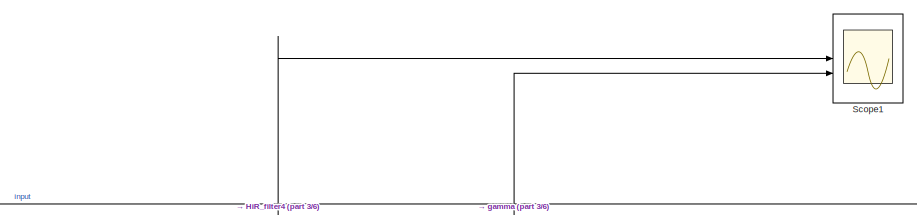
[diagram: root canvas - part 1/6, top right region]
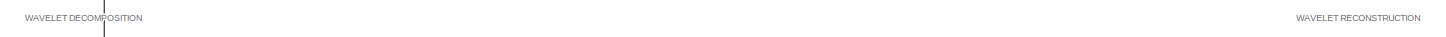
[diagram: root canvas - part 2/6, top center region]
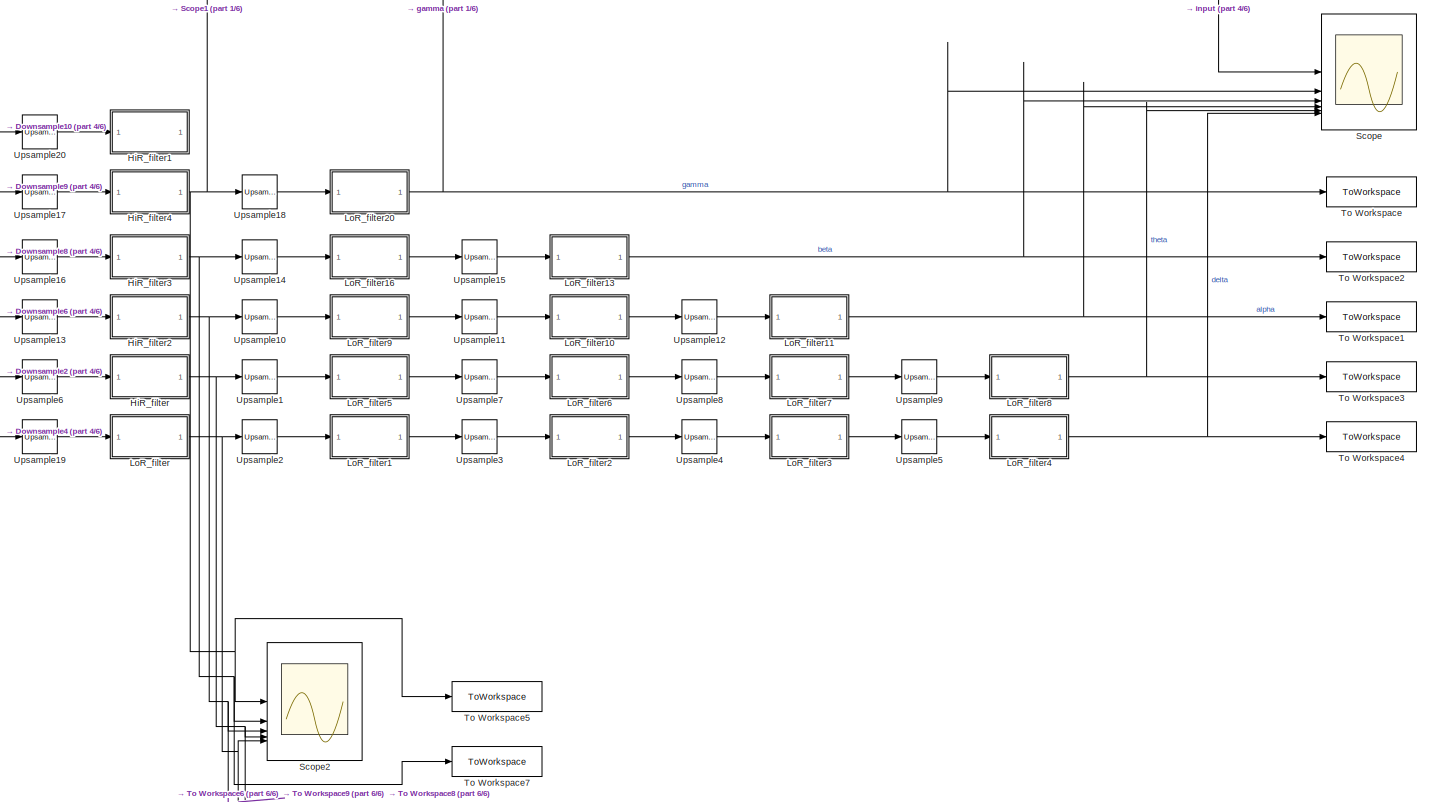
[diagram: root canvas - part 3/6, middle right region]
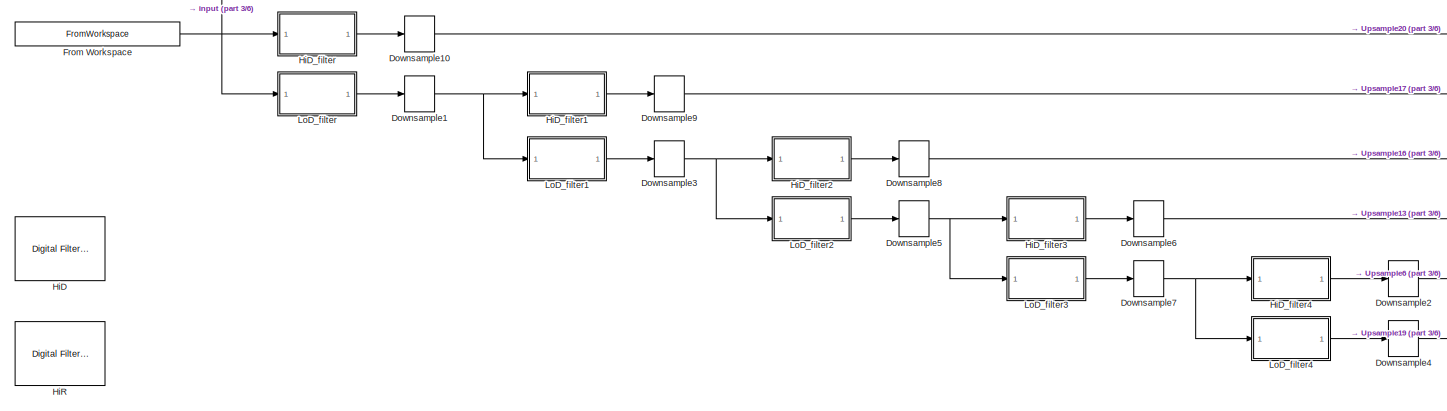
[diagram: root canvas - part 4/6, middle left region]
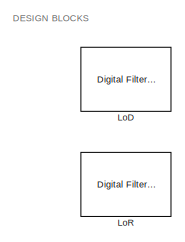
[diagram: root canvas - part 5/6, middle left region]
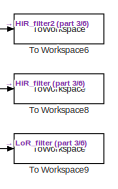
[diagram: root canvas - part 6/6, bottom right region]
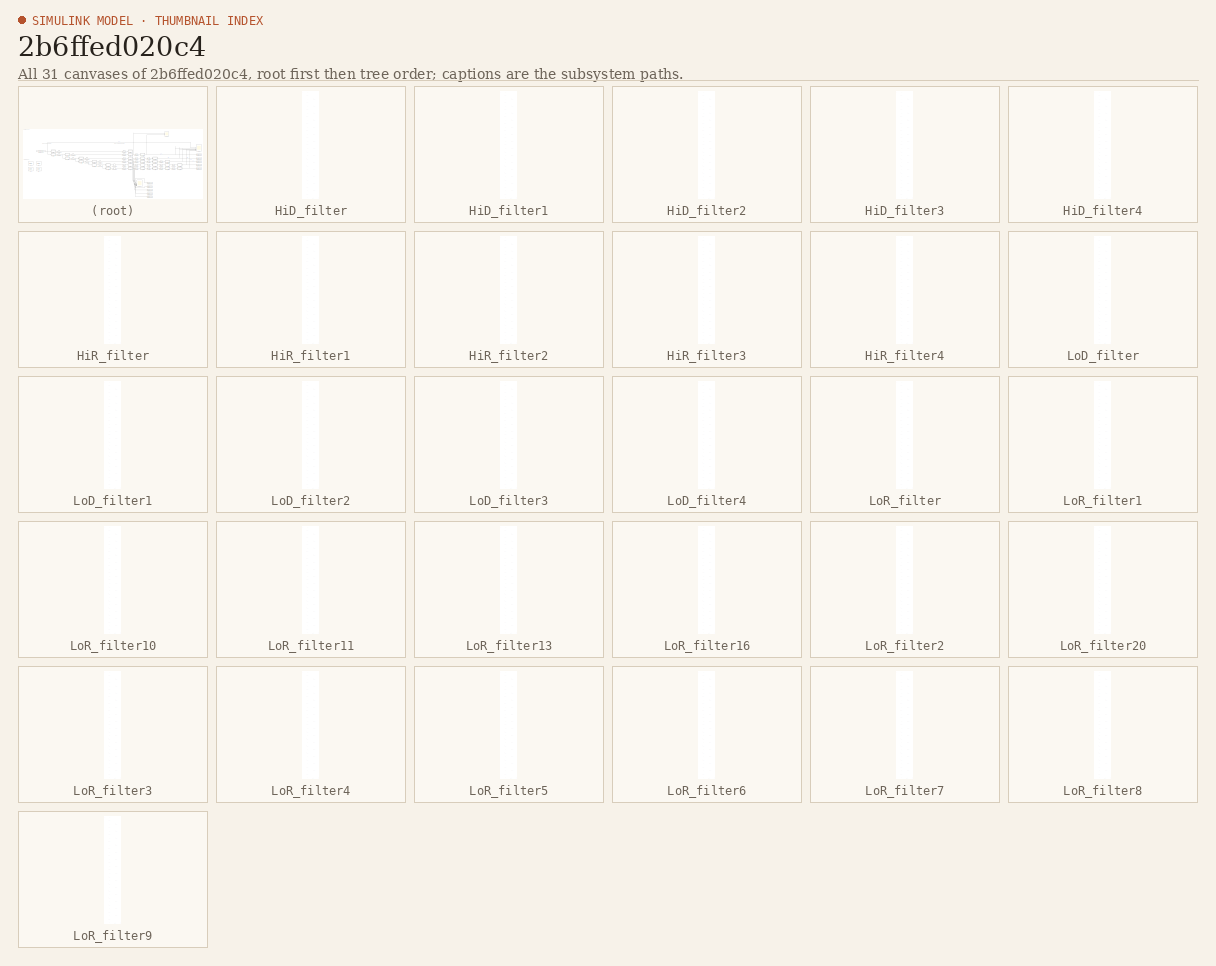
[diagram: thumbnail index - all 31 canvases of the model, root first then tree order]
MODEL slx_2b6ffed020c4
KIND model
CONFIG AbsTol = auto
CONFIG EnableMultiTasking = off
CONFIG FixedStep = auto
CONFIG MaxStep = auto
CONFIG MinStep = auto
CONFIG RelTol = 1e-3
CONFIG SampleTimeConstraint = Unconstrained
CONFIG SolverName = VariableStepAuto
CONFIG StartTime = 0.0
CONFIG StopTime = 4096
BLOCK [DownSample] Downsample1
  InputProcessing = Elements as channels (sample based)
  RateOptions = Allow multirate processing
BLOCK [DownSample] Downsample10
  InputProcessing = Elements as channels (sample based)
  RateOptions = Allow multirate processing
BLOCK [DownSample] Downsample2
  InputProcessing = Elements as channels (sample based)
  RateOptions = Allow multirate processing
BLOCK [DownSample] Downsample3
  InputProcessing = Elements as channels (sample based)
  RateOptions = Allow multirate processing
BLOCK [DownSample] Downsample4
  InputProcessing = Elements as channels (sample based)
  RateOptions = Allow multirate processing
BLOCK [DownSample] Downsample5
  InputProcessing = Elements as channels (sample based)
  RateOptions = Allow multirate processing
BLOCK [DownSample] Downsample6
  InputProcessing = Elements as channels (sample based)
  RateOptions = Allow multirate processing
BLOCK [DownSample] Downsample7
  InputProcessing = Elements as channels (sample based)
  RateOptions = Allow multirate processing
BLOCK [DownSample] Downsample8
  InputProcessing = Elements as channels (sample based)
  RateOptions = Allow multirate processing
BLOCK [DownSample] Downsample9
  InputProcessing = Elements as channels (sample based)
  RateOptions = Allow multirate processing
BLOCK [FromWorkspace] From Workspace
  OutputAfterFinalValue = Setting to zero
  SampleTime = 1
  VariableName = preprocessed_data
BLOCK [Reference] HiD  REF=dspfdesign/Digital
Filter Design
  Commented = on
  SourceBlock = dspfdesign/Digital\nFilter Design
  SourceType = Digital Filter Design
  UserDataPersistent = on
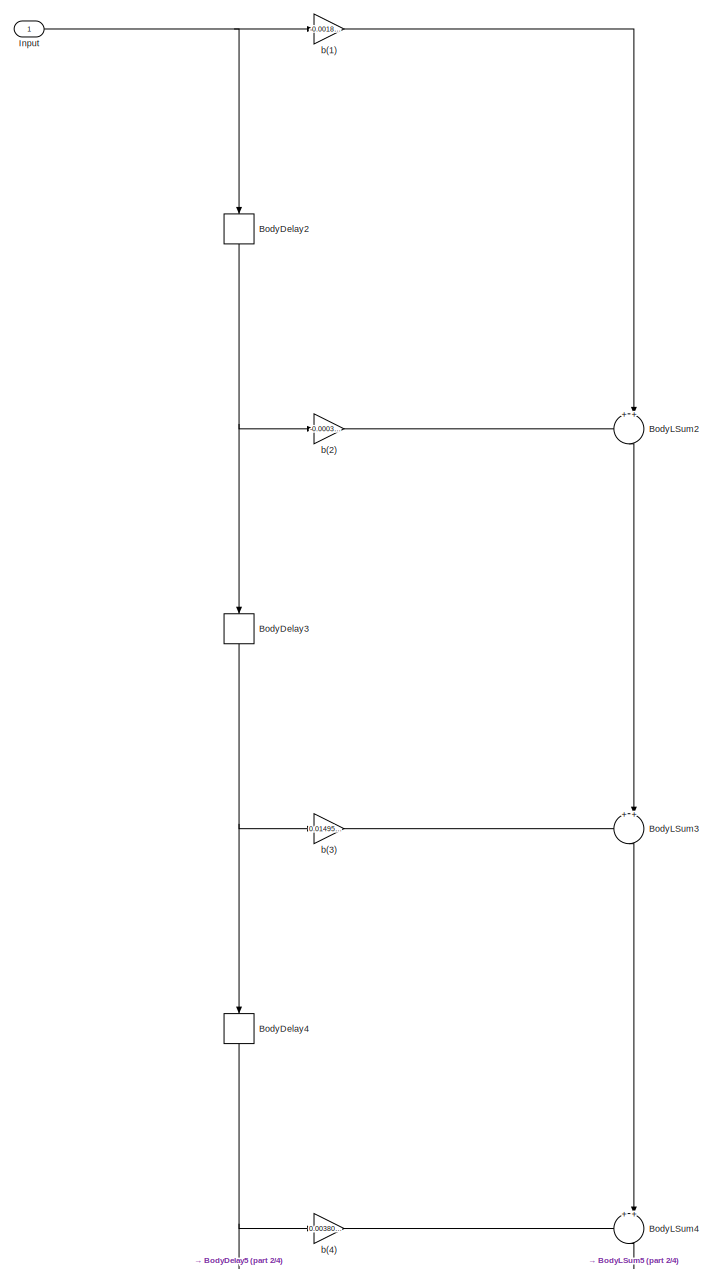
[diagram: HiD_filter - part 1/4, full width, top band]
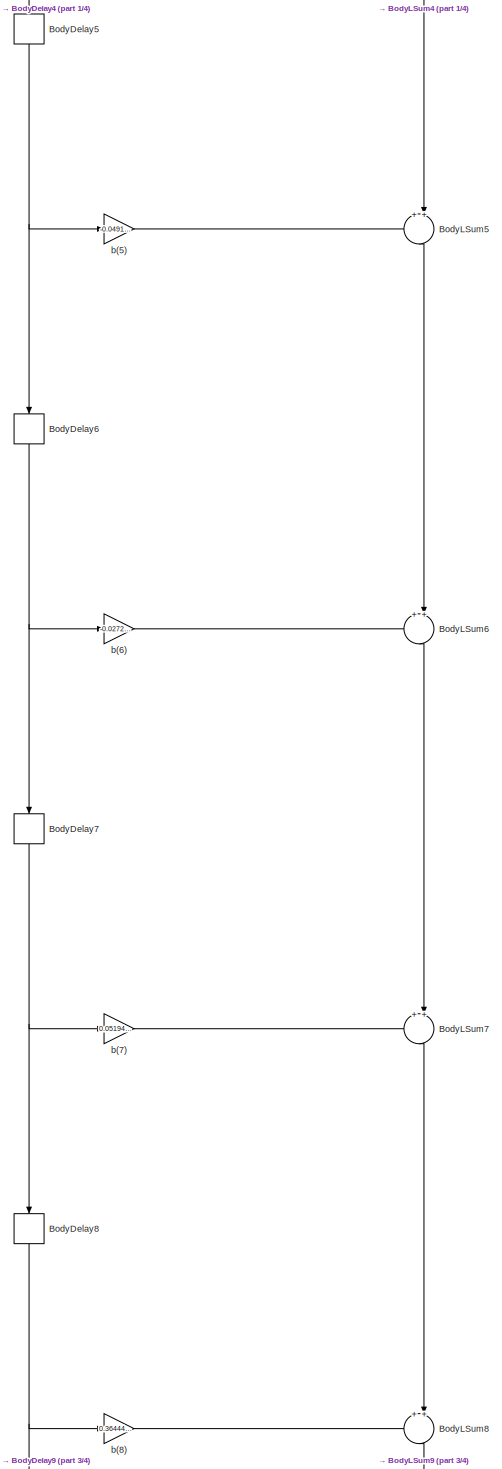
[diagram: HiD_filter - part 2/4, central region]
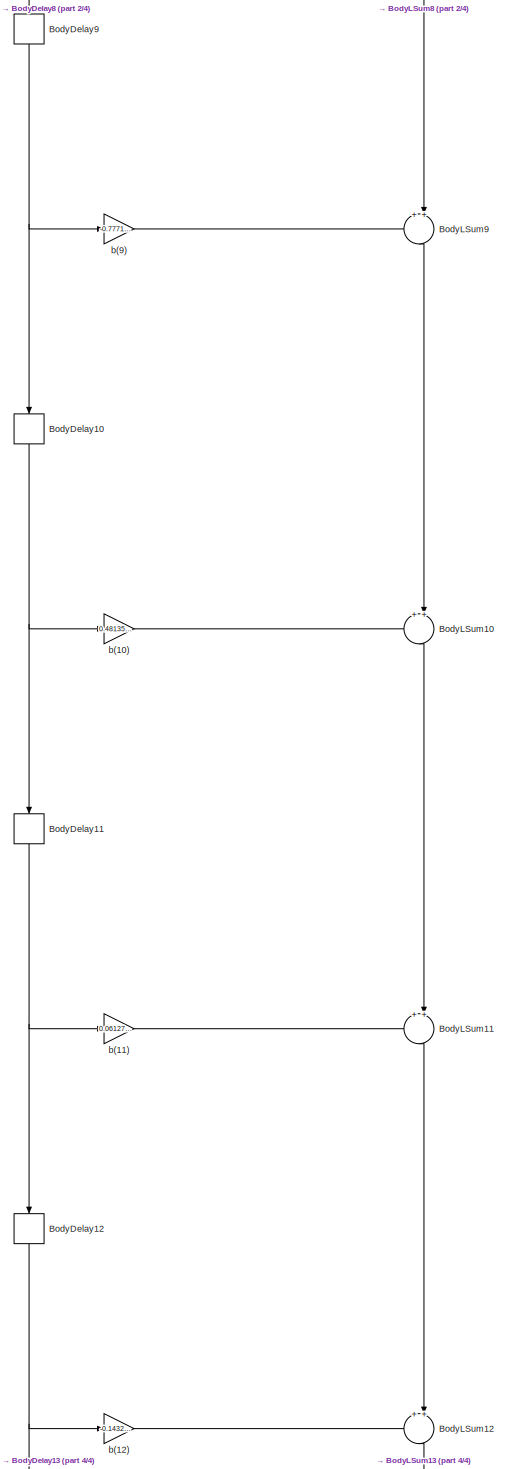
[diagram: HiD_filter - part 3/4, central region]
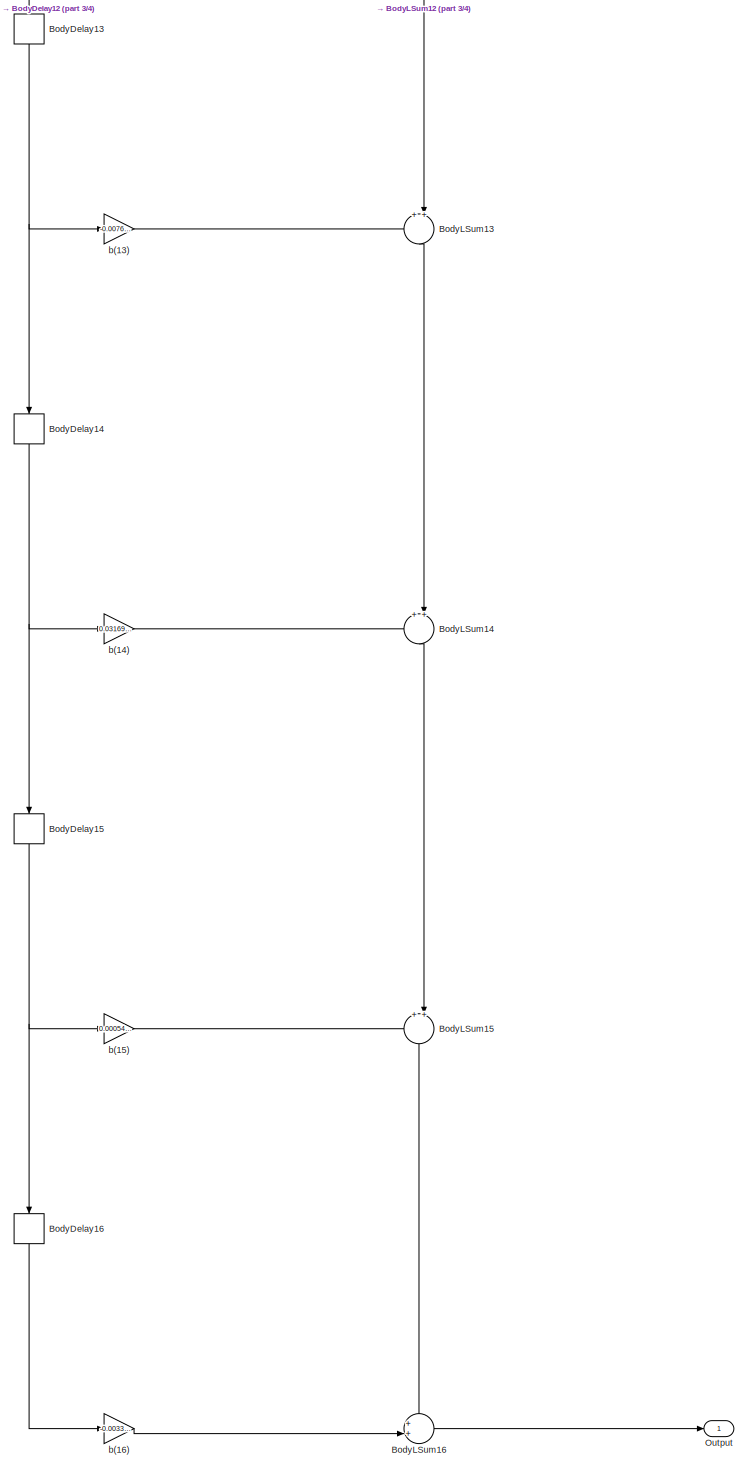
[diagram: HiD_filter - part 4/4, full width, bottom band]
BLOCK [SubSystem] HiD_filter
  ErrorFcn = dspFilterRealizedInBasicElemsAlgLoopErrFcnCallback
  Tag = FilterWizardSubSystem
  UserDataPersistent = on
BLOCK [Delay] HiD_filter/BodyDelay10
  DelayLength = 1
  InitialCondition = 0
  InputPortMap = u0
  NameLocation = right
BLOCK [Delay] HiD_filter/BodyDelay11
  DelayLength = 1
  InitialCondition = 0
  InputPortMap = u0
  NameLocation = right
BLOCK [Delay] HiD_filter/BodyDelay12
  DelayLength = 1
  InitialCondition = 0
  InputPortMap = u0
  NameLocation = right
BLOCK [Delay] HiD_filter/BodyDelay13
  DelayLength = 1
  InitialCondition = 0
  InputPortMap = u0
  NameLocation = right
BLOCK [Delay] HiD_filter/BodyDelay14
  DelayLength = 1
  InitialCondition = 0
  InputPortMap = u0
  NameLocation = right
BLOCK [Delay] HiD_filter/BodyDelay15
  DelayLength = 1
  InitialCondition = 0
  InputPortMap = u0
  NameLocation = right
BLOCK [Delay] HiD_filter/BodyDelay16
  DelayLength = 1
  InitialCondition = 0
  InputPortMap = u0
  NameLocation = right
BLOCK [Delay] HiD_filter/BodyDelay2
  DelayLength = 1
  InitialCondition = 0
  InputPortMap = u0
  NameLocation = right
BLOCK [Delay] HiD_filter/BodyDelay3
  DelayLength = 1
  InitialCondition = 0
  InputPortMap = u0
  NameLocation = right
BLOCK [Delay] HiD_filter/BodyDelay4
  DelayLength = 1
  InitialCondition = 0
  InputPortMap = u0
  NameLocation = right
BLOCK [Delay] HiD_filter/BodyDelay5
  DelayLength = 1
  InitialCondition = 0
  InputPortMap = u0
  NameLocation = right
BLOCK [Delay] HiD_filter/BodyDelay6
  DelayLength = 1
  InitialCondition = 0
  InputPortMap = u0
  NameLocation = right
BLOCK [Delay] HiD_filter/BodyDelay7
  DelayLength = 1
  InitialCondition = 0
  InputPortMap = u0
  NameLocation = right
BLOCK [Delay] HiD_filter/BodyDelay8
  DelayLength = 1
  InitialCondition = 0
  InputPortMap = u0
  NameLocation = right
BLOCK [Delay] HiD_filter/BodyDelay9
  DelayLength = 1
  InitialCondition = 0
  InputPortMap = u0
  NameLocation = right
BLOCK [Sum] HiD_filter/BodyLSum10
  Inputs = ++|
  NameLocation = right
  OutDataTypeStr = Inherit: Same as first input
  RndMeth = Nearest
  SaturateOnIntegerOverflow = on
BLOCK [Sum] HiD_filter/BodyLSum11
  Inputs = ++|
  NameLocation = right
  OutDataTypeStr = Inherit: Same as first input
  RndMeth = Nearest
  SaturateOnIntegerOverflow = on
BLOCK [Sum] HiD_filter/BodyLSum12
  Inputs = ++|
  NameLocation = right
  OutDataTypeStr = Inherit: Same as first input
  RndMeth = Nearest
  SaturateOnIntegerOverflow = on
BLOCK [Sum] HiD_filter/BodyLSum13
  Inputs = ++|
  NameLocation = right
  OutDataTypeStr = Inherit: Same as first input
  RndMeth = Nearest
  SaturateOnIntegerOverflow = on
BLOCK [Sum] HiD_filter/BodyLSum14
  Inputs = ++|
  NameLocation = right
  OutDataTypeStr = Inherit: Same as first input
  RndMeth = Nearest
  SaturateOnIntegerOverflow = on
BLOCK [Sum] HiD_filter/BodyLSum15
  Inputs = ++|
  NameLocation = right
  OutDataTypeStr = Inherit: Same as first input
  RndMeth = Nearest
  SaturateOnIntegerOverflow = on
BLOCK [Sum] HiD_filter/BodyLSum16
  Inputs = ++|
  OutDataTypeStr = Inherit: Same as first input
  RndMeth = Nearest
  SaturateOnIntegerOverflow = on
BLOCK [Sum] HiD_filter/BodyLSum2
  Inputs = ++|
  NameLocation = right
  OutDataTypeStr = Inherit: Same as first input
  RndMeth = Nearest
  SaturateOnIntegerOverflow = on
BLOCK [Sum] HiD_filter/BodyLSum3
  Inputs = ++|
  NameLocation = right
  OutDataTypeStr = Inherit: Same as first input
  RndMeth = Nearest
  SaturateOnIntegerOverflow = on
BLOCK [Sum] HiD_filter/BodyLSum4
  Inputs = ++|
  NameLocation = right
  OutDataTypeStr = Inherit: Same as first input
  RndMeth = Nearest
  SaturateOnIntegerOverflow = on
BLOCK [Sum] HiD_filter/BodyLSum5
  Inputs = ++|
  NameLocation = right
  OutDataTypeStr = Inherit: Same as first input
  RndMeth = Nearest
  SaturateOnIntegerOverflow = on
BLOCK [Sum] HiD_filter/BodyLSum6
  Inputs = ++|
  NameLocation = right
  OutDataTypeStr = Inherit: Same as first input
  RndMeth = Nearest
  SaturateOnIntegerOverflow = on
BLOCK [Sum] HiD_filter/BodyLSum7
  Inputs = ++|
  NameLocation = right
  OutDataTypeStr = Inherit: Same as first input
  RndMeth = Nearest
  SaturateOnIntegerOverflow = on
BLOCK [Sum] HiD_filter/BodyLSum8
  Inputs = ++|
  NameLocation = right
  OutDataTypeStr = Inherit: Same as first input
  RndMeth = Nearest
  SaturateOnIntegerOverflow = on
BLOCK [Sum] HiD_filter/BodyLSum9
  Inputs = ++|
  NameLocation = right
  OutDataTypeStr = Inherit: Same as first input
  RndMeth = Nearest
  SaturateOnIntegerOverflow = on
BLOCK [Inport] HiD_filter/Input
BLOCK [Outport] HiD_filter/Output
BLOCK [Gain] HiD_filter/b(1)
  Gain = -0.00188995033275946088
  OutDataTypeStr = Inherit: Same as input
  ParamDataTypeStr = double
  RndMeth = Nearest
  SaturateOnIntegerOverflow = on
BLOCK [Gain] HiD_filter/b(10)
  Gain = 0.481359651258372212
  OutDataTypeStr = Inherit: Same as input
  ParamDataTypeStr = double
  RndMeth = Nearest
  SaturateOnIntegerOverflow = on
BLOCK [Gain] HiD_filter/b(11)
  Gain = 0.0612733590676585241
  OutDataTypeStr = Inherit: Same as input
  ParamDataTypeStr = double
  RndMeth = Nearest
  SaturateOnIntegerOverflow = on
BLOCK [Gain] HiD_filter/b(12)
  Gain = -0.143294238350809705
  OutDataTypeStr = Inherit: Same as input
  ParamDataTypeStr = double
  RndMeth = Nearest
  SaturateOnIntegerOverflow = on
BLOCK [Gain] HiD_filter/b(13)
  Gain = -0.00760748732491760542
  OutDataTypeStr = Inherit: Same as input
  ParamDataTypeStr = double
  RndMeth = Nearest
  SaturateOnIntegerOverflow = on
BLOCK [Gain] HiD_filter/b(14)
  Gain = 0.0316950878114929807
  OutDataTypeStr = Inherit: Same as input
  ParamDataTypeStr = double
  RndMeth = Nearest
  SaturateOnIntegerOverflow = on
BLOCK [Gain] HiD_filter/b(15)
  Gain = 0.000542132331791148124
  OutDataTypeStr = Inherit: Same as input
  ParamDataTypeStr = double
  RndMeth = Nearest
  SaturateOnIntegerOverflow = on
BLOCK [Gain] HiD_filter/b(16)
  Gain = -0.00338241595100612557
  OutDataTypeStr = Inherit: Same as input
  ParamDataTypeStr = double
  RndMeth = Nearest
  SaturateOnIntegerOverflow = on
BLOCK [Gain] HiD_filter/b(2)
  Gain = -0.0003029205147213668
  OutDataTypeStr = Inherit: Same as input
  ParamDataTypeStr = double
  RndMeth = Nearest
  SaturateOnIntegerOverflow = on
BLOCK [Gain] HiD_filter/b(3)
  Gain = 0.0149522583370482309
  OutDataTypeStr = Inherit: Same as input
  ParamDataTypeStr = double
  RndMeth = Nearest
  SaturateOnIntegerOverflow = on
BLOCK [Gain] HiD_filter/b(4)
  Gain = 0.0038087520138906151
  OutDataTypeStr = Inherit: Same as input
  ParamDataTypeStr = double
  RndMeth = Nearest
  SaturateOnIntegerOverflow = on
BLOCK [Gain] HiD_filter/b(5)
  Gain = -0.0491371796736075062
  OutDataTypeStr = Inherit: Same as input
  ParamDataTypeStr = double
  RndMeth = Nearest
  SaturateOnIntegerOverflow = on
BLOCK [Gain] HiD_filter/b(6)
  Gain = -0.0272190299170560028
  OutDataTypeStr = Inherit: Same as input
  ParamDataTypeStr = double
  RndMeth = Nearest
  SaturateOnIntegerOverflow = on
BLOCK [Gain] HiD_filter/b(7)
  Gain = 0.0519458381077090373
  OutDataTypeStr = Inherit: Same as input
  ParamDataTypeStr = double
  RndMeth = Nearest
  SaturateOnIntegerOverflow = on
BLOCK [Gain] HiD_filter/b(8)
  Gain = 0.364441894835331404
  OutDataTypeStr = Inherit: Same as input
  ParamDataTypeStr = double
  RndMeth = Nearest
  SaturateOnIntegerOverflow = on
BLOCK [Gain] HiD_filter/b(9)
  Gain = -0.777185751700523508
  OutDataTypeStr = Inherit: Same as input
  ParamDataTypeStr = double
  RndMeth = Nearest
  SaturateOnIntegerOverflow = on
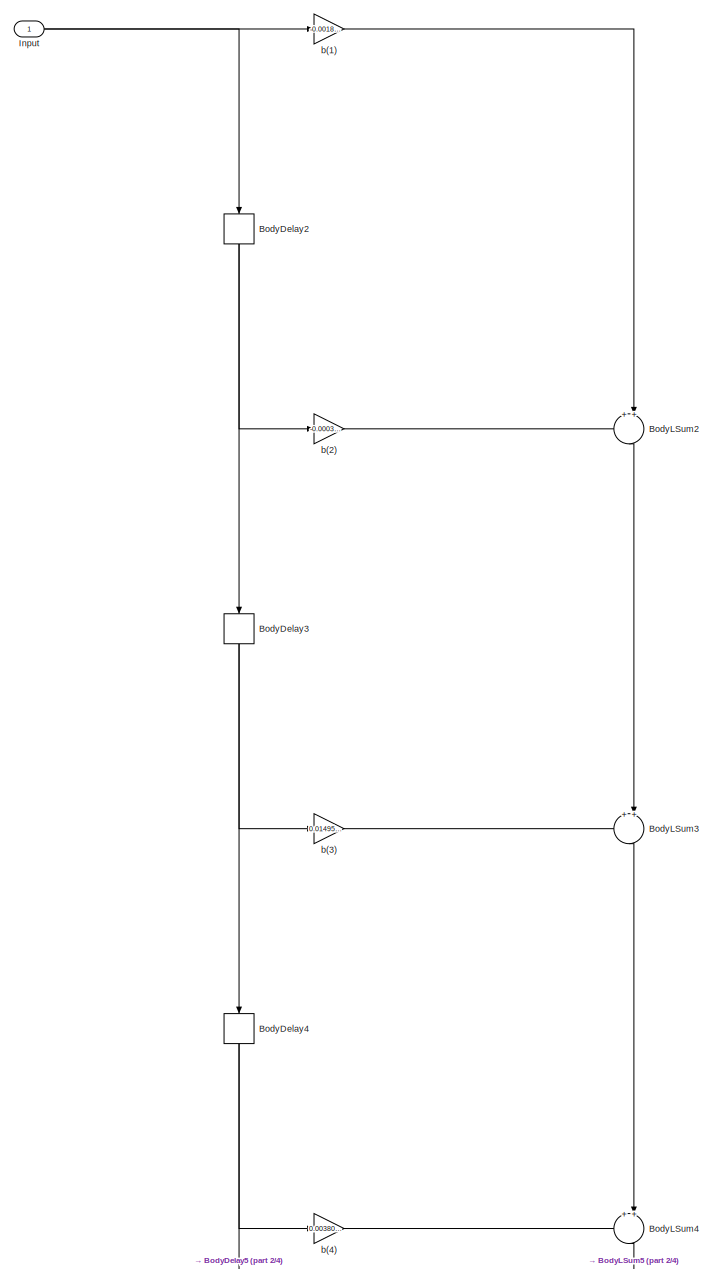
[diagram: HiD_filter1 - part 1/4, full width, top band]
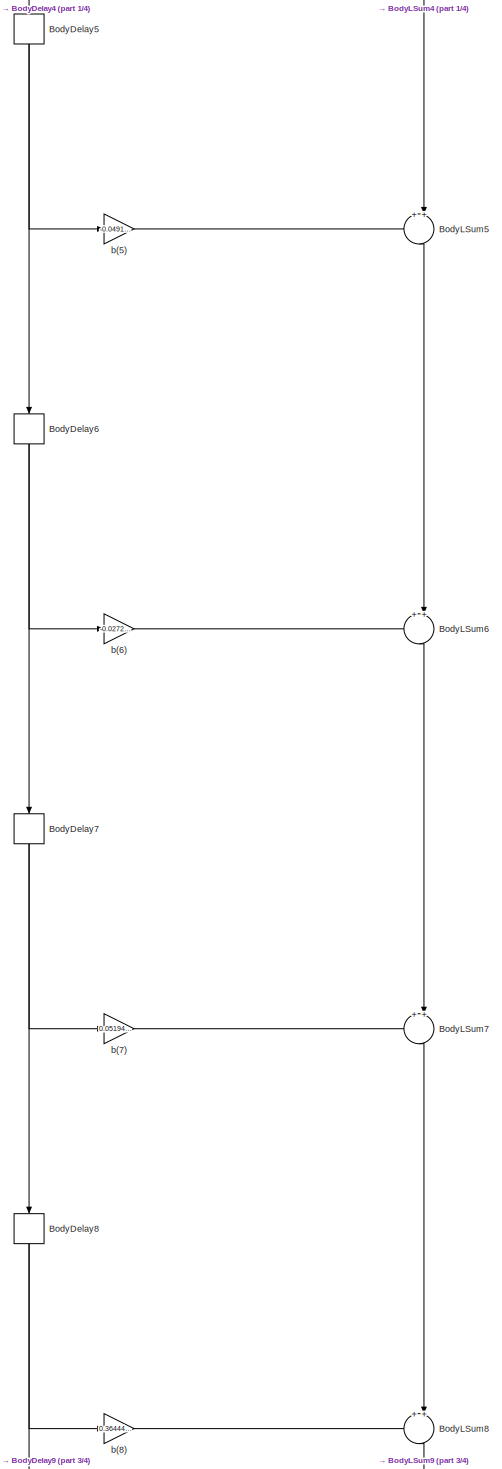
[diagram: HiD_filter1 - part 2/4, central region]
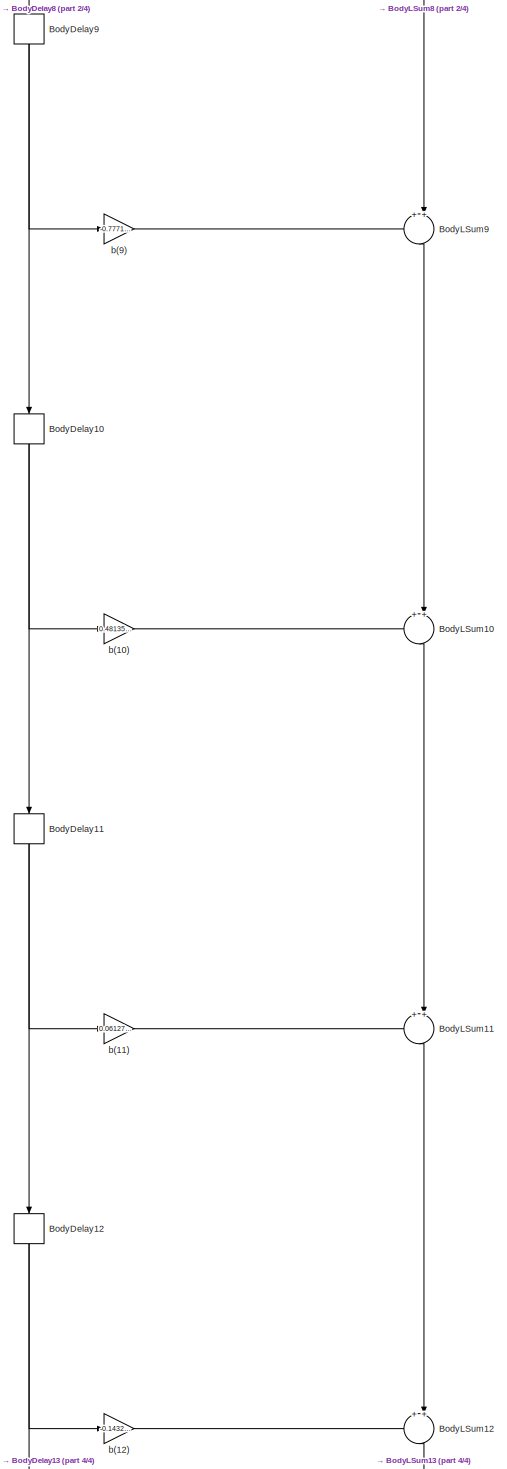
[diagram: HiD_filter1 - part 3/4, central region]
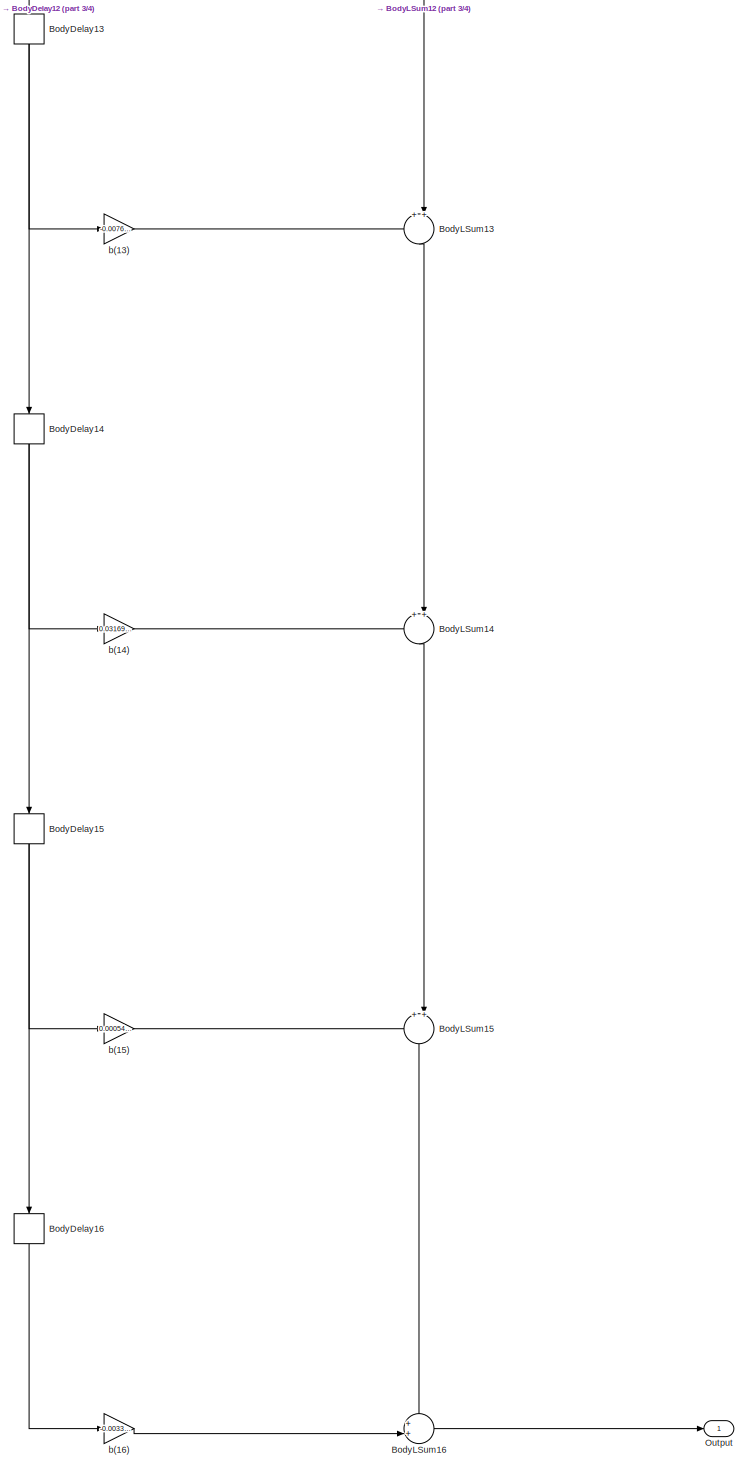
[diagram: HiD_filter1 - part 4/4, full width, bottom band]
BLOCK [SubSystem] HiD_filter1
  ErrorFcn = dspFilterRealizedInBasicElemsAlgLoopErrFcnCallback
  Tag = FilterWizardSubSystem
  UserDataPersistent = on
BLOCK [Delay] HiD_filter1/BodyDelay10
  DelayLength = 1
  InitialCondition = 0
  InputPortMap = u0
  NameLocation = right
BLOCK [Delay] HiD_filter1/BodyDelay11
  DelayLength = 1
  InitialCondition = 0
  InputPortMap = u0
  NameLocation = right
BLOCK [Delay] HiD_filter1/BodyDelay12
  DelayLength = 1
  InitialCondition = 0
  InputPortMap = u0
  NameLocation = right
BLOCK [Delay] HiD_filter1/BodyDelay13
  DelayLength = 1
  InitialCondition = 0
  InputPortMap = u0
  NameLocation = right
BLOCK [Delay] HiD_filter1/BodyDelay14
  DelayLength = 1
  InitialCondition = 0
  InputPortMap = u0
  NameLocation = right
BLOCK [Delay] HiD_filter1/BodyDelay15
  DelayLength = 1
  InitialCondition = 0
  InputPortMap = u0
  NameLocation = right
BLOCK [Delay] HiD_filter1/BodyDelay16
  DelayLength = 1
  InitialCondition = 0
  InputPortMap = u0
  NameLocation = right
BLOCK [Delay] HiD_filter1/BodyDelay2
  DelayLength = 1
  InitialCondition = 0
  InputPortMap = u0
  NameLocation = right
BLOCK [Delay] HiD_filter1/BodyDelay3
  DelayLength = 1
  InitialCondition = 0
  InputPortMap = u0
  NameLocation = right
BLOCK [Delay] HiD_filter1/BodyDelay4
  DelayLength = 1
  InitialCondition = 0
  InputPortMap = u0
  NameLocation = right
BLOCK [Delay] HiD_filter1/BodyDelay5
  DelayLength = 1
  InitialCondition = 0
  InputPortMap = u0
  NameLocation = right
BLOCK [Delay] HiD_filter1/BodyDelay6
  DelayLength = 1
  InitialCondition = 0
  InputPortMap = u0
  NameLocation = right
BLOCK [Delay] HiD_filter1/BodyDelay7
  DelayLength = 1
  InitialCondition = 0
  InputPortMap = u0
  NameLocation = right
BLOCK [Delay] HiD_filter1/BodyDelay8
  DelayLength = 1
  InitialCondition = 0
  InputPortMap = u0
  NameLocation = right
BLOCK [Delay] HiD_filter1/BodyDelay9
  DelayLength = 1
  InitialCondition = 0
  InputPortMap = u0
  NameLocation = right
BLOCK [Sum] HiD_filter1/BodyLSum10
  Inputs = ++|
  NameLocation = right
  OutDataTypeStr = Inherit: Same as first input
  RndMeth = Nearest
  SaturateOnIntegerOverflow = on
BLOCK [Sum] HiD_filter1/BodyLSum11
  Inputs = ++|
  NameLocation = right
  OutDataTypeStr = Inherit: Same as first input
  RndMeth = Nearest
  SaturateOnIntegerOverflow = on
BLOCK [Sum] HiD_filter1/BodyLSum12
  Inputs = ++|
  NameLocation = right
  OutDataTypeStr = Inherit: Same as first input
  RndMeth = Nearest
  SaturateOnIntegerOverflow = on
BLOCK [Sum] HiD_filter1/BodyLSum13
  Inputs = ++|
  NameLocation = right
  OutDataTypeStr = Inherit: Same as first input
  RndMeth = Nearest
  SaturateOnIntegerOverflow = on
BLOCK [Sum] HiD_filter1/BodyLSum14
  Inputs = ++|
  NameLocation = right
  OutDataTypeStr = Inherit: Same as first input
  RndMeth = Nearest
  SaturateOnIntegerOverflow = on
BLOCK [Sum] HiD_filter1/BodyLSum15
  Inputs = ++|
  NameLocation = right
  OutDataTypeStr = Inherit: Same as first input
  RndMeth = Nearest
  SaturateOnIntegerOverflow = on
BLOCK [Sum] HiD_filter1/BodyLSum16
  Inputs = ++|
  OutDataTypeStr = Inherit: Same as first input
  RndMeth = Nearest
  SaturateOnIntegerOverflow = on
BLOCK [Sum] HiD_filter1/BodyLSum2
  Inputs = ++|
  NameLocation = right
  OutDataTypeStr = Inherit: Same as first input
  RndMeth = Nearest
  SaturateOnIntegerOverflow = on
BLOCK [Sum] HiD_filter1/BodyLSum3
  Inputs = ++|
  NameLocation = right
  OutDataTypeStr = Inherit: Same as first input
  RndMeth = Nearest
  SaturateOnIntegerOverflow = on
BLOCK [Sum] HiD_filter1/BodyLSum4
  Inputs = ++|
  NameLocation = right
  OutDataTypeStr = Inherit: Same as first input
  RndMeth = Nearest
  SaturateOnIntegerOverflow = on
BLOCK [Sum] HiD_filter1/BodyLSum5
  Inputs = ++|
  NameLocation = right
  OutDataTypeStr = Inherit: Same as first input
  RndMeth = Nearest
  SaturateOnIntegerOverflow = on
BLOCK [Sum] HiD_filter1/BodyLSum6
  Inputs = ++|
  NameLocation = right
  OutDataTypeStr = Inherit: Same as first input
  RndMeth = Nearest
  SaturateOnIntegerOverflow = on
BLOCK [Sum] HiD_filter1/BodyLSum7
  Inputs = ++|
  NameLocation = right
  OutDataTypeStr = Inherit: Same as first input
  RndMeth = Nearest
  SaturateOnIntegerOverflow = on
BLOCK [Sum] HiD_filter1/BodyLSum8
  Inputs = ++|
  NameLocation = right
  OutDataTypeStr = Inherit: Same as first input
  RndMeth = Nearest
  SaturateOnIntegerOverflow = on
BLOCK [Sum] HiD_filter1/BodyLSum9
  Inputs = ++|
  NameLocation = right
  OutDataTypeStr = Inherit: Same as first input
  RndMeth = Nearest
  SaturateOnIntegerOverflow = on
BLOCK [Inport] HiD_filter1/Input
BLOCK [Outport] HiD_filter1/Output
BLOCK [Gain] HiD_filter1/b(1)
  Gain = -0.00188995033275946088
  OutDataTypeStr = Inherit: Same as input
  ParamDataTypeStr = double
  RndMeth = Nearest
  SaturateOnIntegerOverflow = on
BLOCK [Gain] HiD_filter1/b(10)
  Gain = 0.481359651258372212
  OutDataTypeStr = Inherit: Same as input
  ParamDataTypeStr = double
  RndMeth = Nearest
  SaturateOnIntegerOverflow = on
BLOCK [Gain] HiD_filter1/b(11)
  Gain = 0.0612733590676585241
  OutDataTypeStr = Inherit: Same as input
  ParamDataTypeStr = double
  RndMeth = Nearest
  SaturateOnIntegerOverflow = on
BLOCK [Gain] HiD_filter1/b(12)
  Gain = -0.143294238350809705
  OutDataTypeStr = Inherit: Same as input
  ParamDataTypeStr = double
  RndMeth = Nearest
  SaturateOnIntegerOverflow = on
BLOCK [Gain] HiD_filter1/b(13)
  Gain = -0.00760748732491760542
  OutDataTypeStr = Inherit: Same as input
  ParamDataTypeStr = double
  RndMeth = Nearest
  SaturateOnIntegerOverflow = on
BLOCK [Gain] HiD_filter1/b(14)
  Gain = 0.0316950878114929807
  OutDataTypeStr = Inherit: Same as input
  ParamDataTypeStr = double
  RndMeth = Nearest
  SaturateOnIntegerOverflow = on
BLOCK [Gain] HiD_filter1/b(15)
  Gain = 0.000542132331791148124
  OutDataTypeStr = Inherit: Same as input
  ParamDataTypeStr = double
  RndMeth = Nearest
  SaturateOnIntegerOverflow = on
BLOCK [Gain] HiD_filter1/b(16)
  Gain = -0.00338241595100612557
  OutDataTypeStr = Inherit: Same as input
  ParamDataTypeStr = double
  RndMeth = Nearest
  SaturateOnIntegerOverflow = on
BLOCK [Gain] HiD_filter1/b(2)
  Gain = -0.0003029205147213668
  OutDataTypeStr = Inherit: Same as input
  ParamDataTypeStr = double
  RndMeth = Nearest
  SaturateOnIntegerOverflow = on
BLOCK [Gain] HiD_filter1/b(3)
  Gain = 0.0149522583370482309
  OutDataTypeStr = Inherit: Same as input
  ParamDataTypeStr = double
  RndMeth = Nearest
  SaturateOnIntegerOverflow = on
BLOCK [Gain] HiD_filter1/b(4)
  Gain = 0.0038087520138906151
  OutDataTypeStr = Inherit: Same as input
  ParamDataTypeStr = double
  RndMeth = Nearest
  SaturateOnIntegerOverflow = on
BLOCK [Gain] HiD_filter1/b(5)
  Gain = -0.0491371796736075062
  OutDataTypeStr = Inherit: Same as input
  ParamDataTypeStr = double
  RndMeth = Nearest
  SaturateOnIntegerOverflow = on
BLOCK [Gain] HiD_filter1/b(6)
  Gain = -0.0272190299170560028
  OutDataTypeStr = Inherit: Same as input
  ParamDataTypeStr = double
  RndMeth = Nearest
  SaturateOnIntegerOverflow = on
BLOCK [Gain] HiD_filter1/b(7)
  Gain = 0.0519458381077090373
  OutDataTypeStr = Inherit: Same as input
  ParamDataTypeStr = double
  RndMeth = Nearest
  SaturateOnIntegerOverflow = on
BLOCK [Gain] HiD_filter1/b(8)
  Gain = 0.364441894835331404
  OutDataTypeStr = Inherit: Same as input
  ParamDataTypeStr = double
  RndMeth = Nearest
  SaturateOnIntegerOverflow = on
BLOCK [Gain] HiD_filter1/b(9)
  Gain = -0.777185751700523508
  OutDataTypeStr = Inherit: Same as input
  ParamDataTypeStr = double
  RndMeth = Nearest
  SaturateOnIntegerOverflow = on
BLOCK [SubSystem] HiD_filter2
  ErrorFcn = dspFilterRealizedInBasicElemsAlgLoopErrFcnCallback
  Tag = FilterWizardSubSystem
  UserDataPersistent = on
BLOCK [Delay] HiD_filter2/BodyDelay10
  DelayLength = 1
  InitialCondition = 0
  InputPortMap = u0
  NameLocation = right
BLOCK [Delay] HiD_filter2/BodyDelay11
  DelayLength = 1
  InitialCondition = 0
  InputPortMap = u0
  NameLocation = right
BLOCK [Delay] HiD_filter2/BodyDelay12
  DelayLength = 1
  InitialCondition = 0
  InputPortMap = u0
  NameLocation = right
BLOCK [Delay] HiD_filter2/BodyDelay13
  DelayLength = 1
  InitialCondition = 0
  InputPortMap = u0
  NameLocation = right
BLOCK [Delay] HiD_filter2/BodyDelay14
  DelayLength = 1
  InitialCondition = 0
  InputPortMap = u0
  NameLocation = right
BLOCK [Delay] HiD_filter2/BodyDelay15
  DelayLength = 1
  InitialCondition = 0
  InputPortMap = u0
  NameLocation = right
BLOCK [Delay] HiD_filter2/BodyDelay16
  DelayLength = 1
  InitialCondition = 0
  InputPortMap = u0
  NameLocation = right
BLOCK [Delay] HiD_filter2/BodyDelay2
  DelayLength = 1
  InitialCondition = 0
  InputPortMap = u0
  NameLocation = right
BLOCK [Delay] HiD_filter2/BodyDelay3
  DelayLength = 1
  InitialCondition = 0
  InputPortMap = u0
  NameLocation = right
BLOCK [Delay] HiD_filter2/BodyDelay4
  DelayLength = 1
  InitialCondition = 0
  InputPortMap = u0
  NameLocation = right
BLOCK [Delay] HiD_filter2/BodyDelay5
  DelayLength = 1
  InitialCondition = 0
  InputPortMap = u0
  NameLocation = right
BLOCK [Delay] HiD_filter2/BodyDelay6
  DelayLength = 1
  InitialCondition = 0
  InputPortMap = u0
  NameLocation = right
BLOCK [Delay] HiD_filter2/BodyDelay7
  DelayLength = 1
  InitialCondition = 0
  InputPortMap = u0
  NameLocation = right
BLOCK [Delay] HiD_filter2/BodyDelay8
  DelayLength = 1
  InitialCondition = 0
  InputPortMap = u0
  NameLocation = right
BLOCK [Delay] HiD_filter2/BodyDelay9
  DelayLength = 1
  InitialCondition = 0
  InputPortMap = u0
  NameLocation = right
BLOCK [Sum] HiD_filter2/BodyLSum10
  Inputs = ++|
  NameLocation = right
  OutDataTypeStr = Inherit: Same as first input
  RndMeth = Nearest
  SaturateOnIntegerOverflow = on
BLOCK [Sum] HiD_filter2/BodyLSum11
  Inputs = ++|
  NameLocation = right
  OutDataTypeStr = Inherit: Same as first input
  RndMeth = Nearest
  SaturateOnIntegerOverflow = on
BLOCK [Sum] HiD_filter2/BodyLSum12
  Inputs = ++|
  NameLocation = right
  OutDataTypeStr = Inherit: Same as first input
  RndMeth = Nearest
  SaturateOnIntegerOverflow = on
BLOCK [Sum] HiD_filter2/BodyLSum13
  Inputs = ++|
  NameLocation = right
  OutDataTypeStr = Inherit: Same as first input
  RndMeth = Nearest
  SaturateOnIntegerOverflow = on
BLOCK [Sum] HiD_filter2/BodyLSum14
  Inputs = ++|
  NameLocation = right
  OutDataTypeStr = Inherit: Same as first input
  RndMeth = Nearest
  SaturateOnIntegerOverflow = on
BLOCK [Sum] HiD_filter2/BodyLSum15
  Inputs = ++|
  NameLocation = right
  OutDataTypeStr = Inherit: Same as first input
  RndMeth = Nearest
  SaturateOnIntegerOverflow = on
BLOCK [Sum] HiD_filter2/BodyLSum16
  Inputs = ++|
  OutDataTypeStr = Inherit: Same as first input
  RndMeth = Nearest
  SaturateOnIntegerOverflow = on
BLOCK [Sum] HiD_filter2/BodyLSum2
  Inputs = ++|
  NameLocation = right
  OutDataTypeStr = Inherit: Same as first input
  RndMeth = Nearest
  SaturateOnIntegerOverflow = on
BLOCK [Sum] HiD_filter2/BodyLSum3
  Inputs = ++|
  NameLocation = right
  OutDataTypeStr = Inherit: Same as first input
  RndMeth = Nearest
  SaturateOnIntegerOverflow = on
BLOCK [Sum] HiD_filter2/BodyLSum4
  Inputs = ++|
  NameLocation = right
  OutDataTypeStr = Inherit: Same as first input
  RndMeth = Nearest
  SaturateOnIntegerOverflow = on
BLOCK [Sum] HiD_filter2/BodyLSum5
  Inputs = ++|
  NameLocation = right
  OutDataTypeStr = Inherit: Same as first input
  RndMeth = Nearest
  SaturateOnIntegerOverflow = on
BLOCK [Sum] HiD_filter2/BodyLSum6
  Inputs = ++|
  NameLocation = right
  OutDataTypeStr = Inherit: Same as first input
  RndMeth = Nearest
  SaturateOnIntegerOverflow = on
BLOCK [Sum] HiD_filter2/BodyLSum7
  Inputs = ++|
  NameLocation = right
  OutDataTypeStr = Inherit: Same as first input
  RndMeth = Nearest
  SaturateOnIntegerOverflow = on
BLOCK [Sum] HiD_filter2/BodyLSum8
  Inputs = ++|
  NameLocation = right
  OutDataTypeStr = Inherit: Same as first input
  RndMeth = Nearest
  SaturateOnIntegerOverflow = on
BLOCK [Sum] HiD_filter2/BodyLSum9
  Inputs = ++|
  NameLocation = right
  OutDataTypeStr = Inherit: Same as first input
  RndMeth = Nearest
  SaturateOnIntegerOverflow = on
BLOCK [Inport] HiD_filter2/Input
BLOCK [Outport] HiD_filter2/Output
BLOCK [Gain] HiD_filter2/b(1)
  Gain = -0.00188995033275946088
  OutDataTypeStr = Inherit: Same as input
  ParamDataTypeStr = double
  RndMeth = Nearest
  SaturateOnIntegerOverflow = on
BLOCK [Gain] HiD_filter2/b(10)
  Gain = 0.481359651258372212
  OutDataTypeStr = Inherit: Same as input
  ParamDataTypeStr = double
  RndMeth = Nearest
  SaturateOnIntegerOverflow = on
BLOCK [Gain] HiD_filter2/b(11)
  Gain = 0.0612733590676585241
  OutDataTypeStr = Inherit: Same as input
  ParamDataTypeStr = double
  RndMeth = Nearest
  SaturateOnIntegerOverflow = on
BLOCK [Gain] HiD_filter2/b(12)
  Gain = -0.143294238350809705
  OutDataTypeStr = Inherit: Same as input
  ParamDataTypeStr = double
  RndMeth = Nearest
  SaturateOnIntegerOverflow = on
BLOCK [Gain] HiD_filter2/b(13)
  Gain = -0.00760748732491760542
  OutDataTypeStr = Inherit: Same as input
  ParamDataTypeStr = double
  RndMeth = Nearest
  SaturateOnIntegerOverflow = on
BLOCK [Gain] HiD_filter2/b(14)
  Gain = 0.0316950878114929807
  OutDataTypeStr = Inherit: Same as input
  ParamDataTypeStr = double
  RndMeth = Nearest
  SaturateOnIntegerOverflow = on
BLOCK [Gain] HiD_filter2/b(15)
  Gain = 0.000542132331791148124
  OutDataTypeStr = Inherit: Same as input
  ParamDataTypeStr = double
  RndMeth = Nearest
  SaturateOnIntegerOverflow = on
BLOCK [Gain] HiD_filter2/b(16)
  Gain = -0.00338241595100612557
  OutDataTypeStr = Inherit: Same as input
  ParamDataTypeStr = double
  RndMeth = Nearest
  SaturateOnIntegerOverflow = on
BLOCK [Gain] HiD_filter2/b(2)
  Gain = -0.0003029205147213668
  OutDataTypeStr = Inherit: Same as input
  ParamDataTypeStr = double
  RndMeth = Nearest
  SaturateOnIntegerOverflow = on
BLOCK [Gain] HiD_filter2/b(3)
  Gain = 0.0149522583370482309
  OutDataTypeStr = Inherit: Same as input
  ParamDataTypeStr = double
  RndMeth = Nearest
  SaturateOnIntegerOverflow = on
BLOCK [Gain] HiD_filter2/b(4)
  Gain = 0.0038087520138906151
  OutDataTypeStr = Inherit: Same as input
  ParamDataTypeStr = double
  RndMeth = Nearest
  SaturateOnIntegerOverflow = on
BLOCK [Gain] HiD_filter2/b(5)
  Gain = -0.0491371796736075062
  OutDataTypeStr = Inherit: Same as input
  ParamDataTypeStr = double
  RndMeth = Nearest
  SaturateOnIntegerOverflow = on
BLOCK [Gain] HiD_filter2/b(6)
  Gain = -0.0272190299170560028
  OutDataTypeStr = Inherit: Same as input
  ParamDataTypeStr = double
  RndMeth = Nearest
  SaturateOnIntegerOverflow = on
BLOCK [Gain] HiD_filter2/b(7)
  Gain = 0.0519458381077090373
  OutDataTypeStr = Inherit: Same as input
  ParamDataTypeStr = double
  RndMeth = Nearest
  SaturateOnIntegerOverflow = on
BLOCK [Gain] HiD_filter2/b(8)
  Gain = 0.364441894835331404
  OutDataTypeStr = Inherit: Same as input
  ParamDataTypeStr = double
  RndMeth = Nearest
  SaturateOnIntegerOverflow = on
BLOCK [Gain] HiD_filter2/b(9)
  Gain = -0.777185751700523508
  OutDataTypeStr = Inherit: Same as input
  ParamDataTypeStr = double
  RndMeth = Nearest
  SaturateOnIntegerOverflow = on
BLOCK [SubSystem] HiD_filter3
  ErrorFcn = dspFilterRealizedInBasicElemsAlgLoopErrFcnCallback
  Tag = FilterWizardSubSystem
  UserDataPersistent = on
BLOCK [Delay] HiD_filter3/BodyDelay10
  DelayLength = 1
  InitialCondition = 0
  InputPortMap = u0
  NameLocation = right
BLOCK [Delay] HiD_filter3/BodyDelay11
  DelayLength = 1
  InitialCondition = 0
  InputPortMap = u0
  NameLocation = right
BLOCK [Delay] HiD_filter3/BodyDelay12
  DelayLength = 1
  InitialCondition = 0
  InputPortMap = u0
  NameLocation = right
BLOCK [Delay] HiD_filter3/BodyDelay13
  DelayLength = 1
  InitialCondition = 0
  InputPortMap = u0
  NameLocation = right
BLOCK [Delay] HiD_filter3/BodyDelay14
  DelayLength = 1
  InitialCondition = 0
  InputPortMap = u0
  NameLocation = right
BLOCK [Delay] HiD_filter3/BodyDelay15
  DelayLength = 1
  InitialCondition = 0
  InputPortMap = u0
  NameLocation = right
BLOCK [Delay] HiD_filter3/BodyDelay16
  DelayLength = 1
  InitialCondition = 0
  InputPortMap = u0
  NameLocation = right
BLOCK [Delay] HiD_filter3/BodyDelay2
  DelayLength = 1
  InitialCondition = 0
  InputPortMap = u0
  NameLocation = right
BLOCK [Delay] HiD_filter3/BodyDelay3
  DelayLength = 1
  InitialCondition = 0
  InputPortMap = u0
  NameLocation = right
BLOCK [Delay] HiD_filter3/BodyDelay4
  DelayLength = 1
  InitialCondition = 0
  InputPortMap = u0
  NameLocation = right
BLOCK [Delay] HiD_filter3/BodyDelay5
  DelayLength = 1
  InitialCondition = 0
  InputPortMap = u0
  NameLocation = right
BLOCK [Delay] HiD_filter3/BodyDelay6
  DelayLength = 1
  InitialCondition = 0
  InputPortMap = u0
  NameLocation = right
BLOCK [Delay] HiD_filter3/BodyDelay7
  DelayLength = 1
  InitialCondition = 0
  InputPortMap = u0
  NameLocation = right
BLOCK [Delay] HiD_filter3/BodyDelay8
  DelayLength = 1
  InitialCondition = 0
  InputPortMap = u0
  NameLocation = right
BLOCK [Delay] HiD_filter3/BodyDelay9
  DelayLength = 1
  InitialCondition = 0
  InputPortMap = u0
  NameLocation = right
BLOCK [Sum] HiD_filter3/BodyLSum10
  Inputs = ++|
  NameLocation = right
  OutDataTypeStr = Inherit: Same as first input
  RndMeth = Nearest
  SaturateOnIntegerOverflow = on
BLOCK [Sum] HiD_filter3/BodyLSum11
  Inputs = ++|
  NameLocation = right
  OutDataTypeStr = Inherit: Same as first input
  RndMeth = Nearest
  SaturateOnIntegerOverflow = on
BLOCK [Sum] HiD_filter3/BodyLSum12
  Inputs = ++|
  NameLocation = right
  OutDataTypeStr = Inherit: Same as first input
  RndMeth = Nearest
  SaturateOnIntegerOverflow = on
BLOCK [Sum] HiD_filter3/BodyLSum13
  Inputs = ++|
  NameLocation = right
  OutDataTypeStr = Inherit: Same as first input
  RndMeth = Nearest
  SaturateOnIntegerOverflow = on
BLOCK [Sum] HiD_filter3/BodyLSum14
  Inputs = ++|
  NameLocation = right
  OutDataTypeStr = Inherit: Same as first input
  RndMeth = Nearest
  SaturateOnIntegerOverflow = on
BLOCK [Sum] HiD_filter3/BodyLSum15
  Inputs = ++|
  NameLocation = right
  OutDataTypeStr = Inherit: Same as first input
  RndMeth = Nearest
  SaturateOnIntegerOverflow = on
BLOCK [Sum] HiD_filter3/BodyLSum16
  Inputs = ++|
  OutDataTypeStr = Inherit: Same as first input
  RndMeth = Nearest
  SaturateOnIntegerOverflow = on
BLOCK [Sum] HiD_filter3/BodyLSum2
  Inputs = ++|
  NameLocation = right
  OutDataTypeStr = Inherit: Same as first input
  RndMeth = Nearest
  SaturateOnIntegerOverflow = on
BLOCK [Sum] HiD_filter3/BodyLSum3
  Inputs = ++|
  NameLocation = right
  OutDataTypeStr = Inherit: Same as first input
  RndMeth = Nearest
  SaturateOnIntegerOverflow = on
BLOCK [Sum] HiD_filter3/BodyLSum4
  Inputs = ++|
  NameLocation = right
  OutDataTypeStr = Inherit: Same as first input
  RndMeth = Nearest
  SaturateOnIntegerOverflow = on
BLOCK [Sum] HiD_filter3/BodyLSum5
  Inputs = ++|
  NameLocation = right
  OutDataTypeStr = Inherit: Same as first input
  RndMeth = Nearest
  SaturateOnIntegerOverflow = on
BLOCK [Sum] HiD_filter3/BodyLSum6
  Inputs = ++|
  NameLocation = right
  OutDataTypeStr = Inherit: Same as first input
  RndMeth = Nearest
  SaturateOnIntegerOverflow = on
BLOCK [Sum] HiD_filter3/BodyLSum7
  Inputs = ++|
  NameLocation = right
  OutDataTypeStr = Inherit: Same as first input
  RndMeth = Nearest
  SaturateOnIntegerOverflow = on
BLOCK [Sum] HiD_filter3/BodyLSum8
  Inputs = ++|
  NameLocation = right
  OutDataTypeStr = Inherit: Same as first input
  RndMeth = Nearest
  SaturateOnIntegerOverflow = on
BLOCK [Sum] HiD_filter3/BodyLSum9
  Inputs = ++|
  NameLocation = right
  OutDataTypeStr = Inherit: Same as first input
  RndMeth = Nearest
  SaturateOnIntegerOverflow = on
BLOCK [Inport] HiD_filter3/Input
BLOCK [Outport] HiD_filter3/Output
BLOCK [Gain] HiD_filter3/b(1)
  Gain = -0.00188995033275946088
  OutDataTypeStr = Inherit: Same as input
  ParamDataTypeStr = double
  RndMeth = Nearest
  SaturateOnIntegerOverflow = on
BLOCK [Gain] HiD_filter3/b(10)
  Gain = 0.481359651258372212
  OutDataTypeStr = Inherit: Same as input
  ParamDataTypeStr = double
  RndMeth = Nearest
  SaturateOnIntegerOverflow = on
BLOCK [Gain] HiD_filter3/b(11)
  Gain = 0.0612733590676585241
  OutDataTypeStr = Inherit: Same as input
  ParamDataTypeStr = double
  RndMeth = Nearest
  SaturateOnIntegerOverflow = on
BLOCK [Gain] HiD_filter3/b(12)
  Gain = -0.143294238350809705
  OutDataTypeStr = Inherit: Same as input
  ParamDataTypeStr = double
  RndMeth = Nearest
  SaturateOnIntegerOverflow = on
BLOCK [Gain] HiD_filter3/b(13)
  Gain = -0.00760748732491760542
  OutDataTypeStr = Inherit: Same as input
  ParamDataTypeStr = double
  RndMeth = Nearest
  SaturateOnIntegerOverflow = on
BLOCK [Gain] HiD_filter3/b(14)
  Gain = 0.0316950878114929807
  OutDataTypeStr = Inherit: Same as input
  ParamDataTypeStr = double
  RndMeth = Nearest
  SaturateOnIntegerOverflow = on
BLOCK [Gain] HiD_filter3/b(15)
  Gain = 0.000542132331791148124
  OutDataTypeStr = Inherit: Same as input
  ParamDataTypeStr = double
  RndMeth = Nearest
  SaturateOnIntegerOverflow = on
BLOCK [Gain] HiD_filter3/b(16)
  Gain = -0.00338241595100612557
  OutDataTypeStr = Inherit: Same as input
  ParamDataTypeStr = double
  RndMeth = Nearest
  SaturateOnIntegerOverflow = on
BLOCK [Gain] HiD_filter3/b(2)
  Gain = -0.0003029205147213668
  OutDataTypeStr = Inherit: Same as input
  ParamDataTypeStr = double
  RndMeth = Nearest
  SaturateOnIntegerOverflow = on
BLOCK [Gain] HiD_filter3/b(3)
  Gain = 0.0149522583370482309
  OutDataTypeStr = Inherit: Same as input
  ParamDataTypeStr = double
  RndMeth = Nearest
  SaturateOnIntegerOverflow = on
BLOCK [Gain] HiD_filter3/b(4)
  Gain = 0.0038087520138906151
  OutDataTypeStr = Inherit: Same as input
  ParamDataTypeStr = double
  RndMeth = Nearest
  SaturateOnIntegerOverflow = on
BLOCK [Gain] HiD_filter3/b(5)
  Gain = -0.0491371796736075062
  OutDataTypeStr = Inherit: Same as input
  ParamDataTypeStr = double
  RndMeth = Nearest
  SaturateOnIntegerOverflow = on
BLOCK [Gain] HiD_filter3/b(6)
  Gain = -0.0272190299170560028
  OutDataTypeStr = Inherit: Same as input
  ParamDataTypeStr = double
  RndMeth = Nearest
  SaturateOnIntegerOverflow = on
BLOCK [Gain] HiD_filter3/b(7)
  Gain = 0.0519458381077090373
  OutDataTypeStr = Inherit: Same as input
  ParamDataTypeStr = double
  RndMeth = Nearest
  SaturateOnIntegerOverflow = on
BLOCK [Gain] HiD_filter3/b(8)
  Gain = 0.364441894835331404
  OutDataTypeStr = Inherit: Same as input
  ParamDataTypeStr = double
  RndMeth = Nearest
  SaturateOnIntegerOverflow = on
BLOCK [Gain] HiD_filter3/b(9)
  Gain = -0.777185751700523508
  OutDataTypeStr = Inherit: Same as input
  ParamDataTypeStr = double
  RndMeth = Nearest
  SaturateOnIntegerOverflow = on
BLOCK [SubSystem] HiD_filter4
  ErrorFcn = dspFilterRealizedInBasicElemsAlgLoopErrFcnCallback
  Tag = FilterWizardSubSystem
  UserDataPersistent = on
BLOCK [Delay] HiD_filter4/BodyDelay10
  DelayLength = 1
  InitialCondition = 0
  InputPortMap = u0
  NameLocation = right
BLOCK [Delay] HiD_filter4/BodyDelay11
  DelayLength = 1
  InitialCondition = 0
  InputPortMap = u0
  NameLocation = right
BLOCK [Delay] HiD_filter4/BodyDelay12
  DelayLength = 1
  InitialCondition = 0
  InputPortMap = u0
  NameLocation = right
BLOCK [Delay] HiD_filter4/BodyDelay13
  DelayLength = 1
  InitialCondition = 0
  InputPortMap = u0
  NameLocation = right
BLOCK [Delay] HiD_filter4/BodyDelay14
  DelayLength = 1
  InitialCondition = 0
  InputPortMap = u0
  NameLocation = right
BLOCK [Delay] HiD_filter4/BodyDelay15
  DelayLength = 1
  InitialCondition = 0
  InputPortMap = u0
  NameLocation = right
BLOCK [Delay] HiD_filter4/BodyDelay16
  DelayLength = 1
  InitialCondition = 0
  InputPortMap = u0
  NameLocation = right
BLOCK [Delay] HiD_filter4/BodyDelay2
  DelayLength = 1
  InitialCondition = 0
  InputPortMap = u0
  NameLocation = right
BLOCK [Delay] HiD_filter4/BodyDelay3
  DelayLength = 1
  InitialCondition = 0
  InputPortMap = u0
  NameLocation = right
BLOCK [Delay] HiD_filter4/BodyDelay4
  DelayLength = 1
  InitialCondition = 0
  InputPortMap = u0
  NameLocation = right
BLOCK [Delay] HiD_filter4/BodyDelay5
  DelayLength = 1
  InitialCondition = 0
  InputPortMap = u0
  NameLocation = right
BLOCK [Delay] HiD_filter4/BodyDelay6
  DelayLength = 1
  InitialCondition = 0
  InputPortMap = u0
  NameLocation = right
BLOCK [Delay] HiD_filter4/BodyDelay7
  DelayLength = 1
  InitialCondition = 0
  InputPortMap = u0
  NameLocation = right
BLOCK [Delay] HiD_filter4/BodyDelay8
  DelayLength = 1
  InitialCondition = 0
  InputPortMap = u0
  NameLocation = right
BLOCK [Delay] HiD_filter4/BodyDelay9
  DelayLength = 1
  InitialCondition = 0
  InputPortMap = u0
  NameLocation = right
BLOCK [Sum] HiD_filter4/BodyLSum10
  Inputs = ++|
  NameLocation = right
  OutDataTypeStr = Inherit: Same as first input
  RndMeth = Nearest
  SaturateOnIntegerOverflow = on
BLOCK [Sum] HiD_filter4/BodyLSum11
  Inputs = ++|
  NameLocation = right
  OutDataTypeStr = Inherit: Same as first input
  RndMeth = Nearest
  SaturateOnIntegerOverflow = on
BLOCK [Sum] HiD_filter4/BodyLSum12
  Inputs = ++|
  NameLocation = right
  OutDataTypeStr = Inherit: Same as first input
  RndMeth = Nearest
  SaturateOnIntegerOverflow = on
BLOCK [Sum] HiD_filter4/BodyLSum13
  Inputs = ++|
  NameLocation = right
  OutDataTypeStr = Inherit: Same as first input
  RndMeth = Nearest
  SaturateOnIntegerOverflow = on
BLOCK [Sum] HiD_filter4/BodyLSum14
  Inputs = ++|
  NameLocation = right
  OutDataTypeStr = Inherit: Same as first input
  RndMeth = Nearest
  SaturateOnIntegerOverflow = on
BLOCK [Sum] HiD_filter4/BodyLSum15
  Inputs = ++|
  NameLocation = right
  OutDataTypeStr = Inherit: Same as first input
  RndMeth = Nearest
  SaturateOnIntegerOverflow = on
BLOCK [Sum] HiD_filter4/BodyLSum16
  Inputs = ++|
  OutDataTypeStr = Inherit: Same as first input
  RndMeth = Nearest
  SaturateOnIntegerOverflow = on
BLOCK [Sum] HiD_filter4/BodyLSum2
  Inputs = ++|
  NameLocation = right
  OutDataTypeStr = Inherit: Same as first input
  RndMeth = Nearest
  SaturateOnIntegerOverflow = on
BLOCK [Sum] HiD_filter4/BodyLSum3
  Inputs = ++|
  NameLocation = right
  OutDataTypeStr = Inherit: Same as first input
  RndMeth = Nearest
  SaturateOnIntegerOverflow = on
BLOCK [Sum] HiD_filter4/BodyLSum4
  Inputs = ++|
  NameLocation = right
  OutDataTypeStr = Inherit: Same as first input
  RndMeth = Nearest
  SaturateOnIntegerOverflow = on
BLOCK [Sum] HiD_filter4/BodyLSum5
  Inputs = ++|
  NameLocation = right
  OutDataTypeStr = Inherit: Same as first input
  RndMeth = Nearest
  SaturateOnIntegerOverflow = on
BLOCK [Sum] HiD_filter4/BodyLSum6
  Inputs = ++|
  NameLocation = right
  OutDataTypeStr = Inherit: Same as first input
  RndMeth = Nearest
  SaturateOnIntegerOverflow = on
BLOCK [Sum] HiD_filter4/BodyLSum7
  Inputs = ++|
  NameLocation = right
  OutDataTypeStr = Inherit: Same as first input
  RndMeth = Nearest
  SaturateOnIntegerOverflow = on
BLOCK [Sum] HiD_filter4/BodyLSum8
  Inputs = ++|
  NameLocation = right
  OutDataTypeStr = Inherit: Same as first input
  RndMeth = Nearest
  SaturateOnIntegerOverflow = on
BLOCK [Sum] HiD_filter4/BodyLSum9
  Inputs = ++|
  NameLocation = right
  OutDataTypeStr = Inherit: Same as first input
  RndMeth = Nearest
  SaturateOnIntegerOverflow = on
BLOCK [Inport] HiD_filter4/Input
BLOCK [Outport] HiD_filter4/Output
BLOCK [Gain] HiD_filter4/b(1)
  Gain = -0.00188995033275946088
  OutDataTypeStr = Inherit: Same as input
  ParamDataTypeStr = double
  RndMeth = Nearest
  SaturateOnIntegerOverflow = on
BLOCK [Gain] HiD_filter4/b(10)
  Gain = 0.481359651258372212
  OutDataTypeStr = Inherit: Same as input
  ParamDataTypeStr = double
  RndMeth = Nearest
  SaturateOnIntegerOverflow = on
BLOCK [Gain] HiD_filter4/b(11)
  Gain = 0.0612733590676585241
  OutDataTypeStr = Inherit: Same as input
  ParamDataTypeStr = double
  RndMeth = Nearest
  SaturateOnIntegerOverflow = on
BLOCK [Gain] HiD_filter4/b(12)
  Gain = -0.143294238350809705
  OutDataTypeStr = Inherit: Same as input
  ParamDataTypeStr = double
  RndMeth = Nearest
  SaturateOnIntegerOverflow = on
BLOCK [Gain] HiD_filter4/b(13)
  Gain = -0.00760748732491760542
  OutDataTypeStr = Inherit: Same as input
  ParamDataTypeStr = double
  RndMeth = Nearest
  SaturateOnIntegerOverflow = on
BLOCK [Gain] HiD_filter4/b(14)
  Gain = 0.0316950878114929807
  OutDataTypeStr = Inherit: Same as input
  ParamDataTypeStr = double
  RndMeth = Nearest
  SaturateOnIntegerOverflow = on
BLOCK [Gain] HiD_filter4/b(15)
  Gain = 0.000542132331791148124
  OutDataTypeStr = Inherit: Same as input
  ParamDataTypeStr = double
  RndMeth = Nearest
  SaturateOnIntegerOverflow = on
BLOCK [Gain] HiD_filter4/b(16)
  Gain = -0.00338241595100612557
  OutDataTypeStr = Inherit: Same as input
  ParamDataTypeStr = double
  RndMeth = Nearest
  SaturateOnIntegerOverflow = on
BLOCK [Gain] HiD_filter4/b(2)
  Gain = -0.0003029205147213668
  OutDataTypeStr = Inherit: Same as input
  ParamDataTypeStr = double
  RndMeth = Nearest
  SaturateOnIntegerOverflow = on
BLOCK [Gain] HiD_filter4/b(3)
  Gain = 0.0149522583370482309
  OutDataTypeStr = Inherit: Same as input
  ParamDataTypeStr = double
  RndMeth = Nearest
  SaturateOnIntegerOverflow = on
BLOCK [Gain] HiD_filter4/b(4)
  Gain = 0.0038087520138906151
  OutDataTypeStr = Inherit: Same as input
  ParamDataTypeStr = double
  RndMeth = Nearest
  SaturateOnIntegerOverflow = on
BLOCK [Gain] HiD_filter4/b(5)
  Gain = -0.0491371796736075062
  OutDataTypeStr = Inherit: Same as input
  ParamDataTypeStr = double
  RndMeth = Nearest
  SaturateOnIntegerOverflow = on
BLOCK [Gain] HiD_filter4/b(6)
  Gain = -0.0272190299170560028
  OutDataTypeStr = Inherit: Same as input
  ParamDataTypeStr = double
  RndMeth = Nearest
  SaturateOnIntegerOverflow = on
BLOCK [Gain] HiD_filter4/b(7)
  Gain = 0.0519458381077090373
  OutDataTypeStr = Inherit: Same as input
  ParamDataTypeStr = double
  RndMeth = Nearest
  SaturateOnIntegerOverflow = on
BLOCK [Gain] HiD_filter4/b(8)
  Gain = 0.364441894835331404
  OutDataTypeStr = Inherit: Same as input
  ParamDataTypeStr = double
  RndMeth = Nearest
  SaturateOnIntegerOverflow = on
BLOCK [Gain] HiD_filter4/b(9)
  Gain = -0.777185751700523508
  OutDataTypeStr = Inherit: Same as input
  ParamDataTypeStr = double
  RndMeth = Nearest
  SaturateOnIntegerOverflow = on
BLOCK [Reference] HiR  REF=dspfdesign/Digital
Filter Design
  Commented = on
  SourceBlock = dspfdesign/Digital\nFilter Design
  SourceType = Digital Filter Design
  UserDataPersistent = on
BLOCK [SubSystem] HiR_filter
  ErrorFcn = dspFilterRealizedInBasicElemsAlgLoopErrFcnCallback
  Tag = FilterWizardSubSystem
  UserDataPersistent = on
BLOCK [Delay] HiR_filter/BodyDelay10
  DelayLength = 1
  InitialCondition = 0
  InputPortMap = u0
  NameLocation = right
BLOCK [Delay] HiR_filter/BodyDelay11
  DelayLength = 1
  InitialCondition = 0
  InputPortMap = u0
  NameLocation = right
BLOCK [Delay] HiR_filter/BodyDelay12
  DelayLength = 1
  InitialCondition = 0
  InputPortMap = u0
  NameLocation = right
BLOCK [Delay] HiR_filter/BodyDelay13
  DelayLength = 1
  InitialCondition = 0
  InputPortMap = u0
  NameLocation = right
BLOCK [Delay] HiR_filter/BodyDelay14
  DelayLength = 1
  InitialCondition = 0
  InputPortMap = u0
  NameLocation = right
BLOCK [Delay] HiR_filter/BodyDelay15
  DelayLength = 1
  InitialCondition = 0
  InputPortMap = u0
  NameLocation = right
BLOCK [Delay] HiR_filter/BodyDelay16
  DelayLength = 1
  InitialCondition = 0
  InputPortMap = u0
  NameLocation = right
BLOCK [Delay] HiR_filter/BodyDelay2
  DelayLength = 1
  InitialCondition = 0
  InputPortMap = u0
  NameLocation = right
BLOCK [Delay] HiR_filter/BodyDelay3
  DelayLength = 1
  InitialCondition = 0
  InputPortMap = u0
  NameLocation = right
BLOCK [Delay] HiR_filter/BodyDelay4
  DelayLength = 1
  InitialCondition = 0
  InputPortMap = u0
  NameLocation = right
BLOCK [Delay] HiR_filter/BodyDelay5
  DelayLength = 1
  InitialCondition = 0
  InputPortMap = u0
  NameLocation = right
BLOCK [Delay] HiR_filter/BodyDelay6
  DelayLength = 1
  InitialCondition = 0
  InputPortMap = u0
  NameLocation = right
BLOCK [Delay] HiR_filter/BodyDelay7
  DelayLength = 1
  InitialCondition = 0
  InputPortMap = u0
  NameLocation = right
BLOCK [Delay] HiR_filter/BodyDelay8
  DelayLength = 1
  InitialCondition = 0
  InputPortMap = u0
  NameLocation = right
BLOCK [Delay] HiR_filter/BodyDelay9
  DelayLength = 1
  InitialCondition = 0
  InputPortMap = u0
  NameLocation = right
BLOCK [Sum] HiR_filter/BodyLSum10
  Inputs = ++|
  NameLocation = right
  OutDataTypeStr = Inherit: Same as first input
  RndMeth = Nearest
  SaturateOnIntegerOverflow = on
BLOCK [Sum] HiR_filter/BodyLSum11
  Inputs = ++|
  NameLocation = right
  OutDataTypeStr = Inherit: Same as first input
  RndMeth = Nearest
  SaturateOnIntegerOverflow = on
BLOCK [Sum] HiR_filter/BodyLSum12
  Inputs = ++|
  NameLocation = right
  OutDataTypeStr = Inherit: Same as first input
  RndMeth = Nearest
  SaturateOnIntegerOverflow = on
BLOCK [Sum] HiR_filter/BodyLSum13
  Inputs = ++|
  NameLocation = right
  OutDataTypeStr = Inherit: Same as first input
  RndMeth = Nearest
  SaturateOnIntegerOverflow = on
BLOCK [Sum] HiR_filter/BodyLSum14
  Inputs = ++|
  NameLocation = right
  OutDataTypeStr = Inherit: Same as first input
  RndMeth = Nearest
  SaturateOnIntegerOverflow = on
BLOCK [Sum] HiR_filter/BodyLSum15
  Inputs = ++|
  NameLocation = right
  OutDataTypeStr = Inherit: Same as first input
  RndMeth = Nearest
  SaturateOnIntegerOverflow = on
BLOCK [Sum] HiR_filter/BodyLSum16
  Inputs = ++|
  OutDataTypeStr = Inherit: Same as first input
  RndMeth = Nearest
  SaturateOnIntegerOverflow = on
BLOCK [Sum] HiR_filter/BodyLSum2
  Inputs = ++|
  NameLocation = right
  OutDataTypeStr = Inherit: Same as first input
  RndMeth = Nearest
  SaturateOnIntegerOverflow = on
BLOCK [Sum] HiR_filter/BodyLSum3
  Inputs = ++|
  NameLocation = right
  OutDataTypeStr = Inherit: Same as first input
  RndMeth = Nearest
  SaturateOnIntegerOverflow = on
BLOCK [Sum] HiR_filter/BodyLSum4
  Inputs = ++|
  NameLocation = right
  OutDataTypeStr = Inherit: Same as first input
  RndMeth = Nearest
  SaturateOnIntegerOverflow = on
BLOCK [Sum] HiR_filter/BodyLSum5
  Inputs = ++|
  NameLocation = right
  OutDataTypeStr = Inherit: Same as first input
  RndMeth = Nearest
  SaturateOnIntegerOverflow = on
BLOCK [Sum] HiR_filter/BodyLSum6
  Inputs = ++|
  NameLocation = right
  OutDataTypeStr = Inherit: Same as first input
  RndMeth = Nearest
  SaturateOnIntegerOverflow = on
BLOCK [Sum] HiR_filter/BodyLSum7
  Inputs = ++|
  NameLocation = right
  OutDataTypeStr = Inherit: Same as first input
  RndMeth = Nearest
  SaturateOnIntegerOverflow = on
BLOCK [Sum] HiR_filter/BodyLSum8
  Inputs = ++|
  NameLocation = right
  OutDataTypeStr = Inherit: Same as first input
  RndMeth = Nearest
  SaturateOnIntegerOverflow = on
BLOCK [Sum] HiR_filter/BodyLSum9
  Inputs = ++|
  NameLocation = right
  OutDataTypeStr = Inherit: Same as first input
  RndMeth = Nearest
  SaturateOnIntegerOverflow = on
BLOCK [Inport] HiR_filter/Input
BLOCK [Outport] HiR_filter/Output
BLOCK [Gain] HiR_filter/b(1)
  Gain = -0.00338241595100612557
  OutDataTypeStr = Inherit: Same as input
  ParamDataTypeStr = double
  RndMeth = Nearest
  SaturateOnIntegerOverflow = on
BLOCK [Gain] HiR_filter/b(10)
  Gain = 0.0519458381077090373
  OutDataTypeStr = Inherit: Same as input
  ParamDataTypeStr = double
  RndMeth = Nearest
  SaturateOnIntegerOverflow = on
BLOCK [Gain] HiR_filter/b(11)
  Gain = -0.0272190299170560028
  OutDataTypeStr = Inherit: Same as input
  ParamDataTypeStr = double
  RndMeth = Nearest
  SaturateOnIntegerOverflow = on
BLOCK [Gain] HiR_filter/b(12)
  Gain = -0.0491371796736075062
  OutDataTypeStr = Inherit: Same as input
  ParamDataTypeStr = double
  RndMeth = Nearest
  SaturateOnIntegerOverflow = on
BLOCK [Gain] HiR_filter/b(13)
  Gain = 0.0038087520138906151
  OutDataTypeStr = Inherit: Same as input
  ParamDataTypeStr = double
  RndMeth = Nearest
  SaturateOnIntegerOverflow = on
BLOCK [Gain] HiR_filter/b(14)
  Gain = 0.0149522583370482309
  OutDataTypeStr = Inherit: Same as input
  ParamDataTypeStr = double
  RndMeth = Nearest
  SaturateOnIntegerOverflow = on
BLOCK [Gain] HiR_filter/b(15)
  Gain = -0.0003029205147213668
  OutDataTypeStr = Inherit: Same as input
  ParamDataTypeStr = double
  RndMeth = Nearest
  SaturateOnIntegerOverflow = on
BLOCK [Gain] HiR_filter/b(16)
  Gain = -0.00188995033275946088
  OutDataTypeStr = Inherit: Same as input
  ParamDataTypeStr = double
  RndMeth = Nearest
  SaturateOnIntegerOverflow = on
BLOCK [Gain] HiR_filter/b(2)
  Gain = 0.000542132331791148124
  OutDataTypeStr = Inherit: Same as input
  ParamDataTypeStr = double
  RndMeth = Nearest
  SaturateOnIntegerOverflow = on
BLOCK [Gain] HiR_filter/b(3)
  Gain = 0.0316950878114929807
  OutDataTypeStr = Inherit: Same as input
  ParamDataTypeStr = double
  RndMeth = Nearest
  SaturateOnIntegerOverflow = on
BLOCK [Gain] HiR_filter/b(4)
  Gain = -0.00760748732491760542
  OutDataTypeStr = Inherit: Same as input
  ParamDataTypeStr = double
  RndMeth = Nearest
  SaturateOnIntegerOverflow = on
BLOCK [Gain] HiR_filter/b(5)
  Gain = -0.143294238350809705
  OutDataTypeStr = Inherit: Same as input
  ParamDataTypeStr = double
  RndMeth = Nearest
  SaturateOnIntegerOverflow = on
BLOCK [Gain] HiR_filter/b(6)
  Gain = 0.0612733590676585241
  OutDataTypeStr = Inherit: Same as input
  ParamDataTypeStr = double
  RndMeth = Nearest
  SaturateOnIntegerOverflow = on
BLOCK [Gain] HiR_filter/b(7)
  Gain = 0.481359651258372212
  OutDataTypeStr = Inherit: Same as input
  ParamDataTypeStr = double
  RndMeth = Nearest
  SaturateOnIntegerOverflow = on
BLOCK [Gain] HiR_filter/b(8)
  Gain = -0.777185751700523508
  OutDataTypeStr = Inherit: Same as input
  ParamDataTypeStr = double
  RndMeth = Nearest
  SaturateOnIntegerOverflow = on
BLOCK [Gain] HiR_filter/b(9)
  Gain = 0.364441894835331404
  OutDataTypeStr = Inherit: Same as input
  ParamDataTypeStr = double
  RndMeth = Nearest
  SaturateOnIntegerOverflow = on
BLOCK [SubSystem] HiR_filter1
  ErrorFcn = dspFilterRealizedInBasicElemsAlgLoopErrFcnCallback
  Tag = FilterWizardSubSystem
  UserDataPersistent = on
BLOCK [Delay] HiR_filter1/BodyDelay10
  DelayLength = 1
  InitialCondition = 0
  InputPortMap = u0
  NameLocation = right
BLOCK [Delay] HiR_filter1/BodyDelay11
  DelayLength = 1
  InitialCondition = 0
  InputPortMap = u0
  NameLocation = right
BLOCK [Delay] HiR_filter1/BodyDelay12
  DelayLength = 1
  InitialCondition = 0
  InputPortMap = u0
  NameLocation = right
BLOCK [Delay] HiR_filter1/BodyDelay13
  DelayLength = 1
  InitialCondition = 0
  InputPortMap = u0
  NameLocation = right
BLOCK [Delay] HiR_filter1/BodyDelay14
  DelayLength = 1
  InitialCondition = 0
  InputPortMap = u0
  NameLocation = right
BLOCK [Delay] HiR_filter1/BodyDelay15
  DelayLength = 1
  InitialCondition = 0
  InputPortMap = u0
  NameLocation = right
BLOCK [Delay] HiR_filter1/BodyDelay16
  DelayLength = 1
  InitialCondition = 0
  InputPortMap = u0
  NameLocation = right
BLOCK [Delay] HiR_filter1/BodyDelay2
  DelayLength = 1
  InitialCondition = 0
  InputPortMap = u0
  NameLocation = right
BLOCK [Delay] HiR_filter1/BodyDelay3
  DelayLength = 1
  InitialCondition = 0
  InputPortMap = u0
  NameLocation = right
BLOCK [Delay] HiR_filter1/BodyDelay4
  DelayLength = 1
  InitialCondition = 0
  InputPortMap = u0
  NameLocation = right
BLOCK [Delay] HiR_filter1/BodyDelay5
  DelayLength = 1
  InitialCondition = 0
  InputPortMap = u0
  NameLocation = right
BLOCK [Delay] HiR_filter1/BodyDelay6
  DelayLength = 1
  InitialCondition = 0
  InputPortMap = u0
  NameLocation = right
BLOCK [Delay] HiR_filter1/BodyDelay7
  DelayLength = 1
  InitialCondition = 0
  InputPortMap = u0
  NameLocation = right
BLOCK [Delay] HiR_filter1/BodyDelay8
  DelayLength = 1
  InitialCondition = 0
  InputPortMap = u0
  NameLocation = right
BLOCK [Delay] HiR_filter1/BodyDelay9
  DelayLength = 1
  InitialCondition = 0
  InputPortMap = u0
  NameLocation = right
BLOCK [Sum] HiR_filter1/BodyLSum10
  Inputs = ++|
  NameLocation = right
  OutDataTypeStr = Inherit: Same as first input
  RndMeth = Nearest
  SaturateOnIntegerOverflow = on
BLOCK [Sum] HiR_filter1/BodyLSum11
  Inputs = ++|
  NameLocation = right
  OutDataTypeStr = Inherit: Same as first input
  RndMeth = Nearest
  SaturateOnIntegerOverflow = on
BLOCK [Sum] HiR_filter1/BodyLSum12
  Inputs = ++|
  NameLocation = right
  OutDataTypeStr = Inherit: Same as first input
  RndMeth = Nearest
  SaturateOnIntegerOverflow = on
BLOCK [Sum] HiR_filter1/BodyLSum13
  Inputs = ++|
  NameLocation = right
  OutDataTypeStr = Inherit: Same as first input
  RndMeth = Nearest
  SaturateOnIntegerOverflow = on
BLOCK [Sum] HiR_filter1/BodyLSum14
  Inputs = ++|
  NameLocation = right
  OutDataTypeStr = Inherit: Same as first input
  RndMeth = Nearest
  SaturateOnIntegerOverflow = on
BLOCK [Sum] HiR_filter1/BodyLSum15
  Inputs = ++|
  NameLocation = right
  OutDataTypeStr = Inherit: Same as first input
  RndMeth = Nearest
  SaturateOnIntegerOverflow = on
BLOCK [Sum] HiR_filter1/BodyLSum16
  Inputs = ++|
  OutDataTypeStr = Inherit: Same as first input
  RndMeth = Nearest
  SaturateOnIntegerOverflow = on
BLOCK [Sum] HiR_filter1/BodyLSum2
  Inputs = ++|
  NameLocation = right
  OutDataTypeStr = Inherit: Same as first input
  RndMeth = Nearest
  SaturateOnIntegerOverflow = on
BLOCK [Sum] HiR_filter1/BodyLSum3
  Inputs = ++|
  NameLocation = right
  OutDataTypeStr = Inherit: Same as first input
  RndMeth = Nearest
  SaturateOnIntegerOverflow = on
BLOCK [Sum] HiR_filter1/BodyLSum4
  Inputs = ++|
  NameLocation = right
  OutDataTypeStr = Inherit: Same as first input
  RndMeth = Nearest
  SaturateOnIntegerOverflow = on
BLOCK [Sum] HiR_filter1/BodyLSum5
  Inputs = ++|
  NameLocation = right
  OutDataTypeStr = Inherit: Same as first input
  RndMeth = Nearest
  SaturateOnIntegerOverflow = on
BLOCK [Sum] HiR_filter1/BodyLSum6
  Inputs = ++|
  NameLocation = right
  OutDataTypeStr = Inherit: Same as first input
  RndMeth = Nearest
  SaturateOnIntegerOverflow = on
BLOCK [Sum] HiR_filter1/BodyLSum7
  Inputs = ++|
  NameLocation = right
  OutDataTypeStr = Inherit: Same as first input
  RndMeth = Nearest
  SaturateOnIntegerOverflow = on
BLOCK [Sum] HiR_filter1/BodyLSum8
  Inputs = ++|
  NameLocation = right
  OutDataTypeStr = Inherit: Same as first input
  RndMeth = Nearest
  SaturateOnIntegerOverflow = on
BLOCK [Sum] HiR_filter1/BodyLSum9
  Inputs = ++|
  NameLocation = right
  OutDataTypeStr = Inherit: Same as first input
  RndMeth = Nearest
  SaturateOnIntegerOverflow = on
BLOCK [Inport] HiR_filter1/Input
BLOCK [Outport] HiR_filter1/Output
BLOCK [Gain] HiR_filter1/b(1)
  Gain = -0.00338241595100612557
  OutDataTypeStr = Inherit: Same as input
  ParamDataTypeStr = double
  RndMeth = Nearest
  SaturateOnIntegerOverflow = on
BLOCK [Gain] HiR_filter1/b(10)
  Gain = 0.0519458381077090373
  OutDataTypeStr = Inherit: Same as input
  ParamDataTypeStr = double
  RndMeth = Nearest
  SaturateOnIntegerOverflow = on
BLOCK [Gain] HiR_filter1/b(11)
  Gain = -0.0272190299170560028
  OutDataTypeStr = Inherit: Same as input
  ParamDataTypeStr = double
  RndMeth = Nearest
  SaturateOnIntegerOverflow = on
BLOCK [Gain] HiR_filter1/b(12)
  Gain = -0.0491371796736075062
  OutDataTypeStr = Inherit: Same as input
  ParamDataTypeStr = double
  RndMeth = Nearest
  SaturateOnIntegerOverflow = on
BLOCK [Gain] HiR_filter1/b(13)
  Gain = 0.0038087520138906151
  OutDataTypeStr = Inherit: Same as input
  ParamDataTypeStr = double
  RndMeth = Nearest
  SaturateOnIntegerOverflow = on
BLOCK [Gain] HiR_filter1/b(14)
  Gain = 0.0149522583370482309
  OutDataTypeStr = Inherit: Same as input
  ParamDataTypeStr = double
  RndMeth = Nearest
  SaturateOnIntegerOverflow = on
BLOCK [Gain] HiR_filter1/b(15)
  Gain = -0.0003029205147213668
  OutDataTypeStr = Inherit: Same as input
  ParamDataTypeStr = double
  RndMeth = Nearest
  SaturateOnIntegerOverflow = on
BLOCK [Gain] HiR_filter1/b(16)
  Gain = -0.00188995033275946088
  OutDataTypeStr = Inherit: Same as input
  ParamDataTypeStr = double
  RndMeth = Nearest
  SaturateOnIntegerOverflow = on
BLOCK [Gain] HiR_filter1/b(2)
  Gain = 0.000542132331791148124
  OutDataTypeStr = Inherit: Same as input
  ParamDataTypeStr = double
  RndMeth = Nearest
  SaturateOnIntegerOverflow = on
BLOCK [Gain] HiR_filter1/b(3)
  Gain = 0.0316950878114929807
  OutDataTypeStr = Inherit: Same as input
  ParamDataTypeStr = double
  RndMeth = Nearest
  SaturateOnIntegerOverflow = on
BLOCK [Gain] HiR_filter1/b(4)
  Gain = -0.00760748732491760542
  OutDataTypeStr = Inherit: Same as input
  ParamDataTypeStr = double
  RndMeth = Nearest
  SaturateOnIntegerOverflow = on
BLOCK [Gain] HiR_filter1/b(5)
  Gain = -0.143294238350809705
  OutDataTypeStr = Inherit: Same as input
  ParamDataTypeStr = double
  RndMeth = Nearest
  SaturateOnIntegerOverflow = on
BLOCK [Gain] HiR_filter1/b(6)
  Gain = 0.0612733590676585241
  OutDataTypeStr = Inherit: Same as input
  ParamDataTypeStr = double
  RndMeth = Nearest
  SaturateOnIntegerOverflow = on
BLOCK [Gain] HiR_filter1/b(7)
  Gain = 0.481359651258372212
  OutDataTypeStr = Inherit: Same as input
  ParamDataTypeStr = double
  RndMeth = Nearest
  SaturateOnIntegerOverflow = on
BLOCK [Gain] HiR_filter1/b(8)
  Gain = -0.777185751700523508
  OutDataTypeStr = Inherit: Same as input
  ParamDataTypeStr = double
  RndMeth = Nearest
  SaturateOnIntegerOverflow = on
BLOCK [Gain] HiR_filter1/b(9)
  Gain = 0.364441894835331404
  OutDataTypeStr = Inherit: Same as input
  ParamDataTypeStr = double
  RndMeth = Nearest
  SaturateOnIntegerOverflow = on
BLOCK [SubSystem] HiR_filter2
  ErrorFcn = dspFilterRealizedInBasicElemsAlgLoopErrFcnCallback
  Tag = FilterWizardSubSystem
  UserDataPersistent = on
BLOCK [Delay] HiR_filter2/BodyDelay10
  DelayLength = 1
  InitialCondition = 0
  InputPortMap = u0
  NameLocation = right
BLOCK [Delay] HiR_filter2/BodyDelay11
  DelayLength = 1
  InitialCondition = 0
  InputPortMap = u0
  NameLocation = right
BLOCK [Delay] HiR_filter2/BodyDelay12
  DelayLength = 1
  InitialCondition = 0
  InputPortMap = u0
  NameLocation = right
BLOCK [Delay] HiR_filter2/BodyDelay13
  DelayLength = 1
  InitialCondition = 0
  InputPortMap = u0
  NameLocation = right
BLOCK [Delay] HiR_filter2/BodyDelay14
  DelayLength = 1
  InitialCondition = 0
  InputPortMap = u0
  NameLocation = right
BLOCK [Delay] HiR_filter2/BodyDelay15
  DelayLength = 1
  InitialCondition = 0
  InputPortMap = u0
  NameLocation = right
BLOCK [Delay] HiR_filter2/BodyDelay16
  DelayLength = 1
  InitialCondition = 0
  InputPortMap = u0
  NameLocation = right
BLOCK [Delay] HiR_filter2/BodyDelay2
  DelayLength = 1
  InitialCondition = 0
  InputPortMap = u0
  NameLocation = right
BLOCK [Delay] HiR_filter2/BodyDelay3
  DelayLength = 1
  InitialCondition = 0
  InputPortMap = u0
  NameLocation = right
BLOCK [Delay] HiR_filter2/BodyDelay4
  DelayLength = 1
  InitialCondition = 0
  InputPortMap = u0
  NameLocation = right
BLOCK [Delay] HiR_filter2/BodyDelay5
  DelayLength = 1
  InitialCondition = 0
  InputPortMap = u0
  NameLocation = right
BLOCK [Delay] HiR_filter2/BodyDelay6
  DelayLength = 1
  InitialCondition = 0
  InputPortMap = u0
  NameLocation = right
BLOCK [Delay] HiR_filter2/BodyDelay7
  DelayLength = 1
  InitialCondition = 0
  InputPortMap = u0
  NameLocation = right
BLOCK [Delay] HiR_filter2/BodyDelay8
  DelayLength = 1
  InitialCondition = 0
  InputPortMap = u0
  NameLocation = right
BLOCK [Delay] HiR_filter2/BodyDelay9
  DelayLength = 1
  InitialCondition = 0
  InputPortMap = u0
  NameLocation = right
BLOCK [Sum] HiR_filter2/BodyLSum10
  Inputs = ++|
  NameLocation = right
  OutDataTypeStr = Inherit: Same as first input
  RndMeth = Nearest
  SaturateOnIntegerOverflow = on
BLOCK [Sum] HiR_filter2/BodyLSum11
  Inputs = ++|
  NameLocation = right
  OutDataTypeStr = Inherit: Same as first input
  RndMeth = Nearest
  SaturateOnIntegerOverflow = on
BLOCK [Sum] HiR_filter2/BodyLSum12
  Inputs = ++|
  NameLocation = right
  OutDataTypeStr = Inherit: Same as first input
  RndMeth = Nearest
  SaturateOnIntegerOverflow = on
BLOCK [Sum] HiR_filter2/BodyLSum13
  Inputs = ++|
  NameLocation = right
  OutDataTypeStr = Inherit: Same as first input
  RndMeth = Nearest
  SaturateOnIntegerOverflow = on
BLOCK [Sum] HiR_filter2/BodyLSum14
  Inputs = ++|
  NameLocation = right
  OutDataTypeStr = Inherit: Same as first input
  RndMeth = Nearest
  SaturateOnIntegerOverflow = on
BLOCK [Sum] HiR_filter2/BodyLSum15
  Inputs = ++|
  NameLocation = right
  OutDataTypeStr = Inherit: Same as first input
  RndMeth = Nearest
  SaturateOnIntegerOverflow = on
BLOCK [Sum] HiR_filter2/BodyLSum16
  Inputs = ++|
  OutDataTypeStr = Inherit: Same as first input
  RndMeth = Nearest
  SaturateOnIntegerOverflow = on
BLOCK [Sum] HiR_filter2/BodyLSum2
  Inputs = ++|
  NameLocation = right
  OutDataTypeStr = Inherit: Same as first input
  RndMeth = Nearest
  SaturateOnIntegerOverflow = on
BLOCK [Sum] HiR_filter2/BodyLSum3
  Inputs = ++|
  NameLocation = right
  OutDataTypeStr = Inherit: Same as first input
  RndMeth = Nearest
  SaturateOnIntegerOverflow = on
BLOCK [Sum] HiR_filter2/BodyLSum4
  Inputs = ++|
  NameLocation = right
  OutDataTypeStr = Inherit: Same as first input
  RndMeth = Nearest
  SaturateOnIntegerOverflow = on
BLOCK [Sum] HiR_filter2/BodyLSum5
  Inputs = ++|
  NameLocation = right
  OutDataTypeStr = Inherit: Same as first input
  RndMeth = Nearest
  SaturateOnIntegerOverflow = on
BLOCK [Sum] HiR_filter2/BodyLSum6
  Inputs = ++|
  NameLocation = right
  OutDataTypeStr = Inherit: Same as first input
  RndMeth = Nearest
  SaturateOnIntegerOverflow = on
BLOCK [Sum] HiR_filter2/BodyLSum7
  Inputs = ++|
  NameLocation = right
  OutDataTypeStr = Inherit: Same as first input
  RndMeth = Nearest
  SaturateOnIntegerOverflow = on
BLOCK [Sum] HiR_filter2/BodyLSum8
  Inputs = ++|
  NameLocation = right
  OutDataTypeStr = Inherit: Same as first input
  RndMeth = Nearest
  SaturateOnIntegerOverflow = on
BLOCK [Sum] HiR_filter2/BodyLSum9
  Inputs = ++|
  NameLocation = right
  OutDataTypeStr = Inherit: Same as first input
  RndMeth = Nearest
  SaturateOnIntegerOverflow = on
BLOCK [Inport] HiR_filter2/Input
BLOCK [Outport] HiR_filter2/Output
BLOCK [Gain] HiR_filter2/b(1)
  Gain = -0.00338241595100612557
  OutDataTypeStr = Inherit: Same as input
  ParamDataTypeStr = double
  RndMeth = Nearest
  SaturateOnIntegerOverflow = on
BLOCK [Gain] HiR_filter2/b(10)
  Gain = 0.0519458381077090373
  OutDataTypeStr = Inherit: Same as input
  ParamDataTypeStr = double
  RndMeth = Nearest
  SaturateOnIntegerOverflow = on
BLOCK [Gain] HiR_filter2/b(11)
  Gain = -0.0272190299170560028
  OutDataTypeStr = Inherit: Same as input
  ParamDataTypeStr = double
  RndMeth = Nearest
  SaturateOnIntegerOverflow = on
BLOCK [Gain] HiR_filter2/b(12)
  Gain = -0.0491371796736075062
  OutDataTypeStr = Inherit: Same as input
  ParamDataTypeStr = double
  RndMeth = Nearest
  SaturateOnIntegerOverflow = on
BLOCK [Gain] HiR_filter2/b(13)
  Gain = 0.0038087520138906151
  OutDataTypeStr = Inherit: Same as input
  ParamDataTypeStr = double
  RndMeth = Nearest
  SaturateOnIntegerOverflow = on
BLOCK [Gain] HiR_filter2/b(14)
  Gain = 0.0149522583370482309
  OutDataTypeStr = Inherit: Same as input
  ParamDataTypeStr = double
  RndMeth = Nearest
  SaturateOnIntegerOverflow = on
BLOCK [Gain] HiR_filter2/b(15)
  Gain = -0.0003029205147213668
  OutDataTypeStr = Inherit: Same as input
  ParamDataTypeStr = double
  RndMeth = Nearest
  SaturateOnIntegerOverflow = on
BLOCK [Gain] HiR_filter2/b(16)
  Gain = -0.00188995033275946088
  OutDataTypeStr = Inherit: Same as input
  ParamDataTypeStr = double
  RndMeth = Nearest
  SaturateOnIntegerOverflow = on
BLOCK [Gain] HiR_filter2/b(2)
  Gain = 0.000542132331791148124
  OutDataTypeStr = Inherit: Same as input
  ParamDataTypeStr = double
  RndMeth = Nearest
  SaturateOnIntegerOverflow = on
BLOCK [Gain] HiR_filter2/b(3)
  Gain = 0.0316950878114929807
  OutDataTypeStr = Inherit: Same as input
  ParamDataTypeStr = double
  RndMeth = Nearest
  SaturateOnIntegerOverflow = on
BLOCK [Gain] HiR_filter2/b(4)
  Gain = -0.00760748732491760542
  OutDataTypeStr = Inherit: Same as input
  ParamDataTypeStr = double
  RndMeth = Nearest
  SaturateOnIntegerOverflow = on
BLOCK [Gain] HiR_filter2/b(5)
  Gain = -0.143294238350809705
  OutDataTypeStr = Inherit: Same as input
  ParamDataTypeStr = double
  RndMeth = Nearest
  SaturateOnIntegerOverflow = on
BLOCK [Gain] HiR_filter2/b(6)
  Gain = 0.0612733590676585241
  OutDataTypeStr = Inherit: Same as input
  ParamDataTypeStr = double
  RndMeth = Nearest
  SaturateOnIntegerOverflow = on
BLOCK [Gain] HiR_filter2/b(7)
  Gain = 0.481359651258372212
  OutDataTypeStr = Inherit: Same as input
  ParamDataTypeStr = double
  RndMeth = Nearest
  SaturateOnIntegerOverflow = on
BLOCK [Gain] HiR_filter2/b(8)
  Gain = -0.777185751700523508
  OutDataTypeStr = Inherit: Same as input
  ParamDataTypeStr = double
  RndMeth = Nearest
  SaturateOnIntegerOverflow = on
BLOCK [Gain] HiR_filter2/b(9)
  Gain = 0.364441894835331404
  OutDataTypeStr = Inherit: Same as input
  ParamDataTypeStr = double
  RndMeth = Nearest
  SaturateOnIntegerOverflow = on
BLOCK [SubSystem] HiR_filter3
  ErrorFcn = dspFilterRealizedInBasicElemsAlgLoopErrFcnCallback
  Tag = FilterWizardSubSystem
  UserDataPersistent = on
BLOCK [Delay] HiR_filter3/BodyDelay10
  DelayLength = 1
  InitialCondition = 0
  InputPortMap = u0
  NameLocation = right
BLOCK [Delay] HiR_filter3/BodyDelay11
  DelayLength = 1
  InitialCondition = 0
  InputPortMap = u0
  NameLocation = right
BLOCK [Delay] HiR_filter3/BodyDelay12
  DelayLength = 1
  InitialCondition = 0
  InputPortMap = u0
  NameLocation = right
BLOCK [Delay] HiR_filter3/BodyDelay13
  DelayLength = 1
  InitialCondition = 0
  InputPortMap = u0
  NameLocation = right
BLOCK [Delay] HiR_filter3/BodyDelay14
  DelayLength = 1
  InitialCondition = 0
  InputPortMap = u0
  NameLocation = right
BLOCK [Delay] HiR_filter3/BodyDelay15
  DelayLength = 1
  InitialCondition = 0
  InputPortMap = u0
  NameLocation = right
BLOCK [Delay] HiR_filter3/BodyDelay16
  DelayLength = 1
  InitialCondition = 0
  InputPortMap = u0
  NameLocation = right
BLOCK [Delay] HiR_filter3/BodyDelay2
  DelayLength = 1
  InitialCondition = 0
  InputPortMap = u0
  NameLocation = right
BLOCK [Delay] HiR_filter3/BodyDelay3
  DelayLength = 1
  InitialCondition = 0
  InputPortMap = u0
  NameLocation = right
BLOCK [Delay] HiR_filter3/BodyDelay4
  DelayLength = 1
  InitialCondition = 0
  InputPortMap = u0
  NameLocation = right
BLOCK [Delay] HiR_filter3/BodyDelay5
  DelayLength = 1
  InitialCondition = 0
  InputPortMap = u0
  NameLocation = right
BLOCK [Delay] HiR_filter3/BodyDelay6
  DelayLength = 1
  InitialCondition = 0
  InputPortMap = u0
  NameLocation = right
BLOCK [Delay] HiR_filter3/BodyDelay7
  DelayLength = 1
  InitialCondition = 0
  InputPortMap = u0
  NameLocation = right
BLOCK [Delay] HiR_filter3/BodyDelay8
  DelayLength = 1
  InitialCondition = 0
  InputPortMap = u0
  NameLocation = right
BLOCK [Delay] HiR_filter3/BodyDelay9
  DelayLength = 1
  InitialCondition = 0
  InputPortMap = u0
  NameLocation = right
BLOCK [Sum] HiR_filter3/BodyLSum10
  Inputs = ++|
  NameLocation = right
  OutDataTypeStr = Inherit: Same as first input
  RndMeth = Nearest
  SaturateOnIntegerOverflow = on
BLOCK [Sum] HiR_filter3/BodyLSum11
  Inputs = ++|
  NameLocation = right
  OutDataTypeStr = Inherit: Same as first input
  RndMeth = Nearest
  SaturateOnIntegerOverflow = on
BLOCK [Sum] HiR_filter3/BodyLSum12
  Inputs = ++|
  NameLocation = right
  OutDataTypeStr = Inherit: Same as first input
  RndMeth = Nearest
  SaturateOnIntegerOverflow = on
BLOCK [Sum] HiR_filter3/BodyLSum13
  Inputs = ++|
  NameLocation = right
  OutDataTypeStr = Inherit: Same as first input
  RndMeth = Nearest
  SaturateOnIntegerOverflow = on
BLOCK [Sum] HiR_filter3/BodyLSum14
  Inputs = ++|
  NameLocation = right
  OutDataTypeStr = Inherit: Same as first input
  RndMeth = Nearest
  SaturateOnIntegerOverflow = on
BLOCK [Sum] HiR_filter3/BodyLSum15
  Inputs = ++|
  NameLocation = right
  OutDataTypeStr = Inherit: Same as first input
  RndMeth = Nearest
  SaturateOnIntegerOverflow = on
BLOCK [Sum] HiR_filter3/BodyLSum16
  Inputs = ++|
  OutDataTypeStr = Inherit: Same as first input
  RndMeth = Nearest
  SaturateOnIntegerOverflow = on
BLOCK [Sum] HiR_filter3/BodyLSum2
  Inputs = ++|
  NameLocation = right
  OutDataTypeStr = Inherit: Same as first input
  RndMeth = Nearest
  SaturateOnIntegerOverflow = on
BLOCK [Sum] HiR_filter3/BodyLSum3
  Inputs = ++|
  NameLocation = right
  OutDataTypeStr = Inherit: Same as first input
  RndMeth = Nearest
  SaturateOnIntegerOverflow = on
BLOCK [Sum] HiR_filter3/BodyLSum4
  Inputs = ++|
  NameLocation = right
  OutDataTypeStr = Inherit: Same as first input
  RndMeth = Nearest
  SaturateOnIntegerOverflow = on
BLOCK [Sum] HiR_filter3/BodyLSum5
  Inputs = ++|
  NameLocation = right
  OutDataTypeStr = Inherit: Same as first input
  RndMeth = Nearest
  SaturateOnIntegerOverflow = on
BLOCK [Sum] HiR_filter3/BodyLSum6
  Inputs = ++|
  NameLocation = right
  OutDataTypeStr = Inherit: Same as first input
  RndMeth = Nearest
  SaturateOnIntegerOverflow = on
BLOCK [Sum] HiR_filter3/BodyLSum7
  Inputs = ++|
  NameLocation = right
  OutDataTypeStr = Inherit: Same as first input
  RndMeth = Nearest
  SaturateOnIntegerOverflow = on
BLOCK [Sum] HiR_filter3/BodyLSum8
  Inputs = ++|
  NameLocation = right
  OutDataTypeStr = Inherit: Same as first input
  RndMeth = Nearest
  SaturateOnIntegerOverflow = on
BLOCK [Sum] HiR_filter3/BodyLSum9
  Inputs = ++|
  NameLocation = right
  OutDataTypeStr = Inherit: Same as first input
  RndMeth = Nearest
  SaturateOnIntegerOverflow = on
BLOCK [Inport] HiR_filter3/Input
BLOCK [Outport] HiR_filter3/Output
BLOCK [Gain] HiR_filter3/b(1)
  Gain = -0.00338241595100612557
  OutDataTypeStr = Inherit: Same as input
  ParamDataTypeStr = double
  RndMeth = Nearest
  SaturateOnIntegerOverflow = on
BLOCK [Gain] HiR_filter3/b(10)
  Gain = 0.0519458381077090373
  OutDataTypeStr = Inherit: Same as input
  ParamDataTypeStr = double
  RndMeth = Nearest
  SaturateOnIntegerOverflow = on
BLOCK [Gain] HiR_filter3/b(11)
  Gain = -0.0272190299170560028
  OutDataTypeStr = Inherit: Same as input
  ParamDataTypeStr = double
  RndMeth = Nearest
  SaturateOnIntegerOverflow = on
BLOCK [Gain] HiR_filter3/b(12)
  Gain = -0.0491371796736075062
  OutDataTypeStr = Inherit: Same as input
  ParamDataTypeStr = double
  RndMeth = Nearest
  SaturateOnIntegerOverflow = on
BLOCK [Gain] HiR_filter3/b(13)
  Gain = 0.0038087520138906151
  OutDataTypeStr = Inherit: Same as input
  ParamDataTypeStr = double
  RndMeth = Nearest
  SaturateOnIntegerOverflow = on
BLOCK [Gain] HiR_filter3/b(14)
  Gain = 0.0149522583370482309
  OutDataTypeStr = Inherit: Same as input
  ParamDataTypeStr = double
  RndMeth = Nearest
  SaturateOnIntegerOverflow = on
BLOCK [Gain] HiR_filter3/b(15)
  Gain = -0.0003029205147213668
  OutDataTypeStr = Inherit: Same as input
  ParamDataTypeStr = double
  RndMeth = Nearest
  SaturateOnIntegerOverflow = on
BLOCK [Gain] HiR_filter3/b(16)
  Gain = -0.00188995033275946088
  OutDataTypeStr = Inherit: Same as input
  ParamDataTypeStr = double
  RndMeth = Nearest
  SaturateOnIntegerOverflow = on
BLOCK [Gain] HiR_filter3/b(2)
  Gain = 0.000542132331791148124
  OutDataTypeStr = Inherit: Same as input
  ParamDataTypeStr = double
  RndMeth = Nearest
  SaturateOnIntegerOverflow = on
BLOCK [Gain] HiR_filter3/b(3)
  Gain = 0.0316950878114929807
  OutDataTypeStr = Inherit: Same as input
  ParamDataTypeStr = double
  RndMeth = Nearest
  SaturateOnIntegerOverflow = on
BLOCK [Gain] HiR_filter3/b(4)
  Gain = -0.00760748732491760542
  OutDataTypeStr = Inherit: Same as input
  ParamDataTypeStr = double
  RndMeth = Nearest
  SaturateOnIntegerOverflow = on
BLOCK [Gain] HiR_filter3/b(5)
  Gain = -0.143294238350809705
  OutDataTypeStr = Inherit: Same as input
  ParamDataTypeStr = double
  RndMeth = Nearest
  SaturateOnIntegerOverflow = on
BLOCK [Gain] HiR_filter3/b(6)
  Gain = 0.0612733590676585241
  OutDataTypeStr = Inherit: Same as input
  ParamDataTypeStr = double
  RndMeth = Nearest
  SaturateOnIntegerOverflow = on
BLOCK [Gain] HiR_filter3/b(7)
  Gain = 0.481359651258372212
  OutDataTypeStr = Inherit: Same as input
  ParamDataTypeStr = double
  RndMeth = Nearest
  SaturateOnIntegerOverflow = on
BLOCK [Gain] HiR_filter3/b(8)
  Gain = -0.777185751700523508
  OutDataTypeStr = Inherit: Same as input
  ParamDataTypeStr = double
  RndMeth = Nearest
  SaturateOnIntegerOverflow = on
BLOCK [Gain] HiR_filter3/b(9)
  Gain = 0.364441894835331404
  OutDataTypeStr = Inherit: Same as input
  ParamDataTypeStr = double
  RndMeth = Nearest
  SaturateOnIntegerOverflow = on
BLOCK [SubSystem] HiR_filter4
  ErrorFcn = dspFilterRealizedInBasicElemsAlgLoopErrFcnCallback
  Tag = FilterWizardSubSystem
  UserDataPersistent = on
BLOCK [Delay] HiR_filter4/BodyDelay10
  DelayLength = 1
  InitialCondition = 0
  InputPortMap = u0
  NameLocation = right
BLOCK [Delay] HiR_filter4/BodyDelay11
  DelayLength = 1
  InitialCondition = 0
  InputPortMap = u0
  NameLocation = right
BLOCK [Delay] HiR_filter4/BodyDelay12
  DelayLength = 1
  InitialCondition = 0
  InputPortMap = u0
  NameLocation = right
BLOCK [Delay] HiR_filter4/BodyDelay13
  DelayLength = 1
  InitialCondition = 0
  InputPortMap = u0
  NameLocation = right
BLOCK [Delay] HiR_filter4/BodyDelay14
  DelayLength = 1
  InitialCondition = 0
  InputPortMap = u0
  NameLocation = right
BLOCK [Delay] HiR_filter4/BodyDelay15
  DelayLength = 1
  InitialCondition = 0
  InputPortMap = u0
  NameLocation = right
BLOCK [Delay] HiR_filter4/BodyDelay16
  DelayLength = 1
  InitialCondition = 0
  InputPortMap = u0
  NameLocation = right
BLOCK [Delay] HiR_filter4/BodyDelay2
  DelayLength = 1
  InitialCondition = 0
  InputPortMap = u0
  NameLocation = right
BLOCK [Delay] HiR_filter4/BodyDelay3
  DelayLength = 1
  InitialCondition = 0
  InputPortMap = u0
  NameLocation = right
BLOCK [Delay] HiR_filter4/BodyDelay4
  DelayLength = 1
  InitialCondition = 0
  InputPortMap = u0
  NameLocation = right
BLOCK [Delay] HiR_filter4/BodyDelay5
  DelayLength = 1
  InitialCondition = 0
  InputPortMap = u0
  NameLocation = right
BLOCK [Delay] HiR_filter4/BodyDelay6
  DelayLength = 1
  InitialCondition = 0
  InputPortMap = u0
  NameLocation = right
BLOCK [Delay] HiR_filter4/BodyDelay7
  DelayLength = 1
  InitialCondition = 0
  InputPortMap = u0
  NameLocation = right
BLOCK [Delay] HiR_filter4/BodyDelay8
  DelayLength = 1
  InitialCondition = 0
  InputPortMap = u0
  NameLocation = right
BLOCK [Delay] HiR_filter4/BodyDelay9
  DelayLength = 1
  InitialCondition = 0
  InputPortMap = u0
  NameLocation = right
BLOCK [Sum] HiR_filter4/BodyLSum10
  Inputs = ++|
  NameLocation = right
  OutDataTypeStr = Inherit: Same as first input
  RndMeth = Nearest
  SaturateOnIntegerOverflow = on
BLOCK [Sum] HiR_filter4/BodyLSum11
  Inputs = ++|
  NameLocation = right
  OutDataTypeStr = Inherit: Same as first input
  RndMeth = Nearest
  SaturateOnIntegerOverflow = on
BLOCK [Sum] HiR_filter4/BodyLSum12
  Inputs = ++|
  NameLocation = right
  OutDataTypeStr = Inherit: Same as first input
  RndMeth = Nearest
  SaturateOnIntegerOverflow = on
BLOCK [Sum] HiR_filter4/BodyLSum13
  Inputs = ++|
  NameLocation = right
  OutDataTypeStr = Inherit: Same as first input
  RndMeth = Nearest
  SaturateOnIntegerOverflow = on
BLOCK [Sum] HiR_filter4/BodyLSum14
  Inputs = ++|
  NameLocation = right
  OutDataTypeStr = Inherit: Same as first input
  RndMeth = Nearest
  SaturateOnIntegerOverflow = on
BLOCK [Sum] HiR_filter4/BodyLSum15
  Inputs = ++|
  NameLocation = right
  OutDataTypeStr = Inherit: Same as first input
  RndMeth = Nearest
  SaturateOnIntegerOverflow = on
BLOCK [Sum] HiR_filter4/BodyLSum16
  Inputs = ++|
  OutDataTypeStr = Inherit: Same as first input
  RndMeth = Nearest
  SaturateOnIntegerOverflow = on
BLOCK [Sum] HiR_filter4/BodyLSum2
  Inputs = ++|
  NameLocation = right
  OutDataTypeStr = Inherit: Same as first input
  RndMeth = Nearest
  SaturateOnIntegerOverflow = on
BLOCK [Sum] HiR_filter4/BodyLSum3
  Inputs = ++|
  NameLocation = right
  OutDataTypeStr = Inherit: Same as first input
  RndMeth = Nearest
  SaturateOnIntegerOverflow = on
BLOCK [Sum] HiR_filter4/BodyLSum4
  Inputs = ++|
  NameLocation = right
  OutDataTypeStr = Inherit: Same as first input
  RndMeth = Nearest
  SaturateOnIntegerOverflow = on
BLOCK [Sum] HiR_filter4/BodyLSum5
  Inputs = ++|
  NameLocation = right
  OutDataTypeStr = Inherit: Same as first input
  RndMeth = Nearest
  SaturateOnIntegerOverflow = on
BLOCK [Sum] HiR_filter4/BodyLSum6
  Inputs = ++|
  NameLocation = right
  OutDataTypeStr = Inherit: Same as first input
  RndMeth = Nearest
  SaturateOnIntegerOverflow = on
BLOCK [Sum] HiR_filter4/BodyLSum7
  Inputs = ++|
  NameLocation = right
  OutDataTypeStr = Inherit: Same as first input
  RndMeth = Nearest
  SaturateOnIntegerOverflow = on
BLOCK [Sum] HiR_filter4/BodyLSum8
  Inputs = ++|
  NameLocation = right
  OutDataTypeStr = Inherit: Same as first input
  RndMeth = Nearest
  SaturateOnIntegerOverflow = on
BLOCK [Sum] HiR_filter4/BodyLSum9
  Inputs = ++|
  NameLocation = right
  OutDataTypeStr = Inherit: Same as first input
  RndMeth = Nearest
  SaturateOnIntegerOverflow = on
BLOCK [Inport] HiR_filter4/Input
BLOCK [Outport] HiR_filter4/Output
BLOCK [Gain] HiR_filter4/b(1)
  Gain = -0.00338241595100612557
  OutDataTypeStr = Inherit: Same as input
  ParamDataTypeStr = double
  RndMeth = Nearest
  SaturateOnIntegerOverflow = on
BLOCK [Gain] HiR_filter4/b(10)
  Gain = 0.0519458381077090373
  OutDataTypeStr = Inherit: Same as input
  ParamDataTypeStr = double
  RndMeth = Nearest
  SaturateOnIntegerOverflow = on
BLOCK [Gain] HiR_filter4/b(11)
  Gain = -0.0272190299170560028
  OutDataTypeStr = Inherit: Same as input
  ParamDataTypeStr = double
  RndMeth = Nearest
  SaturateOnIntegerOverflow = on
BLOCK [Gain] HiR_filter4/b(12)
  Gain = -0.0491371796736075062
  OutDataTypeStr = Inherit: Same as input
  ParamDataTypeStr = double
  RndMeth = Nearest
  SaturateOnIntegerOverflow = on
BLOCK [Gain] HiR_filter4/b(13)
  Gain = 0.0038087520138906151
  OutDataTypeStr = Inherit: Same as input
  ParamDataTypeStr = double
  RndMeth = Nearest
  SaturateOnIntegerOverflow = on
BLOCK [Gain] HiR_filter4/b(14)
  Gain = 0.0149522583370482309
  OutDataTypeStr = Inherit: Same as input
  ParamDataTypeStr = double
  RndMeth = Nearest
  SaturateOnIntegerOverflow = on
BLOCK [Gain] HiR_filter4/b(15)
  Gain = -0.0003029205147213668
  OutDataTypeStr = Inherit: Same as input
  ParamDataTypeStr = double
  RndMeth = Nearest
  SaturateOnIntegerOverflow = on
BLOCK [Gain] HiR_filter4/b(16)
  Gain = -0.00188995033275946088
  OutDataTypeStr = Inherit: Same as input
  ParamDataTypeStr = double
  RndMeth = Nearest
  SaturateOnIntegerOverflow = on
BLOCK [Gain] HiR_filter4/b(2)
  Gain = 0.000542132331791148124
  OutDataTypeStr = Inherit: Same as input
  ParamDataTypeStr = double
  RndMeth = Nearest
  SaturateOnIntegerOverflow = on
BLOCK [Gain] HiR_filter4/b(3)
  Gain = 0.0316950878114929807
  OutDataTypeStr = Inherit: Same as input
  ParamDataTypeStr = double
  RndMeth = Nearest
  SaturateOnIntegerOverflow = on
BLOCK [Gain] HiR_filter4/b(4)
  Gain = -0.00760748732491760542
  OutDataTypeStr = Inherit: Same as input
  ParamDataTypeStr = double
  RndMeth = Nearest
  SaturateOnIntegerOverflow = on
BLOCK [Gain] HiR_filter4/b(5)
  Gain = -0.143294238350809705
  OutDataTypeStr = Inherit: Same as input
  ParamDataTypeStr = double
  RndMeth = Nearest
  SaturateOnIntegerOverflow = on
BLOCK [Gain] HiR_filter4/b(6)
  Gain = 0.0612733590676585241
  OutDataTypeStr = Inherit: Same as input
  ParamDataTypeStr = double
  RndMeth = Nearest
  SaturateOnIntegerOverflow = on
BLOCK [Gain] HiR_filter4/b(7)
  Gain = 0.481359651258372212
  OutDataTypeStr = Inherit: Same as input
  ParamDataTypeStr = double
  RndMeth = Nearest
  SaturateOnIntegerOverflow = on
BLOCK [Gain] HiR_filter4/b(8)
  Gain = -0.777185751700523508
  OutDataTypeStr = Inherit: Same as input
  ParamDataTypeStr = double
  RndMeth = Nearest
  SaturateOnIntegerOverflow = on
BLOCK [Gain] HiR_filter4/b(9)
  Gain = 0.364441894835331404
  OutDataTypeStr = Inherit: Same as input
  ParamDataTypeStr = double
  RndMeth = Nearest
  SaturateOnIntegerOverflow = on
BLOCK [Reference] LoD  REF=dspfdesign/Digital
Filter Design
  Commented = on
  SourceBlock = dspfdesign/Digital\nFilter Design
  SourceType = Digital Filter Design
  UserDataPersistent = on
BLOCK [SubSystem] LoD_filter
  ErrorFcn = dspFilterRealizedInBasicElemsAlgLoopErrFcnCallback
  Tag = FilterWizardSubSystem
  UserDataPersistent = on
BLOCK [Delay] LoD_filter/BodyDelay10
  DelayLength = 1
  InitialCondition = 0
  InputPortMap = u0
  NameLocation = right
BLOCK [Delay] LoD_filter/BodyDelay11
  DelayLength = 1
  InitialCondition = 0
  InputPortMap = u0
  NameLocation = right
BLOCK [Delay] LoD_filter/BodyDelay12
  DelayLength = 1
  InitialCondition = 0
  InputPortMap = u0
  NameLocation = right
BLOCK [Delay] LoD_filter/BodyDelay13
  DelayLength = 1
  InitialCondition = 0
  InputPortMap = u0
  NameLocation = right
BLOCK [Delay] LoD_filter/BodyDelay14
  DelayLength = 1
  InitialCondition = 0
  InputPortMap = u0
  NameLocation = right
BLOCK [Delay] LoD_filter/BodyDelay15
  DelayLength = 1
  InitialCondition = 0
  InputPortMap = u0
  NameLocation = right
BLOCK [Delay] LoD_filter/BodyDelay16
  DelayLength = 1
  InitialCondition = 0
  InputPortMap = u0
  NameLocation = right
BLOCK [Delay] LoD_filter/BodyDelay2
  DelayLength = 1
  InitialCondition = 0
  InputPortMap = u0
  NameLocation = right
BLOCK [Delay] LoD_filter/BodyDelay3
  DelayLength = 1
  InitialCondition = 0
  InputPortMap = u0
  NameLocation = right
BLOCK [Delay] LoD_filter/BodyDelay4
  DelayLength = 1
  InitialCondition = 0
  InputPortMap = u0
  NameLocation = right
BLOCK [Delay] LoD_filter/BodyDelay5
  DelayLength = 1
  InitialCondition = 0
  InputPortMap = u0
  NameLocation = right
BLOCK [Delay] LoD_filter/BodyDelay6
  DelayLength = 1
  InitialCondition = 0
  InputPortMap = u0
  NameLocation = right
BLOCK [Delay] LoD_filter/BodyDelay7
  DelayLength = 1
  InitialCondition = 0
  InputPortMap = u0
  NameLocation = right
BLOCK [Delay] LoD_filter/BodyDelay8
  DelayLength = 1
  InitialCondition = 0
  InputPortMap = u0
  NameLocation = right
BLOCK [Delay] LoD_filter/BodyDelay9
  DelayLength = 1
  InitialCondition = 0
  InputPortMap = u0
  NameLocation = right
BLOCK [Sum] LoD_filter/BodyLSum10
  Inputs = ++|
  NameLocation = right
  OutDataTypeStr = Inherit: Same as first input
  RndMeth = Nearest
  SaturateOnIntegerOverflow = on
BLOCK [Sum] LoD_filter/BodyLSum11
  Inputs = ++|
  NameLocation = right
  OutDataTypeStr = Inherit: Same as first input
  RndMeth = Nearest
  SaturateOnIntegerOverflow = on
BLOCK [Sum] LoD_filter/BodyLSum12
  Inputs = ++|
  NameLocation = right
  OutDataTypeStr = Inherit: Same as first input
  RndMeth = Nearest
  SaturateOnIntegerOverflow = on
BLOCK [Sum] LoD_filter/BodyLSum13
  Inputs = ++|
  NameLocation = right
  OutDataTypeStr = Inherit: Same as first input
  RndMeth = Nearest
  SaturateOnIntegerOverflow = on
BLOCK [Sum] LoD_filter/BodyLSum14
  Inputs = ++|
  NameLocation = right
  OutDataTypeStr = Inherit: Same as first input
  RndMeth = Nearest
  SaturateOnIntegerOverflow = on
BLOCK [Sum] LoD_filter/BodyLSum15
  Inputs = ++|
  NameLocation = right
  OutDataTypeStr = Inherit: Same as first input
  RndMeth = Nearest
  SaturateOnIntegerOverflow = on
BLOCK [Sum] LoD_filter/BodyLSum16
  Inputs = ++|
  OutDataTypeStr = Inherit: Same as first input
  RndMeth = Nearest
  SaturateOnIntegerOverflow = on
BLOCK [Sum] LoD_filter/BodyLSum2
  Inputs = ++|
  NameLocation = right
  OutDataTypeStr = Inherit: Same as first input
  RndMeth = Nearest
  SaturateOnIntegerOverflow = on
BLOCK [Sum] LoD_filter/BodyLSum3
  Inputs = ++|
  NameLocation = right
  OutDataTypeStr = Inherit: Same as first input
  RndMeth = Nearest
  SaturateOnIntegerOverflow = on
BLOCK [Sum] LoD_filter/BodyLSum4
  Inputs = ++|
  NameLocation = right
  OutDataTypeStr = Inherit: Same as first input
  RndMeth = Nearest
  SaturateOnIntegerOverflow = on
BLOCK [Sum] LoD_filter/BodyLSum5
  Inputs = ++|
  NameLocation = right
  OutDataTypeStr = Inherit: Same as first input
  RndMeth = Nearest
  SaturateOnIntegerOverflow = on
BLOCK [Sum] LoD_filter/BodyLSum6
  Inputs = ++|
  NameLocation = right
  OutDataTypeStr = Inherit: Same as first input
  RndMeth = Nearest
  SaturateOnIntegerOverflow = on
BLOCK [Sum] LoD_filter/BodyLSum7
  Inputs = ++|
  NameLocation = right
  OutDataTypeStr = Inherit: Same as first input
  RndMeth = Nearest
  SaturateOnIntegerOverflow = on
BLOCK [Sum] LoD_filter/BodyLSum8
  Inputs = ++|
  NameLocation = right
  OutDataTypeStr = Inherit: Same as first input
  RndMeth = Nearest
  SaturateOnIntegerOverflow = on
BLOCK [Sum] LoD_filter/BodyLSum9
  Inputs = ++|
  NameLocation = right
  OutDataTypeStr = Inherit: Same as first input
  RndMeth = Nearest
  SaturateOnIntegerOverflow = on
BLOCK [Inport] LoD_filter/Input
BLOCK [Outport] LoD_filter/Output
BLOCK [Gain] LoD_filter/b(1)
  Gain = -0.00338241595100612557
  OutDataTypeStr = Inherit: Same as input
  ParamDataTypeStr = double
  RndMeth = Nearest
  SaturateOnIntegerOverflow = on
BLOCK [Gain] LoD_filter/b(10)
  Gain = -0.0519458381077090373
  OutDataTypeStr = Inherit: Same as input
  ParamDataTypeStr = double
  RndMeth = Nearest
  SaturateOnIntegerOverflow = on
BLOCK [Gain] LoD_filter/b(11)
  Gain = -0.0272190299170560028
  OutDataTypeStr = Inherit: Same as input
  ParamDataTypeStr = double
  RndMeth = Nearest
  SaturateOnIntegerOverflow = on
BLOCK [Gain] LoD_filter/b(12)
  Gain = 0.0491371796736075062
  OutDataTypeStr = Inherit: Same as input
  ParamDataTypeStr = double
  RndMeth = Nearest
  SaturateOnIntegerOverflow = on
BLOCK [Gain] LoD_filter/b(13)
  Gain = 0.0038087520138906151
  OutDataTypeStr = Inherit: Same as input
  ParamDataTypeStr = double
  RndMeth = Nearest
  SaturateOnIntegerOverflow = on
BLOCK [Gain] LoD_filter/b(14)
  Gain = -0.0149522583370482309
  OutDataTypeStr = Inherit: Same as input
  ParamDataTypeStr = double
  RndMeth = Nearest
  SaturateOnIntegerOverflow = on
BLOCK [Gain] LoD_filter/b(15)
  Gain = -0.0003029205147213668
  OutDataTypeStr = Inherit: Same as input
  ParamDataTypeStr = double
  RndMeth = Nearest
  SaturateOnIntegerOverflow = on
BLOCK [Gain] LoD_filter/b(16)
  Gain = 0.00188995033275946088
  OutDataTypeStr = Inherit: Same as input
  ParamDataTypeStr = double
  RndMeth = Nearest
  SaturateOnIntegerOverflow = on
BLOCK [Gain] LoD_filter/b(2)
  Gain = -0.000542132331791148124
  OutDataTypeStr = Inherit: Same as input
  ParamDataTypeStr = double
  RndMeth = Nearest
  SaturateOnIntegerOverflow = on
BLOCK [Gain] LoD_filter/b(3)
  Gain = 0.0316950878114929807
  OutDataTypeStr = Inherit: Same as input
  ParamDataTypeStr = double
  RndMeth = Nearest
  SaturateOnIntegerOverflow = on
BLOCK [Gain] LoD_filter/b(4)
  Gain = 0.00760748732491760542
  OutDataTypeStr = Inherit: Same as input
  ParamDataTypeStr = double
  RndMeth = Nearest
  SaturateOnIntegerOverflow = on
BLOCK [Gain] LoD_filter/b(5)
  Gain = -0.143294238350809705
  OutDataTypeStr = Inherit: Same as input
  ParamDataTypeStr = double
  RndMeth = Nearest
  SaturateOnIntegerOverflow = on
BLOCK [Gain] LoD_filter/b(6)
  Gain = -0.0612733590676585241
  OutDataTypeStr = Inherit: Same as input
  ParamDataTypeStr = double
  RndMeth = Nearest
  SaturateOnIntegerOverflow = on
BLOCK [Gain] LoD_filter/b(7)
  Gain = 0.481359651258372212
  OutDataTypeStr = Inherit: Same as input
  ParamDataTypeStr = double
  RndMeth = Nearest
  SaturateOnIntegerOverflow = on
BLOCK [Gain] LoD_filter/b(8)
  Gain = 0.777185751700523508
  OutDataTypeStr = Inherit: Same as input
  ParamDataTypeStr = double
  RndMeth = Nearest
  SaturateOnIntegerOverflow = on
BLOCK [Gain] LoD_filter/b(9)
  Gain = 0.364441894835331404
  OutDataTypeStr = Inherit: Same as input
  ParamDataTypeStr = double
  RndMeth = Nearest
  SaturateOnIntegerOverflow = on
BLOCK [SubSystem] LoD_filter1
  ErrorFcn = dspFilterRealizedInBasicElemsAlgLoopErrFcnCallback
  Tag = FilterWizardSubSystem
  UserDataPersistent = on
BLOCK [Delay] LoD_filter1/BodyDelay10
  DelayLength = 1
  InitialCondition = 0
  InputPortMap = u0
  NameLocation = right
BLOCK [Delay] LoD_filter1/BodyDelay11
  DelayLength = 1
  InitialCondition = 0
  InputPortMap = u0
  NameLocation = right
BLOCK [Delay] LoD_filter1/BodyDelay12
  DelayLength = 1
  InitialCondition = 0
  InputPortMap = u0
  NameLocation = right
BLOCK [Delay] LoD_filter1/BodyDelay13
  DelayLength = 1
  InitialCondition = 0
  InputPortMap = u0
  NameLocation = right
BLOCK [Delay] LoD_filter1/BodyDelay14
  DelayLength = 1
  InitialCondition = 0
  InputPortMap = u0
  NameLocation = right
BLOCK [Delay] LoD_filter1/BodyDelay15
  DelayLength = 1
  InitialCondition = 0
  InputPortMap = u0
  NameLocation = right
BLOCK [Delay] LoD_filter1/BodyDelay16
  DelayLength = 1
  InitialCondition = 0
  InputPortMap = u0
  NameLocation = right
BLOCK [Delay] LoD_filter1/BodyDelay2
  DelayLength = 1
  InitialCondition = 0
  InputPortMap = u0
  NameLocation = right
BLOCK [Delay] LoD_filter1/BodyDelay3
  DelayLength = 1
  InitialCondition = 0
  InputPortMap = u0
  NameLocation = right
BLOCK [Delay] LoD_filter1/BodyDelay4
  DelayLength = 1
  InitialCondition = 0
  InputPortMap = u0
  NameLocation = right
BLOCK [Delay] LoD_filter1/BodyDelay5
  DelayLength = 1
  InitialCondition = 0
  InputPortMap = u0
  NameLocation = right
BLOCK [Delay] LoD_filter1/BodyDelay6
  DelayLength = 1
  InitialCondition = 0
  InputPortMap = u0
  NameLocation = right
BLOCK [Delay] LoD_filter1/BodyDelay7
  DelayLength = 1
  InitialCondition = 0
  InputPortMap = u0
  NameLocation = right
BLOCK [Delay] LoD_filter1/BodyDelay8
  DelayLength = 1
  InitialCondition = 0
  InputPortMap = u0
  NameLocation = right
BLOCK [Delay] LoD_filter1/BodyDelay9
  DelayLength = 1
  InitialCondition = 0
  InputPortMap = u0
  NameLocation = right
BLOCK [Sum] LoD_filter1/BodyLSum10
  Inputs = ++|
  NameLocation = right
  OutDataTypeStr = Inherit: Same as first input
  RndMeth = Nearest
  SaturateOnIntegerOverflow = on
BLOCK [Sum] LoD_filter1/BodyLSum11
  Inputs = ++|
  NameLocation = right
  OutDataTypeStr = Inherit: Same as first input
  RndMeth = Nearest
  SaturateOnIntegerOverflow = on
BLOCK [Sum] LoD_filter1/BodyLSum12
  Inputs = ++|
  NameLocation = right
  OutDataTypeStr = Inherit: Same as first input
  RndMeth = Nearest
  SaturateOnIntegerOverflow = on
BLOCK [Sum] LoD_filter1/BodyLSum13
  Inputs = ++|
  NameLocation = right
  OutDataTypeStr = Inherit: Same as first input
  RndMeth = Nearest
  SaturateOnIntegerOverflow = on
BLOCK [Sum] LoD_filter1/BodyLSum14
  Inputs = ++|
  NameLocation = right
  OutDataTypeStr = Inherit: Same as first input
  RndMeth = Nearest
  SaturateOnIntegerOverflow = on
BLOCK [Sum] LoD_filter1/BodyLSum15
  Inputs = ++|
  NameLocation = right
  OutDataTypeStr = Inherit: Same as first input
  RndMeth = Nearest
  SaturateOnIntegerOverflow = on
BLOCK [Sum] LoD_filter1/BodyLSum16
  Inputs = ++|
  OutDataTypeStr = Inherit: Same as first input
  RndMeth = Nearest
  SaturateOnIntegerOverflow = on
BLOCK [Sum] LoD_filter1/BodyLSum2
  Inputs = ++|
  NameLocation = right
  OutDataTypeStr = Inherit: Same as first input
  RndMeth = Nearest
  SaturateOnIntegerOverflow = on
BLOCK [Sum] LoD_filter1/BodyLSum3
  Inputs = ++|
  NameLocation = right
  OutDataTypeStr = Inherit: Same as first input
  RndMeth = Nearest
  SaturateOnIntegerOverflow = on
BLOCK [Sum] LoD_filter1/BodyLSum4
  Inputs = ++|
  NameLocation = right
  OutDataTypeStr = Inherit: Same as first input
  RndMeth = Nearest
  SaturateOnIntegerOverflow = on
BLOCK [Sum] LoD_filter1/BodyLSum5
  Inputs = ++|
  NameLocation = right
  OutDataTypeStr = Inherit: Same as first input
  RndMeth = Nearest
  SaturateOnIntegerOverflow = on
BLOCK [Sum] LoD_filter1/BodyLSum6
  Inputs = ++|
  NameLocation = right
  OutDataTypeStr = Inherit: Same as first input
  RndMeth = Nearest
  SaturateOnIntegerOverflow = on
BLOCK [Sum] LoD_filter1/BodyLSum7
  Inputs = ++|
  NameLocation = right
  OutDataTypeStr = Inherit: Same as first input
  RndMeth = Nearest
  SaturateOnIntegerOverflow = on
BLOCK [Sum] LoD_filter1/BodyLSum8
  Inputs = ++|
  NameLocation = right
  OutDataTypeStr = Inherit: Same as first input
  RndMeth = Nearest
  SaturateOnIntegerOverflow = on
BLOCK [Sum] LoD_filter1/BodyLSum9
  Inputs = ++|
  NameLocation = right
  OutDataTypeStr = Inherit: Same as first input
  RndMeth = Nearest
  SaturateOnIntegerOverflow = on
BLOCK [Inport] LoD_filter1/Input
BLOCK [Outport] LoD_filter1/Output
BLOCK [Gain] LoD_filter1/b(1)
  Gain = -0.00338241595100612557
  OutDataTypeStr = Inherit: Same as input
  ParamDataTypeStr = double
  RndMeth = Nearest
  SaturateOnIntegerOverflow = on
BLOCK [Gain] LoD_filter1/b(10)
  Gain = -0.0519458381077090373
  OutDataTypeStr = Inherit: Same as input
  ParamDataTypeStr = double
  RndMeth = Nearest
  SaturateOnIntegerOverflow = on
BLOCK [Gain] LoD_filter1/b(11)
  Gain = -0.0272190299170560028
  OutDataTypeStr = Inherit: Same as input
  ParamDataTypeStr = double
  RndMeth = Nearest
  SaturateOnIntegerOverflow = on
BLOCK [Gain] LoD_filter1/b(12)
  Gain = 0.0491371796736075062
  OutDataTypeStr = Inherit: Same as input
  ParamDataTypeStr = double
  RndMeth = Nearest
  SaturateOnIntegerOverflow = on
BLOCK [Gain] LoD_filter1/b(13)
  Gain = 0.0038087520138906151
  OutDataTypeStr = Inherit: Same as input
  ParamDataTypeStr = double
  RndMeth = Nearest
  SaturateOnIntegerOverflow = on
BLOCK [Gain] LoD_filter1/b(14)
  Gain = -0.0149522583370482309
  OutDataTypeStr = Inherit: Same as input
  ParamDataTypeStr = double
  RndMeth = Nearest
  SaturateOnIntegerOverflow = on
BLOCK [Gain] LoD_filter1/b(15)
  Gain = -0.0003029205147213668
  OutDataTypeStr = Inherit: Same as input
  ParamDataTypeStr = double
  RndMeth = Nearest
  SaturateOnIntegerOverflow = on
BLOCK [Gain] LoD_filter1/b(16)
  Gain = 0.00188995033275946088
  OutDataTypeStr = Inherit: Same as input
  ParamDataTypeStr = double
  RndMeth = Nearest
  SaturateOnIntegerOverflow = on
BLOCK [Gain] LoD_filter1/b(2)
  Gain = -0.000542132331791148124
  OutDataTypeStr = Inherit: Same as input
  ParamDataTypeStr = double
  RndMeth = Nearest
  SaturateOnIntegerOverflow = on
BLOCK [Gain] LoD_filter1/b(3)
  Gain = 0.0316950878114929807
  OutDataTypeStr = Inherit: Same as input
  ParamDataTypeStr = double
  RndMeth = Nearest
  SaturateOnIntegerOverflow = on
BLOCK [Gain] LoD_filter1/b(4)
  Gain = 0.00760748732491760542
  OutDataTypeStr = Inherit: Same as input
  ParamDataTypeStr = double
  RndMeth = Nearest
  SaturateOnIntegerOverflow = on
BLOCK [Gain] LoD_filter1/b(5)
  Gain = -0.143294238350809705
  OutDataTypeStr = Inherit: Same as input
  ParamDataTypeStr = double
  RndMeth = Nearest
  SaturateOnIntegerOverflow = on
BLOCK [Gain] LoD_filter1/b(6)
  Gain = -0.0612733590676585241
  OutDataTypeStr = Inherit: Same as input
  ParamDataTypeStr = double
  RndMeth = Nearest
  SaturateOnIntegerOverflow = on
BLOCK [Gain] LoD_filter1/b(7)
  Gain = 0.481359651258372212
  OutDataTypeStr = Inherit: Same as input
  ParamDataTypeStr = double
  RndMeth = Nearest
  SaturateOnIntegerOverflow = on
BLOCK [Gain] LoD_filter1/b(8)
  Gain = 0.777185751700523508
  OutDataTypeStr = Inherit: Same as input
  ParamDataTypeStr = double
  RndMeth = Nearest
  SaturateOnIntegerOverflow = on
BLOCK [Gain] LoD_filter1/b(9)
  Gain = 0.364441894835331404
  OutDataTypeStr = Inherit: Same as input
  ParamDataTypeStr = double
  RndMeth = Nearest
  SaturateOnIntegerOverflow = on
BLOCK [SubSystem] LoD_filter2
  ErrorFcn = dspFilterRealizedInBasicElemsAlgLoopErrFcnCallback
  Tag = FilterWizardSubSystem
  UserDataPersistent = on
BLOCK [Delay] LoD_filter2/BodyDelay10
  DelayLength = 1
  InitialCondition = 0
  InputPortMap = u0
  NameLocation = right
BLOCK [Delay] LoD_filter2/BodyDelay11
  DelayLength = 1
  InitialCondition = 0
  InputPortMap = u0
  NameLocation = right
BLOCK [Delay] LoD_filter2/BodyDelay12
  DelayLength = 1
  InitialCondition = 0
  InputPortMap = u0
  NameLocation = right
BLOCK [Delay] LoD_filter2/BodyDelay13
  DelayLength = 1
  InitialCondition = 0
  InputPortMap = u0
  NameLocation = right
BLOCK [Delay] LoD_filter2/BodyDelay14
  DelayLength = 1
  InitialCondition = 0
  InputPortMap = u0
  NameLocation = right
BLOCK [Delay] LoD_filter2/BodyDelay15
  DelayLength = 1
  InitialCondition = 0
  InputPortMap = u0
  NameLocation = right
BLOCK [Delay] LoD_filter2/BodyDelay16
  DelayLength = 1
  InitialCondition = 0
  InputPortMap = u0
  NameLocation = right
BLOCK [Delay] LoD_filter2/BodyDelay2
  DelayLength = 1
  InitialCondition = 0
  InputPortMap = u0
  NameLocation = right
BLOCK [Delay] LoD_filter2/BodyDelay3
  DelayLength = 1
  InitialCondition = 0
  InputPortMap = u0
  NameLocation = right
BLOCK [Delay] LoD_filter2/BodyDelay4
  DelayLength = 1
  InitialCondition = 0
  InputPortMap = u0
  NameLocation = right
BLOCK [Delay] LoD_filter2/BodyDelay5
  DelayLength = 1
  InitialCondition = 0
  InputPortMap = u0
  NameLocation = right
BLOCK [Delay] LoD_filter2/BodyDelay6
  DelayLength = 1
  InitialCondition = 0
  InputPortMap = u0
  NameLocation = right
BLOCK [Delay] LoD_filter2/BodyDelay7
  DelayLength = 1
  InitialCondition = 0
  InputPortMap = u0
  NameLocation = right
BLOCK [Delay] LoD_filter2/BodyDelay8
  DelayLength = 1
  InitialCondition = 0
  InputPortMap = u0
  NameLocation = right
BLOCK [Delay] LoD_filter2/BodyDelay9
  DelayLength = 1
  InitialCondition = 0
  InputPortMap = u0
  NameLocation = right
BLOCK [Sum] LoD_filter2/BodyLSum10
  Inputs = ++|
  NameLocation = right
  OutDataTypeStr = Inherit: Same as first input
  RndMeth = Nearest
  SaturateOnIntegerOverflow = on
BLOCK [Sum] LoD_filter2/BodyLSum11
  Inputs = ++|
  NameLocation = right
  OutDataTypeStr = Inherit: Same as first input
  RndMeth = Nearest
  SaturateOnIntegerOverflow = on
BLOCK [Sum] LoD_filter2/BodyLSum12
  Inputs = ++|
  NameLocation = right
  OutDataTypeStr = Inherit: Same as first input
  RndMeth = Nearest
  SaturateOnIntegerOverflow = on
BLOCK [Sum] LoD_filter2/BodyLSum13
  Inputs = ++|
  NameLocation = right
  OutDataTypeStr = Inherit: Same as first input
  RndMeth = Nearest
  SaturateOnIntegerOverflow = on
BLOCK [Sum] LoD_filter2/BodyLSum14
  Inputs = ++|
  NameLocation = right
  OutDataTypeStr = Inherit: Same as first input
  RndMeth = Nearest
  SaturateOnIntegerOverflow = on
BLOCK [Sum] LoD_filter2/BodyLSum15
  Inputs = ++|
  NameLocation = right
  OutDataTypeStr = Inherit: Same as first input
  RndMeth = Nearest
  SaturateOnIntegerOverflow = on
BLOCK [Sum] LoD_filter2/BodyLSum16
  Inputs = ++|
  OutDataTypeStr = Inherit: Same as first input
  RndMeth = Nearest
  SaturateOnIntegerOverflow = on
BLOCK [Sum] LoD_filter2/BodyLSum2
  Inputs = ++|
  NameLocation = right
  OutDataTypeStr = Inherit: Same as first input
  RndMeth = Nearest
  SaturateOnIntegerOverflow = on
BLOCK [Sum] LoD_filter2/BodyLSum3
  Inputs = ++|
  NameLocation = right
  OutDataTypeStr = Inherit: Same as first input
  RndMeth = Nearest
  SaturateOnIntegerOverflow = on
BLOCK [Sum] LoD_filter2/BodyLSum4
  Inputs = ++|
  NameLocation = right
  OutDataTypeStr = Inherit: Same as first input
  RndMeth = Nearest
  SaturateOnIntegerOverflow = on
BLOCK [Sum] LoD_filter2/BodyLSum5
  Inputs = ++|
  NameLocation = right
  OutDataTypeStr = Inherit: Same as first input
  RndMeth = Nearest
  SaturateOnIntegerOverflow = on
BLOCK [Sum] LoD_filter2/BodyLSum6
  Inputs = ++|
  NameLocation = right
  OutDataTypeStr = Inherit: Same as first input
  RndMeth = Nearest
  SaturateOnIntegerOverflow = on
BLOCK [Sum] LoD_filter2/BodyLSum7
  Inputs = ++|
  NameLocation = right
  OutDataTypeStr = Inherit: Same as first input
  RndMeth = Nearest
  SaturateOnIntegerOverflow = on
BLOCK [Sum] LoD_filter2/BodyLSum8
  Inputs = ++|
  NameLocation = right
  OutDataTypeStr = Inherit: Same as first input
  RndMeth = Nearest
  SaturateOnIntegerOverflow = on
BLOCK [Sum] LoD_filter2/BodyLSum9
  Inputs = ++|
  NameLocation = right
  OutDataTypeStr = Inherit: Same as first input
  RndMeth = Nearest
  SaturateOnIntegerOverflow = on
BLOCK [Inport] LoD_filter2/Input
BLOCK [Outport] LoD_filter2/Output
BLOCK [Gain] LoD_filter2/b(1)
  Gain = -0.00338241595100612557
  OutDataTypeStr = Inherit: Same as input
  ParamDataTypeStr = double
  RndMeth = Nearest
  SaturateOnIntegerOverflow = on
BLOCK [Gain] LoD_filter2/b(10)
  Gain = -0.0519458381077090373
  OutDataTypeStr = Inherit: Same as input
  ParamDataTypeStr = double
  RndMeth = Nearest
  SaturateOnIntegerOverflow = on
BLOCK [Gain] LoD_filter2/b(11)
  Gain = -0.0272190299170560028
  OutDataTypeStr = Inherit: Same as input
  ParamDataTypeStr = double
  RndMeth = Nearest
  SaturateOnIntegerOverflow = on
BLOCK [Gain] LoD_filter2/b(12)
  Gain = 0.0491371796736075062
  OutDataTypeStr = Inherit: Same as input
  ParamDataTypeStr = double
  RndMeth = Nearest
  SaturateOnIntegerOverflow = on
BLOCK [Gain] LoD_filter2/b(13)
  Gain = 0.0038087520138906151
  OutDataTypeStr = Inherit: Same as input
  ParamDataTypeStr = double
  RndMeth = Nearest
  SaturateOnIntegerOverflow = on
BLOCK [Gain] LoD_filter2/b(14)
  Gain = -0.0149522583370482309
  OutDataTypeStr = Inherit: Same as input
  ParamDataTypeStr = double
  RndMeth = Nearest
  SaturateOnIntegerOverflow = on
BLOCK [Gain] LoD_filter2/b(15)
  Gain = -0.0003029205147213668
  OutDataTypeStr = Inherit: Same as input
  ParamDataTypeStr = double
  RndMeth = Nearest
  SaturateOnIntegerOverflow = on
BLOCK [Gain] LoD_filter2/b(16)
  Gain = 0.00188995033275946088
  OutDataTypeStr = Inherit: Same as input
  ParamDataTypeStr = double
  RndMeth = Nearest
  SaturateOnIntegerOverflow = on
BLOCK [Gain] LoD_filter2/b(2)
  Gain = -0.000542132331791148124
  OutDataTypeStr = Inherit: Same as input
  ParamDataTypeStr = double
  RndMeth = Nearest
  SaturateOnIntegerOverflow = on
BLOCK [Gain] LoD_filter2/b(3)
  Gain = 0.0316950878114929807
  OutDataTypeStr = Inherit: Same as input
  ParamDataTypeStr = double
  RndMeth = Nearest
  SaturateOnIntegerOverflow = on
BLOCK [Gain] LoD_filter2/b(4)
  Gain = 0.00760748732491760542
  OutDataTypeStr = Inherit: Same as input
  ParamDataTypeStr = double
  RndMeth = Nearest
  SaturateOnIntegerOverflow = on
BLOCK [Gain] LoD_filter2/b(5)
  Gain = -0.143294238350809705
  OutDataTypeStr = Inherit: Same as input
  ParamDataTypeStr = double
  RndMeth = Nearest
  SaturateOnIntegerOverflow = on
BLOCK [Gain] LoD_filter2/b(6)
  Gain = -0.0612733590676585241
  OutDataTypeStr = Inherit: Same as input
  ParamDataTypeStr = double
  RndMeth = Nearest
  SaturateOnIntegerOverflow = on
BLOCK [Gain] LoD_filter2/b(7)
  Gain = 0.481359651258372212
  OutDataTypeStr = Inherit: Same as input
  ParamDataTypeStr = double
  RndMeth = Nearest
  SaturateOnIntegerOverflow = on
BLOCK [Gain] LoD_filter2/b(8)
  Gain = 0.777185751700523508
  OutDataTypeStr = Inherit: Same as input
  ParamDataTypeStr = double
  RndMeth = Nearest
  SaturateOnIntegerOverflow = on
BLOCK [Gain] LoD_filter2/b(9)
  Gain = 0.364441894835331404
  OutDataTypeStr = Inherit: Same as input
  ParamDataTypeStr = double
  RndMeth = Nearest
  SaturateOnIntegerOverflow = on
BLOCK [SubSystem] LoD_filter3
  ErrorFcn = dspFilterRealizedInBasicElemsAlgLoopErrFcnCallback
  Tag = FilterWizardSubSystem
  UserDataPersistent = on
BLOCK [Delay] LoD_filter3/BodyDelay10
  DelayLength = 1
  InitialCondition = 0
  InputPortMap = u0
  NameLocation = right
BLOCK [Delay] LoD_filter3/BodyDelay11
  DelayLength = 1
  InitialCondition = 0
  InputPortMap = u0
  NameLocation = right
BLOCK [Delay] LoD_filter3/BodyDelay12
  DelayLength = 1
  InitialCondition = 0
  InputPortMap = u0
  NameLocation = right
BLOCK [Delay] LoD_filter3/BodyDelay13
  DelayLength = 1
  InitialCondition = 0
  InputPortMap = u0
  NameLocation = right
BLOCK [Delay] LoD_filter3/BodyDelay14
  DelayLength = 1
  InitialCondition = 0
  InputPortMap = u0
  NameLocation = right
BLOCK [Delay] LoD_filter3/BodyDelay15
  DelayLength = 1
  InitialCondition = 0
  InputPortMap = u0
  NameLocation = right
BLOCK [Delay] LoD_filter3/BodyDelay16
  DelayLength = 1
  InitialCondition = 0
  InputPortMap = u0
  NameLocation = right
BLOCK [Delay] LoD_filter3/BodyDelay2
  DelayLength = 1
  InitialCondition = 0
  InputPortMap = u0
  NameLocation = right
BLOCK [Delay] LoD_filter3/BodyDelay3
  DelayLength = 1
  InitialCondition = 0
  InputPortMap = u0
  NameLocation = right
BLOCK [Delay] LoD_filter3/BodyDelay4
  DelayLength = 1
  InitialCondition = 0
  InputPortMap = u0
  NameLocation = right
BLOCK [Delay] LoD_filter3/BodyDelay5
  DelayLength = 1
  InitialCondition = 0
  InputPortMap = u0
  NameLocation = right
BLOCK [Delay] LoD_filter3/BodyDelay6
  DelayLength = 1
  InitialCondition = 0
  InputPortMap = u0
  NameLocation = right
BLOCK [Delay] LoD_filter3/BodyDelay7
  DelayLength = 1
  InitialCondition = 0
  InputPortMap = u0
  NameLocation = right
BLOCK [Delay] LoD_filter3/BodyDelay8
  DelayLength = 1
  InitialCondition = 0
  InputPortMap = u0
  NameLocation = right
BLOCK [Delay] LoD_filter3/BodyDelay9
  DelayLength = 1
  InitialCondition = 0
  InputPortMap = u0
  NameLocation = right
BLOCK [Sum] LoD_filter3/BodyLSum10
  Inputs = ++|
  NameLocation = right
  OutDataTypeStr = Inherit: Same as first input
  RndMeth = Nearest
  SaturateOnIntegerOverflow = on
BLOCK [Sum] LoD_filter3/BodyLSum11
  Inputs = ++|
  NameLocation = right
  OutDataTypeStr = Inherit: Same as first input
  RndMeth = Nearest
  SaturateOnIntegerOverflow = on
BLOCK [Sum] LoD_filter3/BodyLSum12
  Inputs = ++|
  NameLocation = right
  OutDataTypeStr = Inherit: Same as first input
  RndMeth = Nearest
  SaturateOnIntegerOverflow = on
BLOCK [Sum] LoD_filter3/BodyLSum13
  Inputs = ++|
  NameLocation = right
  OutDataTypeStr = Inherit: Same as first input
  RndMeth = Nearest
  SaturateOnIntegerOverflow = on
BLOCK [Sum] LoD_filter3/BodyLSum14
  Inputs = ++|
  NameLocation = right
  OutDataTypeStr = Inherit: Same as first input
  RndMeth = Nearest
  SaturateOnIntegerOverflow = on
BLOCK [Sum] LoD_filter3/BodyLSum15
  Inputs = ++|
  NameLocation = right
  OutDataTypeStr = Inherit: Same as first input
  RndMeth = Nearest
  SaturateOnIntegerOverflow = on
BLOCK [Sum] LoD_filter3/BodyLSum16
  Inputs = ++|
  OutDataTypeStr = Inherit: Same as first input
  RndMeth = Nearest
  SaturateOnIntegerOverflow = on
BLOCK [Sum] LoD_filter3/BodyLSum2
  Inputs = ++|
  NameLocation = right
  OutDataTypeStr = Inherit: Same as first input
  RndMeth = Nearest
  SaturateOnIntegerOverflow = on
BLOCK [Sum] LoD_filter3/BodyLSum3
  Inputs = ++|
  NameLocation = right
  OutDataTypeStr = Inherit: Same as first input
  RndMeth = Nearest
  SaturateOnIntegerOverflow = on
BLOCK [Sum] LoD_filter3/BodyLSum4
  Inputs = ++|
  NameLocation = right
  OutDataTypeStr = Inherit: Same as first input
  RndMeth = Nearest
  SaturateOnIntegerOverflow = on
BLOCK [Sum] LoD_filter3/BodyLSum5
  Inputs = ++|
  NameLocation = right
  OutDataTypeStr = Inherit: Same as first input
  RndMeth = Nearest
  SaturateOnIntegerOverflow = on
BLOCK [Sum] LoD_filter3/BodyLSum6
  Inputs = ++|
  NameLocation = right
  OutDataTypeStr = Inherit: Same as first input
  RndMeth = Nearest
  SaturateOnIntegerOverflow = on
BLOCK [Sum] LoD_filter3/BodyLSum7
  Inputs = ++|
  NameLocation = right
  OutDataTypeStr = Inherit: Same as first input
  RndMeth = Nearest
  SaturateOnIntegerOverflow = on
BLOCK [Sum] LoD_filter3/BodyLSum8
  Inputs = ++|
  NameLocation = right
  OutDataTypeStr = Inherit: Same as first input
  RndMeth = Nearest
  SaturateOnIntegerOverflow = on
BLOCK [Sum] LoD_filter3/BodyLSum9
  Inputs = ++|
  NameLocation = right
  OutDataTypeStr = Inherit: Same as first input
  RndMeth = Nearest
  SaturateOnIntegerOverflow = on
BLOCK [Inport] LoD_filter3/Input
BLOCK [Outport] LoD_filter3/Output
BLOCK [Gain] LoD_filter3/b(1)
  Gain = -0.00338241595100612557
  OutDataTypeStr = Inherit: Same as input
  ParamDataTypeStr = double
  RndMeth = Nearest
  SaturateOnIntegerOverflow = on
BLOCK [Gain] LoD_filter3/b(10)
  Gain = -0.0519458381077090373
  OutDataTypeStr = Inherit: Same as input
  ParamDataTypeStr = double
  RndMeth = Nearest
  SaturateOnIntegerOverflow = on
BLOCK [Gain] LoD_filter3/b(11)
  Gain = -0.0272190299170560028
  OutDataTypeStr = Inherit: Same as input
  ParamDataTypeStr = double
  RndMeth = Nearest
  SaturateOnIntegerOverflow = on
BLOCK [Gain] LoD_filter3/b(12)
  Gain = 0.0491371796736075062
  OutDataTypeStr = Inherit: Same as input
  ParamDataTypeStr = double
  RndMeth = Nearest
  SaturateOnIntegerOverflow = on
BLOCK [Gain] LoD_filter3/b(13)
  Gain = 0.0038087520138906151
  OutDataTypeStr = Inherit: Same as input
  ParamDataTypeStr = double
  RndMeth = Nearest
  SaturateOnIntegerOverflow = on
BLOCK [Gain] LoD_filter3/b(14)
  Gain = -0.0149522583370482309
  OutDataTypeStr = Inherit: Same as input
  ParamDataTypeStr = double
  RndMeth = Nearest
  SaturateOnIntegerOverflow = on
BLOCK [Gain] LoD_filter3/b(15)
  Gain = -0.0003029205147213668
  OutDataTypeStr = Inherit: Same as input
  ParamDataTypeStr = double
  RndMeth = Nearest
  SaturateOnIntegerOverflow = on
BLOCK [Gain] LoD_filter3/b(16)
  Gain = 0.00188995033275946088
  OutDataTypeStr = Inherit: Same as input
  ParamDataTypeStr = double
  RndMeth = Nearest
  SaturateOnIntegerOverflow = on
BLOCK [Gain] LoD_filter3/b(2)
  Gain = -0.000542132331791148124
  OutDataTypeStr = Inherit: Same as input
  ParamDataTypeStr = double
  RndMeth = Nearest
  SaturateOnIntegerOverflow = on
BLOCK [Gain] LoD_filter3/b(3)
  Gain = 0.0316950878114929807
  OutDataTypeStr = Inherit: Same as input
  ParamDataTypeStr = double
  RndMeth = Nearest
  SaturateOnIntegerOverflow = on
BLOCK [Gain] LoD_filter3/b(4)
  Gain = 0.00760748732491760542
  OutDataTypeStr = Inherit: Same as input
  ParamDataTypeStr = double
  RndMeth = Nearest
  SaturateOnIntegerOverflow = on
BLOCK [Gain] LoD_filter3/b(5)
  Gain = -0.143294238350809705
  OutDataTypeStr = Inherit: Same as input
  ParamDataTypeStr = double
  RndMeth = Nearest
  SaturateOnIntegerOverflow = on
BLOCK [Gain] LoD_filter3/b(6)
  Gain = -0.0612733590676585241
  OutDataTypeStr = Inherit: Same as input
  ParamDataTypeStr = double
  RndMeth = Nearest
  SaturateOnIntegerOverflow = on
BLOCK [Gain] LoD_filter3/b(7)
  Gain = 0.481359651258372212
  OutDataTypeStr = Inherit: Same as input
  ParamDataTypeStr = double
  RndMeth = Nearest
  SaturateOnIntegerOverflow = on
BLOCK [Gain] LoD_filter3/b(8)
  Gain = 0.777185751700523508
  OutDataTypeStr = Inherit: Same as input
  ParamDataTypeStr = double
  RndMeth = Nearest
  SaturateOnIntegerOverflow = on
BLOCK [Gain] LoD_filter3/b(9)
  Gain = 0.364441894835331404
  OutDataTypeStr = Inherit: Same as input
  ParamDataTypeStr = double
  RndMeth = Nearest
  SaturateOnIntegerOverflow = on
BLOCK [SubSystem] LoD_filter4
  ErrorFcn = dspFilterRealizedInBasicElemsAlgLoopErrFcnCallback
  Tag = FilterWizardSubSystem
  UserDataPersistent = on
BLOCK [Delay] LoD_filter4/BodyDelay10
  DelayLength = 1
  InitialCondition = 0
  InputPortMap = u0
  NameLocation = right
BLOCK [Delay] LoD_filter4/BodyDelay11
  DelayLength = 1
  InitialCondition = 0
  InputPortMap = u0
  NameLocation = right
BLOCK [Delay] LoD_filter4/BodyDelay12
  DelayLength = 1
  InitialCondition = 0
  InputPortMap = u0
  NameLocation = right
BLOCK [Delay] LoD_filter4/BodyDelay13
  DelayLength = 1
  InitialCondition = 0
  InputPortMap = u0
  NameLocation = right
BLOCK [Delay] LoD_filter4/BodyDelay14
  DelayLength = 1
  InitialCondition = 0
  InputPortMap = u0
  NameLocation = right
BLOCK [Delay] LoD_filter4/BodyDelay15
  DelayLength = 1
  InitialCondition = 0
  InputPortMap = u0
  NameLocation = right
BLOCK [Delay] LoD_filter4/BodyDelay16
  DelayLength = 1
  InitialCondition = 0
  InputPortMap = u0
  NameLocation = right
BLOCK [Delay] LoD_filter4/BodyDelay2
  DelayLength = 1
  InitialCondition = 0
  InputPortMap = u0
  NameLocation = right
BLOCK [Delay] LoD_filter4/BodyDelay3
  DelayLength = 1
  InitialCondition = 0
  InputPortMap = u0
  NameLocation = right
BLOCK [Delay] LoD_filter4/BodyDelay4
  DelayLength = 1
  InitialCondition = 0
  InputPortMap = u0
  NameLocation = right
BLOCK [Delay] LoD_filter4/BodyDelay5
  DelayLength = 1
  InitialCondition = 0
  InputPortMap = u0
  NameLocation = right
BLOCK [Delay] LoD_filter4/BodyDelay6
  DelayLength = 1
  InitialCondition = 0
  InputPortMap = u0
  NameLocation = right
BLOCK [Delay] LoD_filter4/BodyDelay7
  DelayLength = 1
  InitialCondition = 0
  InputPortMap = u0
  NameLocation = right
BLOCK [Delay] LoD_filter4/BodyDelay8
  DelayLength = 1
  InitialCondition = 0
  InputPortMap = u0
  NameLocation = right
BLOCK [Delay] LoD_filter4/BodyDelay9
  DelayLength = 1
  InitialCondition = 0
  InputPortMap = u0
  NameLocation = right
BLOCK [Sum] LoD_filter4/BodyLSum10
  Inputs = ++|
  NameLocation = right
  OutDataTypeStr = Inherit: Same as first input
  RndMeth = Nearest
  SaturateOnIntegerOverflow = on
BLOCK [Sum] LoD_filter4/BodyLSum11
  Inputs = ++|
  NameLocation = right
  OutDataTypeStr = Inherit: Same as first input
  RndMeth = Nearest
  SaturateOnIntegerOverflow = on
BLOCK [Sum] LoD_filter4/BodyLSum12
  Inputs = ++|
  NameLocation = right
  OutDataTypeStr = Inherit: Same as first input
  RndMeth = Nearest
  SaturateOnIntegerOverflow = on
BLOCK [Sum] LoD_filter4/BodyLSum13
  Inputs = ++|
  NameLocation = right
  OutDataTypeStr = Inherit: Same as first input
  RndMeth = Nearest
  SaturateOnIntegerOverflow = on
BLOCK [Sum] LoD_filter4/BodyLSum14
  Inputs = ++|
  NameLocation = right
  OutDataTypeStr = Inherit: Same as first input
  RndMeth = Nearest
  SaturateOnIntegerOverflow = on
BLOCK [Sum] LoD_filter4/BodyLSum15
  Inputs = ++|
  NameLocation = right
  OutDataTypeStr = Inherit: Same as first input
  RndMeth = Nearest
  SaturateOnIntegerOverflow = on
BLOCK [Sum] LoD_filter4/BodyLSum16
  Inputs = ++|
  OutDataTypeStr = Inherit: Same as first input
  RndMeth = Nearest
  SaturateOnIntegerOverflow = on
BLOCK [Sum] LoD_filter4/BodyLSum2
  Inputs = ++|
  NameLocation = right
  OutDataTypeStr = Inherit: Same as first input
  RndMeth = Nearest
  SaturateOnIntegerOverflow = on
BLOCK [Sum] LoD_filter4/BodyLSum3
  Inputs = ++|
  NameLocation = right
  OutDataTypeStr = Inherit: Same as first input
  RndMeth = Nearest
  SaturateOnIntegerOverflow = on
BLOCK [Sum] LoD_filter4/BodyLSum4
  Inputs = ++|
  NameLocation = right
  OutDataTypeStr = Inherit: Same as first input
  RndMeth = Nearest
  SaturateOnIntegerOverflow = on
BLOCK [Sum] LoD_filter4/BodyLSum5
  Inputs = ++|
  NameLocation = right
  OutDataTypeStr = Inherit: Same as first input
  RndMeth = Nearest
  SaturateOnIntegerOverflow = on
BLOCK [Sum] LoD_filter4/BodyLSum6
  Inputs = ++|
  NameLocation = right
  OutDataTypeStr = Inherit: Same as first input
  RndMeth = Nearest
  SaturateOnIntegerOverflow = on
BLOCK [Sum] LoD_filter4/BodyLSum7
  Inputs = ++|
  NameLocation = right
  OutDataTypeStr = Inherit: Same as first input
  RndMeth = Nearest
  SaturateOnIntegerOverflow = on
BLOCK [Sum] LoD_filter4/BodyLSum8
  Inputs = ++|
  NameLocation = right
  OutDataTypeStr = Inherit: Same as first input
  RndMeth = Nearest
  SaturateOnIntegerOverflow = on
BLOCK [Sum] LoD_filter4/BodyLSum9
  Inputs = ++|
  NameLocation = right
  OutDataTypeStr = Inherit: Same as first input
  RndMeth = Nearest
  SaturateOnIntegerOverflow = on
BLOCK [Inport] LoD_filter4/Input
BLOCK [Outport] LoD_filter4/Output
BLOCK [Gain] LoD_filter4/b(1)
  Gain = -0.00338241595100612557
  OutDataTypeStr = Inherit: Same as input
  ParamDataTypeStr = double
  RndMeth = Nearest
  SaturateOnIntegerOverflow = on
BLOCK [Gain] LoD_filter4/b(10)
  Gain = -0.0519458381077090373
  OutDataTypeStr = Inherit: Same as input
  ParamDataTypeStr = double
  RndMeth = Nearest
  SaturateOnIntegerOverflow = on
BLOCK [Gain] LoD_filter4/b(11)
  Gain = -0.0272190299170560028
  OutDataTypeStr = Inherit: Same as input
  ParamDataTypeStr = double
  RndMeth = Nearest
  SaturateOnIntegerOverflow = on
BLOCK [Gain] LoD_filter4/b(12)
  Gain = 0.0491371796736075062
  OutDataTypeStr = Inherit: Same as input
  ParamDataTypeStr = double
  RndMeth = Nearest
  SaturateOnIntegerOverflow = on
BLOCK [Gain] LoD_filter4/b(13)
  Gain = 0.0038087520138906151
  OutDataTypeStr = Inherit: Same as input
  ParamDataTypeStr = double
  RndMeth = Nearest
  SaturateOnIntegerOverflow = on
BLOCK [Gain] LoD_filter4/b(14)
  Gain = -0.0149522583370482309
  OutDataTypeStr = Inherit: Same as input
  ParamDataTypeStr = double
  RndMeth = Nearest
  SaturateOnIntegerOverflow = on
BLOCK [Gain] LoD_filter4/b(15)
  Gain = -0.0003029205147213668
  OutDataTypeStr = Inherit: Same as input
  ParamDataTypeStr = double
  RndMeth = Nearest
  SaturateOnIntegerOverflow = on
BLOCK [Gain] LoD_filter4/b(16)
  Gain = 0.00188995033275946088
  OutDataTypeStr = Inherit: Same as input
  ParamDataTypeStr = double
  RndMeth = Nearest
  SaturateOnIntegerOverflow = on
BLOCK [Gain] LoD_filter4/b(2)
  Gain = -0.000542132331791148124
  OutDataTypeStr = Inherit: Same as input
  ParamDataTypeStr = double
  RndMeth = Nearest
  SaturateOnIntegerOverflow = on
BLOCK [Gain] LoD_filter4/b(3)
  Gain = 0.0316950878114929807
  OutDataTypeStr = Inherit: Same as input
  ParamDataTypeStr = double
  RndMeth = Nearest
  SaturateOnIntegerOverflow = on
BLOCK [Gain] LoD_filter4/b(4)
  Gain = 0.00760748732491760542
  OutDataTypeStr = Inherit: Same as input
  ParamDataTypeStr = double
  RndMeth = Nearest
  SaturateOnIntegerOverflow = on
BLOCK [Gain] LoD_filter4/b(5)
  Gain = -0.143294238350809705
  OutDataTypeStr = Inherit: Same as input
  ParamDataTypeStr = double
  RndMeth = Nearest
  SaturateOnIntegerOverflow = on
BLOCK [Gain] LoD_filter4/b(6)
  Gain = -0.0612733590676585241
  OutDataTypeStr = Inherit: Same as input
  ParamDataTypeStr = double
  RndMeth = Nearest
  SaturateOnIntegerOverflow = on
BLOCK [Gain] LoD_filter4/b(7)
  Gain = 0.481359651258372212
  OutDataTypeStr = Inherit: Same as input
  ParamDataTypeStr = double
  RndMeth = Nearest
  SaturateOnIntegerOverflow = on
BLOCK [Gain] LoD_filter4/b(8)
  Gain = 0.777185751700523508
  OutDataTypeStr = Inherit: Same as input
  ParamDataTypeStr = double
  RndMeth = Nearest
  SaturateOnIntegerOverflow = on
BLOCK [Gain] LoD_filter4/b(9)
  Gain = 0.364441894835331404
  OutDataTypeStr = Inherit: Same as input
  ParamDataTypeStr = double
  RndMeth = Nearest
  SaturateOnIntegerOverflow = on
BLOCK [Reference] LoR  REF=dspfdesign/Digital
Filter Design
  Commented = on
  SourceBlock = dspfdesign/Digital\nFilter Design
  SourceType = Digital Filter Design
  UserDataPersistent = on
BLOCK [SubSystem] LoR_filter
  ErrorFcn = dspFilterRealizedInBasicElemsAlgLoopErrFcnCallback
  Tag = FilterWizardSubSystem
  UserDataPersistent = on
BLOCK [Delay] LoR_filter/BodyDelay10
  DelayLength = 1
  InitialCondition = 0
  InputPortMap = u0
  NameLocation = right
BLOCK [Delay] LoR_filter/BodyDelay11
  DelayLength = 1
  InitialCondition = 0
  InputPortMap = u0
  NameLocation = right
BLOCK [Delay] LoR_filter/BodyDelay12
  DelayLength = 1
  InitialCondition = 0
  InputPortMap = u0
  NameLocation = right
BLOCK [Delay] LoR_filter/BodyDelay13
  DelayLength = 1
  InitialCondition = 0
  InputPortMap = u0
  NameLocation = right
BLOCK [Delay] LoR_filter/BodyDelay14
  DelayLength = 1
  InitialCondition = 0
  InputPortMap = u0
  NameLocation = right
BLOCK [Delay] LoR_filter/BodyDelay15
  DelayLength = 1
  InitialCondition = 0
  InputPortMap = u0
  NameLocation = right
BLOCK [Delay] LoR_filter/BodyDelay16
  DelayLength = 1
  InitialCondition = 0
  InputPortMap = u0
  NameLocation = right
BLOCK [Delay] LoR_filter/BodyDelay2
  DelayLength = 1
  InitialCondition = 0
  InputPortMap = u0
  NameLocation = right
BLOCK [Delay] LoR_filter/BodyDelay3
  DelayLength = 1
  InitialCondition = 0
  InputPortMap = u0
  NameLocation = right
BLOCK [Delay] LoR_filter/BodyDelay4
  DelayLength = 1
  InitialCondition = 0
  InputPortMap = u0
  NameLocation = right
BLOCK [Delay] LoR_filter/BodyDelay5
  DelayLength = 1
  InitialCondition = 0
  InputPortMap = u0
  NameLocation = right
BLOCK [Delay] LoR_filter/BodyDelay6
  DelayLength = 1
  InitialCondition = 0
  InputPortMap = u0
  NameLocation = right
BLOCK [Delay] LoR_filter/BodyDelay7
  DelayLength = 1
  InitialCondition = 0
  InputPortMap = u0
  NameLocation = right
BLOCK [Delay] LoR_filter/BodyDelay8
  DelayLength = 1
  InitialCondition = 0
  InputPortMap = u0
  NameLocation = right
BLOCK [Delay] LoR_filter/BodyDelay9
  DelayLength = 1
  InitialCondition = 0
  InputPortMap = u0
  NameLocation = right
BLOCK [Sum] LoR_filter/BodyLSum10
  Inputs = ++|
  NameLocation = right
  OutDataTypeStr = Inherit: Same as first input
  RndMeth = Nearest
  SaturateOnIntegerOverflow = on
BLOCK [Sum] LoR_filter/BodyLSum11
  Inputs = ++|
  NameLocation = right
  OutDataTypeStr = Inherit: Same as first input
  RndMeth = Nearest
  SaturateOnIntegerOverflow = on
BLOCK [Sum] LoR_filter/BodyLSum12
  Inputs = ++|
  NameLocation = right
  OutDataTypeStr = Inherit: Same as first input
  RndMeth = Nearest
  SaturateOnIntegerOverflow = on
BLOCK [Sum] LoR_filter/BodyLSum13
  Inputs = ++|
  NameLocation = right
  OutDataTypeStr = Inherit: Same as first input
  RndMeth = Nearest
  SaturateOnIntegerOverflow = on
BLOCK [Sum] LoR_filter/BodyLSum14
  Inputs = ++|
  NameLocation = right
  OutDataTypeStr = Inherit: Same as first input
  RndMeth = Nearest
  SaturateOnIntegerOverflow = on
BLOCK [Sum] LoR_filter/BodyLSum15
  Inputs = ++|
  NameLocation = right
  OutDataTypeStr = Inherit: Same as first input
  RndMeth = Nearest
  SaturateOnIntegerOverflow = on
BLOCK [Sum] LoR_filter/BodyLSum16
  Inputs = ++|
  OutDataTypeStr = Inherit: Same as first input
  RndMeth = Nearest
  SaturateOnIntegerOverflow = on
BLOCK [Sum] LoR_filter/BodyLSum2
  Inputs = ++|
  NameLocation = right
  OutDataTypeStr = Inherit: Same as first input
  RndMeth = Nearest
  SaturateOnIntegerOverflow = on
BLOCK [Sum] LoR_filter/BodyLSum3
  Inputs = ++|
  NameLocation = right
  OutDataTypeStr = Inherit: Same as first input
  RndMeth = Nearest
  SaturateOnIntegerOverflow = on
BLOCK [Sum] LoR_filter/BodyLSum4
  Inputs = ++|
  NameLocation = right
  OutDataTypeStr = Inherit: Same as first input
  RndMeth = Nearest
  SaturateOnIntegerOverflow = on
BLOCK [Sum] LoR_filter/BodyLSum5
  Inputs = ++|
  NameLocation = right
  OutDataTypeStr = Inherit: Same as first input
  RndMeth = Nearest
  SaturateOnIntegerOverflow = on
BLOCK [Sum] LoR_filter/BodyLSum6
  Inputs = ++|
  NameLocation = right
  OutDataTypeStr = Inherit: Same as first input
  RndMeth = Nearest
  SaturateOnIntegerOverflow = on
BLOCK [Sum] LoR_filter/BodyLSum7
  Inputs = ++|
  NameLocation = right
  OutDataTypeStr = Inherit: Same as first input
  RndMeth = Nearest
  SaturateOnIntegerOverflow = on
BLOCK [Sum] LoR_filter/BodyLSum8
  Inputs = ++|
  NameLocation = right
  OutDataTypeStr = Inherit: Same as first input
  RndMeth = Nearest
  SaturateOnIntegerOverflow = on
BLOCK [Sum] LoR_filter/BodyLSum9
  Inputs = ++|
  NameLocation = right
  OutDataTypeStr = Inherit: Same as first input
  RndMeth = Nearest
  SaturateOnIntegerOverflow = on
BLOCK [Inport] LoR_filter/Input
BLOCK [Outport] LoR_filter/Output
BLOCK [Gain] LoR_filter/b(1)
  Gain = 0.00188995033275946088
  OutDataTypeStr = Inherit: Same as input
  ParamDataTypeStr = double
  RndMeth = Nearest
  SaturateOnIntegerOverflow = on
BLOCK [Gain] LoR_filter/b(10)
  Gain = 0.481359651258372212
  OutDataTypeStr = Inherit: Same as input
  ParamDataTypeStr = double
  RndMeth = Nearest
  SaturateOnIntegerOverflow = on
BLOCK [Gain] LoR_filter/b(11)
  Gain = -0.0612733590676585241
  OutDataTypeStr = Inherit: Same as input
  ParamDataTypeStr = double
  RndMeth = Nearest
  SaturateOnIntegerOverflow = on
BLOCK [Gain] LoR_filter/b(12)
  Gain = -0.143294238350809705
  OutDataTypeStr = Inherit: Same as input
  ParamDataTypeStr = double
  RndMeth = Nearest
  SaturateOnIntegerOverflow = on
BLOCK [Gain] LoR_filter/b(13)
  Gain = 0.00760748732491760542
  OutDataTypeStr = Inherit: Same as input
  ParamDataTypeStr = double
  RndMeth = Nearest
  SaturateOnIntegerOverflow = on
BLOCK [Gain] LoR_filter/b(14)
  Gain = 0.0316950878114929807
  OutDataTypeStr = Inherit: Same as input
  ParamDataTypeStr = double
  RndMeth = Nearest
  SaturateOnIntegerOverflow = on
BLOCK [Gain] LoR_filter/b(15)
  Gain = -0.000542132331791148124
  OutDataTypeStr = Inherit: Same as input
  ParamDataTypeStr = double
  RndMeth = Nearest
  SaturateOnIntegerOverflow = on
BLOCK [Gain] LoR_filter/b(16)
  Gain = -0.00338241595100612557
  OutDataTypeStr = Inherit: Same as input
  ParamDataTypeStr = double
  RndMeth = Nearest
  SaturateOnIntegerOverflow = on
BLOCK [Gain] LoR_filter/b(2)
  Gain = -0.0003029205147213668
  OutDataTypeStr = Inherit: Same as input
  ParamDataTypeStr = double
  RndMeth = Nearest
  SaturateOnIntegerOverflow = on
BLOCK [Gain] LoR_filter/b(3)
  Gain = -0.0149522583370482309
  OutDataTypeStr = Inherit: Same as input
  ParamDataTypeStr = double
  RndMeth = Nearest
  SaturateOnIntegerOverflow = on
BLOCK [Gain] LoR_filter/b(4)
  Gain = 0.0038087520138906151
  OutDataTypeStr = Inherit: Same as input
  ParamDataTypeStr = double
  RndMeth = Nearest
  SaturateOnIntegerOverflow = on
BLOCK [Gain] LoR_filter/b(5)
  Gain = 0.0491371796736075062
  OutDataTypeStr = Inherit: Same as input
  ParamDataTypeStr = double
  RndMeth = Nearest
  SaturateOnIntegerOverflow = on
BLOCK [Gain] LoR_filter/b(6)
  Gain = -0.0272190299170560028
  OutDataTypeStr = Inherit: Same as input
  ParamDataTypeStr = double
  RndMeth = Nearest
  SaturateOnIntegerOverflow = on
BLOCK [Gain] LoR_filter/b(7)
  Gain = -0.0519458381077090373
  OutDataTypeStr = Inherit: Same as input
  ParamDataTypeStr = double
  RndMeth = Nearest
  SaturateOnIntegerOverflow = on
BLOCK [Gain] LoR_filter/b(8)
  Gain = 0.364441894835331404
  OutDataTypeStr = Inherit: Same as input
  ParamDataTypeStr = double
  RndMeth = Nearest
  SaturateOnIntegerOverflow = on
BLOCK [Gain] LoR_filter/b(9)
  Gain = 0.777185751700523508
  OutDataTypeStr = Inherit: Same as input
  ParamDataTypeStr = double
  RndMeth = Nearest
  SaturateOnIntegerOverflow = on
BLOCK [SubSystem] LoR_filter1
  ErrorFcn = dspFilterRealizedInBasicElemsAlgLoopErrFcnCallback
  Tag = FilterWizardSubSystem
  UserDataPersistent = on
BLOCK [Delay] LoR_filter1/BodyDelay10
  DelayLength = 1
  InitialCondition = 0
  InputPortMap = u0
  NameLocation = right
BLOCK [Delay] LoR_filter1/BodyDelay11
  DelayLength = 1
  InitialCondition = 0
  InputPortMap = u0
  NameLocation = right
BLOCK [Delay] LoR_filter1/BodyDelay12
  DelayLength = 1
  InitialCondition = 0
  InputPortMap = u0
  NameLocation = right
BLOCK [Delay] LoR_filter1/BodyDelay13
  DelayLength = 1
  InitialCondition = 0
  InputPortMap = u0
  NameLocation = right
BLOCK [Delay] LoR_filter1/BodyDelay14
  DelayLength = 1
  InitialCondition = 0
  InputPortMap = u0
  NameLocation = right
BLOCK [Delay] LoR_filter1/BodyDelay15
  DelayLength = 1
  InitialCondition = 0
  InputPortMap = u0
  NameLocation = right
BLOCK [Delay] LoR_filter1/BodyDelay16
  DelayLength = 1
  InitialCondition = 0
  InputPortMap = u0
  NameLocation = right
BLOCK [Delay] LoR_filter1/BodyDelay2
  DelayLength = 1
  InitialCondition = 0
  InputPortMap = u0
  NameLocation = right
BLOCK [Delay] LoR_filter1/BodyDelay3
  DelayLength = 1
  InitialCondition = 0
  InputPortMap = u0
  NameLocation = right
BLOCK [Delay] LoR_filter1/BodyDelay4
  DelayLength = 1
  InitialCondition = 0
  InputPortMap = u0
  NameLocation = right
BLOCK [Delay] LoR_filter1/BodyDelay5
  DelayLength = 1
  InitialCondition = 0
  InputPortMap = u0
  NameLocation = right
BLOCK [Delay] LoR_filter1/BodyDelay6
  DelayLength = 1
  InitialCondition = 0
  InputPortMap = u0
  NameLocation = right
BLOCK [Delay] LoR_filter1/BodyDelay7
  DelayLength = 1
  InitialCondition = 0
  InputPortMap = u0
  NameLocation = right
BLOCK [Delay] LoR_filter1/BodyDelay8
  DelayLength = 1
  InitialCondition = 0
  InputPortMap = u0
  NameLocation = right
BLOCK [Delay] LoR_filter1/BodyDelay9
  DelayLength = 1
  InitialCondition = 0
  InputPortMap = u0
  NameLocation = right
BLOCK [Sum] LoR_filter1/BodyLSum10
  Inputs = ++|
  NameLocation = right
  OutDataTypeStr = Inherit: Same as first input
  RndMeth = Nearest
  SaturateOnIntegerOverflow = on
BLOCK [Sum] LoR_filter1/BodyLSum11
  Inputs = ++|
  NameLocation = right
  OutDataTypeStr = Inherit: Same as first input
  RndMeth = Nearest
  SaturateOnIntegerOverflow = on
BLOCK [Sum] LoR_filter1/BodyLSum12
  Inputs = ++|
  NameLocation = right
  OutDataTypeStr = Inherit: Same as first input
  RndMeth = Nearest
  SaturateOnIntegerOverflow = on
BLOCK [Sum] LoR_filter1/BodyLSum13
  Inputs = ++|
  NameLocation = right
  OutDataTypeStr = Inherit: Same as first input
  RndMeth = Nearest
  SaturateOnIntegerOverflow = on
BLOCK [Sum] LoR_filter1/BodyLSum14
  Inputs = ++|
  NameLocation = right
  OutDataTypeStr = Inherit: Same as first input
  RndMeth = Nearest
  SaturateOnIntegerOverflow = on
BLOCK [Sum] LoR_filter1/BodyLSum15
  Inputs = ++|
  NameLocation = right
  OutDataTypeStr = Inherit: Same as first input
  RndMeth = Nearest
  SaturateOnIntegerOverflow = on
BLOCK [Sum] LoR_filter1/BodyLSum16
  Inputs = ++|
  OutDataTypeStr = Inherit: Same as first input
  RndMeth = Nearest
  SaturateOnIntegerOverflow = on
BLOCK [Sum] LoR_filter1/BodyLSum2
  Inputs = ++|
  NameLocation = right
  OutDataTypeStr = Inherit: Same as first input
  RndMeth = Nearest
  SaturateOnIntegerOverflow = on
BLOCK [Sum] LoR_filter1/BodyLSum3
  Inputs = ++|
  NameLocation = right
  OutDataTypeStr = Inherit: Same as first input
  RndMeth = Nearest
  SaturateOnIntegerOverflow = on
BLOCK [Sum] LoR_filter1/BodyLSum4
  Inputs = ++|
  NameLocation = right
  OutDataTypeStr = Inherit: Same as first input
  RndMeth = Nearest
  SaturateOnIntegerOverflow = on
BLOCK [Sum] LoR_filter1/BodyLSum5
  Inputs = ++|
  NameLocation = right
  OutDataTypeStr = Inherit: Same as first input
  RndMeth = Nearest
  SaturateOnIntegerOverflow = on
BLOCK [Sum] LoR_filter1/BodyLSum6
  Inputs = ++|
  NameLocation = right
  OutDataTypeStr = Inherit: Same as first input
  RndMeth = Nearest
  SaturateOnIntegerOverflow = on
BLOCK [Sum] LoR_filter1/BodyLSum7
  Inputs = ++|
  NameLocation = right
  OutDataTypeStr = Inherit: Same as first input
  RndMeth = Nearest
  SaturateOnIntegerOverflow = on
BLOCK [Sum] LoR_filter1/BodyLSum8
  Inputs = ++|
  NameLocation = right
  OutDataTypeStr = Inherit: Same as first input
  RndMeth = Nearest
  SaturateOnIntegerOverflow = on
BLOCK [Sum] LoR_filter1/BodyLSum9
  Inputs = ++|
  NameLocation = right
  OutDataTypeStr = Inherit: Same as first input
  RndMeth = Nearest
  SaturateOnIntegerOverflow = on
BLOCK [Inport] LoR_filter1/Input
BLOCK [Outport] LoR_filter1/Output
BLOCK [Gain] LoR_filter1/b(1)
  Gain = 0.00188995033275946088
  OutDataTypeStr = Inherit: Same as input
  ParamDataTypeStr = double
  RndMeth = Nearest
  SaturateOnIntegerOverflow = on
BLOCK [Gain] LoR_filter1/b(10)
  Gain = 0.481359651258372212
  OutDataTypeStr = Inherit: Same as input
  ParamDataTypeStr = double
  RndMeth = Nearest
  SaturateOnIntegerOverflow = on
BLOCK [Gain] LoR_filter1/b(11)
  Gain = -0.0612733590676585241
  OutDataTypeStr = Inherit: Same as input
  ParamDataTypeStr = double
  RndMeth = Nearest
  SaturateOnIntegerOverflow = on
BLOCK [Gain] LoR_filter1/b(12)
  Gain = -0.143294238350809705
  OutDataTypeStr = Inherit: Same as input
  ParamDataTypeStr = double
  RndMeth = Nearest
  SaturateOnIntegerOverflow = on
BLOCK [Gain] LoR_filter1/b(13)
  Gain = 0.00760748732491760542
  OutDataTypeStr = Inherit: Same as input
  ParamDataTypeStr = double
  RndMeth = Nearest
  SaturateOnIntegerOverflow = on
BLOCK [Gain] LoR_filter1/b(14)
  Gain = 0.0316950878114929807
  OutDataTypeStr = Inherit: Same as input
  ParamDataTypeStr = double
  RndMeth = Nearest
  SaturateOnIntegerOverflow = on
BLOCK [Gain] LoR_filter1/b(15)
  Gain = -0.000542132331791148124
  OutDataTypeStr = Inherit: Same as input
  ParamDataTypeStr = double
  RndMeth = Nearest
  SaturateOnIntegerOverflow = on
BLOCK [Gain] LoR_filter1/b(16)
  Gain = -0.00338241595100612557
  OutDataTypeStr = Inherit: Same as input
  ParamDataTypeStr = double
  RndMeth = Nearest
  SaturateOnIntegerOverflow = on
BLOCK [Gain] LoR_filter1/b(2)
  Gain = -0.0003029205147213668
  OutDataTypeStr = Inherit: Same as input
  ParamDataTypeStr = double
  RndMeth = Nearest
  SaturateOnIntegerOverflow = on
BLOCK [Gain] LoR_filter1/b(3)
  Gain = -0.0149522583370482309
  OutDataTypeStr = Inherit: Same as input
  ParamDataTypeStr = double
  RndMeth = Nearest
  SaturateOnIntegerOverflow = on
BLOCK [Gain] LoR_filter1/b(4)
  Gain = 0.0038087520138906151
  OutDataTypeStr = Inherit: Same as input
  ParamDataTypeStr = double
  RndMeth = Nearest
  SaturateOnIntegerOverflow = on
BLOCK [Gain] LoR_filter1/b(5)
  Gain = 0.0491371796736075062
  OutDataTypeStr = Inherit: Same as input
  ParamDataTypeStr = double
  RndMeth = Nearest
  SaturateOnIntegerOverflow = on
BLOCK [Gain] LoR_filter1/b(6)
  Gain = -0.0272190299170560028
  OutDataTypeStr = Inherit: Same as input
  ParamDataTypeStr = double
  RndMeth = Nearest
  SaturateOnIntegerOverflow = on
BLOCK [Gain] LoR_filter1/b(7)
  Gain = -0.0519458381077090373
  OutDataTypeStr = Inherit: Same as input
  ParamDataTypeStr = double
  RndMeth = Nearest
  SaturateOnIntegerOverflow = on
BLOCK [Gain] LoR_filter1/b(8)
  Gain = 0.364441894835331404
  OutDataTypeStr = Inherit: Same as input
  ParamDataTypeStr = double
  RndMeth = Nearest
  SaturateOnIntegerOverflow = on
BLOCK [Gain] LoR_filter1/b(9)
  Gain = 0.777185751700523508
  OutDataTypeStr = Inherit: Same as input
  ParamDataTypeStr = double
  RndMeth = Nearest
  SaturateOnIntegerOverflow = on
BLOCK [SubSystem] LoR_filter10
  ErrorFcn = dspFilterRealizedInBasicElemsAlgLoopErrFcnCallback
  Tag = FilterWizardSubSystem
  UserDataPersistent = on
BLOCK [Delay] LoR_filter10/BodyDelay10
  DelayLength = 1
  InitialCondition = 0
  InputPortMap = u0
  NameLocation = right
BLOCK [Delay] LoR_filter10/BodyDelay11
  DelayLength = 1
  InitialCondition = 0
  InputPortMap = u0
  NameLocation = right
BLOCK [Delay] LoR_filter10/BodyDelay12
  DelayLength = 1
  InitialCondition = 0
  InputPortMap = u0
  NameLocation = right
BLOCK [Delay] LoR_filter10/BodyDelay13
  DelayLength = 1
  InitialCondition = 0
  InputPortMap = u0
  NameLocation = right
BLOCK [Delay] LoR_filter10/BodyDelay14
  DelayLength = 1
  InitialCondition = 0
  InputPortMap = u0
  NameLocation = right
BLOCK [Delay] LoR_filter10/BodyDelay15
  DelayLength = 1
  InitialCondition = 0
  InputPortMap = u0
  NameLocation = right
BLOCK [Delay] LoR_filter10/BodyDelay16
  DelayLength = 1
  InitialCondition = 0
  InputPortMap = u0
  NameLocation = right
BLOCK [Delay] LoR_filter10/BodyDelay2
  DelayLength = 1
  InitialCondition = 0
  InputPortMap = u0
  NameLocation = right
BLOCK [Delay] LoR_filter10/BodyDelay3
  DelayLength = 1
  InitialCondition = 0
  InputPortMap = u0
  NameLocation = right
BLOCK [Delay] LoR_filter10/BodyDelay4
  DelayLength = 1
  InitialCondition = 0
  InputPortMap = u0
  NameLocation = right
BLOCK [Delay] LoR_filter10/BodyDelay5
  DelayLength = 1
  InitialCondition = 0
  InputPortMap = u0
  NameLocation = right
BLOCK [Delay] LoR_filter10/BodyDelay6
  DelayLength = 1
  InitialCondition = 0
  InputPortMap = u0
  NameLocation = right
BLOCK [Delay] LoR_filter10/BodyDelay7
  DelayLength = 1
  InitialCondition = 0
  InputPortMap = u0
  NameLocation = right
BLOCK [Delay] LoR_filter10/BodyDelay8
  DelayLength = 1
  InitialCondition = 0
  InputPortMap = u0
  NameLocation = right
BLOCK [Delay] LoR_filter10/BodyDelay9
  DelayLength = 1
  InitialCondition = 0
  InputPortMap = u0
  NameLocation = right
BLOCK [Sum] LoR_filter10/BodyLSum10
  Inputs = ++|
  NameLocation = right
  OutDataTypeStr = Inherit: Same as first input
  RndMeth = Nearest
  SaturateOnIntegerOverflow = on
BLOCK [Sum] LoR_filter10/BodyLSum11
  Inputs = ++|
  NameLocation = right
  OutDataTypeStr = Inherit: Same as first input
  RndMeth = Nearest
  SaturateOnIntegerOverflow = on
BLOCK [Sum] LoR_filter10/BodyLSum12
  Inputs = ++|
  NameLocation = right
  OutDataTypeStr = Inherit: Same as first input
  RndMeth = Nearest
  SaturateOnIntegerOverflow = on
BLOCK [Sum] LoR_filter10/BodyLSum13
  Inputs = ++|
  NameLocation = right
  OutDataTypeStr = Inherit: Same as first input
  RndMeth = Nearest
  SaturateOnIntegerOverflow = on
BLOCK [Sum] LoR_filter10/BodyLSum14
  Inputs = ++|
  NameLocation = right
  OutDataTypeStr = Inherit: Same as first input
  RndMeth = Nearest
  SaturateOnIntegerOverflow = on
BLOCK [Sum] LoR_filter10/BodyLSum15
  Inputs = ++|
  NameLocation = right
  OutDataTypeStr = Inherit: Same as first input
  RndMeth = Nearest
  SaturateOnIntegerOverflow = on
BLOCK [Sum] LoR_filter10/BodyLSum16
  Inputs = ++|
  OutDataTypeStr = Inherit: Same as first input
  RndMeth = Nearest
  SaturateOnIntegerOverflow = on
BLOCK [Sum] LoR_filter10/BodyLSum2
  Inputs = ++|
  NameLocation = right
  OutDataTypeStr = Inherit: Same as first input
  RndMeth = Nearest
  SaturateOnIntegerOverflow = on
BLOCK [Sum] LoR_filter10/BodyLSum3
  Inputs = ++|
  NameLocation = right
  OutDataTypeStr = Inherit: Same as first input
  RndMeth = Nearest
  SaturateOnIntegerOverflow = on
BLOCK [Sum] LoR_filter10/BodyLSum4
  Inputs = ++|
  NameLocation = right
  OutDataTypeStr = Inherit: Same as first input
  RndMeth = Nearest
  SaturateOnIntegerOverflow = on
BLOCK [Sum] LoR_filter10/BodyLSum5
  Inputs = ++|
  NameLocation = right
  OutDataTypeStr = Inherit: Same as first input
  RndMeth = Nearest
  SaturateOnIntegerOverflow = on
BLOCK [Sum] LoR_filter10/BodyLSum6
  Inputs = ++|
  NameLocation = right
  OutDataTypeStr = Inherit: Same as first input
  RndMeth = Nearest
  SaturateOnIntegerOverflow = on
BLOCK [Sum] LoR_filter10/BodyLSum7
  Inputs = ++|
  NameLocation = right
  OutDataTypeStr = Inherit: Same as first input
  RndMeth = Nearest
  SaturateOnIntegerOverflow = on
BLOCK [Sum] LoR_filter10/BodyLSum8
  Inputs = ++|
  NameLocation = right
  OutDataTypeStr = Inherit: Same as first input
  RndMeth = Nearest
  SaturateOnIntegerOverflow = on
BLOCK [Sum] LoR_filter10/BodyLSum9
  Inputs = ++|
  NameLocation = right
  OutDataTypeStr = Inherit: Same as first input
  RndMeth = Nearest
  SaturateOnIntegerOverflow = on
BLOCK [Inport] LoR_filter10/Input
BLOCK [Outport] LoR_filter10/Output
BLOCK [Gain] LoR_filter10/b(1)
  Gain = 0.00188995033275946088
  OutDataTypeStr = Inherit: Same as input
  ParamDataTypeStr = double
  RndMeth = Nearest
  SaturateOnIntegerOverflow = on
BLOCK [Gain] LoR_filter10/b(10)
  Gain = 0.481359651258372212
  OutDataTypeStr = Inherit: Same as input
  ParamDataTypeStr = double
  RndMeth = Nearest
  SaturateOnIntegerOverflow = on
BLOCK [Gain] LoR_filter10/b(11)
  Gain = -0.0612733590676585241
  OutDataTypeStr = Inherit: Same as input
  ParamDataTypeStr = double
  RndMeth = Nearest
  SaturateOnIntegerOverflow = on
BLOCK [Gain] LoR_filter10/b(12)
  Gain = -0.143294238350809705
  OutDataTypeStr = Inherit: Same as input
  ParamDataTypeStr = double
  RndMeth = Nearest
  SaturateOnIntegerOverflow = on
BLOCK [Gain] LoR_filter10/b(13)
  Gain = 0.00760748732491760542
  OutDataTypeStr = Inherit: Same as input
  ParamDataTypeStr = double
  RndMeth = Nearest
  SaturateOnIntegerOverflow = on
BLOCK [Gain] LoR_filter10/b(14)
  Gain = 0.0316950878114929807
  OutDataTypeStr = Inherit: Same as input
  ParamDataTypeStr = double
  RndMeth = Nearest
  SaturateOnIntegerOverflow = on
BLOCK [Gain] LoR_filter10/b(15)
  Gain = -0.000542132331791148124
  OutDataTypeStr = Inherit: Same as input
  ParamDataTypeStr = double
  RndMeth = Nearest
  SaturateOnIntegerOverflow = on
BLOCK [Gain] LoR_filter10/b(16)
  Gain = -0.00338241595100612557
  OutDataTypeStr = Inherit: Same as input
  ParamDataTypeStr = double
  RndMeth = Nearest
  SaturateOnIntegerOverflow = on
BLOCK [Gain] LoR_filter10/b(2)
  Gain = -0.0003029205147213668
  OutDataTypeStr = Inherit: Same as input
  ParamDataTypeStr = double
  RndMeth = Nearest
  SaturateOnIntegerOverflow = on
BLOCK [Gain] LoR_filter10/b(3)
  Gain = -0.0149522583370482309
  OutDataTypeStr = Inherit: Same as input
  ParamDataTypeStr = double
  RndMeth = Nearest
  SaturateOnIntegerOverflow = on
BLOCK [Gain] LoR_filter10/b(4)
  Gain = 0.0038087520138906151
  OutDataTypeStr = Inherit: Same as input
  ParamDataTypeStr = double
  RndMeth = Nearest
  SaturateOnIntegerOverflow = on
BLOCK [Gain] LoR_filter10/b(5)
  Gain = 0.0491371796736075062
  OutDataTypeStr = Inherit: Same as input
  ParamDataTypeStr = double
  RndMeth = Nearest
  SaturateOnIntegerOverflow = on
BLOCK [Gain] LoR_filter10/b(6)
  Gain = -0.0272190299170560028
  OutDataTypeStr = Inherit: Same as input
  ParamDataTypeStr = double
  RndMeth = Nearest
  SaturateOnIntegerOverflow = on
BLOCK [Gain] LoR_filter10/b(7)
  Gain = -0.0519458381077090373
  OutDataTypeStr = Inherit: Same as input
  ParamDataTypeStr = double
  RndMeth = Nearest
  SaturateOnIntegerOverflow = on
BLOCK [Gain] LoR_filter10/b(8)
  Gain = 0.364441894835331404
  OutDataTypeStr = Inherit: Same as input
  ParamDataTypeStr = double
  RndMeth = Nearest
  SaturateOnIntegerOverflow = on
BLOCK [Gain] LoR_filter10/b(9)
  Gain = 0.777185751700523508
  OutDataTypeStr = Inherit: Same as input
  ParamDataTypeStr = double
  RndMeth = Nearest
  SaturateOnIntegerOverflow = on
BLOCK [SubSystem] LoR_filter11
  ErrorFcn = dspFilterRealizedInBasicElemsAlgLoopErrFcnCallback
  Tag = FilterWizardSubSystem
  UserDataPersistent = on
BLOCK [Delay] LoR_filter11/BodyDelay10
  DelayLength = 1
  InitialCondition = 0
  InputPortMap = u0
  NameLocation = right
BLOCK [Delay] LoR_filter11/BodyDelay11
  DelayLength = 1
  InitialCondition = 0
  InputPortMap = u0
  NameLocation = right
BLOCK [Delay] LoR_filter11/BodyDelay12
  DelayLength = 1
  InitialCondition = 0
  InputPortMap = u0
  NameLocation = right
BLOCK [Delay] LoR_filter11/BodyDelay13
  DelayLength = 1
  InitialCondition = 0
  InputPortMap = u0
  NameLocation = right
BLOCK [Delay] LoR_filter11/BodyDelay14
  DelayLength = 1
  InitialCondition = 0
  InputPortMap = u0
  NameLocation = right
BLOCK [Delay] LoR_filter11/BodyDelay15
  DelayLength = 1
  InitialCondition = 0
  InputPortMap = u0
  NameLocation = right
BLOCK [Delay] LoR_filter11/BodyDelay16
  DelayLength = 1
  InitialCondition = 0
  InputPortMap = u0
  NameLocation = right
BLOCK [Delay] LoR_filter11/BodyDelay2
  DelayLength = 1
  InitialCondition = 0
  InputPortMap = u0
  NameLocation = right
BLOCK [Delay] LoR_filter11/BodyDelay3
  DelayLength = 1
  InitialCondition = 0
  InputPortMap = u0
  NameLocation = right
BLOCK [Delay] LoR_filter11/BodyDelay4
  DelayLength = 1
  InitialCondition = 0
  InputPortMap = u0
  NameLocation = right
BLOCK [Delay] LoR_filter11/BodyDelay5
  DelayLength = 1
  InitialCondition = 0
  InputPortMap = u0
  NameLocation = right
BLOCK [Delay] LoR_filter11/BodyDelay6
  DelayLength = 1
  InitialCondition = 0
  InputPortMap = u0
  NameLocation = right
BLOCK [Delay] LoR_filter11/BodyDelay7
  DelayLength = 1
  InitialCondition = 0
  InputPortMap = u0
  NameLocation = right
BLOCK [Delay] LoR_filter11/BodyDelay8
  DelayLength = 1
  InitialCondition = 0
  InputPortMap = u0
  NameLocation = right
BLOCK [Delay] LoR_filter11/BodyDelay9
  DelayLength = 1
  InitialCondition = 0
  InputPortMap = u0
  NameLocation = right
BLOCK [Sum] LoR_filter11/BodyLSum10
  Inputs = ++|
  NameLocation = right
  OutDataTypeStr = Inherit: Same as first input
  RndMeth = Nearest
  SaturateOnIntegerOverflow = on
BLOCK [Sum] LoR_filter11/BodyLSum11
  Inputs = ++|
  NameLocation = right
  OutDataTypeStr = Inherit: Same as first input
  RndMeth = Nearest
  SaturateOnIntegerOverflow = on
BLOCK [Sum] LoR_filter11/BodyLSum12
  Inputs = ++|
  NameLocation = right
  OutDataTypeStr = Inherit: Same as first input
  RndMeth = Nearest
  SaturateOnIntegerOverflow = on
BLOCK [Sum] LoR_filter11/BodyLSum13
  Inputs = ++|
  NameLocation = right
  OutDataTypeStr = Inherit: Same as first input
  RndMeth = Nearest
  SaturateOnIntegerOverflow = on
BLOCK [Sum] LoR_filter11/BodyLSum14
  Inputs = ++|
  NameLocation = right
  OutDataTypeStr = Inherit: Same as first input
  RndMeth = Nearest
  SaturateOnIntegerOverflow = on
BLOCK [Sum] LoR_filter11/BodyLSum15
  Inputs = ++|
  NameLocation = right
  OutDataTypeStr = Inherit: Same as first input
  RndMeth = Nearest
  SaturateOnIntegerOverflow = on
BLOCK [Sum] LoR_filter11/BodyLSum16
  Inputs = ++|
  OutDataTypeStr = Inherit: Same as first input
  RndMeth = Nearest
  SaturateOnIntegerOverflow = on
BLOCK [Sum] LoR_filter11/BodyLSum2
  Inputs = ++|
  NameLocation = right
  OutDataTypeStr = Inherit: Same as first input
  RndMeth = Nearest
  SaturateOnIntegerOverflow = on
BLOCK [Sum] LoR_filter11/BodyLSum3
  Inputs = ++|
  NameLocation = right
  OutDataTypeStr = Inherit: Same as first input
  RndMeth = Nearest
  SaturateOnIntegerOverflow = on
BLOCK [Sum] LoR_filter11/BodyLSum4
  Inputs = ++|
  NameLocation = right
  OutDataTypeStr = Inherit: Same as first input
  RndMeth = Nearest
  SaturateOnIntegerOverflow = on
BLOCK [Sum] LoR_filter11/BodyLSum5
  Inputs = ++|
  NameLocation = right
  OutDataTypeStr = Inherit: Same as first input
  RndMeth = Nearest
  SaturateOnIntegerOverflow = on
BLOCK [Sum] LoR_filter11/BodyLSum6
  Inputs = ++|
  NameLocation = right
  OutDataTypeStr = Inherit: Same as first input
  RndMeth = Nearest
  SaturateOnIntegerOverflow = on
BLOCK [Sum] LoR_filter11/BodyLSum7
  Inputs = ++|
  NameLocation = right
  OutDataTypeStr = Inherit: Same as first input
  RndMeth = Nearest
  SaturateOnIntegerOverflow = on
BLOCK [Sum] LoR_filter11/BodyLSum8
  Inputs = ++|
  NameLocation = right
  OutDataTypeStr = Inherit: Same as first input
  RndMeth = Nearest
  SaturateOnIntegerOverflow = on
BLOCK [Sum] LoR_filter11/BodyLSum9
  Inputs = ++|
  NameLocation = right
  OutDataTypeStr = Inherit: Same as first input
  RndMeth = Nearest
  SaturateOnIntegerOverflow = on
BLOCK [Inport] LoR_filter11/Input
BLOCK [Outport] LoR_filter11/Output
BLOCK [Gain] LoR_filter11/b(1)
  Gain = 0.00188995033275946088
  OutDataTypeStr = Inherit: Same as input
  ParamDataTypeStr = double
  RndMeth = Nearest
  SaturateOnIntegerOverflow = on
BLOCK [Gain] LoR_filter11/b(10)
  Gain = 0.481359651258372212
  OutDataTypeStr = Inherit: Same as input
  ParamDataTypeStr = double
  RndMeth = Nearest
  SaturateOnIntegerOverflow = on
BLOCK [Gain] LoR_filter11/b(11)
  Gain = -0.0612733590676585241
  OutDataTypeStr = Inherit: Same as input
  ParamDataTypeStr = double
  RndMeth = Nearest
  SaturateOnIntegerOverflow = on
BLOCK [Gain] LoR_filter11/b(12)
  Gain = -0.143294238350809705
  OutDataTypeStr = Inherit: Same as input
  ParamDataTypeStr = double
  RndMeth = Nearest
  SaturateOnIntegerOverflow = on
BLOCK [Gain] LoR_filter11/b(13)
  Gain = 0.00760748732491760542
  OutDataTypeStr = Inherit: Same as input
  ParamDataTypeStr = double
  RndMeth = Nearest
  SaturateOnIntegerOverflow = on
BLOCK [Gain] LoR_filter11/b(14)
  Gain = 0.0316950878114929807
  OutDataTypeStr = Inherit: Same as input
  ParamDataTypeStr = double
  RndMeth = Nearest
  SaturateOnIntegerOverflow = on
BLOCK [Gain] LoR_filter11/b(15)
  Gain = -0.000542132331791148124
  OutDataTypeStr = Inherit: Same as input
  ParamDataTypeStr = double
  RndMeth = Nearest
  SaturateOnIntegerOverflow = on
BLOCK [Gain] LoR_filter11/b(16)
  Gain = -0.00338241595100612557
  OutDataTypeStr = Inherit: Same as input
  ParamDataTypeStr = double
  RndMeth = Nearest
  SaturateOnIntegerOverflow = on
BLOCK [Gain] LoR_filter11/b(2)
  Gain = -0.0003029205147213668
  OutDataTypeStr = Inherit: Same as input
  ParamDataTypeStr = double
  RndMeth = Nearest
  SaturateOnIntegerOverflow = on
BLOCK [Gain] LoR_filter11/b(3)
  Gain = -0.0149522583370482309
  OutDataTypeStr = Inherit: Same as input
  ParamDataTypeStr = double
  RndMeth = Nearest
  SaturateOnIntegerOverflow = on
BLOCK [Gain] LoR_filter11/b(4)
  Gain = 0.0038087520138906151
  OutDataTypeStr = Inherit: Same as input
  ParamDataTypeStr = double
  RndMeth = Nearest
  SaturateOnIntegerOverflow = on
BLOCK [Gain] LoR_filter11/b(5)
  Gain = 0.0491371796736075062
  OutDataTypeStr = Inherit: Same as input
  ParamDataTypeStr = double
  RndMeth = Nearest
  SaturateOnIntegerOverflow = on
BLOCK [Gain] LoR_filter11/b(6)
  Gain = -0.0272190299170560028
  OutDataTypeStr = Inherit: Same as input
  ParamDataTypeStr = double
  RndMeth = Nearest
  SaturateOnIntegerOverflow = on
BLOCK [Gain] LoR_filter11/b(7)
  Gain = -0.0519458381077090373
  OutDataTypeStr = Inherit: Same as input
  ParamDataTypeStr = double
  RndMeth = Nearest
  SaturateOnIntegerOverflow = on
BLOCK [Gain] LoR_filter11/b(8)
  Gain = 0.364441894835331404
  OutDataTypeStr = Inherit: Same as input
  ParamDataTypeStr = double
  RndMeth = Nearest
  SaturateOnIntegerOverflow = on
BLOCK [Gain] LoR_filter11/b(9)
  Gain = 0.777185751700523508
  OutDataTypeStr = Inherit: Same as input
  ParamDataTypeStr = double
  RndMeth = Nearest
  SaturateOnIntegerOverflow = on
BLOCK [SubSystem] LoR_filter13
  ErrorFcn = dspFilterRealizedInBasicElemsAlgLoopErrFcnCallback
  Tag = FilterWizardSubSystem
  UserDataPersistent = on
BLOCK [Delay] LoR_filter13/BodyDelay10
  DelayLength = 1
  InitialCondition = 0
  InputPortMap = u0
  NameLocation = right
BLOCK [Delay] LoR_filter13/BodyDelay11
  DelayLength = 1
  InitialCondition = 0
  InputPortMap = u0
  NameLocation = right
BLOCK [Delay] LoR_filter13/BodyDelay12
  DelayLength = 1
  InitialCondition = 0
  InputPortMap = u0
  NameLocation = right
BLOCK [Delay] LoR_filter13/BodyDelay13
  DelayLength = 1
  InitialCondition = 0
  InputPortMap = u0
  NameLocation = right
BLOCK [Delay] LoR_filter13/BodyDelay14
  DelayLength = 1
  InitialCondition = 0
  InputPortMap = u0
  NameLocation = right
BLOCK [Delay] LoR_filter13/BodyDelay15
  DelayLength = 1
  InitialCondition = 0
  InputPortMap = u0
  NameLocation = right
BLOCK [Delay] LoR_filter13/BodyDelay16
  DelayLength = 1
  InitialCondition = 0
  InputPortMap = u0
  NameLocation = right
BLOCK [Delay] LoR_filter13/BodyDelay2
  DelayLength = 1
  InitialCondition = 0
  InputPortMap = u0
  NameLocation = right
BLOCK [Delay] LoR_filter13/BodyDelay3
  DelayLength = 1
  InitialCondition = 0
  InputPortMap = u0
  NameLocation = right
BLOCK [Delay] LoR_filter13/BodyDelay4
  DelayLength = 1
  InitialCondition = 0
  InputPortMap = u0
  NameLocation = right
BLOCK [Delay] LoR_filter13/BodyDelay5
  DelayLength = 1
  InitialCondition = 0
  InputPortMap = u0
  NameLocation = right
BLOCK [Delay] LoR_filter13/BodyDelay6
  DelayLength = 1
  InitialCondition = 0
  InputPortMap = u0
  NameLocation = right
BLOCK [Delay] LoR_filter13/BodyDelay7
  DelayLength = 1
  InitialCondition = 0
  InputPortMap = u0
  NameLocation = right
BLOCK [Delay] LoR_filter13/BodyDelay8
  DelayLength = 1
  InitialCondition = 0
  InputPortMap = u0
  NameLocation = right
BLOCK [Delay] LoR_filter13/BodyDelay9
  DelayLength = 1
  InitialCondition = 0
  InputPortMap = u0
  NameLocation = right
BLOCK [Sum] LoR_filter13/BodyLSum10
  Inputs = ++|
  NameLocation = right
  OutDataTypeStr = Inherit: Same as first input
  RndMeth = Nearest
  SaturateOnIntegerOverflow = on
BLOCK [Sum] LoR_filter13/BodyLSum11
  Inputs = ++|
  NameLocation = right
  OutDataTypeStr = Inherit: Same as first input
  RndMeth = Nearest
  SaturateOnIntegerOverflow = on
BLOCK [Sum] LoR_filter13/BodyLSum12
  Inputs = ++|
  NameLocation = right
  OutDataTypeStr = Inherit: Same as first input
  RndMeth = Nearest
  SaturateOnIntegerOverflow = on
BLOCK [Sum] LoR_filter13/BodyLSum13
  Inputs = ++|
  NameLocation = right
  OutDataTypeStr = Inherit: Same as first input
  RndMeth = Nearest
  SaturateOnIntegerOverflow = on
BLOCK [Sum] LoR_filter13/BodyLSum14
  Inputs = ++|
  NameLocation = right
  OutDataTypeStr = Inherit: Same as first input
  RndMeth = Nearest
  SaturateOnIntegerOverflow = on
BLOCK [Sum] LoR_filter13/BodyLSum15
  Inputs = ++|
  NameLocation = right
  OutDataTypeStr = Inherit: Same as first input
  RndMeth = Nearest
  SaturateOnIntegerOverflow = on
BLOCK [Sum] LoR_filter13/BodyLSum16
  Inputs = ++|
  OutDataTypeStr = Inherit: Same as first input
  RndMeth = Nearest
  SaturateOnIntegerOverflow = on
BLOCK [Sum] LoR_filter13/BodyLSum2
  Inputs = ++|
  NameLocation = right
  OutDataTypeStr = Inherit: Same as first input
  RndMeth = Nearest
  SaturateOnIntegerOverflow = on
BLOCK [Sum] LoR_filter13/BodyLSum3
  Inputs = ++|
  NameLocation = right
  OutDataTypeStr = Inherit: Same as first input
  RndMeth = Nearest
  SaturateOnIntegerOverflow = on
BLOCK [Sum] LoR_filter13/BodyLSum4
  Inputs = ++|
  NameLocation = right
  OutDataTypeStr = Inherit: Same as first input
  RndMeth = Nearest
  SaturateOnIntegerOverflow = on
BLOCK [Sum] LoR_filter13/BodyLSum5
  Inputs = ++|
  NameLocation = right
  OutDataTypeStr = Inherit: Same as first input
  RndMeth = Nearest
  SaturateOnIntegerOverflow = on
BLOCK [Sum] LoR_filter13/BodyLSum6
  Inputs = ++|
  NameLocation = right
  OutDataTypeStr = Inherit: Same as first input
  RndMeth = Nearest
  SaturateOnIntegerOverflow = on
BLOCK [Sum] LoR_filter13/BodyLSum7
  Inputs = ++|
  NameLocation = right
  OutDataTypeStr = Inherit: Same as first input
  RndMeth = Nearest
  SaturateOnIntegerOverflow = on
BLOCK [Sum] LoR_filter13/BodyLSum8
  Inputs = ++|
  NameLocation = right
  OutDataTypeStr = Inherit: Same as first input
  RndMeth = Nearest
  SaturateOnIntegerOverflow = on
BLOCK [Sum] LoR_filter13/BodyLSum9
  Inputs = ++|
  NameLocation = right
  OutDataTypeStr = Inherit: Same as first input
  RndMeth = Nearest
  SaturateOnIntegerOverflow = on
BLOCK [Inport] LoR_filter13/Input
BLOCK [Outport] LoR_filter13/Output
BLOCK [Gain] LoR_filter13/b(1)
  Gain = 0.00188995033275946088
  OutDataTypeStr = Inherit: Same as input
  ParamDataTypeStr = double
  RndMeth = Nearest
  SaturateOnIntegerOverflow = on
BLOCK [Gain] LoR_filter13/b(10)
  Gain = 0.481359651258372212
  OutDataTypeStr = Inherit: Same as input
  ParamDataTypeStr = double
  RndMeth = Nearest
  SaturateOnIntegerOverflow = on
BLOCK [Gain] LoR_filter13/b(11)
  Gain = -0.0612733590676585241
  OutDataTypeStr = Inherit: Same as input
  ParamDataTypeStr = double
  RndMeth = Nearest
  SaturateOnIntegerOverflow = on
BLOCK [Gain] LoR_filter13/b(12)
  Gain = -0.143294238350809705
  OutDataTypeStr = Inherit: Same as input
  ParamDataTypeStr = double
  RndMeth = Nearest
  SaturateOnIntegerOverflow = on
BLOCK [Gain] LoR_filter13/b(13)
  Gain = 0.00760748732491760542
  OutDataTypeStr = Inherit: Same as input
  ParamDataTypeStr = double
  RndMeth = Nearest
  SaturateOnIntegerOverflow = on
BLOCK [Gain] LoR_filter13/b(14)
  Gain = 0.0316950878114929807
  OutDataTypeStr = Inherit: Same as input
  ParamDataTypeStr = double
  RndMeth = Nearest
  SaturateOnIntegerOverflow = on
BLOCK [Gain] LoR_filter13/b(15)
  Gain = -0.000542132331791148124
  OutDataTypeStr = Inherit: Same as input
  ParamDataTypeStr = double
  RndMeth = Nearest
  SaturateOnIntegerOverflow = on
BLOCK [Gain] LoR_filter13/b(16)
  Gain = -0.00338241595100612557
  OutDataTypeStr = Inherit: Same as input
  ParamDataTypeStr = double
  RndMeth = Nearest
  SaturateOnIntegerOverflow = on
BLOCK [Gain] LoR_filter13/b(2)
  Gain = -0.0003029205147213668
  OutDataTypeStr = Inherit: Same as input
  ParamDataTypeStr = double
  RndMeth = Nearest
  SaturateOnIntegerOverflow = on
BLOCK [Gain] LoR_filter13/b(3)
  Gain = -0.0149522583370482309
  OutDataTypeStr = Inherit: Same as input
  ParamDataTypeStr = double
  RndMeth = Nearest
  SaturateOnIntegerOverflow = on
BLOCK [Gain] LoR_filter13/b(4)
  Gain = 0.0038087520138906151
  OutDataTypeStr = Inherit: Same as input
  ParamDataTypeStr = double
  RndMeth = Nearest
  SaturateOnIntegerOverflow = on
BLOCK [Gain] LoR_filter13/b(5)
  Gain = 0.0491371796736075062
  OutDataTypeStr = Inherit: Same as input
  ParamDataTypeStr = double
  RndMeth = Nearest
  SaturateOnIntegerOverflow = on
BLOCK [Gain] LoR_filter13/b(6)
  Gain = -0.0272190299170560028
  OutDataTypeStr = Inherit: Same as input
  ParamDataTypeStr = double
  RndMeth = Nearest
  SaturateOnIntegerOverflow = on
BLOCK [Gain] LoR_filter13/b(7)
  Gain = -0.0519458381077090373
  OutDataTypeStr = Inherit: Same as input
  ParamDataTypeStr = double
  RndMeth = Nearest
  SaturateOnIntegerOverflow = on
BLOCK [Gain] LoR_filter13/b(8)
  Gain = 0.364441894835331404
  OutDataTypeStr = Inherit: Same as input
  ParamDataTypeStr = double
  RndMeth = Nearest
  SaturateOnIntegerOverflow = on
BLOCK [Gain] LoR_filter13/b(9)
  Gain = 0.777185751700523508
  OutDataTypeStr = Inherit: Same as input
  ParamDataTypeStr = double
  RndMeth = Nearest
  SaturateOnIntegerOverflow = on
BLOCK [SubSystem] LoR_filter16
  ErrorFcn = dspFilterRealizedInBasicElemsAlgLoopErrFcnCallback
  Tag = FilterWizardSubSystem
  UserDataPersistent = on
BLOCK [Delay] LoR_filter16/BodyDelay10
  DelayLength = 1
  InitialCondition = 0
  InputPortMap = u0
  NameLocation = right
BLOCK [Delay] LoR_filter16/BodyDelay11
  DelayLength = 1
  InitialCondition = 0
  InputPortMap = u0
  NameLocation = right
BLOCK [Delay] LoR_filter16/BodyDelay12
  DelayLength = 1
  InitialCondition = 0
  InputPortMap = u0
  NameLocation = right
BLOCK [Delay] LoR_filter16/BodyDelay13
  DelayLength = 1
  InitialCondition = 0
  InputPortMap = u0
  NameLocation = right
BLOCK [Delay] LoR_filter16/BodyDelay14
  DelayLength = 1
  InitialCondition = 0
  InputPortMap = u0
  NameLocation = right
BLOCK [Delay] LoR_filter16/BodyDelay15
  DelayLength = 1
  InitialCondition = 0
  InputPortMap = u0
  NameLocation = right
BLOCK [Delay] LoR_filter16/BodyDelay16
  DelayLength = 1
  InitialCondition = 0
  InputPortMap = u0
  NameLocation = right
BLOCK [Delay] LoR_filter16/BodyDelay2
  DelayLength = 1
  InitialCondition = 0
  InputPortMap = u0
  NameLocation = right
BLOCK [Delay] LoR_filter16/BodyDelay3
  DelayLength = 1
  InitialCondition = 0
  InputPortMap = u0
  NameLocation = right
BLOCK [Delay] LoR_filter16/BodyDelay4
  DelayLength = 1
  InitialCondition = 0
  InputPortMap = u0
  NameLocation = right
BLOCK [Delay] LoR_filter16/BodyDelay5
  DelayLength = 1
  InitialCondition = 0
  InputPortMap = u0
  NameLocation = right
BLOCK [Delay] LoR_filter16/BodyDelay6
  DelayLength = 1
  InitialCondition = 0
  InputPortMap = u0
  NameLocation = right
BLOCK [Delay] LoR_filter16/BodyDelay7
  DelayLength = 1
  InitialCondition = 0
  InputPortMap = u0
  NameLocation = right
BLOCK [Delay] LoR_filter16/BodyDelay8
  DelayLength = 1
  InitialCondition = 0
  InputPortMap = u0
  NameLocation = right
BLOCK [Delay] LoR_filter16/BodyDelay9
  DelayLength = 1
  InitialCondition = 0
  InputPortMap = u0
  NameLocation = right
BLOCK [Sum] LoR_filter16/BodyLSum10
  Inputs = ++|
  NameLocation = right
  OutDataTypeStr = Inherit: Same as first input
  RndMeth = Nearest
  SaturateOnIntegerOverflow = on
BLOCK [Sum] LoR_filter16/BodyLSum11
  Inputs = ++|
  NameLocation = right
  OutDataTypeStr = Inherit: Same as first input
  RndMeth = Nearest
  SaturateOnIntegerOverflow = on
BLOCK [Sum] LoR_filter16/BodyLSum12
  Inputs = ++|
  NameLocation = right
  OutDataTypeStr = Inherit: Same as first input
  RndMeth = Nearest
  SaturateOnIntegerOverflow = on
BLOCK [Sum] LoR_filter16/BodyLSum13
  Inputs = ++|
  NameLocation = right
  OutDataTypeStr = Inherit: Same as first input
  RndMeth = Nearest
  SaturateOnIntegerOverflow = on
BLOCK [Sum] LoR_filter16/BodyLSum14
  Inputs = ++|
  NameLocation = right
  OutDataTypeStr = Inherit: Same as first input
  RndMeth = Nearest
  SaturateOnIntegerOverflow = on
BLOCK [Sum] LoR_filter16/BodyLSum15
  Inputs = ++|
  NameLocation = right
  OutDataTypeStr = Inherit: Same as first input
  RndMeth = Nearest
  SaturateOnIntegerOverflow = on
BLOCK [Sum] LoR_filter16/BodyLSum16
  Inputs = ++|
  OutDataTypeStr = Inherit: Same as first input
  RndMeth = Nearest
  SaturateOnIntegerOverflow = on
BLOCK [Sum] LoR_filter16/BodyLSum2
  Inputs = ++|
  NameLocation = right
  OutDataTypeStr = Inherit: Same as first input
  RndMeth = Nearest
  SaturateOnIntegerOverflow = on
BLOCK [Sum] LoR_filter16/BodyLSum3
  Inputs = ++|
  NameLocation = right
  OutDataTypeStr = Inherit: Same as first input
  RndMeth = Nearest
  SaturateOnIntegerOverflow = on
BLOCK [Sum] LoR_filter16/BodyLSum4
  Inputs = ++|
  NameLocation = right
  OutDataTypeStr = Inherit: Same as first input
  RndMeth = Nearest
  SaturateOnIntegerOverflow = on
BLOCK [Sum] LoR_filter16/BodyLSum5
  Inputs = ++|
  NameLocation = right
  OutDataTypeStr = Inherit: Same as first input
  RndMeth = Nearest
  SaturateOnIntegerOverflow = on
BLOCK [Sum] LoR_filter16/BodyLSum6
  Inputs = ++|
  NameLocation = right
  OutDataTypeStr = Inherit: Same as first input
  RndMeth = Nearest
  SaturateOnIntegerOverflow = on
BLOCK [Sum] LoR_filter16/BodyLSum7
  Inputs = ++|
  NameLocation = right
  OutDataTypeStr = Inherit: Same as first input
  RndMeth = Nearest
  SaturateOnIntegerOverflow = on
BLOCK [Sum] LoR_filter16/BodyLSum8
  Inputs = ++|
  NameLocation = right
  OutDataTypeStr = Inherit: Same as first input
  RndMeth = Nearest
  SaturateOnIntegerOverflow = on
BLOCK [Sum] LoR_filter16/BodyLSum9
  Inputs = ++|
  NameLocation = right
  OutDataTypeStr = Inherit: Same as first input
  RndMeth = Nearest
  SaturateOnIntegerOverflow = on
BLOCK [Inport] LoR_filter16/Input
BLOCK [Outport] LoR_filter16/Output
BLOCK [Gain] LoR_filter16/b(1)
  Gain = 0.00188995033275946088
  OutDataTypeStr = Inherit: Same as input
  ParamDataTypeStr = double
  RndMeth = Nearest
  SaturateOnIntegerOverflow = on
BLOCK [Gain] LoR_filter16/b(10)
  Gain = 0.481359651258372212
  OutDataTypeStr = Inherit: Same as input
  ParamDataTypeStr = double
  RndMeth = Nearest
  SaturateOnIntegerOverflow = on
BLOCK [Gain] LoR_filter16/b(11)
  Gain = -0.0612733590676585241
  OutDataTypeStr = Inherit: Same as input
  ParamDataTypeStr = double
  RndMeth = Nearest
  SaturateOnIntegerOverflow = on
BLOCK [Gain] LoR_filter16/b(12)
  Gain = -0.143294238350809705
  OutDataTypeStr = Inherit: Same as input
  ParamDataTypeStr = double
  RndMeth = Nearest
  SaturateOnIntegerOverflow = on
BLOCK [Gain] LoR_filter16/b(13)
  Gain = 0.00760748732491760542
  OutDataTypeStr = Inherit: Same as input
  ParamDataTypeStr = double
  RndMeth = Nearest
  SaturateOnIntegerOverflow = on
BLOCK [Gain] LoR_filter16/b(14)
  Gain = 0.0316950878114929807
  OutDataTypeStr = Inherit: Same as input
  ParamDataTypeStr = double
  RndMeth = Nearest
  SaturateOnIntegerOverflow = on
BLOCK [Gain] LoR_filter16/b(15)
  Gain = -0.000542132331791148124
  OutDataTypeStr = Inherit: Same as input
  ParamDataTypeStr = double
  RndMeth = Nearest
  SaturateOnIntegerOverflow = on
BLOCK [Gain] LoR_filter16/b(16)
  Gain = -0.00338241595100612557
  OutDataTypeStr = Inherit: Same as input
  ParamDataTypeStr = double
  RndMeth = Nearest
  SaturateOnIntegerOverflow = on
BLOCK [Gain] LoR_filter16/b(2)
  Gain = -0.0003029205147213668
  OutDataTypeStr = Inherit: Same as input
  ParamDataTypeStr = double
  RndMeth = Nearest
  SaturateOnIntegerOverflow = on
BLOCK [Gain] LoR_filter16/b(3)
  Gain = -0.0149522583370482309
  OutDataTypeStr = Inherit: Same as input
  ParamDataTypeStr = double
  RndMeth = Nearest
  SaturateOnIntegerOverflow = on
BLOCK [Gain] LoR_filter16/b(4)
  Gain = 0.0038087520138906151
  OutDataTypeStr = Inherit: Same as input
  ParamDataTypeStr = double
  RndMeth = Nearest
  SaturateOnIntegerOverflow = on
BLOCK [Gain] LoR_filter16/b(5)
  Gain = 0.0491371796736075062
  OutDataTypeStr = Inherit: Same as input
  ParamDataTypeStr = double
  RndMeth = Nearest
  SaturateOnIntegerOverflow = on
BLOCK [Gain] LoR_filter16/b(6)
  Gain = -0.0272190299170560028
  OutDataTypeStr = Inherit: Same as input
  ParamDataTypeStr = double
  RndMeth = Nearest
  SaturateOnIntegerOverflow = on
BLOCK [Gain] LoR_filter16/b(7)
  Gain = -0.0519458381077090373
  OutDataTypeStr = Inherit: Same as input
  ParamDataTypeStr = double
  RndMeth = Nearest
  SaturateOnIntegerOverflow = on
BLOCK [Gain] LoR_filter16/b(8)
  Gain = 0.364441894835331404
  OutDataTypeStr = Inherit: Same as input
  ParamDataTypeStr = double
  RndMeth = Nearest
  SaturateOnIntegerOverflow = on
BLOCK [Gain] LoR_filter16/b(9)
  Gain = 0.777185751700523508
  OutDataTypeStr = Inherit: Same as input
  ParamDataTypeStr = double
  RndMeth = Nearest
  SaturateOnIntegerOverflow = on
BLOCK [SubSystem] LoR_filter2
  ErrorFcn = dspFilterRealizedInBasicElemsAlgLoopErrFcnCallback
  Tag = FilterWizardSubSystem
  UserDataPersistent = on
BLOCK [Delay] LoR_filter2/BodyDelay10
  DelayLength = 1
  InitialCondition = 0
  InputPortMap = u0
  NameLocation = right
BLOCK [Delay] LoR_filter2/BodyDelay11
  DelayLength = 1
  InitialCondition = 0
  InputPortMap = u0
  NameLocation = right
BLOCK [Delay] LoR_filter2/BodyDelay12
  DelayLength = 1
  InitialCondition = 0
  InputPortMap = u0
  NameLocation = right
BLOCK [Delay] LoR_filter2/BodyDelay13
  DelayLength = 1
  InitialCondition = 0
  InputPortMap = u0
  NameLocation = right
BLOCK [Delay] LoR_filter2/BodyDelay14
  DelayLength = 1
  InitialCondition = 0
  InputPortMap = u0
  NameLocation = right
BLOCK [Delay] LoR_filter2/BodyDelay15
  DelayLength = 1
  InitialCondition = 0
  InputPortMap = u0
  NameLocation = right
BLOCK [Delay] LoR_filter2/BodyDelay16
  DelayLength = 1
  InitialCondition = 0
  InputPortMap = u0
  NameLocation = right
BLOCK [Delay] LoR_filter2/BodyDelay2
  DelayLength = 1
  InitialCondition = 0
  InputPortMap = u0
  NameLocation = right
BLOCK [Delay] LoR_filter2/BodyDelay3
  DelayLength = 1
  InitialCondition = 0
  InputPortMap = u0
  NameLocation = right
BLOCK [Delay] LoR_filter2/BodyDelay4
  DelayLength = 1
  InitialCondition = 0
  InputPortMap = u0
  NameLocation = right
BLOCK [Delay] LoR_filter2/BodyDelay5
  DelayLength = 1
  InitialCondition = 0
  InputPortMap = u0
  NameLocation = right
BLOCK [Delay] LoR_filter2/BodyDelay6
  DelayLength = 1
  InitialCondition = 0
  InputPortMap = u0
  NameLocation = right
BLOCK [Delay] LoR_filter2/BodyDelay7
  DelayLength = 1
  InitialCondition = 0
  InputPortMap = u0
  NameLocation = right
BLOCK [Delay] LoR_filter2/BodyDelay8
  DelayLength = 1
  InitialCondition = 0
  InputPortMap = u0
  NameLocation = right
BLOCK [Delay] LoR_filter2/BodyDelay9
  DelayLength = 1
  InitialCondition = 0
  InputPortMap = u0
  NameLocation = right
BLOCK [Sum] LoR_filter2/BodyLSum10
  Inputs = ++|
  NameLocation = right
  OutDataTypeStr = Inherit: Same as first input
  RndMeth = Nearest
  SaturateOnIntegerOverflow = on
BLOCK [Sum] LoR_filter2/BodyLSum11
  Inputs = ++|
  NameLocation = right
  OutDataTypeStr = Inherit: Same as first input
  RndMeth = Nearest
  SaturateOnIntegerOverflow = on
BLOCK [Sum] LoR_filter2/BodyLSum12
  Inputs = ++|
  NameLocation = right
  OutDataTypeStr = Inherit: Same as first input
  RndMeth = Nearest
  SaturateOnIntegerOverflow = on
BLOCK [Sum] LoR_filter2/BodyLSum13
  Inputs = ++|
  NameLocation = right
  OutDataTypeStr = Inherit: Same as first input
  RndMeth = Nearest
  SaturateOnIntegerOverflow = on
BLOCK [Sum] LoR_filter2/BodyLSum14
  Inputs = ++|
  NameLocation = right
  OutDataTypeStr = Inherit: Same as first input
  RndMeth = Nearest
  SaturateOnIntegerOverflow = on
BLOCK [Sum] LoR_filter2/BodyLSum15
  Inputs = ++|
  NameLocation = right
  OutDataTypeStr = Inherit: Same as first input
  RndMeth = Nearest
  SaturateOnIntegerOverflow = on
BLOCK [Sum] LoR_filter2/BodyLSum16
  Inputs = ++|
  OutDataTypeStr = Inherit: Same as first input
  RndMeth = Nearest
  SaturateOnIntegerOverflow = on
BLOCK [Sum] LoR_filter2/BodyLSum2
  Inputs = ++|
  NameLocation = right
  OutDataTypeStr = Inherit: Same as first input
  RndMeth = Nearest
  SaturateOnIntegerOverflow = on
BLOCK [Sum] LoR_filter2/BodyLSum3
  Inputs = ++|
  NameLocation = right
  OutDataTypeStr = Inherit: Same as first input
  RndMeth = Nearest
  SaturateOnIntegerOverflow = on
BLOCK [Sum] LoR_filter2/BodyLSum4
  Inputs = ++|
  NameLocation = right
  OutDataTypeStr = Inherit: Same as first input
  RndMeth = Nearest
  SaturateOnIntegerOverflow = on
BLOCK [Sum] LoR_filter2/BodyLSum5
  Inputs = ++|
  NameLocation = right
  OutDataTypeStr = Inherit: Same as first input
  RndMeth = Nearest
  SaturateOnIntegerOverflow = on
BLOCK [Sum] LoR_filter2/BodyLSum6
  Inputs = ++|
  NameLocation = right
  OutDataTypeStr = Inherit: Same as first input
  RndMeth = Nearest
  SaturateOnIntegerOverflow = on
BLOCK [Sum] LoR_filter2/BodyLSum7
  Inputs = ++|
  NameLocation = right
  OutDataTypeStr = Inherit: Same as first input
  RndMeth = Nearest
  SaturateOnIntegerOverflow = on
BLOCK [Sum] LoR_filter2/BodyLSum8
  Inputs = ++|
  NameLocation = right
  OutDataTypeStr = Inherit: Same as first input
  RndMeth = Nearest
  SaturateOnIntegerOverflow = on
BLOCK [Sum] LoR_filter2/BodyLSum9
  Inputs = ++|
  NameLocation = right
  OutDataTypeStr = Inherit: Same as first input
  RndMeth = Nearest
  SaturateOnIntegerOverflow = on
BLOCK [Inport] LoR_filter2/Input
BLOCK [Outport] LoR_filter2/Output
BLOCK [Gain] LoR_filter2/b(1)
  Gain = 0.00188995033275946088
  OutDataTypeStr = Inherit: Same as input
  ParamDataTypeStr = double
  RndMeth = Nearest
  SaturateOnIntegerOverflow = on
BLOCK [Gain] LoR_filter2/b(10)
  Gain = 0.481359651258372212
  OutDataTypeStr = Inherit: Same as input
  ParamDataTypeStr = double
  RndMeth = Nearest
  SaturateOnIntegerOverflow = on
BLOCK [Gain] LoR_filter2/b(11)
  Gain = -0.0612733590676585241
  OutDataTypeStr = Inherit: Same as input
  ParamDataTypeStr = double
  RndMeth = Nearest
  SaturateOnIntegerOverflow = on
BLOCK [Gain] LoR_filter2/b(12)
  Gain = -0.143294238350809705
  OutDataTypeStr = Inherit: Same as input
  ParamDataTypeStr = double
  RndMeth = Nearest
  SaturateOnIntegerOverflow = on
BLOCK [Gain] LoR_filter2/b(13)
  Gain = 0.00760748732491760542
  OutDataTypeStr = Inherit: Same as input
  ParamDataTypeStr = double
  RndMeth = Nearest
  SaturateOnIntegerOverflow = on
BLOCK [Gain] LoR_filter2/b(14)
  Gain = 0.0316950878114929807
  OutDataTypeStr = Inherit: Same as input
  ParamDataTypeStr = double
  RndMeth = Nearest
  SaturateOnIntegerOverflow = on
BLOCK [Gain] LoR_filter2/b(15)
  Gain = -0.000542132331791148124
  OutDataTypeStr = Inherit: Same as input
  ParamDataTypeStr = double
  RndMeth = Nearest
  SaturateOnIntegerOverflow = on
BLOCK [Gain] LoR_filter2/b(16)
  Gain = -0.00338241595100612557
  OutDataTypeStr = Inherit: Same as input
  ParamDataTypeStr = double
  RndMeth = Nearest
  SaturateOnIntegerOverflow = on
BLOCK [Gain] LoR_filter2/b(2)
  Gain = -0.0003029205147213668
  OutDataTypeStr = Inherit: Same as input
  ParamDataTypeStr = double
  RndMeth = Nearest
  SaturateOnIntegerOverflow = on
BLOCK [Gain] LoR_filter2/b(3)
  Gain = -0.0149522583370482309
  OutDataTypeStr = Inherit: Same as input
  ParamDataTypeStr = double
  RndMeth = Nearest
  SaturateOnIntegerOverflow = on
BLOCK [Gain] LoR_filter2/b(4)
  Gain = 0.0038087520138906151
  OutDataTypeStr = Inherit: Same as input
  ParamDataTypeStr = double
  RndMeth = Nearest
  SaturateOnIntegerOverflow = on
BLOCK [Gain] LoR_filter2/b(5)
  Gain = 0.0491371796736075062
  OutDataTypeStr = Inherit: Same as input
  ParamDataTypeStr = double
  RndMeth = Nearest
  SaturateOnIntegerOverflow = on
BLOCK [Gain] LoR_filter2/b(6)
  Gain = -0.0272190299170560028
  OutDataTypeStr = Inherit: Same as input
  ParamDataTypeStr = double
  RndMeth = Nearest
  SaturateOnIntegerOverflow = on
BLOCK [Gain] LoR_filter2/b(7)
  Gain = -0.0519458381077090373
  OutDataTypeStr = Inherit: Same as input
  ParamDataTypeStr = double
  RndMeth = Nearest
  SaturateOnIntegerOverflow = on
BLOCK [Gain] LoR_filter2/b(8)
  Gain = 0.364441894835331404
  OutDataTypeStr = Inherit: Same as input
  ParamDataTypeStr = double
  RndMeth = Nearest
  SaturateOnIntegerOverflow = on
BLOCK [Gain] LoR_filter2/b(9)
  Gain = 0.777185751700523508
  OutDataTypeStr = Inherit: Same as input
  ParamDataTypeStr = double
  RndMeth = Nearest
  SaturateOnIntegerOverflow = on
BLOCK [SubSystem] LoR_filter20
  ErrorFcn = dspFilterRealizedInBasicElemsAlgLoopErrFcnCallback
  Tag = FilterWizardSubSystem
  UserDataPersistent = on
BLOCK [Delay] LoR_filter20/BodyDelay10
  DelayLength = 1
  InitialCondition = 0
  InputPortMap = u0
  NameLocation = right
BLOCK [Delay] LoR_filter20/BodyDelay11
  DelayLength = 1
  InitialCondition = 0
  InputPortMap = u0
  NameLocation = right
BLOCK [Delay] LoR_filter20/BodyDelay12
  DelayLength = 1
  InitialCondition = 0
  InputPortMap = u0
  NameLocation = right
BLOCK [Delay] LoR_filter20/BodyDelay13
  DelayLength = 1
  InitialCondition = 0
  InputPortMap = u0
  NameLocation = right
BLOCK [Delay] LoR_filter20/BodyDelay14
  DelayLength = 1
  InitialCondition = 0
  InputPortMap = u0
  NameLocation = right
BLOCK [Delay] LoR_filter20/BodyDelay15
  DelayLength = 1
  InitialCondition = 0
  InputPortMap = u0
  NameLocation = right
BLOCK [Delay] LoR_filter20/BodyDelay16
  DelayLength = 1
  InitialCondition = 0
  InputPortMap = u0
  NameLocation = right
BLOCK [Delay] LoR_filter20/BodyDelay2
  DelayLength = 1
  InitialCondition = 0
  InputPortMap = u0
  NameLocation = right
BLOCK [Delay] LoR_filter20/BodyDelay3
  DelayLength = 1
  InitialCondition = 0
  InputPortMap = u0
  NameLocation = right
BLOCK [Delay] LoR_filter20/BodyDelay4
  DelayLength = 1
  InitialCondition = 0
  InputPortMap = u0
  NameLocation = right
BLOCK [Delay] LoR_filter20/BodyDelay5
  DelayLength = 1
  InitialCondition = 0
  InputPortMap = u0
  NameLocation = right
BLOCK [Delay] LoR_filter20/BodyDelay6
  DelayLength = 1
  InitialCondition = 0
  InputPortMap = u0
  NameLocation = right
BLOCK [Delay] LoR_filter20/BodyDelay7
  DelayLength = 1
  InitialCondition = 0
  InputPortMap = u0
  NameLocation = right
BLOCK [Delay] LoR_filter20/BodyDelay8
  DelayLength = 1
  InitialCondition = 0
  InputPortMap = u0
  NameLocation = right
BLOCK [Delay] LoR_filter20/BodyDelay9
  DelayLength = 1
  InitialCondition = 0
  InputPortMap = u0
  NameLocation = right
BLOCK [Sum] LoR_filter20/BodyLSum10
  Inputs = ++|
  NameLocation = right
  OutDataTypeStr = Inherit: Same as first input
  RndMeth = Nearest
  SaturateOnIntegerOverflow = on
BLOCK [Sum] LoR_filter20/BodyLSum11
  Inputs = ++|
  NameLocation = right
  OutDataTypeStr = Inherit: Same as first input
  RndMeth = Nearest
  SaturateOnIntegerOverflow = on
BLOCK [Sum] LoR_filter20/BodyLSum12
  Inputs = ++|
  NameLocation = right
  OutDataTypeStr = Inherit: Same as first input
  RndMeth = Nearest
  SaturateOnIntegerOverflow = on
BLOCK [Sum] LoR_filter20/BodyLSum13
  Inputs = ++|
  NameLocation = right
  OutDataTypeStr = Inherit: Same as first input
  RndMeth = Nearest
  SaturateOnIntegerOverflow = on
BLOCK [Sum] LoR_filter20/BodyLSum14
  Inputs = ++|
  NameLocation = right
  OutDataTypeStr = Inherit: Same as first input
  RndMeth = Nearest
  SaturateOnIntegerOverflow = on
BLOCK [Sum] LoR_filter20/BodyLSum15
  Inputs = ++|
  NameLocation = right
  OutDataTypeStr = Inherit: Same as first input
  RndMeth = Nearest
  SaturateOnIntegerOverflow = on
BLOCK [Sum] LoR_filter20/BodyLSum16
  Inputs = ++|
  OutDataTypeStr = Inherit: Same as first input
  RndMeth = Nearest
  SaturateOnIntegerOverflow = on
BLOCK [Sum] LoR_filter20/BodyLSum2
  Inputs = ++|
  NameLocation = right
  OutDataTypeStr = Inherit: Same as first input
  RndMeth = Nearest
  SaturateOnIntegerOverflow = on
BLOCK [Sum] LoR_filter20/BodyLSum3
  Inputs = ++|
  NameLocation = right
  OutDataTypeStr = Inherit: Same as first input
  RndMeth = Nearest
  SaturateOnIntegerOverflow = on
BLOCK [Sum] LoR_filter20/BodyLSum4
  Inputs = ++|
  NameLocation = right
  OutDataTypeStr = Inherit: Same as first input
  RndMeth = Nearest
  SaturateOnIntegerOverflow = on
BLOCK [Sum] LoR_filter20/BodyLSum5
  Inputs = ++|
  NameLocation = right
  OutDataTypeStr = Inherit: Same as first input
  RndMeth = Nearest
  SaturateOnIntegerOverflow = on
BLOCK [Sum] LoR_filter20/BodyLSum6
  Inputs = ++|
  NameLocation = right
  OutDataTypeStr = Inherit: Same as first input
  RndMeth = Nearest
  SaturateOnIntegerOverflow = on
BLOCK [Sum] LoR_filter20/BodyLSum7
  Inputs = ++|
  NameLocation = right
  OutDataTypeStr = Inherit: Same as first input
  RndMeth = Nearest
  SaturateOnIntegerOverflow = on
BLOCK [Sum] LoR_filter20/BodyLSum8
  Inputs = ++|
  NameLocation = right
  OutDataTypeStr = Inherit: Same as first input
  RndMeth = Nearest
  SaturateOnIntegerOverflow = on
BLOCK [Sum] LoR_filter20/BodyLSum9
  Inputs = ++|
  NameLocation = right
  OutDataTypeStr = Inherit: Same as first input
  RndMeth = Nearest
  SaturateOnIntegerOverflow = on
BLOCK [Inport] LoR_filter20/Input
BLOCK [Outport] LoR_filter20/Output
BLOCK [Gain] LoR_filter20/b(1)
  Gain = 0.00188995033275946088
  OutDataTypeStr = Inherit: Same as input
  ParamDataTypeStr = double
  RndMeth = Nearest
  SaturateOnIntegerOverflow = on
BLOCK [Gain] LoR_filter20/b(10)
  Gain = 0.481359651258372212
  OutDataTypeStr = Inherit: Same as input
  ParamDataTypeStr = double
  RndMeth = Nearest
  SaturateOnIntegerOverflow = on
BLOCK [Gain] LoR_filter20/b(11)
  Gain = -0.0612733590676585241
  OutDataTypeStr = Inherit: Same as input
  ParamDataTypeStr = double
  RndMeth = Nearest
  SaturateOnIntegerOverflow = on
BLOCK [Gain] LoR_filter20/b(12)
  Gain = -0.143294238350809705
  OutDataTypeStr = Inherit: Same as input
  ParamDataTypeStr = double
  RndMeth = Nearest
  SaturateOnIntegerOverflow = on
BLOCK [Gain] LoR_filter20/b(13)
  Gain = 0.00760748732491760542
  OutDataTypeStr = Inherit: Same as input
  ParamDataTypeStr = double
  RndMeth = Nearest
  SaturateOnIntegerOverflow = on
BLOCK [Gain] LoR_filter20/b(14)
  Gain = 0.0316950878114929807
  OutDataTypeStr = Inherit: Same as input
  ParamDataTypeStr = double
  RndMeth = Nearest
  SaturateOnIntegerOverflow = on
BLOCK [Gain] LoR_filter20/b(15)
  Gain = -0.000542132331791148124
  OutDataTypeStr = Inherit: Same as input
  ParamDataTypeStr = double
  RndMeth = Nearest
  SaturateOnIntegerOverflow = on
BLOCK [Gain] LoR_filter20/b(16)
  Gain = -0.00338241595100612557
  OutDataTypeStr = Inherit: Same as input
  ParamDataTypeStr = double
  RndMeth = Nearest
  SaturateOnIntegerOverflow = on
BLOCK [Gain] LoR_filter20/b(2)
  Gain = -0.0003029205147213668
  OutDataTypeStr = Inherit: Same as input
  ParamDataTypeStr = double
  RndMeth = Nearest
  SaturateOnIntegerOverflow = on
BLOCK [Gain] LoR_filter20/b(3)
  Gain = -0.0149522583370482309
  OutDataTypeStr = Inherit: Same as input
  ParamDataTypeStr = double
  RndMeth = Nearest
  SaturateOnIntegerOverflow = on
BLOCK [Gain] LoR_filter20/b(4)
  Gain = 0.0038087520138906151
  OutDataTypeStr = Inherit: Same as input
  ParamDataTypeStr = double
  RndMeth = Nearest
  SaturateOnIntegerOverflow = on
BLOCK [Gain] LoR_filter20/b(5)
  Gain = 0.0491371796736075062
  OutDataTypeStr = Inherit: Same as input
  ParamDataTypeStr = double
  RndMeth = Nearest
  SaturateOnIntegerOverflow = on
BLOCK [Gain] LoR_filter20/b(6)
  Gain = -0.0272190299170560028
  OutDataTypeStr = Inherit: Same as input
  ParamDataTypeStr = double
  RndMeth = Nearest
  SaturateOnIntegerOverflow = on
BLOCK [Gain] LoR_filter20/b(7)
  Gain = -0.0519458381077090373
  OutDataTypeStr = Inherit: Same as input
  ParamDataTypeStr = double
  RndMeth = Nearest
  SaturateOnIntegerOverflow = on
BLOCK [Gain] LoR_filter20/b(8)
  Gain = 0.364441894835331404
  OutDataTypeStr = Inherit: Same as input
  ParamDataTypeStr = double
  RndMeth = Nearest
  SaturateOnIntegerOverflow = on
BLOCK [Gain] LoR_filter20/b(9)
  Gain = 0.777185751700523508
  OutDataTypeStr = Inherit: Same as input
  ParamDataTypeStr = double
  RndMeth = Nearest
  SaturateOnIntegerOverflow = on
BLOCK [SubSystem] LoR_filter3
  ErrorFcn = dspFilterRealizedInBasicElemsAlgLoopErrFcnCallback
  Tag = FilterWizardSubSystem
  UserDataPersistent = on
BLOCK [Delay] LoR_filter3/BodyDelay10
  DelayLength = 1
  InitialCondition = 0
  InputPortMap = u0
  NameLocation = right
BLOCK [Delay] LoR_filter3/BodyDelay11
  DelayLength = 1
  InitialCondition = 0
  InputPortMap = u0
  NameLocation = right
BLOCK [Delay] LoR_filter3/BodyDelay12
  DelayLength = 1
  InitialCondition = 0
  InputPortMap = u0
  NameLocation = right
BLOCK [Delay] LoR_filter3/BodyDelay13
  DelayLength = 1
  InitialCondition = 0
  InputPortMap = u0
  NameLocation = right
BLOCK [Delay] LoR_filter3/BodyDelay14
  DelayLength = 1
  InitialCondition = 0
  InputPortMap = u0
  NameLocation = right
BLOCK [Delay] LoR_filter3/BodyDelay15
  DelayLength = 1
  InitialCondition = 0
  InputPortMap = u0
  NameLocation = right
BLOCK [Delay] LoR_filter3/BodyDelay16
  DelayLength = 1
  InitialCondition = 0
  InputPortMap = u0
  NameLocation = right
BLOCK [Delay] LoR_filter3/BodyDelay2
  DelayLength = 1
  InitialCondition = 0
  InputPortMap = u0
  NameLocation = right
BLOCK [Delay] LoR_filter3/BodyDelay3
  DelayLength = 1
  InitialCondition = 0
  InputPortMap = u0
  NameLocation = right
BLOCK [Delay] LoR_filter3/BodyDelay4
  DelayLength = 1
  InitialCondition = 0
  InputPortMap = u0
  NameLocation = right
BLOCK [Delay] LoR_filter3/BodyDelay5
  DelayLength = 1
  InitialCondition = 0
  InputPortMap = u0
  NameLocation = right
BLOCK [Delay] LoR_filter3/BodyDelay6
  DelayLength = 1
  InitialCondition = 0
  InputPortMap = u0
  NameLocation = right
BLOCK [Delay] LoR_filter3/BodyDelay7
  DelayLength = 1
  InitialCondition = 0
  InputPortMap = u0
  NameLocation = right
BLOCK [Delay] LoR_filter3/BodyDelay8
  DelayLength = 1
  InitialCondition = 0
  InputPortMap = u0
  NameLocation = right
BLOCK [Delay] LoR_filter3/BodyDelay9
  DelayLength = 1
  InitialCondition = 0
  InputPortMap = u0
  NameLocation = right
BLOCK [Sum] LoR_filter3/BodyLSum10
  Inputs = ++|
  NameLocation = right
  OutDataTypeStr = Inherit: Same as first input
  RndMeth = Nearest
  SaturateOnIntegerOverflow = on
BLOCK [Sum] LoR_filter3/BodyLSum11
  Inputs = ++|
  NameLocation = right
  OutDataTypeStr = Inherit: Same as first input
  RndMeth = Nearest
  SaturateOnIntegerOverflow = on
BLOCK [Sum] LoR_filter3/BodyLSum12
  Inputs = ++|
  NameLocation = right
  OutDataTypeStr = Inherit: Same as first input
  RndMeth = Nearest
  SaturateOnIntegerOverflow = on
BLOCK [Sum] LoR_filter3/BodyLSum13
  Inputs = ++|
  NameLocation = right
  OutDataTypeStr = Inherit: Same as first input
  RndMeth = Nearest
  SaturateOnIntegerOverflow = on
BLOCK [Sum] LoR_filter3/BodyLSum14
  Inputs = ++|
  NameLocation = right
  OutDataTypeStr = Inherit: Same as first input
  RndMeth = Nearest
  SaturateOnIntegerOverflow = on
BLOCK [Sum] LoR_filter3/BodyLSum15
  Inputs = ++|
  NameLocation = right
  OutDataTypeStr = Inherit: Same as first input
  RndMeth = Nearest
  SaturateOnIntegerOverflow = on
BLOCK [Sum] LoR_filter3/BodyLSum16
  Inputs = ++|
  OutDataTypeStr = Inherit: Same as first input
  RndMeth = Nearest
  SaturateOnIntegerOverflow = on
BLOCK [Sum] LoR_filter3/BodyLSum2
  Inputs = ++|
  NameLocation = right
  OutDataTypeStr = Inherit: Same as first input
  RndMeth = Nearest
  SaturateOnIntegerOverflow = on
BLOCK [Sum] LoR_filter3/BodyLSum3
  Inputs = ++|
  NameLocation = right
  OutDataTypeStr = Inherit: Same as first input
  RndMeth = Nearest
  SaturateOnIntegerOverflow = on
BLOCK [Sum] LoR_filter3/BodyLSum4
  Inputs = ++|
  NameLocation = right
  OutDataTypeStr = Inherit: Same as first input
  RndMeth = Nearest
  SaturateOnIntegerOverflow = on
BLOCK [Sum] LoR_filter3/BodyLSum5
  Inputs = ++|
  NameLocation = right
  OutDataTypeStr = Inherit: Same as first input
  RndMeth = Nearest
  SaturateOnIntegerOverflow = on
BLOCK [Sum] LoR_filter3/BodyLSum6
  Inputs = ++|
  NameLocation = right
  OutDataTypeStr = Inherit: Same as first input
  RndMeth = Nearest
  SaturateOnIntegerOverflow = on
BLOCK [Sum] LoR_filter3/BodyLSum7
  Inputs = ++|
  NameLocation = right
  OutDataTypeStr = Inherit: Same as first input
  RndMeth = Nearest
  SaturateOnIntegerOverflow = on
BLOCK [Sum] LoR_filter3/BodyLSum8
  Inputs = ++|
  NameLocation = right
  OutDataTypeStr = Inherit: Same as first input
  RndMeth = Nearest
  SaturateOnIntegerOverflow = on
BLOCK [Sum] LoR_filter3/BodyLSum9
  Inputs = ++|
  NameLocation = right
  OutDataTypeStr = Inherit: Same as first input
  RndMeth = Nearest
  SaturateOnIntegerOverflow = on
BLOCK [Inport] LoR_filter3/Input
BLOCK [Outport] LoR_filter3/Output
BLOCK [Gain] LoR_filter3/b(1)
  Gain = 0.00188995033275946088
  OutDataTypeStr = Inherit: Same as input
  ParamDataTypeStr = double
  RndMeth = Nearest
  SaturateOnIntegerOverflow = on
BLOCK [Gain] LoR_filter3/b(10)
  Gain = 0.481359651258372212
  OutDataTypeStr = Inherit: Same as input
  ParamDataTypeStr = double
  RndMeth = Nearest
  SaturateOnIntegerOverflow = on
BLOCK [Gain] LoR_filter3/b(11)
  Gain = -0.0612733590676585241
  OutDataTypeStr = Inherit: Same as input
  ParamDataTypeStr = double
  RndMeth = Nearest
  SaturateOnIntegerOverflow = on
BLOCK [Gain] LoR_filter3/b(12)
  Gain = -0.143294238350809705
  OutDataTypeStr = Inherit: Same as input
  ParamDataTypeStr = double
  RndMeth = Nearest
  SaturateOnIntegerOverflow = on
BLOCK [Gain] LoR_filter3/b(13)
  Gain = 0.00760748732491760542
  OutDataTypeStr = Inherit: Same as input
  ParamDataTypeStr = double
  RndMeth = Nearest
  SaturateOnIntegerOverflow = on
BLOCK [Gain] LoR_filter3/b(14)
  Gain = 0.0316950878114929807
  OutDataTypeStr = Inherit: Same as input
  ParamDataTypeStr = double
  RndMeth = Nearest
  SaturateOnIntegerOverflow = on
BLOCK [Gain] LoR_filter3/b(15)
  Gain = -0.000542132331791148124
  OutDataTypeStr = Inherit: Same as input
  ParamDataTypeStr = double
  RndMeth = Nearest
  SaturateOnIntegerOverflow = on
BLOCK [Gain] LoR_filter3/b(16)
  Gain = -0.00338241595100612557
  OutDataTypeStr = Inherit: Same as input
  ParamDataTypeStr = double
  RndMeth = Nearest
  SaturateOnIntegerOverflow = on
BLOCK [Gain] LoR_filter3/b(2)
  Gain = -0.0003029205147213668
  OutDataTypeStr = Inherit: Same as input
  ParamDataTypeStr = double
  RndMeth = Nearest
  SaturateOnIntegerOverflow = on
BLOCK [Gain] LoR_filter3/b(3)
  Gain = -0.0149522583370482309
  OutDataTypeStr = Inherit: Same as input
  ParamDataTypeStr = double
  RndMeth = Nearest
  SaturateOnIntegerOverflow = on
BLOCK [Gain] LoR_filter3/b(4)
  Gain = 0.0038087520138906151
  OutDataTypeStr = Inherit: Same as input
  ParamDataTypeStr = double
  RndMeth = Nearest
  SaturateOnIntegerOverflow = on
BLOCK [Gain] LoR_filter3/b(5)
  Gain = 0.0491371796736075062
  OutDataTypeStr = Inherit: Same as input
  ParamDataTypeStr = double
  RndMeth = Nearest
  SaturateOnIntegerOverflow = on
BLOCK [Gain] LoR_filter3/b(6)
  Gain = -0.0272190299170560028
  OutDataTypeStr = Inherit: Same as input
  ParamDataTypeStr = double
  RndMeth = Nearest
  SaturateOnIntegerOverflow = on
BLOCK [Gain] LoR_filter3/b(7)
  Gain = -0.0519458381077090373
  OutDataTypeStr = Inherit: Same as input
  ParamDataTypeStr = double
  RndMeth = Nearest
  SaturateOnIntegerOverflow = on
BLOCK [Gain] LoR_filter3/b(8)
  Gain = 0.364441894835331404
  OutDataTypeStr = Inherit: Same as input
  ParamDataTypeStr = double
  RndMeth = Nearest
  SaturateOnIntegerOverflow = on
BLOCK [Gain] LoR_filter3/b(9)
  Gain = 0.777185751700523508
  OutDataTypeStr = Inherit: Same as input
  ParamDataTypeStr = double
  RndMeth = Nearest
  SaturateOnIntegerOverflow = on
BLOCK [SubSystem] LoR_filter4
  ErrorFcn = dspFilterRealizedInBasicElemsAlgLoopErrFcnCallback
  Tag = FilterWizardSubSystem
  UserDataPersistent = on
BLOCK [Delay] LoR_filter4/BodyDelay10
  DelayLength = 1
  InitialCondition = 0
  InputPortMap = u0
  NameLocation = right
BLOCK [Delay] LoR_filter4/BodyDelay11
  DelayLength = 1
  InitialCondition = 0
  InputPortMap = u0
  NameLocation = right
BLOCK [Delay] LoR_filter4/BodyDelay12
  DelayLength = 1
  InitialCondition = 0
  InputPortMap = u0
  NameLocation = right
BLOCK [Delay] LoR_filter4/BodyDelay13
  DelayLength = 1
  InitialCondition = 0
  InputPortMap = u0
  NameLocation = right
BLOCK [Delay] LoR_filter4/BodyDelay14
  DelayLength = 1
  InitialCondition = 0
  InputPortMap = u0
  NameLocation = right
BLOCK [Delay] LoR_filter4/BodyDelay15
  DelayLength = 1
  InitialCondition = 0
  InputPortMap = u0
  NameLocation = right
BLOCK [Delay] LoR_filter4/BodyDelay16
  DelayLength = 1
  InitialCondition = 0
  InputPortMap = u0
  NameLocation = right
BLOCK [Delay] LoR_filter4/BodyDelay2
  DelayLength = 1
  InitialCondition = 0
  InputPortMap = u0
  NameLocation = right
BLOCK [Delay] LoR_filter4/BodyDelay3
  DelayLength = 1
  InitialCondition = 0
  InputPortMap = u0
  NameLocation = right
BLOCK [Delay] LoR_filter4/BodyDelay4
  DelayLength = 1
  InitialCondition = 0
  InputPortMap = u0
  NameLocation = right
BLOCK [Delay] LoR_filter4/BodyDelay5
  DelayLength = 1
  InitialCondition = 0
  InputPortMap = u0
  NameLocation = right
BLOCK [Delay] LoR_filter4/BodyDelay6
  DelayLength = 1
  InitialCondition = 0
  InputPortMap = u0
  NameLocation = right
BLOCK [Delay] LoR_filter4/BodyDelay7
  DelayLength = 1
  InitialCondition = 0
  InputPortMap = u0
  NameLocation = right
BLOCK [Delay] LoR_filter4/BodyDelay8
  DelayLength = 1
  InitialCondition = 0
  InputPortMap = u0
  NameLocation = right
BLOCK [Delay] LoR_filter4/BodyDelay9
  DelayLength = 1
  InitialCondition = 0
  InputPortMap = u0
  NameLocation = right
BLOCK [Sum] LoR_filter4/BodyLSum10
  Inputs = ++|
  NameLocation = right
  OutDataTypeStr = Inherit: Same as first input
  RndMeth = Nearest
  SaturateOnIntegerOverflow = on
BLOCK [Sum] LoR_filter4/BodyLSum11
  Inputs = ++|
  NameLocation = right
  OutDataTypeStr = Inherit: Same as first input
  RndMeth = Nearest
  SaturateOnIntegerOverflow = on
BLOCK [Sum] LoR_filter4/BodyLSum12
  Inputs = ++|
  NameLocation = right
  OutDataTypeStr = Inherit: Same as first input
  RndMeth = Nearest
  SaturateOnIntegerOverflow = on
BLOCK [Sum] LoR_filter4/BodyLSum13
  Inputs = ++|
  NameLocation = right
  OutDataTypeStr = Inherit: Same as first input
  RndMeth = Nearest
  SaturateOnIntegerOverflow = on
BLOCK [Sum] LoR_filter4/BodyLSum14
  Inputs = ++|
  NameLocation = right
  OutDataTypeStr = Inherit: Same as first input
  RndMeth = Nearest
  SaturateOnIntegerOverflow = on
BLOCK [Sum] LoR_filter4/BodyLSum15
  Inputs = ++|
  NameLocation = right
  OutDataTypeStr = Inherit: Same as first input
  RndMeth = Nearest
  SaturateOnIntegerOverflow = on
BLOCK [Sum] LoR_filter4/BodyLSum16
  Inputs = ++|
  OutDataTypeStr = Inherit: Same as first input
  RndMeth = Nearest
  SaturateOnIntegerOverflow = on
BLOCK [Sum] LoR_filter4/BodyLSum2
  Inputs = ++|
  NameLocation = right
  OutDataTypeStr = Inherit: Same as first input
  RndMeth = Nearest
  SaturateOnIntegerOverflow = on
BLOCK [Sum] LoR_filter4/BodyLSum3
  Inputs = ++|
  NameLocation = right
  OutDataTypeStr = Inherit: Same as first input
  RndMeth = Nearest
  SaturateOnIntegerOverflow = on
BLOCK [Sum] LoR_filter4/BodyLSum4
  Inputs = ++|
  NameLocation = right
  OutDataTypeStr = Inherit: Same as first input
  RndMeth = Nearest
  SaturateOnIntegerOverflow = on
BLOCK [Sum] LoR_filter4/BodyLSum5
  Inputs = ++|
  NameLocation = right
  OutDataTypeStr = Inherit: Same as first input
  RndMeth = Nearest
  SaturateOnIntegerOverflow = on
BLOCK [Sum] LoR_filter4/BodyLSum6
  Inputs = ++|
  NameLocation = right
  OutDataTypeStr = Inherit: Same as first input
  RndMeth = Nearest
  SaturateOnIntegerOverflow = on
BLOCK [Sum] LoR_filter4/BodyLSum7
  Inputs = ++|
  NameLocation = right
  OutDataTypeStr = Inherit: Same as first input
  RndMeth = Nearest
  SaturateOnIntegerOverflow = on
BLOCK [Sum] LoR_filter4/BodyLSum8
  Inputs = ++|
  NameLocation = right
  OutDataTypeStr = Inherit: Same as first input
  RndMeth = Nearest
  SaturateOnIntegerOverflow = on
BLOCK [Sum] LoR_filter4/BodyLSum9
  Inputs = ++|
  NameLocation = right
  OutDataTypeStr = Inherit: Same as first input
  RndMeth = Nearest
  SaturateOnIntegerOverflow = on
BLOCK [Inport] LoR_filter4/Input
BLOCK [Outport] LoR_filter4/Output
BLOCK [Gain] LoR_filter4/b(1)
  Gain = 0.00188995033275946088
  OutDataTypeStr = Inherit: Same as input
  ParamDataTypeStr = double
  RndMeth = Nearest
  SaturateOnIntegerOverflow = on
BLOCK [Gain] LoR_filter4/b(10)
  Gain = 0.481359651258372212
  OutDataTypeStr = Inherit: Same as input
  ParamDataTypeStr = double
  RndMeth = Nearest
  SaturateOnIntegerOverflow = on
BLOCK [Gain] LoR_filter4/b(11)
  Gain = -0.0612733590676585241
  OutDataTypeStr = Inherit: Same as input
  ParamDataTypeStr = double
  RndMeth = Nearest
  SaturateOnIntegerOverflow = on
BLOCK [Gain] LoR_filter4/b(12)
  Gain = -0.143294238350809705
  OutDataTypeStr = Inherit: Same as input
  ParamDataTypeStr = double
  RndMeth = Nearest
  SaturateOnIntegerOverflow = on
BLOCK [Gain] LoR_filter4/b(13)
  Gain = 0.00760748732491760542
  OutDataTypeStr = Inherit: Same as input
  ParamDataTypeStr = double
  RndMeth = Nearest
  SaturateOnIntegerOverflow = on
BLOCK [Gain] LoR_filter4/b(14)
  Gain = 0.0316950878114929807
  OutDataTypeStr = Inherit: Same as input
  ParamDataTypeStr = double
  RndMeth = Nearest
  SaturateOnIntegerOverflow = on
BLOCK [Gain] LoR_filter4/b(15)
  Gain = -0.000542132331791148124
  OutDataTypeStr = Inherit: Same as input
  ParamDataTypeStr = double
  RndMeth = Nearest
  SaturateOnIntegerOverflow = on
BLOCK [Gain] LoR_filter4/b(16)
  Gain = -0.00338241595100612557
  OutDataTypeStr = Inherit: Same as input
  ParamDataTypeStr = double
  RndMeth = Nearest
  SaturateOnIntegerOverflow = on
BLOCK [Gain] LoR_filter4/b(2)
  Gain = -0.0003029205147213668
  OutDataTypeStr = Inherit: Same as input
  ParamDataTypeStr = double
  RndMeth = Nearest
  SaturateOnIntegerOverflow = on
BLOCK [Gain] LoR_filter4/b(3)
  Gain = -0.0149522583370482309
  OutDataTypeStr = Inherit: Same as input
  ParamDataTypeStr = double
  RndMeth = Nearest
  SaturateOnIntegerOverflow = on
BLOCK [Gain] LoR_filter4/b(4)
  Gain = 0.0038087520138906151
  OutDataTypeStr = Inherit: Same as input
  ParamDataTypeStr = double
  RndMeth = Nearest
  SaturateOnIntegerOverflow = on
BLOCK [Gain] LoR_filter4/b(5)
  Gain = 0.0491371796736075062
  OutDataTypeStr = Inherit: Same as input
  ParamDataTypeStr = double
  RndMeth = Nearest
  SaturateOnIntegerOverflow = on
BLOCK [Gain] LoR_filter4/b(6)
  Gain = -0.0272190299170560028
  OutDataTypeStr = Inherit: Same as input
  ParamDataTypeStr = double
  RndMeth = Nearest
  SaturateOnIntegerOverflow = on
BLOCK [Gain] LoR_filter4/b(7)
  Gain = -0.0519458381077090373
  OutDataTypeStr = Inherit: Same as input
  ParamDataTypeStr = double
  RndMeth = Nearest
  SaturateOnIntegerOverflow = on
BLOCK [Gain] LoR_filter4/b(8)
  Gain = 0.364441894835331404
  OutDataTypeStr = Inherit: Same as input
  ParamDataTypeStr = double
  RndMeth = Nearest
  SaturateOnIntegerOverflow = on
BLOCK [Gain] LoR_filter4/b(9)
  Gain = 0.777185751700523508
  OutDataTypeStr = Inherit: Same as input
  ParamDataTypeStr = double
  RndMeth = Nearest
  SaturateOnIntegerOverflow = on
BLOCK [SubSystem] LoR_filter5
  ErrorFcn = dspFilterRealizedInBasicElemsAlgLoopErrFcnCallback
  Tag = FilterWizardSubSystem
  UserDataPersistent = on
BLOCK [Delay] LoR_filter5/BodyDelay10
  DelayLength = 1
  InitialCondition = 0
  InputPortMap = u0
  NameLocation = right
BLOCK [Delay] LoR_filter5/BodyDelay11
  DelayLength = 1
  InitialCondition = 0
  InputPortMap = u0
  NameLocation = right
BLOCK [Delay] LoR_filter5/BodyDelay12
  DelayLength = 1
  InitialCondition = 0
  InputPortMap = u0
  NameLocation = right
BLOCK [Delay] LoR_filter5/BodyDelay13
  DelayLength = 1
  InitialCondition = 0
  InputPortMap = u0
  NameLocation = right
BLOCK [Delay] LoR_filter5/BodyDelay14
  DelayLength = 1
  InitialCondition = 0
  InputPortMap = u0
  NameLocation = right
BLOCK [Delay] LoR_filter5/BodyDelay15
  DelayLength = 1
  InitialCondition = 0
  InputPortMap = u0
  NameLocation = right
BLOCK [Delay] LoR_filter5/BodyDelay16
  DelayLength = 1
  InitialCondition = 0
  InputPortMap = u0
  NameLocation = right
BLOCK [Delay] LoR_filter5/BodyDelay2
  DelayLength = 1
  InitialCondition = 0
  InputPortMap = u0
  NameLocation = right
BLOCK [Delay] LoR_filter5/BodyDelay3
  DelayLength = 1
  InitialCondition = 0
  InputPortMap = u0
  NameLocation = right
BLOCK [Delay] LoR_filter5/BodyDelay4
  DelayLength = 1
  InitialCondition = 0
  InputPortMap = u0
  NameLocation = right
BLOCK [Delay] LoR_filter5/BodyDelay5
  DelayLength = 1
  InitialCondition = 0
  InputPortMap = u0
  NameLocation = right
BLOCK [Delay] LoR_filter5/BodyDelay6
  DelayLength = 1
  InitialCondition = 0
  InputPortMap = u0
  NameLocation = right
BLOCK [Delay] LoR_filter5/BodyDelay7
  DelayLength = 1
  InitialCondition = 0
  InputPortMap = u0
  NameLocation = right
BLOCK [Delay] LoR_filter5/BodyDelay8
  DelayLength = 1
  InitialCondition = 0
  InputPortMap = u0
  NameLocation = right
BLOCK [Delay] LoR_filter5/BodyDelay9
  DelayLength = 1
  InitialCondition = 0
  InputPortMap = u0
  NameLocation = right
BLOCK [Sum] LoR_filter5/BodyLSum10
  Inputs = ++|
  NameLocation = right
  OutDataTypeStr = Inherit: Same as first input
  RndMeth = Nearest
  SaturateOnIntegerOverflow = on
BLOCK [Sum] LoR_filter5/BodyLSum11
  Inputs = ++|
  NameLocation = right
  OutDataTypeStr = Inherit: Same as first input
  RndMeth = Nearest
  SaturateOnIntegerOverflow = on
BLOCK [Sum] LoR_filter5/BodyLSum12
  Inputs = ++|
  NameLocation = right
  OutDataTypeStr = Inherit: Same as first input
  RndMeth = Nearest
  SaturateOnIntegerOverflow = on
BLOCK [Sum] LoR_filter5/BodyLSum13
  Inputs = ++|
  NameLocation = right
  OutDataTypeStr = Inherit: Same as first input
  RndMeth = Nearest
  SaturateOnIntegerOverflow = on
BLOCK [Sum] LoR_filter5/BodyLSum14
  Inputs = ++|
  NameLocation = right
  OutDataTypeStr = Inherit: Same as first input
  RndMeth = Nearest
  SaturateOnIntegerOverflow = on
BLOCK [Sum] LoR_filter5/BodyLSum15
  Inputs = ++|
  NameLocation = right
  OutDataTypeStr = Inherit: Same as first input
  RndMeth = Nearest
  SaturateOnIntegerOverflow = on
BLOCK [Sum] LoR_filter5/BodyLSum16
  Inputs = ++|
  OutDataTypeStr = Inherit: Same as first input
  RndMeth = Nearest
  SaturateOnIntegerOverflow = on
BLOCK [Sum] LoR_filter5/BodyLSum2
  Inputs = ++|
  NameLocation = right
  OutDataTypeStr = Inherit: Same as first input
  RndMeth = Nearest
  SaturateOnIntegerOverflow = on
BLOCK [Sum] LoR_filter5/BodyLSum3
  Inputs = ++|
  NameLocation = right
  OutDataTypeStr = Inherit: Same as first input
  RndMeth = Nearest
  SaturateOnIntegerOverflow = on
BLOCK [Sum] LoR_filter5/BodyLSum4
  Inputs = ++|
  NameLocation = right
  OutDataTypeStr = Inherit: Same as first input
  RndMeth = Nearest
  SaturateOnIntegerOverflow = on
BLOCK [Sum] LoR_filter5/BodyLSum5
  Inputs = ++|
  NameLocation = right
  OutDataTypeStr = Inherit: Same as first input
  RndMeth = Nearest
  SaturateOnIntegerOverflow = on
BLOCK [Sum] LoR_filter5/BodyLSum6
  Inputs = ++|
  NameLocation = right
  OutDataTypeStr = Inherit: Same as first input
  RndMeth = Nearest
  SaturateOnIntegerOverflow = on
BLOCK [Sum] LoR_filter5/BodyLSum7
  Inputs = ++|
  NameLocation = right
  OutDataTypeStr = Inherit: Same as first input
  RndMeth = Nearest
  SaturateOnIntegerOverflow = on
BLOCK [Sum] LoR_filter5/BodyLSum8
  Inputs = ++|
  NameLocation = right
  OutDataTypeStr = Inherit: Same as first input
  RndMeth = Nearest
  SaturateOnIntegerOverflow = on
BLOCK [Sum] LoR_filter5/BodyLSum9
  Inputs = ++|
  NameLocation = right
  OutDataTypeStr = Inherit: Same as first input
  RndMeth = Nearest
  SaturateOnIntegerOverflow = on
BLOCK [Inport] LoR_filter5/Input
BLOCK [Outport] LoR_filter5/Output
BLOCK [Gain] LoR_filter5/b(1)
  Gain = 0.00188995033275946088
  OutDataTypeStr = Inherit: Same as input
  ParamDataTypeStr = double
  RndMeth = Nearest
  SaturateOnIntegerOverflow = on
BLOCK [Gain] LoR_filter5/b(10)
  Gain = 0.481359651258372212
  OutDataTypeStr = Inherit: Same as input
  ParamDataTypeStr = double
  RndMeth = Nearest
  SaturateOnIntegerOverflow = on
BLOCK [Gain] LoR_filter5/b(11)
  Gain = -0.0612733590676585241
  OutDataTypeStr = Inherit: Same as input
  ParamDataTypeStr = double
  RndMeth = Nearest
  SaturateOnIntegerOverflow = on
BLOCK [Gain] LoR_filter5/b(12)
  Gain = -0.143294238350809705
  OutDataTypeStr = Inherit: Same as input
  ParamDataTypeStr = double
  RndMeth = Nearest
  SaturateOnIntegerOverflow = on
BLOCK [Gain] LoR_filter5/b(13)
  Gain = 0.00760748732491760542
  OutDataTypeStr = Inherit: Same as input
  ParamDataTypeStr = double
  RndMeth = Nearest
  SaturateOnIntegerOverflow = on
BLOCK [Gain] LoR_filter5/b(14)
  Gain = 0.0316950878114929807
  OutDataTypeStr = Inherit: Same as input
  ParamDataTypeStr = double
  RndMeth = Nearest
  SaturateOnIntegerOverflow = on
BLOCK [Gain] LoR_filter5/b(15)
  Gain = -0.000542132331791148124
  OutDataTypeStr = Inherit: Same as input
  ParamDataTypeStr = double
  RndMeth = Nearest
  SaturateOnIntegerOverflow = on
BLOCK [Gain] LoR_filter5/b(16)
  Gain = -0.00338241595100612557
  OutDataTypeStr = Inherit: Same as input
  ParamDataTypeStr = double
  RndMeth = Nearest
  SaturateOnIntegerOverflow = on
BLOCK [Gain] LoR_filter5/b(2)
  Gain = -0.0003029205147213668
  OutDataTypeStr = Inherit: Same as input
  ParamDataTypeStr = double
  RndMeth = Nearest
  SaturateOnIntegerOverflow = on
BLOCK [Gain] LoR_filter5/b(3)
  Gain = -0.0149522583370482309
  OutDataTypeStr = Inherit: Same as input
  ParamDataTypeStr = double
  RndMeth = Nearest
  SaturateOnIntegerOverflow = on
BLOCK [Gain] LoR_filter5/b(4)
  Gain = 0.0038087520138906151
  OutDataTypeStr = Inherit: Same as input
  ParamDataTypeStr = double
  RndMeth = Nearest
  SaturateOnIntegerOverflow = on
BLOCK [Gain] LoR_filter5/b(5)
  Gain = 0.0491371796736075062
  OutDataTypeStr = Inherit: Same as input
  ParamDataTypeStr = double
  RndMeth = Nearest
  SaturateOnIntegerOverflow = on
BLOCK [Gain] LoR_filter5/b(6)
  Gain = -0.0272190299170560028
  OutDataTypeStr = Inherit: Same as input
  ParamDataTypeStr = double
  RndMeth = Nearest
  SaturateOnIntegerOverflow = on
BLOCK [Gain] LoR_filter5/b(7)
  Gain = -0.0519458381077090373
  OutDataTypeStr = Inherit: Same as input
  ParamDataTypeStr = double
  RndMeth = Nearest
  SaturateOnIntegerOverflow = on
BLOCK [Gain] LoR_filter5/b(8)
  Gain = 0.364441894835331404
  OutDataTypeStr = Inherit: Same as input
  ParamDataTypeStr = double
  RndMeth = Nearest
  SaturateOnIntegerOverflow = on
BLOCK [Gain] LoR_filter5/b(9)
  Gain = 0.777185751700523508
  OutDataTypeStr = Inherit: Same as input
  ParamDataTypeStr = double
  RndMeth = Nearest
  SaturateOnIntegerOverflow = on
BLOCK [SubSystem] LoR_filter6
  ErrorFcn = dspFilterRealizedInBasicElemsAlgLoopErrFcnCallback
  Tag = FilterWizardSubSystem
  UserDataPersistent = on
BLOCK [Delay] LoR_filter6/BodyDelay10
  DelayLength = 1
  InitialCondition = 0
  InputPortMap = u0
  NameLocation = right
BLOCK [Delay] LoR_filter6/BodyDelay11
  DelayLength = 1
  InitialCondition = 0
  InputPortMap = u0
  NameLocation = right
BLOCK [Delay] LoR_filter6/BodyDelay12
  DelayLength = 1
  InitialCondition = 0
  InputPortMap = u0
  NameLocation = right
BLOCK [Delay] LoR_filter6/BodyDelay13
  DelayLength = 1
  InitialCondition = 0
  InputPortMap = u0
  NameLocation = right
BLOCK [Delay] LoR_filter6/BodyDelay14
  DelayLength = 1
  InitialCondition = 0
  InputPortMap = u0
  NameLocation = right
BLOCK [Delay] LoR_filter6/BodyDelay15
  DelayLength = 1
  InitialCondition = 0
  InputPortMap = u0
  NameLocation = right
BLOCK [Delay] LoR_filter6/BodyDelay16
  DelayLength = 1
  InitialCondition = 0
  InputPortMap = u0
  NameLocation = right
BLOCK [Delay] LoR_filter6/BodyDelay2
  DelayLength = 1
  InitialCondition = 0
  InputPortMap = u0
  NameLocation = right
BLOCK [Delay] LoR_filter6/BodyDelay3
  DelayLength = 1
  InitialCondition = 0
  InputPortMap = u0
  NameLocation = right
BLOCK [Delay] LoR_filter6/BodyDelay4
  DelayLength = 1
  InitialCondition = 0
  InputPortMap = u0
  NameLocation = right
BLOCK [Delay] LoR_filter6/BodyDelay5
  DelayLength = 1
  InitialCondition = 0
  InputPortMap = u0
  NameLocation = right
BLOCK [Delay] LoR_filter6/BodyDelay6
  DelayLength = 1
  InitialCondition = 0
  InputPortMap = u0
  NameLocation = right
BLOCK [Delay] LoR_filter6/BodyDelay7
  DelayLength = 1
  InitialCondition = 0
  InputPortMap = u0
  NameLocation = right
BLOCK [Delay] LoR_filter6/BodyDelay8
  DelayLength = 1
  InitialCondition = 0
  InputPortMap = u0
  NameLocation = right
BLOCK [Delay] LoR_filter6/BodyDelay9
  DelayLength = 1
  InitialCondition = 0
  InputPortMap = u0
  NameLocation = right
BLOCK [Sum] LoR_filter6/BodyLSum10
  Inputs = ++|
  NameLocation = right
  OutDataTypeStr = Inherit: Same as first input
  RndMeth = Nearest
  SaturateOnIntegerOverflow = on
BLOCK [Sum] LoR_filter6/BodyLSum11
  Inputs = ++|
  NameLocation = right
  OutDataTypeStr = Inherit: Same as first input
  RndMeth = Nearest
  SaturateOnIntegerOverflow = on
BLOCK [Sum] LoR_filter6/BodyLSum12
  Inputs = ++|
  NameLocation = right
  OutDataTypeStr = Inherit: Same as first input
  RndMeth = Nearest
  SaturateOnIntegerOverflow = on
BLOCK [Sum] LoR_filter6/BodyLSum13
  Inputs = ++|
  NameLocation = right
  OutDataTypeStr = Inherit: Same as first input
  RndMeth = Nearest
  SaturateOnIntegerOverflow = on
BLOCK [Sum] LoR_filter6/BodyLSum14
  Inputs = ++|
  NameLocation = right
  OutDataTypeStr = Inherit: Same as first input
  RndMeth = Nearest
  SaturateOnIntegerOverflow = on
BLOCK [Sum] LoR_filter6/BodyLSum15
  Inputs = ++|
  NameLocation = right
  OutDataTypeStr = Inherit: Same as first input
  RndMeth = Nearest
  SaturateOnIntegerOverflow = on
BLOCK [Sum] LoR_filter6/BodyLSum16
  Inputs = ++|
  OutDataTypeStr = Inherit: Same as first input
  RndMeth = Nearest
  SaturateOnIntegerOverflow = on
BLOCK [Sum] LoR_filter6/BodyLSum2
  Inputs = ++|
  NameLocation = right
  OutDataTypeStr = Inherit: Same as first input
  RndMeth = Nearest
  SaturateOnIntegerOverflow = on
BLOCK [Sum] LoR_filter6/BodyLSum3
  Inputs = ++|
  NameLocation = right
  OutDataTypeStr = Inherit: Same as first input
  RndMeth = Nearest
  SaturateOnIntegerOverflow = on
BLOCK [Sum] LoR_filter6/BodyLSum4
  Inputs = ++|
  NameLocation = right
  OutDataTypeStr = Inherit: Same as first input
  RndMeth = Nearest
  SaturateOnIntegerOverflow = on
BLOCK [Sum] LoR_filter6/BodyLSum5
  Inputs = ++|
  NameLocation = right
  OutDataTypeStr = Inherit: Same as first input
  RndMeth = Nearest
  SaturateOnIntegerOverflow = on
BLOCK [Sum] LoR_filter6/BodyLSum6
  Inputs = ++|
  NameLocation = right
  OutDataTypeStr = Inherit: Same as first input
  RndMeth = Nearest
  SaturateOnIntegerOverflow = on
BLOCK [Sum] LoR_filter6/BodyLSum7
  Inputs = ++|
  NameLocation = right
  OutDataTypeStr = Inherit: Same as first input
  RndMeth = Nearest
  SaturateOnIntegerOverflow = on
BLOCK [Sum] LoR_filter6/BodyLSum8
  Inputs = ++|
  NameLocation = right
  OutDataTypeStr = Inherit: Same as first input
  RndMeth = Nearest
  SaturateOnIntegerOverflow = on
BLOCK [Sum] LoR_filter6/BodyLSum9
  Inputs = ++|
  NameLocation = right
  OutDataTypeStr = Inherit: Same as first input
  RndMeth = Nearest
  SaturateOnIntegerOverflow = on
BLOCK [Inport] LoR_filter6/Input
BLOCK [Outport] LoR_filter6/Output
BLOCK [Gain] LoR_filter6/b(1)
  Gain = 0.00188995033275946088
  OutDataTypeStr = Inherit: Same as input
  ParamDataTypeStr = double
  RndMeth = Nearest
  SaturateOnIntegerOverflow = on
BLOCK [Gain] LoR_filter6/b(10)
  Gain = 0.481359651258372212
  OutDataTypeStr = Inherit: Same as input
  ParamDataTypeStr = double
  RndMeth = Nearest
  SaturateOnIntegerOverflow = on
BLOCK [Gain] LoR_filter6/b(11)
  Gain = -0.0612733590676585241
  OutDataTypeStr = Inherit: Same as input
  ParamDataTypeStr = double
  RndMeth = Nearest
  SaturateOnIntegerOverflow = on
BLOCK [Gain] LoR_filter6/b(12)
  Gain = -0.143294238350809705
  OutDataTypeStr = Inherit: Same as input
  ParamDataTypeStr = double
  RndMeth = Nearest
  SaturateOnIntegerOverflow = on
BLOCK [Gain] LoR_filter6/b(13)
  Gain = 0.00760748732491760542
  OutDataTypeStr = Inherit: Same as input
  ParamDataTypeStr = double
  RndMeth = Nearest
  SaturateOnIntegerOverflow = on
BLOCK [Gain] LoR_filter6/b(14)
  Gain = 0.0316950878114929807
  OutDataTypeStr = Inherit: Same as input
  ParamDataTypeStr = double
  RndMeth = Nearest
  SaturateOnIntegerOverflow = on
BLOCK [Gain] LoR_filter6/b(15)
  Gain = -0.000542132331791148124
  OutDataTypeStr = Inherit: Same as input
  ParamDataTypeStr = double
  RndMeth = Nearest
  SaturateOnIntegerOverflow = on
BLOCK [Gain] LoR_filter6/b(16)
  Gain = -0.00338241595100612557
  OutDataTypeStr = Inherit: Same as input
  ParamDataTypeStr = double
  RndMeth = Nearest
  SaturateOnIntegerOverflow = on
BLOCK [Gain] LoR_filter6/b(2)
  Gain = -0.0003029205147213668
  OutDataTypeStr = Inherit: Same as input
  ParamDataTypeStr = double
  RndMeth = Nearest
  SaturateOnIntegerOverflow = on
BLOCK [Gain] LoR_filter6/b(3)
  Gain = -0.0149522583370482309
  OutDataTypeStr = Inherit: Same as input
  ParamDataTypeStr = double
  RndMeth = Nearest
  SaturateOnIntegerOverflow = on
BLOCK [Gain] LoR_filter6/b(4)
  Gain = 0.0038087520138906151
  OutDataTypeStr = Inherit: Same as input
  ParamDataTypeStr = double
  RndMeth = Nearest
  SaturateOnIntegerOverflow = on
BLOCK [Gain] LoR_filter6/b(5)
  Gain = 0.0491371796736075062
  OutDataTypeStr = Inherit: Same as input
  ParamDataTypeStr = double
  RndMeth = Nearest
  SaturateOnIntegerOverflow = on
BLOCK [Gain] LoR_filter6/b(6)
  Gain = -0.0272190299170560028
  OutDataTypeStr = Inherit: Same as input
  ParamDataTypeStr = double
  RndMeth = Nearest
  SaturateOnIntegerOverflow = on
BLOCK [Gain] LoR_filter6/b(7)
  Gain = -0.0519458381077090373
  OutDataTypeStr = Inherit: Same as input
  ParamDataTypeStr = double
  RndMeth = Nearest
  SaturateOnIntegerOverflow = on
BLOCK [Gain] LoR_filter6/b(8)
  Gain = 0.364441894835331404
  OutDataTypeStr = Inherit: Same as input
  ParamDataTypeStr = double
  RndMeth = Nearest
  SaturateOnIntegerOverflow = on
BLOCK [Gain] LoR_filter6/b(9)
  Gain = 0.777185751700523508
  OutDataTypeStr = Inherit: Same as input
  ParamDataTypeStr = double
  RndMeth = Nearest
  SaturateOnIntegerOverflow = on
BLOCK [SubSystem] LoR_filter7
  ErrorFcn = dspFilterRealizedInBasicElemsAlgLoopErrFcnCallback
  Tag = FilterWizardSubSystem
  UserDataPersistent = on
BLOCK [Delay] LoR_filter7/BodyDelay10
  DelayLength = 1
  InitialCondition = 0
  InputPortMap = u0
  NameLocation = right
BLOCK [Delay] LoR_filter7/BodyDelay11
  DelayLength = 1
  InitialCondition = 0
  InputPortMap = u0
  NameLocation = right
BLOCK [Delay] LoR_filter7/BodyDelay12
  DelayLength = 1
  InitialCondition = 0
  InputPortMap = u0
  NameLocation = right
BLOCK [Delay] LoR_filter7/BodyDelay13
  DelayLength = 1
  InitialCondition = 0
  InputPortMap = u0
  NameLocation = right
BLOCK [Delay] LoR_filter7/BodyDelay14
  DelayLength = 1
  InitialCondition = 0
  InputPortMap = u0
  NameLocation = right
BLOCK [Delay] LoR_filter7/BodyDelay15
  DelayLength = 1
  InitialCondition = 0
  InputPortMap = u0
  NameLocation = right
BLOCK [Delay] LoR_filter7/BodyDelay16
  DelayLength = 1
  InitialCondition = 0
  InputPortMap = u0
  NameLocation = right
BLOCK [Delay] LoR_filter7/BodyDelay2
  DelayLength = 1
  InitialCondition = 0
  InputPortMap = u0
  NameLocation = right
BLOCK [Delay] LoR_filter7/BodyDelay3
  DelayLength = 1
  InitialCondition = 0
  InputPortMap = u0
  NameLocation = right
BLOCK [Delay] LoR_filter7/BodyDelay4
  DelayLength = 1
  InitialCondition = 0
  InputPortMap = u0
  NameLocation = right
BLOCK [Delay] LoR_filter7/BodyDelay5
  DelayLength = 1
  InitialCondition = 0
  InputPortMap = u0
  NameLocation = right
BLOCK [Delay] LoR_filter7/BodyDelay6
  DelayLength = 1
  InitialCondition = 0
  InputPortMap = u0
  NameLocation = right
BLOCK [Delay] LoR_filter7/BodyDelay7
  DelayLength = 1
  InitialCondition = 0
  InputPortMap = u0
  NameLocation = right
BLOCK [Delay] LoR_filter7/BodyDelay8
  DelayLength = 1
  InitialCondition = 0
  InputPortMap = u0
  NameLocation = right
BLOCK [Delay] LoR_filter7/BodyDelay9
  DelayLength = 1
  InitialCondition = 0
  InputPortMap = u0
  NameLocation = right
BLOCK [Sum] LoR_filter7/BodyLSum10
  Inputs = ++|
  NameLocation = right
  OutDataTypeStr = Inherit: Same as first input
  RndMeth = Nearest
  SaturateOnIntegerOverflow = on
BLOCK [Sum] LoR_filter7/BodyLSum11
  Inputs = ++|
  NameLocation = right
  OutDataTypeStr = Inherit: Same as first input
  RndMeth = Nearest
  SaturateOnIntegerOverflow = on
BLOCK [Sum] LoR_filter7/BodyLSum12
  Inputs = ++|
  NameLocation = right
  OutDataTypeStr = Inherit: Same as first input
  RndMeth = Nearest
  SaturateOnIntegerOverflow = on
BLOCK [Sum] LoR_filter7/BodyLSum13
  Inputs = ++|
  NameLocation = right
  OutDataTypeStr = Inherit: Same as first input
  RndMeth = Nearest
  SaturateOnIntegerOverflow = on
BLOCK [Sum] LoR_filter7/BodyLSum14
  Inputs = ++|
  NameLocation = right
  OutDataTypeStr = Inherit: Same as first input
  RndMeth = Nearest
  SaturateOnIntegerOverflow = on
BLOCK [Sum] LoR_filter7/BodyLSum15
  Inputs = ++|
  NameLocation = right
  OutDataTypeStr = Inherit: Same as first input
  RndMeth = Nearest
  SaturateOnIntegerOverflow = on
BLOCK [Sum] LoR_filter7/BodyLSum16
  Inputs = ++|
  OutDataTypeStr = Inherit: Same as first input
  RndMeth = Nearest
  SaturateOnIntegerOverflow = on
BLOCK [Sum] LoR_filter7/BodyLSum2
  Inputs = ++|
  NameLocation = right
  OutDataTypeStr = Inherit: Same as first input
  RndMeth = Nearest
  SaturateOnIntegerOverflow = on
BLOCK [Sum] LoR_filter7/BodyLSum3
  Inputs = ++|
  NameLocation = right
  OutDataTypeStr = Inherit: Same as first input
  RndMeth = Nearest
  SaturateOnIntegerOverflow = on
BLOCK [Sum] LoR_filter7/BodyLSum4
  Inputs = ++|
  NameLocation = right
  OutDataTypeStr = Inherit: Same as first input
  RndMeth = Nearest
  SaturateOnIntegerOverflow = on
BLOCK [Sum] LoR_filter7/BodyLSum5
  Inputs = ++|
  NameLocation = right
  OutDataTypeStr = Inherit: Same as first input
  RndMeth = Nearest
  SaturateOnIntegerOverflow = on
BLOCK [Sum] LoR_filter7/BodyLSum6
  Inputs = ++|
  NameLocation = right
  OutDataTypeStr = Inherit: Same as first input
  RndMeth = Nearest
  SaturateOnIntegerOverflow = on
BLOCK [Sum] LoR_filter7/BodyLSum7
  Inputs = ++|
  NameLocation = right
  OutDataTypeStr = Inherit: Same as first input
  RndMeth = Nearest
  SaturateOnIntegerOverflow = on
BLOCK [Sum] LoR_filter7/BodyLSum8
  Inputs = ++|
  NameLocation = right
  OutDataTypeStr = Inherit: Same as first input
  RndMeth = Nearest
  SaturateOnIntegerOverflow = on
BLOCK [Sum] LoR_filter7/BodyLSum9
  Inputs = ++|
  NameLocation = right
  OutDataTypeStr = Inherit: Same as first input
  RndMeth = Nearest
  SaturateOnIntegerOverflow = on
BLOCK [Inport] LoR_filter7/Input
BLOCK [Outport] LoR_filter7/Output
BLOCK [Gain] LoR_filter7/b(1)
  Gain = 0.00188995033275946088
  OutDataTypeStr = Inherit: Same as input
  ParamDataTypeStr = double
  RndMeth = Nearest
  SaturateOnIntegerOverflow = on
BLOCK [Gain] LoR_filter7/b(10)
  Gain = 0.481359651258372212
  OutDataTypeStr = Inherit: Same as input
  ParamDataTypeStr = double
  RndMeth = Nearest
  SaturateOnIntegerOverflow = on
BLOCK [Gain] LoR_filter7/b(11)
  Gain = -0.0612733590676585241
  OutDataTypeStr = Inherit: Same as input
  ParamDataTypeStr = double
  RndMeth = Nearest
  SaturateOnIntegerOverflow = on
BLOCK [Gain] LoR_filter7/b(12)
  Gain = -0.143294238350809705
  OutDataTypeStr = Inherit: Same as input
  ParamDataTypeStr = double
  RndMeth = Nearest
  SaturateOnIntegerOverflow = on
BLOCK [Gain] LoR_filter7/b(13)
  Gain = 0.00760748732491760542
  OutDataTypeStr = Inherit: Same as input
  ParamDataTypeStr = double
  RndMeth = Nearest
  SaturateOnIntegerOverflow = on
BLOCK [Gain] LoR_filter7/b(14)
  Gain = 0.0316950878114929807
  OutDataTypeStr = Inherit: Same as input
  ParamDataTypeStr = double
  RndMeth = Nearest
  SaturateOnIntegerOverflow = on
BLOCK [Gain] LoR_filter7/b(15)
  Gain = -0.000542132331791148124
  OutDataTypeStr = Inherit: Same as input
  ParamDataTypeStr = double
  RndMeth = Nearest
  SaturateOnIntegerOverflow = on
BLOCK [Gain] LoR_filter7/b(16)
  Gain = -0.00338241595100612557
  OutDataTypeStr = Inherit: Same as input
  ParamDataTypeStr = double
  RndMeth = Nearest
  SaturateOnIntegerOverflow = on
BLOCK [Gain] LoR_filter7/b(2)
  Gain = -0.0003029205147213668
  OutDataTypeStr = Inherit: Same as input
  ParamDataTypeStr = double
  RndMeth = Nearest
  SaturateOnIntegerOverflow = on
BLOCK [Gain] LoR_filter7/b(3)
  Gain = -0.0149522583370482309
  OutDataTypeStr = Inherit: Same as input
  ParamDataTypeStr = double
  RndMeth = Nearest
  SaturateOnIntegerOverflow = on
BLOCK [Gain] LoR_filter7/b(4)
  Gain = 0.0038087520138906151
  OutDataTypeStr = Inherit: Same as input
  ParamDataTypeStr = double
  RndMeth = Nearest
  SaturateOnIntegerOverflow = on
BLOCK [Gain] LoR_filter7/b(5)
  Gain = 0.0491371796736075062
  OutDataTypeStr = Inherit: Same as input
  ParamDataTypeStr = double
  RndMeth = Nearest
  SaturateOnIntegerOverflow = on
BLOCK [Gain] LoR_filter7/b(6)
  Gain = -0.0272190299170560028
  OutDataTypeStr = Inherit: Same as input
  ParamDataTypeStr = double
  RndMeth = Nearest
  SaturateOnIntegerOverflow = on
BLOCK [Gain] LoR_filter7/b(7)
  Gain = -0.0519458381077090373
  OutDataTypeStr = Inherit: Same as input
  ParamDataTypeStr = double
  RndMeth = Nearest
  SaturateOnIntegerOverflow = on
BLOCK [Gain] LoR_filter7/b(8)
  Gain = 0.364441894835331404
  OutDataTypeStr = Inherit: Same as input
  ParamDataTypeStr = double
  RndMeth = Nearest
  SaturateOnIntegerOverflow = on
BLOCK [Gain] LoR_filter7/b(9)
  Gain = 0.777185751700523508
  OutDataTypeStr = Inherit: Same as input
  ParamDataTypeStr = double
  RndMeth = Nearest
  SaturateOnIntegerOverflow = on
BLOCK [SubSystem] LoR_filter8
  ErrorFcn = dspFilterRealizedInBasicElemsAlgLoopErrFcnCallback
  Tag = FilterWizardSubSystem
  UserDataPersistent = on
BLOCK [Delay] LoR_filter8/BodyDelay10
  DelayLength = 1
  InitialCondition = 0
  InputPortMap = u0
  NameLocation = right
BLOCK [Delay] LoR_filter8/BodyDelay11
  DelayLength = 1
  InitialCondition = 0
  InputPortMap = u0
  NameLocation = right
BLOCK [Delay] LoR_filter8/BodyDelay12
  DelayLength = 1
  InitialCondition = 0
  InputPortMap = u0
  NameLocation = right
BLOCK [Delay] LoR_filter8/BodyDelay13
  DelayLength = 1
  InitialCondition = 0
  InputPortMap = u0
  NameLocation = right
BLOCK [Delay] LoR_filter8/BodyDelay14
  DelayLength = 1
  InitialCondition = 0
  InputPortMap = u0
  NameLocation = right
BLOCK [Delay] LoR_filter8/BodyDelay15
  DelayLength = 1
  InitialCondition = 0
  InputPortMap = u0
  NameLocation = right
BLOCK [Delay] LoR_filter8/BodyDelay16
  DelayLength = 1
  InitialCondition = 0
  InputPortMap = u0
  NameLocation = right
BLOCK [Delay] LoR_filter8/BodyDelay2
  DelayLength = 1
  InitialCondition = 0
  InputPortMap = u0
  NameLocation = right
BLOCK [Delay] LoR_filter8/BodyDelay3
  DelayLength = 1
  InitialCondition = 0
  InputPortMap = u0
  NameLocation = right
BLOCK [Delay] LoR_filter8/BodyDelay4
  DelayLength = 1
  InitialCondition = 0
  InputPortMap = u0
  NameLocation = right
BLOCK [Delay] LoR_filter8/BodyDelay5
  DelayLength = 1
  InitialCondition = 0
  InputPortMap = u0
  NameLocation = right
BLOCK [Delay] LoR_filter8/BodyDelay6
  DelayLength = 1
  InitialCondition = 0
  InputPortMap = u0
  NameLocation = right
BLOCK [Delay] LoR_filter8/BodyDelay7
  DelayLength = 1
  InitialCondition = 0
  InputPortMap = u0
  NameLocation = right
BLOCK [Delay] LoR_filter8/BodyDelay8
  DelayLength = 1
  InitialCondition = 0
  InputPortMap = u0
  NameLocation = right
BLOCK [Delay] LoR_filter8/BodyDelay9
  DelayLength = 1
  InitialCondition = 0
  InputPortMap = u0
  NameLocation = right
BLOCK [Sum] LoR_filter8/BodyLSum10
  Inputs = ++|
  NameLocation = right
  OutDataTypeStr = Inherit: Same as first input
  RndMeth = Nearest
  SaturateOnIntegerOverflow = on
BLOCK [Sum] LoR_filter8/BodyLSum11
  Inputs = ++|
  NameLocation = right
  OutDataTypeStr = Inherit: Same as first input
  RndMeth = Nearest
  SaturateOnIntegerOverflow = on
BLOCK [Sum] LoR_filter8/BodyLSum12
  Inputs = ++|
  NameLocation = right
  OutDataTypeStr = Inherit: Same as first input
  RndMeth = Nearest
  SaturateOnIntegerOverflow = on
BLOCK [Sum] LoR_filter8/BodyLSum13
  Inputs = ++|
  NameLocation = right
  OutDataTypeStr = Inherit: Same as first input
  RndMeth = Nearest
  SaturateOnIntegerOverflow = on
BLOCK [Sum] LoR_filter8/BodyLSum14
  Inputs = ++|
  NameLocation = right
  OutDataTypeStr = Inherit: Same as first input
  RndMeth = Nearest
  SaturateOnIntegerOverflow = on
BLOCK [Sum] LoR_filter8/BodyLSum15
  Inputs = ++|
  NameLocation = right
  OutDataTypeStr = Inherit: Same as first input
  RndMeth = Nearest
  SaturateOnIntegerOverflow = on
BLOCK [Sum] LoR_filter8/BodyLSum16
  Inputs = ++|
  OutDataTypeStr = Inherit: Same as first input
  RndMeth = Nearest
  SaturateOnIntegerOverflow = on
BLOCK [Sum] LoR_filter8/BodyLSum2
  Inputs = ++|
  NameLocation = right
  OutDataTypeStr = Inherit: Same as first input
  RndMeth = Nearest
  SaturateOnIntegerOverflow = on
BLOCK [Sum] LoR_filter8/BodyLSum3
  Inputs = ++|
  NameLocation = right
  OutDataTypeStr = Inherit: Same as first input
  RndMeth = Nearest
  SaturateOnIntegerOverflow = on
BLOCK [Sum] LoR_filter8/BodyLSum4
  Inputs = ++|
  NameLocation = right
  OutDataTypeStr = Inherit: Same as first input
  RndMeth = Nearest
  SaturateOnIntegerOverflow = on
BLOCK [Sum] LoR_filter8/BodyLSum5
  Inputs = ++|
  NameLocation = right
  OutDataTypeStr = Inherit: Same as first input
  RndMeth = Nearest
  SaturateOnIntegerOverflow = on
BLOCK [Sum] LoR_filter8/BodyLSum6
  Inputs = ++|
  NameLocation = right
  OutDataTypeStr = Inherit: Same as first input
  RndMeth = Nearest
  SaturateOnIntegerOverflow = on
BLOCK [Sum] LoR_filter8/BodyLSum7
  Inputs = ++|
  NameLocation = right
  OutDataTypeStr = Inherit: Same as first input
  RndMeth = Nearest
  SaturateOnIntegerOverflow = on
BLOCK [Sum] LoR_filter8/BodyLSum8
  Inputs = ++|
  NameLocation = right
  OutDataTypeStr = Inherit: Same as first input
  RndMeth = Nearest
  SaturateOnIntegerOverflow = on
BLOCK [Sum] LoR_filter8/BodyLSum9
  Inputs = ++|
  NameLocation = right
  OutDataTypeStr = Inherit: Same as first input
  RndMeth = Nearest
  SaturateOnIntegerOverflow = on
BLOCK [Inport] LoR_filter8/Input
BLOCK [Outport] LoR_filter8/Output
BLOCK [Gain] LoR_filter8/b(1)
  Gain = 0.00188995033275946088
  OutDataTypeStr = Inherit: Same as input
  ParamDataTypeStr = double
  RndMeth = Nearest
  SaturateOnIntegerOverflow = on
BLOCK [Gain] LoR_filter8/b(10)
  Gain = 0.481359651258372212
  OutDataTypeStr = Inherit: Same as input
  ParamDataTypeStr = double
  RndMeth = Nearest
  SaturateOnIntegerOverflow = on
BLOCK [Gain] LoR_filter8/b(11)
  Gain = -0.0612733590676585241
  OutDataTypeStr = Inherit: Same as input
  ParamDataTypeStr = double
  RndMeth = Nearest
  SaturateOnIntegerOverflow = on
BLOCK [Gain] LoR_filter8/b(12)
  Gain = -0.143294238350809705
  OutDataTypeStr = Inherit: Same as input
  ParamDataTypeStr = double
  RndMeth = Nearest
  SaturateOnIntegerOverflow = on
BLOCK [Gain] LoR_filter8/b(13)
  Gain = 0.00760748732491760542
  OutDataTypeStr = Inherit: Same as input
  ParamDataTypeStr = double
  RndMeth = Nearest
  SaturateOnIntegerOverflow = on
BLOCK [Gain] LoR_filter8/b(14)
  Gain = 0.0316950878114929807
  OutDataTypeStr = Inherit: Same as input
  ParamDataTypeStr = double
  RndMeth = Nearest
  SaturateOnIntegerOverflow = on
BLOCK [Gain] LoR_filter8/b(15)
  Gain = -0.000542132331791148124
  OutDataTypeStr = Inherit: Same as input
  ParamDataTypeStr = double
  RndMeth = Nearest
  SaturateOnIntegerOverflow = on
BLOCK [Gain] LoR_filter8/b(16)
  Gain = -0.00338241595100612557
  OutDataTypeStr = Inherit: Same as input
  ParamDataTypeStr = double
  RndMeth = Nearest
  SaturateOnIntegerOverflow = on
BLOCK [Gain] LoR_filter8/b(2)
  Gain = -0.0003029205147213668
  OutDataTypeStr = Inherit: Same as input
  ParamDataTypeStr = double
  RndMeth = Nearest
  SaturateOnIntegerOverflow = on
BLOCK [Gain] LoR_filter8/b(3)
  Gain = -0.0149522583370482309
  OutDataTypeStr = Inherit: Same as input
  ParamDataTypeStr = double
  RndMeth = Nearest
  SaturateOnIntegerOverflow = on
BLOCK [Gain] LoR_filter8/b(4)
  Gain = 0.0038087520138906151
  OutDataTypeStr = Inherit: Same as input
  ParamDataTypeStr = double
  RndMeth = Nearest
  SaturateOnIntegerOverflow = on
BLOCK [Gain] LoR_filter8/b(5)
  Gain = 0.0491371796736075062
  OutDataTypeStr = Inherit: Same as input
  ParamDataTypeStr = double
  RndMeth = Nearest
  SaturateOnIntegerOverflow = on
BLOCK [Gain] LoR_filter8/b(6)
  Gain = -0.0272190299170560028
  OutDataTypeStr = Inherit: Same as input
  ParamDataTypeStr = double
  RndMeth = Nearest
  SaturateOnIntegerOverflow = on
BLOCK [Gain] LoR_filter8/b(7)
  Gain = -0.0519458381077090373
  OutDataTypeStr = Inherit: Same as input
  ParamDataTypeStr = double
  RndMeth = Nearest
  SaturateOnIntegerOverflow = on
BLOCK [Gain] LoR_filter8/b(8)
  Gain = 0.364441894835331404
  OutDataTypeStr = Inherit: Same as input
  ParamDataTypeStr = double
  RndMeth = Nearest
  SaturateOnIntegerOverflow = on
BLOCK [Gain] LoR_filter8/b(9)
  Gain = 0.777185751700523508
  OutDataTypeStr = Inherit: Same as input
  ParamDataTypeStr = double
  RndMeth = Nearest
  SaturateOnIntegerOverflow = on
BLOCK [SubSystem] LoR_filter9
  ErrorFcn = dspFilterRealizedInBasicElemsAlgLoopErrFcnCallback
  Tag = FilterWizardSubSystem
  UserDataPersistent = on
BLOCK [Delay] LoR_filter9/BodyDelay10
  DelayLength = 1
  InitialCondition = 0
  InputPortMap = u0
  NameLocation = right
BLOCK [Delay] LoR_filter9/BodyDelay11
  DelayLength = 1
  InitialCondition = 0
  InputPortMap = u0
  NameLocation = right
BLOCK [Delay] LoR_filter9/BodyDelay12
  DelayLength = 1
  InitialCondition = 0
  InputPortMap = u0
  NameLocation = right
BLOCK [Delay] LoR_filter9/BodyDelay13
  DelayLength = 1
  InitialCondition = 0
  InputPortMap = u0
  NameLocation = right
BLOCK [Delay] LoR_filter9/BodyDelay14
  DelayLength = 1
  InitialCondition = 0
  InputPortMap = u0
  NameLocation = right
BLOCK [Delay] LoR_filter9/BodyDelay15
  DelayLength = 1
  InitialCondition = 0
  InputPortMap = u0
  NameLocation = right
BLOCK [Delay] LoR_filter9/BodyDelay16
  DelayLength = 1
  InitialCondition = 0
  InputPortMap = u0
  NameLocation = right
BLOCK [Delay] LoR_filter9/BodyDelay2
  DelayLength = 1
  InitialCondition = 0
  InputPortMap = u0
  NameLocation = right
BLOCK [Delay] LoR_filter9/BodyDelay3
  DelayLength = 1
  InitialCondition = 0
  InputPortMap = u0
  NameLocation = right
BLOCK [Delay] LoR_filter9/BodyDelay4
  DelayLength = 1
  InitialCondition = 0
  InputPortMap = u0
  NameLocation = right
BLOCK [Delay] LoR_filter9/BodyDelay5
  DelayLength = 1
  InitialCondition = 0
  InputPortMap = u0
  NameLocation = right
BLOCK [Delay] LoR_filter9/BodyDelay6
  DelayLength = 1
  InitialCondition = 0
  InputPortMap = u0
  NameLocation = right
BLOCK [Delay] LoR_filter9/BodyDelay7
  DelayLength = 1
  InitialCondition = 0
  InputPortMap = u0
  NameLocation = right
BLOCK [Delay] LoR_filter9/BodyDelay8
  DelayLength = 1
  InitialCondition = 0
  InputPortMap = u0
  NameLocation = right
BLOCK [Delay] LoR_filter9/BodyDelay9
  DelayLength = 1
  InitialCondition = 0
  InputPortMap = u0
  NameLocation = right
BLOCK [Sum] LoR_filter9/BodyLSum10
  Inputs = ++|
  NameLocation = right
  OutDataTypeStr = Inherit: Same as first input
  RndMeth = Nearest
  SaturateOnIntegerOverflow = on
BLOCK [Sum] LoR_filter9/BodyLSum11
  Inputs = ++|
  NameLocation = right
  OutDataTypeStr = Inherit: Same as first input
  RndMeth = Nearest
  SaturateOnIntegerOverflow = on
BLOCK [Sum] LoR_filter9/BodyLSum12
  Inputs = ++|
  NameLocation = right
  OutDataTypeStr = Inherit: Same as first input
  RndMeth = Nearest
  SaturateOnIntegerOverflow = on
BLOCK [Sum] LoR_filter9/BodyLSum13
  Inputs = ++|
  NameLocation = right
  OutDataTypeStr = Inherit: Same as first input
  RndMeth = Nearest
  SaturateOnIntegerOverflow = on
BLOCK [Sum] LoR_filter9/BodyLSum14
  Inputs = ++|
  NameLocation = right
  OutDataTypeStr = Inherit: Same as first input
  RndMeth = Nearest
  SaturateOnIntegerOverflow = on
BLOCK [Sum] LoR_filter9/BodyLSum15
  Inputs = ++|
  NameLocation = right
  OutDataTypeStr = Inherit: Same as first input
  RndMeth = Nearest
  SaturateOnIntegerOverflow = on
BLOCK [Sum] LoR_filter9/BodyLSum16
  Inputs = ++|
  OutDataTypeStr = Inherit: Same as first input
  RndMeth = Nearest
  SaturateOnIntegerOverflow = on
BLOCK [Sum] LoR_filter9/BodyLSum2
  Inputs = ++|
  NameLocation = right
  OutDataTypeStr = Inherit: Same as first input
  RndMeth = Nearest
  SaturateOnIntegerOverflow = on
BLOCK [Sum] LoR_filter9/BodyLSum3
  Inputs = ++|
  NameLocation = right
  OutDataTypeStr = Inherit: Same as first input
  RndMeth = Nearest
  SaturateOnIntegerOverflow = on
BLOCK [Sum] LoR_filter9/BodyLSum4
  Inputs = ++|
  NameLocation = right
  OutDataTypeStr = Inherit: Same as first input
  RndMeth = Nearest
  SaturateOnIntegerOverflow = on
BLOCK [Sum] LoR_filter9/BodyLSum5
  Inputs = ++|
  NameLocation = right
  OutDataTypeStr = Inherit: Same as first input
  RndMeth = Nearest
  SaturateOnIntegerOverflow = on
BLOCK [Sum] LoR_filter9/BodyLSum6
  Inputs = ++|
  NameLocation = right
  OutDataTypeStr = Inherit: Same as first input
  RndMeth = Nearest
  SaturateOnIntegerOverflow = on
BLOCK [Sum] LoR_filter9/BodyLSum7
  Inputs = ++|
  NameLocation = right
  OutDataTypeStr = Inherit: Same as first input
  RndMeth = Nearest
  SaturateOnIntegerOverflow = on
BLOCK [Sum] LoR_filter9/BodyLSum8
  Inputs = ++|
  NameLocation = right
  OutDataTypeStr = Inherit: Same as first input
  RndMeth = Nearest
  SaturateOnIntegerOverflow = on
BLOCK [Sum] LoR_filter9/BodyLSum9
  Inputs = ++|
  NameLocation = right
  OutDataTypeStr = Inherit: Same as first input
  RndMeth = Nearest
  SaturateOnIntegerOverflow = on
BLOCK [Inport] LoR_filter9/Input
BLOCK [Outport] LoR_filter9/Output
BLOCK [Gain] LoR_filter9/b(1)
  Gain = 0.00188995033275946088
  OutDataTypeStr = Inherit: Same as input
  ParamDataTypeStr = double
  RndMeth = Nearest
  SaturateOnIntegerOverflow = on
BLOCK [Gain] LoR_filter9/b(10)
  Gain = 0.481359651258372212
  OutDataTypeStr = Inherit: Same as input
  ParamDataTypeStr = double
  RndMeth = Nearest
  SaturateOnIntegerOverflow = on
BLOCK [Gain] LoR_filter9/b(11)
  Gain = -0.0612733590676585241
  OutDataTypeStr = Inherit: Same as input
  ParamDataTypeStr = double
  RndMeth = Nearest
  SaturateOnIntegerOverflow = on
BLOCK [Gain] LoR_filter9/b(12)
  Gain = -0.143294238350809705
  OutDataTypeStr = Inherit: Same as input
  ParamDataTypeStr = double
  RndMeth = Nearest
  SaturateOnIntegerOverflow = on
BLOCK [Gain] LoR_filter9/b(13)
  Gain = 0.00760748732491760542
  OutDataTypeStr = Inherit: Same as input
  ParamDataTypeStr = double
  RndMeth = Nearest
  SaturateOnIntegerOverflow = on
BLOCK [Gain] LoR_filter9/b(14)
  Gain = 0.0316950878114929807
  OutDataTypeStr = Inherit: Same as input
  ParamDataTypeStr = double
  RndMeth = Nearest
  SaturateOnIntegerOverflow = on
BLOCK [Gain] LoR_filter9/b(15)
  Gain = -0.000542132331791148124
  OutDataTypeStr = Inherit: Same as input
  ParamDataTypeStr = double
  RndMeth = Nearest
  SaturateOnIntegerOverflow = on
BLOCK [Gain] LoR_filter9/b(16)
  Gain = -0.00338241595100612557
  OutDataTypeStr = Inherit: Same as input
  ParamDataTypeStr = double
  RndMeth = Nearest
  SaturateOnIntegerOverflow = on
BLOCK [Gain] LoR_filter9/b(2)
  Gain = -0.0003029205147213668
  OutDataTypeStr = Inherit: Same as input
  ParamDataTypeStr = double
  RndMeth = Nearest
  SaturateOnIntegerOverflow = on
BLOCK [Gain] LoR_filter9/b(3)
  Gain = -0.0149522583370482309
  OutDataTypeStr = Inherit: Same as input
  ParamDataTypeStr = double
  RndMeth = Nearest
  SaturateOnIntegerOverflow = on
BLOCK [Gain] LoR_filter9/b(4)
  Gain = 0.0038087520138906151
  OutDataTypeStr = Inherit: Same as input
  ParamDataTypeStr = double
  RndMeth = Nearest
  SaturateOnIntegerOverflow = on
BLOCK [Gain] LoR_filter9/b(5)
  Gain = 0.0491371796736075062
  OutDataTypeStr = Inherit: Same as input
  ParamDataTypeStr = double
  RndMeth = Nearest
  SaturateOnIntegerOverflow = on
BLOCK [Gain] LoR_filter9/b(6)
  Gain = -0.0272190299170560028
  OutDataTypeStr = Inherit: Same as input
  ParamDataTypeStr = double
  RndMeth = Nearest
  SaturateOnIntegerOverflow = on
BLOCK [Gain] LoR_filter9/b(7)
  Gain = -0.0519458381077090373
  OutDataTypeStr = Inherit: Same as input
  ParamDataTypeStr = double
  RndMeth = Nearest
  SaturateOnIntegerOverflow = on
BLOCK [Gain] LoR_filter9/b(8)
  Gain = 0.364441894835331404
  OutDataTypeStr = Inherit: Same as input
  ParamDataTypeStr = double
  RndMeth = Nearest
  SaturateOnIntegerOverflow = on
BLOCK [Gain] LoR_filter9/b(9)
  Gain = 0.777185751700523508
  OutDataTypeStr = Inherit: Same as input
  ParamDataTypeStr = double
  RndMeth = Nearest
  SaturateOnIntegerOverflow = on
BLOCK [Scope] Scope
  Floating = off
  NumInputPorts = 6
  ScopeSpecificationString = Simulink.scopes.TimeScopeBlockCfg('CurrentConfiguration', extmgr.ConfigurationSet(extmgr.Configuration('Core','General UI',true),extmgr.Configuration('Core','Source UI',true),extmgr.Configuration('Sources','WiredSimulink',true,'DataLoggingVariableName','ScopeData1'),extmgr.Configuration('Visuals','Time Domain',true,'SerializedDisplays',{struct('MinYLimReal','-20.99595','MaxYLimReal','22.06934','YL...<+1647ch>
BLOCK [Scope] Scope1
  Floating = off
  NumInputPorts = 2
  ScopeSpecificationString = Simulink.scopes.TimeScopeBlockCfg('CurrentConfiguration', extmgr.ConfigurationSet(extmgr.Configuration('Core','General UI',true),extmgr.Configuration('Core','Source UI',true),extmgr.Configuration('Sources','WiredSimulink',true,'DataLoggingVariableName','ScopeData1'),extmgr.Configuration('Visuals','Time Domain',true,'SerializedDisplays',{struct('MinYLimReal','-5.44904','MaxYLimReal','6.19764','YLab...<+1378ch>
BLOCK [Scope] Scope2
  Floating = off
  NumInputPorts = 5
  ScopeSpecificationString = Simulink.scopes.TimeScopeBlockCfg('CurrentConfiguration', extmgr.ConfigurationSet(extmgr.Configuration('Core','General UI',true),extmgr.Configuration('Core','Source UI',true),extmgr.Configuration('Sources','WiredSimulink',true,'DataLoggingVariableName','ScopeData2'),extmgr.Configuration('Visuals','Time Domain',true,'SerializedDisplays',{struct('MinYLimReal','-1.19537','MaxYLimReal','0.90135','YLab...<+2003ch>
BLOCK [ToWorkspace] To Workspace
  MaxDataPoints = 4096
  SampleTime = 1
  Save2DSignal = 2-D array (concatenate along first dimension)
  VariableName = gamma
BLOCK [ToWorkspace] To Workspace1
  MaxDataPoints = 4096
  SampleTime = 1
  Save2DSignal = 2-D array (concatenate along first dimension)
  VariableName = alpha
BLOCK [ToWorkspace] To Workspace2
  MaxDataPoints = 4096
  SampleTime = 1
  Save2DSignal = 2-D array (concatenate along first dimension)
  VariableName = beta
BLOCK [ToWorkspace] To Workspace3
  MaxDataPoints = 4096
  SampleTime = 1
  Save2DSignal = 2-D array (concatenate along first dimension)
  VariableName = theta
BLOCK [ToWorkspace] To Workspace4
  MaxDataPoints = 4096
  SampleTime = 1
  Save2DSignal = 2-D array (concatenate along first dimension)
  VariableName = delta
BLOCK [ToWorkspace] To Workspace5
  MaxDataPoints = 4096
  SampleTime = 1
  Save2DSignal = 2-D array (concatenate along first dimension)
  VariableName = gamma1
BLOCK [ToWorkspace] To Workspace6
  MaxDataPoints = 4096
  SampleTime = 1
  Save2DSignal = 2-D array (concatenate along first dimension)
  VariableName = alpha1
BLOCK [ToWorkspace] To Workspace7
  MaxDataPoints = 4096
  SampleTime = 1
  Save2DSignal = 2-D array (concatenate along first dimension)
  VariableName = beta1
BLOCK [ToWorkspace] To Workspace8
  MaxDataPoints = 4096
  SampleTime = 1
  Save2DSignal = 2-D array (concatenate along first dimension)
  VariableName = theta1
BLOCK [ToWorkspace] To Workspace9
  MaxDataPoints = 4096
  SampleTime = 1
  Save2DSignal = 2-D array (concatenate along first dimension)
  VariableName = delta1
BLOCK [Reference] Upsample1  REF=dspsigops/Upsample
  LibrarySourceBlock = dsphdlsupportsigops/Upsample
  SourceBlock = dspsigops/Upsample
  SourceType = Upsample
  UserDataPersistent = on
BLOCK [Reference] Upsample10  REF=dspsigops/Upsample
  LibrarySourceBlock = dsphdlsupportsigops/Upsample
  SourceBlock = dspsigops/Upsample
  SourceType = Upsample
  UserDataPersistent = on
BLOCK [Reference] Upsample11  REF=dspsigops/Upsample
  LibrarySourceBlock = dsphdlsupportsigops/Upsample
  SourceBlock = dspsigops/Upsample
  SourceType = Upsample
  UserDataPersistent = on
BLOCK [Reference] Upsample12  REF=dspsigops/Upsample
  LibrarySourceBlock = dsphdlsupportsigops/Upsample
  SourceBlock = dspsigops/Upsample
  SourceType = Upsample
  UserDataPersistent = on
BLOCK [Reference] Upsample13  REF=dspsigops/Upsample
  LibrarySourceBlock = dsphdlsupportsigops/Upsample
  SourceBlock = dspsigops/Upsample
  SourceType = Upsample
  UserDataPersistent = on
BLOCK [Reference] Upsample14  REF=dspsigops/Upsample
  LibrarySourceBlock = dsphdlsupportsigops/Upsample
  SourceBlock = dspsigops/Upsample
  SourceType = Upsample
  UserDataPersistent = on
BLOCK [Reference] Upsample15  REF=dspsigops/Upsample
  LibrarySourceBlock = dsphdlsupportsigops/Upsample
  SourceBlock = dspsigops/Upsample
  SourceType = Upsample
  UserDataPersistent = on
BLOCK [Reference] Upsample16  REF=dspsigops/Upsample
  LibrarySourceBlock = dsphdlsupportsigops/Upsample
  SourceBlock = dspsigops/Upsample
  SourceType = Upsample
  UserDataPersistent = on
BLOCK [Reference] Upsample17  REF=dspsigops/Upsample
  LibrarySourceBlock = dsphdlsupportsigops/Upsample
  SourceBlock = dspsigops/Upsample
  SourceType = Upsample
  UserDataPersistent = on
BLOCK [Reference] Upsample18  REF=dspsigops/Upsample
  LibrarySourceBlock = dsphdlsupportsigops/Upsample
  SourceBlock = dspsigops/Upsample
  SourceType = Upsample
  UserDataPersistent = on
BLOCK [Reference] Upsample19  REF=dspsigops/Upsample
  LibrarySourceBlock = dsphdlsupportsigops/Upsample
  SourceBlock = dspsigops/Upsample
  SourceType = Upsample
  UserDataPersistent = on
BLOCK [Reference] Upsample2  REF=dspsigops/Upsample
  LibrarySourceBlock = dsphdlsupportsigops/Upsample
  SourceBlock = dspsigops/Upsample
  SourceType = Upsample
  UserDataPersistent = on
BLOCK [Reference] Upsample20  REF=dspsigops/Upsample
  LibrarySourceBlock = dsphdlsupportsigops/Upsample
  SourceBlock = dspsigops/Upsample
  SourceType = Upsample
  UserDataPersistent = on
BLOCK [Reference] Upsample3  REF=dspsigops/Upsample
  LibrarySourceBlock = dsphdlsupportsigops/Upsample
  SourceBlock = dspsigops/Upsample
  SourceType = Upsample
  UserDataPersistent = on
BLOCK [Reference] Upsample4  REF=dspsigops/Upsample
  LibrarySourceBlock = dsphdlsupportsigops/Upsample
  SourceBlock = dspsigops/Upsample
  SourceType = Upsample
  UserDataPersistent = on
BLOCK [Reference] Upsample5  REF=dspsigops/Upsample
  LibrarySourceBlock = dsphdlsupportsigops/Upsample
  SourceBlock = dspsigops/Upsample
  SourceType = Upsample
  UserDataPersistent = on
BLOCK [Reference] Upsample6  REF=dspsigops/Upsample
  LibrarySourceBlock = dsphdlsupportsigops/Upsample
  SourceBlock = dspsigops/Upsample
  SourceType = Upsample
  UserDataPersistent = on
BLOCK [Reference] Upsample7  REF=dspsigops/Upsample
  LibrarySourceBlock = dsphdlsupportsigops/Upsample
  SourceBlock = dspsigops/Upsample
  SourceType = Upsample
  UserDataPersistent = on
BLOCK [Reference] Upsample8  REF=dspsigops/Upsample
  LibrarySourceBlock = dsphdlsupportsigops/Upsample
  SourceBlock = dspsigops/Upsample
  SourceType = Upsample
  UserDataPersistent = on
BLOCK [Reference] Upsample9  REF=dspsigops/Upsample
  LibrarySourceBlock = dsphdlsupportsigops/Upsample
  SourceBlock = dspsigops/Upsample
  SourceType = Upsample
  UserDataPersistent = on
ANNOTATION (root): DESIGN BLOCKS
ANNOTATION (root): WAVELET DECOMPOSITION
ANNOTATION (root): WAVELET RECONSTRUCTION
LINE Downsample10:1 -> Upsample20:1
NET Downsample1:1 -> HiD_filter1:1, LoD_filter1:1
LINE Downsample2:1 -> Upsample6:1
NET Downsample3:1 -> HiD_filter2:1, LoD_filter2:1
LINE Downsample4:1 -> Upsample19:1
NET Downsample5:1 -> HiD_filter3:1, LoD_filter3:1
LINE Downsample6:1 -> Upsample13:1
NET Downsample7:1 -> HiD_filter4:1, LoD_filter4:1
LINE Downsample8:1 -> Upsample16:1
LINE Downsample9:1 -> Upsample17:1
NET From Workspace:1 -> HiD_filter:1, LoD_filter:1, Scope:1
NET HiD_filter/BodyDelay10:1 -> HiD_filter/BodyDelay11:1, HiD_filter/b(10):1
NET HiD_filter/BodyDelay11:1 -> HiD_filter/BodyDelay12:1, HiD_filter/b(11):1
NET HiD_filter/BodyDelay12:1 -> HiD_filter/BodyDelay13:1, HiD_filter/b(12):1
NET HiD_filter/BodyDelay13:1 -> HiD_filter/BodyDelay14:1, HiD_filter/b(13):1
NET HiD_filter/BodyDelay14:1 -> HiD_filter/BodyDelay15:1, HiD_filter/b(14):1
NET HiD_filter/BodyDelay15:1 -> HiD_filter/BodyDelay16:1, HiD_filter/b(15):1
LINE HiD_filter/BodyDelay16:1 -> HiD_filter/b(16):1
NET HiD_filter/BodyDelay2:1 -> HiD_filter/BodyDelay3:1, HiD_filter/b(2):1
NET HiD_filter/BodyDelay3:1 -> HiD_filter/BodyDelay4:1, HiD_filter/b(3):1
NET HiD_filter/BodyDelay4:1 -> HiD_filter/BodyDelay5:1, HiD_filter/b(4):1
NET HiD_filter/BodyDelay5:1 -> HiD_filter/BodyDelay6:1, HiD_filter/b(5):1
NET HiD_filter/BodyDelay6:1 -> HiD_filter/BodyDelay7:1, HiD_filter/b(6):1
NET HiD_filter/BodyDelay7:1 -> HiD_filter/BodyDelay8:1, HiD_filter/b(7):1
NET HiD_filter/BodyDelay8:1 -> HiD_filter/BodyDelay9:1, HiD_filter/b(8):1
NET HiD_filter/BodyDelay9:1 -> HiD_filter/BodyDelay10:1, HiD_filter/b(9):1
LINE HiD_filter/BodyLSum10:1 -> HiD_filter/BodyLSum11:2
LINE HiD_filter/BodyLSum11:1 -> HiD_filter/BodyLSum12:2
LINE HiD_filter/BodyLSum12:1 -> HiD_filter/BodyLSum13:2
LINE HiD_filter/BodyLSum13:1 -> HiD_filter/BodyLSum14:2
LINE HiD_filter/BodyLSum14:1 -> HiD_filter/BodyLSum15:2
LINE HiD_filter/BodyLSum15:1 -> HiD_filter/BodyLSum16:1
LINE HiD_filter/BodyLSum16:1 -> HiD_filter/Output:1
LINE HiD_filter/BodyLSum2:1 -> HiD_filter/BodyLSum3:2
LINE HiD_filter/BodyLSum3:1 -> HiD_filter/BodyLSum4:2
LINE HiD_filter/BodyLSum4:1 -> HiD_filter/BodyLSum5:2
LINE HiD_filter/BodyLSum5:1 -> HiD_filter/BodyLSum6:2
LINE HiD_filter/BodyLSum6:1 -> HiD_filter/BodyLSum7:2
LINE HiD_filter/BodyLSum7:1 -> HiD_filter/BodyLSum8:2
LINE HiD_filter/BodyLSum8:1 -> HiD_filter/BodyLSum9:2
LINE HiD_filter/BodyLSum9:1 -> HiD_filter/BodyLSum10:2
NET HiD_filter/Input:1 -> HiD_filter/BodyDelay2:1, HiD_filter/b(1):1
LINE HiD_filter/b(1):1 -> HiD_filter/BodyLSum2:2
LINE HiD_filter/b(10):1 -> HiD_filter/BodyLSum10:1
LINE HiD_filter/b(11):1 -> HiD_filter/BodyLSum11:1
LINE HiD_filter/b(12):1 -> HiD_filter/BodyLSum12:1
LINE HiD_filter/b(13):1 -> HiD_filter/BodyLSum13:1
LINE HiD_filter/b(14):1 -> HiD_filter/BodyLSum14:1
LINE HiD_filter/b(15):1 -> HiD_filter/BodyLSum15:1
LINE HiD_filter/b(16):1 -> HiD_filter/BodyLSum16:2
LINE HiD_filter/b(2):1 -> HiD_filter/BodyLSum2:1
LINE HiD_filter/b(3):1 -> HiD_filter/BodyLSum3:1
LINE HiD_filter/b(4):1 -> HiD_filter/BodyLSum4:1
LINE HiD_filter/b(5):1 -> HiD_filter/BodyLSum5:1
LINE HiD_filter/b(6):1 -> HiD_filter/BodyLSum6:1
LINE HiD_filter/b(7):1 -> HiD_filter/BodyLSum7:1
LINE HiD_filter/b(8):1 -> HiD_filter/BodyLSum8:1
LINE HiD_filter/b(9):1 -> HiD_filter/BodyLSum9:1
NET HiD_filter1/BodyDelay10:1 -> HiD_filter1/BodyDelay11:1, HiD_filter1/b(10):1
NET HiD_filter1/BodyDelay11:1 -> HiD_filter1/BodyDelay12:1, HiD_filter1/b(11):1
NET HiD_filter1/BodyDelay12:1 -> HiD_filter1/BodyDelay13:1, HiD_filter1/b(12):1
NET HiD_filter1/BodyDelay13:1 -> HiD_filter1/BodyDelay14:1, HiD_filter1/b(13):1
NET HiD_filter1/BodyDelay14:1 -> HiD_filter1/BodyDelay15:1, HiD_filter1/b(14):1
NET HiD_filter1/BodyDelay15:1 -> HiD_filter1/BodyDelay16:1, HiD_filter1/b(15):1
LINE HiD_filter1/BodyDelay16:1 -> HiD_filter1/b(16):1
NET HiD_filter1/BodyDelay2:1 -> HiD_filter1/BodyDelay3:1, HiD_filter1/b(2):1
NET HiD_filter1/BodyDelay3:1 -> HiD_filter1/BodyDelay4:1, HiD_filter1/b(3):1
NET HiD_filter1/BodyDelay4:1 -> HiD_filter1/BodyDelay5:1, HiD_filter1/b(4):1
NET HiD_filter1/BodyDelay5:1 -> HiD_filter1/BodyDelay6:1, HiD_filter1/b(5):1
NET HiD_filter1/BodyDelay6:1 -> HiD_filter1/BodyDelay7:1, HiD_filter1/b(6):1
NET HiD_filter1/BodyDelay7:1 -> HiD_filter1/BodyDelay8:1, HiD_filter1/b(7):1
NET HiD_filter1/BodyDelay8:1 -> HiD_filter1/BodyDelay9:1, HiD_filter1/b(8):1
NET HiD_filter1/BodyDelay9:1 -> HiD_filter1/BodyDelay10:1, HiD_filter1/b(9):1
LINE HiD_filter1/BodyLSum10:1 -> HiD_filter1/BodyLSum11:2
LINE HiD_filter1/BodyLSum11:1 -> HiD_filter1/BodyLSum12:2
LINE HiD_filter1/BodyLSum12:1 -> HiD_filter1/BodyLSum13:2
LINE HiD_filter1/BodyLSum13:1 -> HiD_filter1/BodyLSum14:2
LINE HiD_filter1/BodyLSum14:1 -> HiD_filter1/BodyLSum15:2
LINE HiD_filter1/BodyLSum15:1 -> HiD_filter1/BodyLSum16:1
LINE HiD_filter1/BodyLSum16:1 -> HiD_filter1/Output:1
LINE HiD_filter1/BodyLSum2:1 -> HiD_filter1/BodyLSum3:2
LINE HiD_filter1/BodyLSum3:1 -> HiD_filter1/BodyLSum4:2
LINE HiD_filter1/BodyLSum4:1 -> HiD_filter1/BodyLSum5:2
LINE HiD_filter1/BodyLSum5:1 -> HiD_filter1/BodyLSum6:2
LINE HiD_filter1/BodyLSum6:1 -> HiD_filter1/BodyLSum7:2
LINE HiD_filter1/BodyLSum7:1 -> HiD_filter1/BodyLSum8:2
LINE HiD_filter1/BodyLSum8:1 -> HiD_filter1/BodyLSum9:2
LINE HiD_filter1/BodyLSum9:1 -> HiD_filter1/BodyLSum10:2
NET HiD_filter1/Input:1 -> HiD_filter1/BodyDelay2:1, HiD_filter1/b(1):1
LINE HiD_filter1/b(1):1 -> HiD_filter1/BodyLSum2:2
LINE HiD_filter1/b(10):1 -> HiD_filter1/BodyLSum10:1
LINE HiD_filter1/b(11):1 -> HiD_filter1/BodyLSum11:1
LINE HiD_filter1/b(12):1 -> HiD_filter1/BodyLSum12:1
LINE HiD_filter1/b(13):1 -> HiD_filter1/BodyLSum13:1
LINE HiD_filter1/b(14):1 -> HiD_filter1/BodyLSum14:1
LINE HiD_filter1/b(15):1 -> HiD_filter1/BodyLSum15:1
LINE HiD_filter1/b(16):1 -> HiD_filter1/BodyLSum16:2
LINE HiD_filter1/b(2):1 -> HiD_filter1/BodyLSum2:1
LINE HiD_filter1/b(3):1 -> HiD_filter1/BodyLSum3:1
LINE HiD_filter1/b(4):1 -> HiD_filter1/BodyLSum4:1
LINE HiD_filter1/b(5):1 -> HiD_filter1/BodyLSum5:1
LINE HiD_filter1/b(6):1 -> HiD_filter1/BodyLSum6:1
LINE HiD_filter1/b(7):1 -> HiD_filter1/BodyLSum7:1
LINE HiD_filter1/b(8):1 -> HiD_filter1/BodyLSum8:1
LINE HiD_filter1/b(9):1 -> HiD_filter1/BodyLSum9:1
LINE HiD_filter1:1 -> Downsample9:1
NET HiD_filter2/BodyDelay10:1 -> HiD_filter2/BodyDelay11:1, HiD_filter2/b(10):1
NET HiD_filter2/BodyDelay11:1 -> HiD_filter2/BodyDelay12:1, HiD_filter2/b(11):1
NET HiD_filter2/BodyDelay12:1 -> HiD_filter2/BodyDelay13:1, HiD_filter2/b(12):1
NET HiD_filter2/BodyDelay13:1 -> HiD_filter2/BodyDelay14:1, HiD_filter2/b(13):1
NET HiD_filter2/BodyDelay14:1 -> HiD_filter2/BodyDelay15:1, HiD_filter2/b(14):1
NET HiD_filter2/BodyDelay15:1 -> HiD_filter2/BodyDelay16:1, HiD_filter2/b(15):1
LINE HiD_filter2/BodyDelay16:1 -> HiD_filter2/b(16):1
NET HiD_filter2/BodyDelay2:1 -> HiD_filter2/BodyDelay3:1, HiD_filter2/b(2):1
NET HiD_filter2/BodyDelay3:1 -> HiD_filter2/BodyDelay4:1, HiD_filter2/b(3):1
NET HiD_filter2/BodyDelay4:1 -> HiD_filter2/BodyDelay5:1, HiD_filter2/b(4):1
NET HiD_filter2/BodyDelay5:1 -> HiD_filter2/BodyDelay6:1, HiD_filter2/b(5):1
NET HiD_filter2/BodyDelay6:1 -> HiD_filter2/BodyDelay7:1, HiD_filter2/b(6):1
NET HiD_filter2/BodyDelay7:1 -> HiD_filter2/BodyDelay8:1, HiD_filter2/b(7):1
NET HiD_filter2/BodyDelay8:1 -> HiD_filter2/BodyDelay9:1, HiD_filter2/b(8):1
NET HiD_filter2/BodyDelay9:1 -> HiD_filter2/BodyDelay10:1, HiD_filter2/b(9):1
LINE HiD_filter2/BodyLSum10:1 -> HiD_filter2/BodyLSum11:2
LINE HiD_filter2/BodyLSum11:1 -> HiD_filter2/BodyLSum12:2
LINE HiD_filter2/BodyLSum12:1 -> HiD_filter2/BodyLSum13:2
LINE HiD_filter2/BodyLSum13:1 -> HiD_filter2/BodyLSum14:2
LINE HiD_filter2/BodyLSum14:1 -> HiD_filter2/BodyLSum15:2
LINE HiD_filter2/BodyLSum15:1 -> HiD_filter2/BodyLSum16:1
LINE HiD_filter2/BodyLSum16:1 -> HiD_filter2/Output:1
LINE HiD_filter2/BodyLSum2:1 -> HiD_filter2/BodyLSum3:2
LINE HiD_filter2/BodyLSum3:1 -> HiD_filter2/BodyLSum4:2
LINE HiD_filter2/BodyLSum4:1 -> HiD_filter2/BodyLSum5:2
LINE HiD_filter2/BodyLSum5:1 -> HiD_filter2/BodyLSum6:2
LINE HiD_filter2/BodyLSum6:1 -> HiD_filter2/BodyLSum7:2
LINE HiD_filter2/BodyLSum7:1 -> HiD_filter2/BodyLSum8:2
LINE HiD_filter2/BodyLSum8:1 -> HiD_filter2/BodyLSum9:2
LINE HiD_filter2/BodyLSum9:1 -> HiD_filter2/BodyLSum10:2
NET HiD_filter2/Input:1 -> HiD_filter2/BodyDelay2:1, HiD_filter2/b(1):1
LINE HiD_filter2/b(1):1 -> HiD_filter2/BodyLSum2:2
LINE HiD_filter2/b(10):1 -> HiD_filter2/BodyLSum10:1
LINE HiD_filter2/b(11):1 -> HiD_filter2/BodyLSum11:1
LINE HiD_filter2/b(12):1 -> HiD_filter2/BodyLSum12:1
LINE HiD_filter2/b(13):1 -> HiD_filter2/BodyLSum13:1
LINE HiD_filter2/b(14):1 -> HiD_filter2/BodyLSum14:1
LINE HiD_filter2/b(15):1 -> HiD_filter2/BodyLSum15:1
LINE HiD_filter2/b(16):1 -> HiD_filter2/BodyLSum16:2
LINE HiD_filter2/b(2):1 -> HiD_filter2/BodyLSum2:1
LINE HiD_filter2/b(3):1 -> HiD_filter2/BodyLSum3:1
LINE HiD_filter2/b(4):1 -> HiD_filter2/BodyLSum4:1
LINE HiD_filter2/b(5):1 -> HiD_filter2/BodyLSum5:1
LINE HiD_filter2/b(6):1 -> HiD_filter2/BodyLSum6:1
LINE HiD_filter2/b(7):1 -> HiD_filter2/BodyLSum7:1
LINE HiD_filter2/b(8):1 -> HiD_filter2/BodyLSum8:1
LINE HiD_filter2/b(9):1 -> HiD_filter2/BodyLSum9:1
LINE HiD_filter2:1 -> Downsample8:1
NET HiD_filter3/BodyDelay10:1 -> HiD_filter3/BodyDelay11:1, HiD_filter3/b(10):1
NET HiD_filter3/BodyDelay11:1 -> HiD_filter3/BodyDelay12:1, HiD_filter3/b(11):1
NET HiD_filter3/BodyDelay12:1 -> HiD_filter3/BodyDelay13:1, HiD_filter3/b(12):1
NET HiD_filter3/BodyDelay13:1 -> HiD_filter3/BodyDelay14:1, HiD_filter3/b(13):1
NET HiD_filter3/BodyDelay14:1 -> HiD_filter3/BodyDelay15:1, HiD_filter3/b(14):1
NET HiD_filter3/BodyDelay15:1 -> HiD_filter3/BodyDelay16:1, HiD_filter3/b(15):1
LINE HiD_filter3/BodyDelay16:1 -> HiD_filter3/b(16):1
NET HiD_filter3/BodyDelay2:1 -> HiD_filter3/BodyDelay3:1, HiD_filter3/b(2):1
NET HiD_filter3/BodyDelay3:1 -> HiD_filter3/BodyDelay4:1, HiD_filter3/b(3):1
NET HiD_filter3/BodyDelay4:1 -> HiD_filter3/BodyDelay5:1, HiD_filter3/b(4):1
NET HiD_filter3/BodyDelay5:1 -> HiD_filter3/BodyDelay6:1, HiD_filter3/b(5):1
NET HiD_filter3/BodyDelay6:1 -> HiD_filter3/BodyDelay7:1, HiD_filter3/b(6):1
NET HiD_filter3/BodyDelay7:1 -> HiD_filter3/BodyDelay8:1, HiD_filter3/b(7):1
NET HiD_filter3/BodyDelay8:1 -> HiD_filter3/BodyDelay9:1, HiD_filter3/b(8):1
NET HiD_filter3/BodyDelay9:1 -> HiD_filter3/BodyDelay10:1, HiD_filter3/b(9):1
LINE HiD_filter3/BodyLSum10:1 -> HiD_filter3/BodyLSum11:2
LINE HiD_filter3/BodyLSum11:1 -> HiD_filter3/BodyLSum12:2
LINE HiD_filter3/BodyLSum12:1 -> HiD_filter3/BodyLSum13:2
LINE HiD_filter3/BodyLSum13:1 -> HiD_filter3/BodyLSum14:2
LINE HiD_filter3/BodyLSum14:1 -> HiD_filter3/BodyLSum15:2
LINE HiD_filter3/BodyLSum15:1 -> HiD_filter3/BodyLSum16:1
LINE HiD_filter3/BodyLSum16:1 -> HiD_filter3/Output:1
LINE HiD_filter3/BodyLSum2:1 -> HiD_filter3/BodyLSum3:2
LINE HiD_filter3/BodyLSum3:1 -> HiD_filter3/BodyLSum4:2
LINE HiD_filter3/BodyLSum4:1 -> HiD_filter3/BodyLSum5:2
LINE HiD_filter3/BodyLSum5:1 -> HiD_filter3/BodyLSum6:2
LINE HiD_filter3/BodyLSum6:1 -> HiD_filter3/BodyLSum7:2
LINE HiD_filter3/BodyLSum7:1 -> HiD_filter3/BodyLSum8:2
LINE HiD_filter3/BodyLSum8:1 -> HiD_filter3/BodyLSum9:2
LINE HiD_filter3/BodyLSum9:1 -> HiD_filter3/BodyLSum10:2
NET HiD_filter3/Input:1 -> HiD_filter3/BodyDelay2:1, HiD_filter3/b(1):1
LINE HiD_filter3/b(1):1 -> HiD_filter3/BodyLSum2:2
LINE HiD_filter3/b(10):1 -> HiD_filter3/BodyLSum10:1
LINE HiD_filter3/b(11):1 -> HiD_filter3/BodyLSum11:1
LINE HiD_filter3/b(12):1 -> HiD_filter3/BodyLSum12:1
LINE HiD_filter3/b(13):1 -> HiD_filter3/BodyLSum13:1
LINE HiD_filter3/b(14):1 -> HiD_filter3/BodyLSum14:1
LINE HiD_filter3/b(15):1 -> HiD_filter3/BodyLSum15:1
LINE HiD_filter3/b(16):1 -> HiD_filter3/BodyLSum16:2
LINE HiD_filter3/b(2):1 -> HiD_filter3/BodyLSum2:1
LINE HiD_filter3/b(3):1 -> HiD_filter3/BodyLSum3:1
LINE HiD_filter3/b(4):1 -> HiD_filter3/BodyLSum4:1
LINE HiD_filter3/b(5):1 -> HiD_filter3/BodyLSum5:1
LINE HiD_filter3/b(6):1 -> HiD_filter3/BodyLSum6:1
LINE HiD_filter3/b(7):1 -> HiD_filter3/BodyLSum7:1
LINE HiD_filter3/b(8):1 -> HiD_filter3/BodyLSum8:1
LINE HiD_filter3/b(9):1 -> HiD_filter3/BodyLSum9:1
LINE HiD_filter3:1 -> Downsample6:1
NET HiD_filter4/BodyDelay10:1 -> HiD_filter4/BodyDelay11:1, HiD_filter4/b(10):1
NET HiD_filter4/BodyDelay11:1 -> HiD_filter4/BodyDelay12:1, HiD_filter4/b(11):1
NET HiD_filter4/BodyDelay12:1 -> HiD_filter4/BodyDelay13:1, HiD_filter4/b(12):1
NET HiD_filter4/BodyDelay13:1 -> HiD_filter4/BodyDelay14:1, HiD_filter4/b(13):1
NET HiD_filter4/BodyDelay14:1 -> HiD_filter4/BodyDelay15:1, HiD_filter4/b(14):1
NET HiD_filter4/BodyDelay15:1 -> HiD_filter4/BodyDelay16:1, HiD_filter4/b(15):1
LINE HiD_filter4/BodyDelay16:1 -> HiD_filter4/b(16):1
NET HiD_filter4/BodyDelay2:1 -> HiD_filter4/BodyDelay3:1, HiD_filter4/b(2):1
NET HiD_filter4/BodyDelay3:1 -> HiD_filter4/BodyDelay4:1, HiD_filter4/b(3):1
NET HiD_filter4/BodyDelay4:1 -> HiD_filter4/BodyDelay5:1, HiD_filter4/b(4):1
NET HiD_filter4/BodyDelay5:1 -> HiD_filter4/BodyDelay6:1, HiD_filter4/b(5):1
NET HiD_filter4/BodyDelay6:1 -> HiD_filter4/BodyDelay7:1, HiD_filter4/b(6):1
NET HiD_filter4/BodyDelay7:1 -> HiD_filter4/BodyDelay8:1, HiD_filter4/b(7):1
NET HiD_filter4/BodyDelay8:1 -> HiD_filter4/BodyDelay9:1, HiD_filter4/b(8):1
NET HiD_filter4/BodyDelay9:1 -> HiD_filter4/BodyDelay10:1, HiD_filter4/b(9):1
LINE HiD_filter4/BodyLSum10:1 -> HiD_filter4/BodyLSum11:2
LINE HiD_filter4/BodyLSum11:1 -> HiD_filter4/BodyLSum12:2
LINE HiD_filter4/BodyLSum12:1 -> HiD_filter4/BodyLSum13:2
LINE HiD_filter4/BodyLSum13:1 -> HiD_filter4/BodyLSum14:2
LINE HiD_filter4/BodyLSum14:1 -> HiD_filter4/BodyLSum15:2
LINE HiD_filter4/BodyLSum15:1 -> HiD_filter4/BodyLSum16:1
LINE HiD_filter4/BodyLSum16:1 -> HiD_filter4/Output:1
LINE HiD_filter4/BodyLSum2:1 -> HiD_filter4/BodyLSum3:2
LINE HiD_filter4/BodyLSum3:1 -> HiD_filter4/BodyLSum4:2
LINE HiD_filter4/BodyLSum4:1 -> HiD_filter4/BodyLSum5:2
LINE HiD_filter4/BodyLSum5:1 -> HiD_filter4/BodyLSum6:2
LINE HiD_filter4/BodyLSum6:1 -> HiD_filter4/BodyLSum7:2
LINE HiD_filter4/BodyLSum7:1 -> HiD_filter4/BodyLSum8:2
LINE HiD_filter4/BodyLSum8:1 -> HiD_filter4/BodyLSum9:2
LINE HiD_filter4/BodyLSum9:1 -> HiD_filter4/BodyLSum10:2
NET HiD_filter4/Input:1 -> HiD_filter4/BodyDelay2:1, HiD_filter4/b(1):1
LINE HiD_filter4/b(1):1 -> HiD_filter4/BodyLSum2:2
LINE HiD_filter4/b(10):1 -> HiD_filter4/BodyLSum10:1
LINE HiD_filter4/b(11):1 -> HiD_filter4/BodyLSum11:1
LINE HiD_filter4/b(12):1 -> HiD_filter4/BodyLSum12:1
LINE HiD_filter4/b(13):1 -> HiD_filter4/BodyLSum13:1
LINE HiD_filter4/b(14):1 -> HiD_filter4/BodyLSum14:1
LINE HiD_filter4/b(15):1 -> HiD_filter4/BodyLSum15:1
LINE HiD_filter4/b(16):1 -> HiD_filter4/BodyLSum16:2
LINE HiD_filter4/b(2):1 -> HiD_filter4/BodyLSum2:1
LINE HiD_filter4/b(3):1 -> HiD_filter4/BodyLSum3:1
LINE HiD_filter4/b(4):1 -> HiD_filter4/BodyLSum4:1
LINE HiD_filter4/b(5):1 -> HiD_filter4/BodyLSum5:1
LINE HiD_filter4/b(6):1 -> HiD_filter4/BodyLSum6:1
LINE HiD_filter4/b(7):1 -> HiD_filter4/BodyLSum7:1
LINE HiD_filter4/b(8):1 -> HiD_filter4/BodyLSum8:1
LINE HiD_filter4/b(9):1 -> HiD_filter4/BodyLSum9:1
LINE HiD_filter4:1 -> Downsample2:1
LINE HiD_filter:1 -> Downsample10:1
NET HiR_filter/BodyDelay10:1 -> HiR_filter/BodyDelay11:1, HiR_filter/b(10):1
NET HiR_filter/BodyDelay11:1 -> HiR_filter/BodyDelay12:1, HiR_filter/b(11):1
NET HiR_filter/BodyDelay12:1 -> HiR_filter/BodyDelay13:1, HiR_filter/b(12):1
NET HiR_filter/BodyDelay13:1 -> HiR_filter/BodyDelay14:1, HiR_filter/b(13):1
NET HiR_filter/BodyDelay14:1 -> HiR_filter/BodyDelay15:1, HiR_filter/b(14):1
NET HiR_filter/BodyDelay15:1 -> HiR_filter/BodyDelay16:1, HiR_filter/b(15):1
LINE HiR_filter/BodyDelay16:1 -> HiR_filter/b(16):1
NET HiR_filter/BodyDelay2:1 -> HiR_filter/BodyDelay3:1, HiR_filter/b(2):1
NET HiR_filter/BodyDelay3:1 -> HiR_filter/BodyDelay4:1, HiR_filter/b(3):1
NET HiR_filter/BodyDelay4:1 -> HiR_filter/BodyDelay5:1, HiR_filter/b(4):1
NET HiR_filter/BodyDelay5:1 -> HiR_filter/BodyDelay6:1, HiR_filter/b(5):1
NET HiR_filter/BodyDelay6:1 -> HiR_filter/BodyDelay7:1, HiR_filter/b(6):1
NET HiR_filter/BodyDelay7:1 -> HiR_filter/BodyDelay8:1, HiR_filter/b(7):1
NET HiR_filter/BodyDelay8:1 -> HiR_filter/BodyDelay9:1, HiR_filter/b(8):1
NET HiR_filter/BodyDelay9:1 -> HiR_filter/BodyDelay10:1, HiR_filter/b(9):1
LINE HiR_filter/BodyLSum10:1 -> HiR_filter/BodyLSum11:2
LINE HiR_filter/BodyLSum11:1 -> HiR_filter/BodyLSum12:2
LINE HiR_filter/BodyLSum12:1 -> HiR_filter/BodyLSum13:2
LINE HiR_filter/BodyLSum13:1 -> HiR_filter/BodyLSum14:2
LINE HiR_filter/BodyLSum14:1 -> HiR_filter/BodyLSum15:2
LINE HiR_filter/BodyLSum15:1 -> HiR_filter/BodyLSum16:1
LINE HiR_filter/BodyLSum16:1 -> HiR_filter/Output:1
LINE HiR_filter/BodyLSum2:1 -> HiR_filter/BodyLSum3:2
LINE HiR_filter/BodyLSum3:1 -> HiR_filter/BodyLSum4:2
LINE HiR_filter/BodyLSum4:1 -> HiR_filter/BodyLSum5:2
LINE HiR_filter/BodyLSum5:1 -> HiR_filter/BodyLSum6:2
LINE HiR_filter/BodyLSum6:1 -> HiR_filter/BodyLSum7:2
LINE HiR_filter/BodyLSum7:1 -> HiR_filter/BodyLSum8:2
LINE HiR_filter/BodyLSum8:1 -> HiR_filter/BodyLSum9:2
LINE HiR_filter/BodyLSum9:1 -> HiR_filter/BodyLSum10:2
NET HiR_filter/Input:1 -> HiR_filter/BodyDelay2:1, HiR_filter/b(1):1
LINE HiR_filter/b(1):1 -> HiR_filter/BodyLSum2:2
LINE HiR_filter/b(10):1 -> HiR_filter/BodyLSum10:1
LINE HiR_filter/b(11):1 -> HiR_filter/BodyLSum11:1
LINE HiR_filter/b(12):1 -> HiR_filter/BodyLSum12:1
LINE HiR_filter/b(13):1 -> HiR_filter/BodyLSum13:1
LINE HiR_filter/b(14):1 -> HiR_filter/BodyLSum14:1
LINE HiR_filter/b(15):1 -> HiR_filter/BodyLSum15:1
LINE HiR_filter/b(16):1 -> HiR_filter/BodyLSum16:2
LINE HiR_filter/b(2):1 -> HiR_filter/BodyLSum2:1
LINE HiR_filter/b(3):1 -> HiR_filter/BodyLSum3:1
LINE HiR_filter/b(4):1 -> HiR_filter/BodyLSum4:1
LINE HiR_filter/b(5):1 -> HiR_filter/BodyLSum5:1
LINE HiR_filter/b(6):1 -> HiR_filter/BodyLSum6:1
LINE HiR_filter/b(7):1 -> HiR_filter/BodyLSum7:1
LINE HiR_filter/b(8):1 -> HiR_filter/BodyLSum8:1
LINE HiR_filter/b(9):1 -> HiR_filter/BodyLSum9:1
NET HiR_filter1/BodyDelay10:1 -> HiR_filter1/BodyDelay11:1, HiR_filter1/b(10):1
NET HiR_filter1/BodyDelay11:1 -> HiR_filter1/BodyDelay12:1, HiR_filter1/b(11):1
NET HiR_filter1/BodyDelay12:1 -> HiR_filter1/BodyDelay13:1, HiR_filter1/b(12):1
NET HiR_filter1/BodyDelay13:1 -> HiR_filter1/BodyDelay14:1, HiR_filter1/b(13):1
NET HiR_filter1/BodyDelay14:1 -> HiR_filter1/BodyDelay15:1, HiR_filter1/b(14):1
NET HiR_filter1/BodyDelay15:1 -> HiR_filter1/BodyDelay16:1, HiR_filter1/b(15):1
LINE HiR_filter1/BodyDelay16:1 -> HiR_filter1/b(16):1
NET HiR_filter1/BodyDelay2:1 -> HiR_filter1/BodyDelay3:1, HiR_filter1/b(2):1
NET HiR_filter1/BodyDelay3:1 -> HiR_filter1/BodyDelay4:1, HiR_filter1/b(3):1
NET HiR_filter1/BodyDelay4:1 -> HiR_filter1/BodyDelay5:1, HiR_filter1/b(4):1
NET HiR_filter1/BodyDelay5:1 -> HiR_filter1/BodyDelay6:1, HiR_filter1/b(5):1
NET HiR_filter1/BodyDelay6:1 -> HiR_filter1/BodyDelay7:1, HiR_filter1/b(6):1
NET HiR_filter1/BodyDelay7:1 -> HiR_filter1/BodyDelay8:1, HiR_filter1/b(7):1
NET HiR_filter1/BodyDelay8:1 -> HiR_filter1/BodyDelay9:1, HiR_filter1/b(8):1
NET HiR_filter1/BodyDelay9:1 -> HiR_filter1/BodyDelay10:1, HiR_filter1/b(9):1
LINE HiR_filter1/BodyLSum10:1 -> HiR_filter1/BodyLSum11:2
LINE HiR_filter1/BodyLSum11:1 -> HiR_filter1/BodyLSum12:2
LINE HiR_filter1/BodyLSum12:1 -> HiR_filter1/BodyLSum13:2
LINE HiR_filter1/BodyLSum13:1 -> HiR_filter1/BodyLSum14:2
LINE HiR_filter1/BodyLSum14:1 -> HiR_filter1/BodyLSum15:2
LINE HiR_filter1/BodyLSum15:1 -> HiR_filter1/BodyLSum16:1
LINE HiR_filter1/BodyLSum16:1 -> HiR_filter1/Output:1
LINE HiR_filter1/BodyLSum2:1 -> HiR_filter1/BodyLSum3:2
LINE HiR_filter1/BodyLSum3:1 -> HiR_filter1/BodyLSum4:2
LINE HiR_filter1/BodyLSum4:1 -> HiR_filter1/BodyLSum5:2
LINE HiR_filter1/BodyLSum5:1 -> HiR_filter1/BodyLSum6:2
LINE HiR_filter1/BodyLSum6:1 -> HiR_filter1/BodyLSum7:2
LINE HiR_filter1/BodyLSum7:1 -> HiR_filter1/BodyLSum8:2
LINE HiR_filter1/BodyLSum8:1 -> HiR_filter1/BodyLSum9:2
LINE HiR_filter1/BodyLSum9:1 -> HiR_filter1/BodyLSum10:2
NET HiR_filter1/Input:1 -> HiR_filter1/BodyDelay2:1, HiR_filter1/b(1):1
LINE HiR_filter1/b(1):1 -> HiR_filter1/BodyLSum2:2
LINE HiR_filter1/b(10):1 -> HiR_filter1/BodyLSum10:1
LINE HiR_filter1/b(11):1 -> HiR_filter1/BodyLSum11:1
LINE HiR_filter1/b(12):1 -> HiR_filter1/BodyLSum12:1
LINE HiR_filter1/b(13):1 -> HiR_filter1/BodyLSum13:1
LINE HiR_filter1/b(14):1 -> HiR_filter1/BodyLSum14:1
LINE HiR_filter1/b(15):1 -> HiR_filter1/BodyLSum15:1
LINE HiR_filter1/b(16):1 -> HiR_filter1/BodyLSum16:2
LINE HiR_filter1/b(2):1 -> HiR_filter1/BodyLSum2:1
LINE HiR_filter1/b(3):1 -> HiR_filter1/BodyLSum3:1
LINE HiR_filter1/b(4):1 -> HiR_filter1/BodyLSum4:1
LINE HiR_filter1/b(5):1 -> HiR_filter1/BodyLSum5:1
LINE HiR_filter1/b(6):1 -> HiR_filter1/BodyLSum6:1
LINE HiR_filter1/b(7):1 -> HiR_filter1/BodyLSum7:1
LINE HiR_filter1/b(8):1 -> HiR_filter1/BodyLSum8:1
LINE HiR_filter1/b(9):1 -> HiR_filter1/BodyLSum9:1
NET HiR_filter2/BodyDelay10:1 -> HiR_filter2/BodyDelay11:1, HiR_filter2/b(10):1
NET HiR_filter2/BodyDelay11:1 -> HiR_filter2/BodyDelay12:1, HiR_filter2/b(11):1
NET HiR_filter2/BodyDelay12:1 -> HiR_filter2/BodyDelay13:1, HiR_filter2/b(12):1
NET HiR_filter2/BodyDelay13:1 -> HiR_filter2/BodyDelay14:1, HiR_filter2/b(13):1
NET HiR_filter2/BodyDelay14:1 -> HiR_filter2/BodyDelay15:1, HiR_filter2/b(14):1
NET HiR_filter2/BodyDelay15:1 -> HiR_filter2/BodyDelay16:1, HiR_filter2/b(15):1
LINE HiR_filter2/BodyDelay16:1 -> HiR_filter2/b(16):1
NET HiR_filter2/BodyDelay2:1 -> HiR_filter2/BodyDelay3:1, HiR_filter2/b(2):1
NET HiR_filter2/BodyDelay3:1 -> HiR_filter2/BodyDelay4:1, HiR_filter2/b(3):1
NET HiR_filter2/BodyDelay4:1 -> HiR_filter2/BodyDelay5:1, HiR_filter2/b(4):1
NET HiR_filter2/BodyDelay5:1 -> HiR_filter2/BodyDelay6:1, HiR_filter2/b(5):1
NET HiR_filter2/BodyDelay6:1 -> HiR_filter2/BodyDelay7:1, HiR_filter2/b(6):1
NET HiR_filter2/BodyDelay7:1 -> HiR_filter2/BodyDelay8:1, HiR_filter2/b(7):1
NET HiR_filter2/BodyDelay8:1 -> HiR_filter2/BodyDelay9:1, HiR_filter2/b(8):1
NET HiR_filter2/BodyDelay9:1 -> HiR_filter2/BodyDelay10:1, HiR_filter2/b(9):1
LINE HiR_filter2/BodyLSum10:1 -> HiR_filter2/BodyLSum11:2
LINE HiR_filter2/BodyLSum11:1 -> HiR_filter2/BodyLSum12:2
LINE HiR_filter2/BodyLSum12:1 -> HiR_filter2/BodyLSum13:2
LINE HiR_filter2/BodyLSum13:1 -> HiR_filter2/BodyLSum14:2
LINE HiR_filter2/BodyLSum14:1 -> HiR_filter2/BodyLSum15:2
LINE HiR_filter2/BodyLSum15:1 -> HiR_filter2/BodyLSum16:1
LINE HiR_filter2/BodyLSum16:1 -> HiR_filter2/Output:1
LINE HiR_filter2/BodyLSum2:1 -> HiR_filter2/BodyLSum3:2
LINE HiR_filter2/BodyLSum3:1 -> HiR_filter2/BodyLSum4:2
LINE HiR_filter2/BodyLSum4:1 -> HiR_filter2/BodyLSum5:2
LINE HiR_filter2/BodyLSum5:1 -> HiR_filter2/BodyLSum6:2
LINE HiR_filter2/BodyLSum6:1 -> HiR_filter2/BodyLSum7:2
LINE HiR_filter2/BodyLSum7:1 -> HiR_filter2/BodyLSum8:2
LINE HiR_filter2/BodyLSum8:1 -> HiR_filter2/BodyLSum9:2
LINE HiR_filter2/BodyLSum9:1 -> HiR_filter2/BodyLSum10:2
NET HiR_filter2/Input:1 -> HiR_filter2/BodyDelay2:1, HiR_filter2/b(1):1
LINE HiR_filter2/b(1):1 -> HiR_filter2/BodyLSum2:2
LINE HiR_filter2/b(10):1 -> HiR_filter2/BodyLSum10:1
LINE HiR_filter2/b(11):1 -> HiR_filter2/BodyLSum11:1
LINE HiR_filter2/b(12):1 -> HiR_filter2/BodyLSum12:1
LINE HiR_filter2/b(13):1 -> HiR_filter2/BodyLSum13:1
LINE HiR_filter2/b(14):1 -> HiR_filter2/BodyLSum14:1
LINE HiR_filter2/b(15):1 -> HiR_filter2/BodyLSum15:1
LINE HiR_filter2/b(16):1 -> HiR_filter2/BodyLSum16:2
LINE HiR_filter2/b(2):1 -> HiR_filter2/BodyLSum2:1
LINE HiR_filter2/b(3):1 -> HiR_filter2/BodyLSum3:1
LINE HiR_filter2/b(4):1 -> HiR_filter2/BodyLSum4:1
LINE HiR_filter2/b(5):1 -> HiR_filter2/BodyLSum5:1
LINE HiR_filter2/b(6):1 -> HiR_filter2/BodyLSum6:1
LINE HiR_filter2/b(7):1 -> HiR_filter2/BodyLSum7:1
LINE HiR_filter2/b(8):1 -> HiR_filter2/BodyLSum8:1
LINE HiR_filter2/b(9):1 -> HiR_filter2/BodyLSum9:1
NET HiR_filter2:1 -> Scope2:3, To Workspace6:1, Upsample10:1
NET HiR_filter3/BodyDelay10:1 -> HiR_filter3/BodyDelay11:1, HiR_filter3/b(10):1
NET HiR_filter3/BodyDelay11:1 -> HiR_filter3/BodyDelay12:1, HiR_filter3/b(11):1
NET HiR_filter3/BodyDelay12:1 -> HiR_filter3/BodyDelay13:1, HiR_filter3/b(12):1
NET HiR_filter3/BodyDelay13:1 -> HiR_filter3/BodyDelay14:1, HiR_filter3/b(13):1
NET HiR_filter3/BodyDelay14:1 -> HiR_filter3/BodyDelay15:1, HiR_filter3/b(14):1
NET HiR_filter3/BodyDelay15:1 -> HiR_filter3/BodyDelay16:1, HiR_filter3/b(15):1
LINE HiR_filter3/BodyDelay16:1 -> HiR_filter3/b(16):1
NET HiR_filter3/BodyDelay2:1 -> HiR_filter3/BodyDelay3:1, HiR_filter3/b(2):1
NET HiR_filter3/BodyDelay3:1 -> HiR_filter3/BodyDelay4:1, HiR_filter3/b(3):1
NET HiR_filter3/BodyDelay4:1 -> HiR_filter3/BodyDelay5:1, HiR_filter3/b(4):1
NET HiR_filter3/BodyDelay5:1 -> HiR_filter3/BodyDelay6:1, HiR_filter3/b(5):1
NET HiR_filter3/BodyDelay6:1 -> HiR_filter3/BodyDelay7:1, HiR_filter3/b(6):1
NET HiR_filter3/BodyDelay7:1 -> HiR_filter3/BodyDelay8:1, HiR_filter3/b(7):1
NET HiR_filter3/BodyDelay8:1 -> HiR_filter3/BodyDelay9:1, HiR_filter3/b(8):1
NET HiR_filter3/BodyDelay9:1 -> HiR_filter3/BodyDelay10:1, HiR_filter3/b(9):1
LINE HiR_filter3/BodyLSum10:1 -> HiR_filter3/BodyLSum11:2
LINE HiR_filter3/BodyLSum11:1 -> HiR_filter3/BodyLSum12:2
LINE HiR_filter3/BodyLSum12:1 -> HiR_filter3/BodyLSum13:2
LINE HiR_filter3/BodyLSum13:1 -> HiR_filter3/BodyLSum14:2
LINE HiR_filter3/BodyLSum14:1 -> HiR_filter3/BodyLSum15:2
LINE HiR_filter3/BodyLSum15:1 -> HiR_filter3/BodyLSum16:1
LINE HiR_filter3/BodyLSum16:1 -> HiR_filter3/Output:1
LINE HiR_filter3/BodyLSum2:1 -> HiR_filter3/BodyLSum3:2
LINE HiR_filter3/BodyLSum3:1 -> HiR_filter3/BodyLSum4:2
LINE HiR_filter3/BodyLSum4:1 -> HiR_filter3/BodyLSum5:2
LINE HiR_filter3/BodyLSum5:1 -> HiR_filter3/BodyLSum6:2
LINE HiR_filter3/BodyLSum6:1 -> HiR_filter3/BodyLSum7:2
LINE HiR_filter3/BodyLSum7:1 -> HiR_filter3/BodyLSum8:2
LINE HiR_filter3/BodyLSum8:1 -> HiR_filter3/BodyLSum9:2
LINE HiR_filter3/BodyLSum9:1 -> HiR_filter3/BodyLSum10:2
NET HiR_filter3/Input:1 -> HiR_filter3/BodyDelay2:1, HiR_filter3/b(1):1
LINE HiR_filter3/b(1):1 -> HiR_filter3/BodyLSum2:2
LINE HiR_filter3/b(10):1 -> HiR_filter3/BodyLSum10:1
LINE HiR_filter3/b(11):1 -> HiR_filter3/BodyLSum11:1
LINE HiR_filter3/b(12):1 -> HiR_filter3/BodyLSum12:1
LINE HiR_filter3/b(13):1 -> HiR_filter3/BodyLSum13:1
LINE HiR_filter3/b(14):1 -> HiR_filter3/BodyLSum14:1
LINE HiR_filter3/b(15):1 -> HiR_filter3/BodyLSum15:1
LINE HiR_filter3/b(16):1 -> HiR_filter3/BodyLSum16:2
LINE HiR_filter3/b(2):1 -> HiR_filter3/BodyLSum2:1
LINE HiR_filter3/b(3):1 -> HiR_filter3/BodyLSum3:1
LINE HiR_filter3/b(4):1 -> HiR_filter3/BodyLSum4:1
LINE HiR_filter3/b(5):1 -> HiR_filter3/BodyLSum5:1
LINE HiR_filter3/b(6):1 -> HiR_filter3/BodyLSum6:1
LINE HiR_filter3/b(7):1 -> HiR_filter3/BodyLSum7:1
LINE HiR_filter3/b(8):1 -> HiR_filter3/BodyLSum8:1
LINE HiR_filter3/b(9):1 -> HiR_filter3/BodyLSum9:1
NET HiR_filter3:1 -> Scope2:2, To Workspace7:1, Upsample14:1
NET HiR_filter4/BodyDelay10:1 -> HiR_filter4/BodyDelay11:1, HiR_filter4/b(10):1
NET HiR_filter4/BodyDelay11:1 -> HiR_filter4/BodyDelay12:1, HiR_filter4/b(11):1
NET HiR_filter4/BodyDelay12:1 -> HiR_filter4/BodyDelay13:1, HiR_filter4/b(12):1
NET HiR_filter4/BodyDelay13:1 -> HiR_filter4/BodyDelay14:1, HiR_filter4/b(13):1
NET HiR_filter4/BodyDelay14:1 -> HiR_filter4/BodyDelay15:1, HiR_filter4/b(14):1
NET HiR_filter4/BodyDelay15:1 -> HiR_filter4/BodyDelay16:1, HiR_filter4/b(15):1
LINE HiR_filter4/BodyDelay16:1 -> HiR_filter4/b(16):1
NET HiR_filter4/BodyDelay2:1 -> HiR_filter4/BodyDelay3:1, HiR_filter4/b(2):1
NET HiR_filter4/BodyDelay3:1 -> HiR_filter4/BodyDelay4:1, HiR_filter4/b(3):1
NET HiR_filter4/BodyDelay4:1 -> HiR_filter4/BodyDelay5:1, HiR_filter4/b(4):1
NET HiR_filter4/BodyDelay5:1 -> HiR_filter4/BodyDelay6:1, HiR_filter4/b(5):1
NET HiR_filter4/BodyDelay6:1 -> HiR_filter4/BodyDelay7:1, HiR_filter4/b(6):1
NET HiR_filter4/BodyDelay7:1 -> HiR_filter4/BodyDelay8:1, HiR_filter4/b(7):1
NET HiR_filter4/BodyDelay8:1 -> HiR_filter4/BodyDelay9:1, HiR_filter4/b(8):1
NET HiR_filter4/BodyDelay9:1 -> HiR_filter4/BodyDelay10:1, HiR_filter4/b(9):1
LINE HiR_filter4/BodyLSum10:1 -> HiR_filter4/BodyLSum11:2
LINE HiR_filter4/BodyLSum11:1 -> HiR_filter4/BodyLSum12:2
LINE HiR_filter4/BodyLSum12:1 -> HiR_filter4/BodyLSum13:2
LINE HiR_filter4/BodyLSum13:1 -> HiR_filter4/BodyLSum14:2
LINE HiR_filter4/BodyLSum14:1 -> HiR_filter4/BodyLSum15:2
LINE HiR_filter4/BodyLSum15:1 -> HiR_filter4/BodyLSum16:1
LINE HiR_filter4/BodyLSum16:1 -> HiR_filter4/Output:1
LINE HiR_filter4/BodyLSum2:1 -> HiR_filter4/BodyLSum3:2
LINE HiR_filter4/BodyLSum3:1 -> HiR_filter4/BodyLSum4:2
LINE HiR_filter4/BodyLSum4:1 -> HiR_filter4/BodyLSum5:2
LINE HiR_filter4/BodyLSum5:1 -> HiR_filter4/BodyLSum6:2
LINE HiR_filter4/BodyLSum6:1 -> HiR_filter4/BodyLSum7:2
LINE HiR_filter4/BodyLSum7:1 -> HiR_filter4/BodyLSum8:2
LINE HiR_filter4/BodyLSum8:1 -> HiR_filter4/BodyLSum9:2
LINE HiR_filter4/BodyLSum9:1 -> HiR_filter4/BodyLSum10:2
NET HiR_filter4/Input:1 -> HiR_filter4/BodyDelay2:1, HiR_filter4/b(1):1
LINE HiR_filter4/b(1):1 -> HiR_filter4/BodyLSum2:2
LINE HiR_filter4/b(10):1 -> HiR_filter4/BodyLSum10:1
LINE HiR_filter4/b(11):1 -> HiR_filter4/BodyLSum11:1
LINE HiR_filter4/b(12):1 -> HiR_filter4/BodyLSum12:1
LINE HiR_filter4/b(13):1 -> HiR_filter4/BodyLSum13:1
LINE HiR_filter4/b(14):1 -> HiR_filter4/BodyLSum14:1
LINE HiR_filter4/b(15):1 -> HiR_filter4/BodyLSum15:1
LINE HiR_filter4/b(16):1 -> HiR_filter4/BodyLSum16:2
LINE HiR_filter4/b(2):1 -> HiR_filter4/BodyLSum2:1
LINE HiR_filter4/b(3):1 -> HiR_filter4/BodyLSum3:1
LINE HiR_filter4/b(4):1 -> HiR_filter4/BodyLSum4:1
LINE HiR_filter4/b(5):1 -> HiR_filter4/BodyLSum5:1
LINE HiR_filter4/b(6):1 -> HiR_filter4/BodyLSum6:1
LINE HiR_filter4/b(7):1 -> HiR_filter4/BodyLSum7:1
LINE HiR_filter4/b(8):1 -> HiR_filter4/BodyLSum8:1
LINE HiR_filter4/b(9):1 -> HiR_filter4/BodyLSum9:1
NET HiR_filter4:1 -> Scope1:1, Scope2:1, To Workspace5:1, Upsample18:1
NET HiR_filter:1 -> Scope2:4, To Workspace8:1, Upsample1:1
NET LoD_filter/BodyDelay10:1 -> LoD_filter/BodyDelay11:1, LoD_filter/b(10):1
NET LoD_filter/BodyDelay11:1 -> LoD_filter/BodyDelay12:1, LoD_filter/b(11):1
NET LoD_filter/BodyDelay12:1 -> LoD_filter/BodyDelay13:1, LoD_filter/b(12):1
NET LoD_filter/BodyDelay13:1 -> LoD_filter/BodyDelay14:1, LoD_filter/b(13):1
NET LoD_filter/BodyDelay14:1 -> LoD_filter/BodyDelay15:1, LoD_filter/b(14):1
NET LoD_filter/BodyDelay15:1 -> LoD_filter/BodyDelay16:1, LoD_filter/b(15):1
LINE LoD_filter/BodyDelay16:1 -> LoD_filter/b(16):1
NET LoD_filter/BodyDelay2:1 -> LoD_filter/BodyDelay3:1, LoD_filter/b(2):1
NET LoD_filter/BodyDelay3:1 -> LoD_filter/BodyDelay4:1, LoD_filter/b(3):1
NET LoD_filter/BodyDelay4:1 -> LoD_filter/BodyDelay5:1, LoD_filter/b(4):1
NET LoD_filter/BodyDelay5:1 -> LoD_filter/BodyDelay6:1, LoD_filter/b(5):1
NET LoD_filter/BodyDelay6:1 -> LoD_filter/BodyDelay7:1, LoD_filter/b(6):1
NET LoD_filter/BodyDelay7:1 -> LoD_filter/BodyDelay8:1, LoD_filter/b(7):1
NET LoD_filter/BodyDelay8:1 -> LoD_filter/BodyDelay9:1, LoD_filter/b(8):1
NET LoD_filter/BodyDelay9:1 -> LoD_filter/BodyDelay10:1, LoD_filter/b(9):1
LINE LoD_filter/BodyLSum10:1 -> LoD_filter/BodyLSum11:2
LINE LoD_filter/BodyLSum11:1 -> LoD_filter/BodyLSum12:2
LINE LoD_filter/BodyLSum12:1 -> LoD_filter/BodyLSum13:2
LINE LoD_filter/BodyLSum13:1 -> LoD_filter/BodyLSum14:2
LINE LoD_filter/BodyLSum14:1 -> LoD_filter/BodyLSum15:2
LINE LoD_filter/BodyLSum15:1 -> LoD_filter/BodyLSum16:1
LINE LoD_filter/BodyLSum16:1 -> LoD_filter/Output:1
LINE LoD_filter/BodyLSum2:1 -> LoD_filter/BodyLSum3:2
LINE LoD_filter/BodyLSum3:1 -> LoD_filter/BodyLSum4:2
LINE LoD_filter/BodyLSum4:1 -> LoD_filter/BodyLSum5:2
LINE LoD_filter/BodyLSum5:1 -> LoD_filter/BodyLSum6:2
LINE LoD_filter/BodyLSum6:1 -> LoD_filter/BodyLSum7:2
LINE LoD_filter/BodyLSum7:1 -> LoD_filter/BodyLSum8:2
LINE LoD_filter/BodyLSum8:1 -> LoD_filter/BodyLSum9:2
LINE LoD_filter/BodyLSum9:1 -> LoD_filter/BodyLSum10:2
NET LoD_filter/Input:1 -> LoD_filter/BodyDelay2:1, LoD_filter/b(1):1
LINE LoD_filter/b(1):1 -> LoD_filter/BodyLSum2:2
LINE LoD_filter/b(10):1 -> LoD_filter/BodyLSum10:1
LINE LoD_filter/b(11):1 -> LoD_filter/BodyLSum11:1
LINE LoD_filter/b(12):1 -> LoD_filter/BodyLSum12:1
LINE LoD_filter/b(13):1 -> LoD_filter/BodyLSum13:1
LINE LoD_filter/b(14):1 -> LoD_filter/BodyLSum14:1
LINE LoD_filter/b(15):1 -> LoD_filter/BodyLSum15:1
LINE LoD_filter/b(16):1 -> LoD_filter/BodyLSum16:2
LINE LoD_filter/b(2):1 -> LoD_filter/BodyLSum2:1
LINE LoD_filter/b(3):1 -> LoD_filter/BodyLSum3:1
LINE LoD_filter/b(4):1 -> LoD_filter/BodyLSum4:1
LINE LoD_filter/b(5):1 -> LoD_filter/BodyLSum5:1
LINE LoD_filter/b(6):1 -> LoD_filter/BodyLSum6:1
LINE LoD_filter/b(7):1 -> LoD_filter/BodyLSum7:1
LINE LoD_filter/b(8):1 -> LoD_filter/BodyLSum8:1
LINE LoD_filter/b(9):1 -> LoD_filter/BodyLSum9:1
NET LoD_filter1/BodyDelay10:1 -> LoD_filter1/BodyDelay11:1, LoD_filter1/b(10):1
NET LoD_filter1/BodyDelay11:1 -> LoD_filter1/BodyDelay12:1, LoD_filter1/b(11):1
NET LoD_filter1/BodyDelay12:1 -> LoD_filter1/BodyDelay13:1, LoD_filter1/b(12):1
NET LoD_filter1/BodyDelay13:1 -> LoD_filter1/BodyDelay14:1, LoD_filter1/b(13):1
NET LoD_filter1/BodyDelay14:1 -> LoD_filter1/BodyDelay15:1, LoD_filter1/b(14):1
NET LoD_filter1/BodyDelay15:1 -> LoD_filter1/BodyDelay16:1, LoD_filter1/b(15):1
LINE LoD_filter1/BodyDelay16:1 -> LoD_filter1/b(16):1
NET LoD_filter1/BodyDelay2:1 -> LoD_filter1/BodyDelay3:1, LoD_filter1/b(2):1
NET LoD_filter1/BodyDelay3:1 -> LoD_filter1/BodyDelay4:1, LoD_filter1/b(3):1
NET LoD_filter1/BodyDelay4:1 -> LoD_filter1/BodyDelay5:1, LoD_filter1/b(4):1
NET LoD_filter1/BodyDelay5:1 -> LoD_filter1/BodyDelay6:1, LoD_filter1/b(5):1
NET LoD_filter1/BodyDelay6:1 -> LoD_filter1/BodyDelay7:1, LoD_filter1/b(6):1
NET LoD_filter1/BodyDelay7:1 -> LoD_filter1/BodyDelay8:1, LoD_filter1/b(7):1
NET LoD_filter1/BodyDelay8:1 -> LoD_filter1/BodyDelay9:1, LoD_filter1/b(8):1
NET LoD_filter1/BodyDelay9:1 -> LoD_filter1/BodyDelay10:1, LoD_filter1/b(9):1
LINE LoD_filter1/BodyLSum10:1 -> LoD_filter1/BodyLSum11:2
LINE LoD_filter1/BodyLSum11:1 -> LoD_filter1/BodyLSum12:2
LINE LoD_filter1/BodyLSum12:1 -> LoD_filter1/BodyLSum13:2
LINE LoD_filter1/BodyLSum13:1 -> LoD_filter1/BodyLSum14:2
LINE LoD_filter1/BodyLSum14:1 -> LoD_filter1/BodyLSum15:2
LINE LoD_filter1/BodyLSum15:1 -> LoD_filter1/BodyLSum16:1
LINE LoD_filter1/BodyLSum16:1 -> LoD_filter1/Output:1
LINE LoD_filter1/BodyLSum2:1 -> LoD_filter1/BodyLSum3:2
LINE LoD_filter1/BodyLSum3:1 -> LoD_filter1/BodyLSum4:2
LINE LoD_filter1/BodyLSum4:1 -> LoD_filter1/BodyLSum5:2
LINE LoD_filter1/BodyLSum5:1 -> LoD_filter1/BodyLSum6:2
LINE LoD_filter1/BodyLSum6:1 -> LoD_filter1/BodyLSum7:2
LINE LoD_filter1/BodyLSum7:1 -> LoD_filter1/BodyLSum8:2
LINE LoD_filter1/BodyLSum8:1 -> LoD_filter1/BodyLSum9:2
LINE LoD_filter1/BodyLSum9:1 -> LoD_filter1/BodyLSum10:2
NET LoD_filter1/Input:1 -> LoD_filter1/BodyDelay2:1, LoD_filter1/b(1):1
LINE LoD_filter1/b(1):1 -> LoD_filter1/BodyLSum2:2
LINE LoD_filter1/b(10):1 -> LoD_filter1/BodyLSum10:1
LINE LoD_filter1/b(11):1 -> LoD_filter1/BodyLSum11:1
LINE LoD_filter1/b(12):1 -> LoD_filter1/BodyLSum12:1
LINE LoD_filter1/b(13):1 -> LoD_filter1/BodyLSum13:1
LINE LoD_filter1/b(14):1 -> LoD_filter1/BodyLSum14:1
LINE LoD_filter1/b(15):1 -> LoD_filter1/BodyLSum15:1
LINE LoD_filter1/b(16):1 -> LoD_filter1/BodyLSum16:2
LINE LoD_filter1/b(2):1 -> LoD_filter1/BodyLSum2:1
LINE LoD_filter1/b(3):1 -> LoD_filter1/BodyLSum3:1
LINE LoD_filter1/b(4):1 -> LoD_filter1/BodyLSum4:1
LINE LoD_filter1/b(5):1 -> LoD_filter1/BodyLSum5:1
LINE LoD_filter1/b(6):1 -> LoD_filter1/BodyLSum6:1
LINE LoD_filter1/b(7):1 -> LoD_filter1/BodyLSum7:1
LINE LoD_filter1/b(8):1 -> LoD_filter1/BodyLSum8:1
LINE LoD_filter1/b(9):1 -> LoD_filter1/BodyLSum9:1
LINE LoD_filter1:1 -> Downsample3:1
NET LoD_filter2/BodyDelay10:1 -> LoD_filter2/BodyDelay11:1, LoD_filter2/b(10):1
NET LoD_filter2/BodyDelay11:1 -> LoD_filter2/BodyDelay12:1, LoD_filter2/b(11):1
NET LoD_filter2/BodyDelay12:1 -> LoD_filter2/BodyDelay13:1, LoD_filter2/b(12):1
NET LoD_filter2/BodyDelay13:1 -> LoD_filter2/BodyDelay14:1, LoD_filter2/b(13):1
NET LoD_filter2/BodyDelay14:1 -> LoD_filter2/BodyDelay15:1, LoD_filter2/b(14):1
NET LoD_filter2/BodyDelay15:1 -> LoD_filter2/BodyDelay16:1, LoD_filter2/b(15):1
LINE LoD_filter2/BodyDelay16:1 -> LoD_filter2/b(16):1
NET LoD_filter2/BodyDelay2:1 -> LoD_filter2/BodyDelay3:1, LoD_filter2/b(2):1
NET LoD_filter2/BodyDelay3:1 -> LoD_filter2/BodyDelay4:1, LoD_filter2/b(3):1
NET LoD_filter2/BodyDelay4:1 -> LoD_filter2/BodyDelay5:1, LoD_filter2/b(4):1
NET LoD_filter2/BodyDelay5:1 -> LoD_filter2/BodyDelay6:1, LoD_filter2/b(5):1
NET LoD_filter2/BodyDelay6:1 -> LoD_filter2/BodyDelay7:1, LoD_filter2/b(6):1
NET LoD_filter2/BodyDelay7:1 -> LoD_filter2/BodyDelay8:1, LoD_filter2/b(7):1
NET LoD_filter2/BodyDelay8:1 -> LoD_filter2/BodyDelay9:1, LoD_filter2/b(8):1
NET LoD_filter2/BodyDelay9:1 -> LoD_filter2/BodyDelay10:1, LoD_filter2/b(9):1
LINE LoD_filter2/BodyLSum10:1 -> LoD_filter2/BodyLSum11:2
LINE LoD_filter2/BodyLSum11:1 -> LoD_filter2/BodyLSum12:2
LINE LoD_filter2/BodyLSum12:1 -> LoD_filter2/BodyLSum13:2
LINE LoD_filter2/BodyLSum13:1 -> LoD_filter2/BodyLSum14:2
LINE LoD_filter2/BodyLSum14:1 -> LoD_filter2/BodyLSum15:2
LINE LoD_filter2/BodyLSum15:1 -> LoD_filter2/BodyLSum16:1
LINE LoD_filter2/BodyLSum16:1 -> LoD_filter2/Output:1
LINE LoD_filter2/BodyLSum2:1 -> LoD_filter2/BodyLSum3:2
LINE LoD_filter2/BodyLSum3:1 -> LoD_filter2/BodyLSum4:2
LINE LoD_filter2/BodyLSum4:1 -> LoD_filter2/BodyLSum5:2
LINE LoD_filter2/BodyLSum5:1 -> LoD_filter2/BodyLSum6:2
LINE LoD_filter2/BodyLSum6:1 -> LoD_filter2/BodyLSum7:2
LINE LoD_filter2/BodyLSum7:1 -> LoD_filter2/BodyLSum8:2
LINE LoD_filter2/BodyLSum8:1 -> LoD_filter2/BodyLSum9:2
LINE LoD_filter2/BodyLSum9:1 -> LoD_filter2/BodyLSum10:2
NET LoD_filter2/Input:1 -> LoD_filter2/BodyDelay2:1, LoD_filter2/b(1):1
LINE LoD_filter2/b(1):1 -> LoD_filter2/BodyLSum2:2
LINE LoD_filter2/b(10):1 -> LoD_filter2/BodyLSum10:1
LINE LoD_filter2/b(11):1 -> LoD_filter2/BodyLSum11:1
LINE LoD_filter2/b(12):1 -> LoD_filter2/BodyLSum12:1
LINE LoD_filter2/b(13):1 -> LoD_filter2/BodyLSum13:1
LINE LoD_filter2/b(14):1 -> LoD_filter2/BodyLSum14:1
LINE LoD_filter2/b(15):1 -> LoD_filter2/BodyLSum15:1
LINE LoD_filter2/b(16):1 -> LoD_filter2/BodyLSum16:2
LINE LoD_filter2/b(2):1 -> LoD_filter2/BodyLSum2:1
LINE LoD_filter2/b(3):1 -> LoD_filter2/BodyLSum3:1
LINE LoD_filter2/b(4):1 -> LoD_filter2/BodyLSum4:1
LINE LoD_filter2/b(5):1 -> LoD_filter2/BodyLSum5:1
LINE LoD_filter2/b(6):1 -> LoD_filter2/BodyLSum6:1
LINE LoD_filter2/b(7):1 -> LoD_filter2/BodyLSum7:1
LINE LoD_filter2/b(8):1 -> LoD_filter2/BodyLSum8:1
LINE LoD_filter2/b(9):1 -> LoD_filter2/BodyLSum9:1
LINE LoD_filter2:1 -> Downsample5:1
NET LoD_filter3/BodyDelay10:1 -> LoD_filter3/BodyDelay11:1, LoD_filter3/b(10):1
NET LoD_filter3/BodyDelay11:1 -> LoD_filter3/BodyDelay12:1, LoD_filter3/b(11):1
NET LoD_filter3/BodyDelay12:1 -> LoD_filter3/BodyDelay13:1, LoD_filter3/b(12):1
NET LoD_filter3/BodyDelay13:1 -> LoD_filter3/BodyDelay14:1, LoD_filter3/b(13):1
NET LoD_filter3/BodyDelay14:1 -> LoD_filter3/BodyDelay15:1, LoD_filter3/b(14):1
NET LoD_filter3/BodyDelay15:1 -> LoD_filter3/BodyDelay16:1, LoD_filter3/b(15):1
LINE LoD_filter3/BodyDelay16:1 -> LoD_filter3/b(16):1
NET LoD_filter3/BodyDelay2:1 -> LoD_filter3/BodyDelay3:1, LoD_filter3/b(2):1
NET LoD_filter3/BodyDelay3:1 -> LoD_filter3/BodyDelay4:1, LoD_filter3/b(3):1
NET LoD_filter3/BodyDelay4:1 -> LoD_filter3/BodyDelay5:1, LoD_filter3/b(4):1
NET LoD_filter3/BodyDelay5:1 -> LoD_filter3/BodyDelay6:1, LoD_filter3/b(5):1
NET LoD_filter3/BodyDelay6:1 -> LoD_filter3/BodyDelay7:1, LoD_filter3/b(6):1
NET LoD_filter3/BodyDelay7:1 -> LoD_filter3/BodyDelay8:1, LoD_filter3/b(7):1
NET LoD_filter3/BodyDelay8:1 -> LoD_filter3/BodyDelay9:1, LoD_filter3/b(8):1
NET LoD_filter3/BodyDelay9:1 -> LoD_filter3/BodyDelay10:1, LoD_filter3/b(9):1
LINE LoD_filter3/BodyLSum10:1 -> LoD_filter3/BodyLSum11:2
LINE LoD_filter3/BodyLSum11:1 -> LoD_filter3/BodyLSum12:2
LINE LoD_filter3/BodyLSum12:1 -> LoD_filter3/BodyLSum13:2
LINE LoD_filter3/BodyLSum13:1 -> LoD_filter3/BodyLSum14:2
LINE LoD_filter3/BodyLSum14:1 -> LoD_filter3/BodyLSum15:2
LINE LoD_filter3/BodyLSum15:1 -> LoD_filter3/BodyLSum16:1
LINE LoD_filter3/BodyLSum16:1 -> LoD_filter3/Output:1
LINE LoD_filter3/BodyLSum2:1 -> LoD_filter3/BodyLSum3:2
LINE LoD_filter3/BodyLSum3:1 -> LoD_filter3/BodyLSum4:2
LINE LoD_filter3/BodyLSum4:1 -> LoD_filter3/BodyLSum5:2
LINE LoD_filter3/BodyLSum5:1 -> LoD_filter3/BodyLSum6:2
LINE LoD_filter3/BodyLSum6:1 -> LoD_filter3/BodyLSum7:2
LINE LoD_filter3/BodyLSum7:1 -> LoD_filter3/BodyLSum8:2
LINE LoD_filter3/BodyLSum8:1 -> LoD_filter3/BodyLSum9:2
LINE LoD_filter3/BodyLSum9:1 -> LoD_filter3/BodyLSum10:2
NET LoD_filter3/Input:1 -> LoD_filter3/BodyDelay2:1, LoD_filter3/b(1):1
LINE LoD_filter3/b(1):1 -> LoD_filter3/BodyLSum2:2
LINE LoD_filter3/b(10):1 -> LoD_filter3/BodyLSum10:1
LINE LoD_filter3/b(11):1 -> LoD_filter3/BodyLSum11:1
LINE LoD_filter3/b(12):1 -> LoD_filter3/BodyLSum12:1
LINE LoD_filter3/b(13):1 -> LoD_filter3/BodyLSum13:1
LINE LoD_filter3/b(14):1 -> LoD_filter3/BodyLSum14:1
LINE LoD_filter3/b(15):1 -> LoD_filter3/BodyLSum15:1
LINE LoD_filter3/b(16):1 -> LoD_filter3/BodyLSum16:2
LINE LoD_filter3/b(2):1 -> LoD_filter3/BodyLSum2:1
LINE LoD_filter3/b(3):1 -> LoD_filter3/BodyLSum3:1
LINE LoD_filter3/b(4):1 -> LoD_filter3/BodyLSum4:1
LINE LoD_filter3/b(5):1 -> LoD_filter3/BodyLSum5:1
LINE LoD_filter3/b(6):1 -> LoD_filter3/BodyLSum6:1
LINE LoD_filter3/b(7):1 -> LoD_filter3/BodyLSum7:1
LINE LoD_filter3/b(8):1 -> LoD_filter3/BodyLSum8:1
LINE LoD_filter3/b(9):1 -> LoD_filter3/BodyLSum9:1
LINE LoD_filter3:1 -> Downsample7:1
NET LoD_filter4/BodyDelay10:1 -> LoD_filter4/BodyDelay11:1, LoD_filter4/b(10):1
NET LoD_filter4/BodyDelay11:1 -> LoD_filter4/BodyDelay12:1, LoD_filter4/b(11):1
NET LoD_filter4/BodyDelay12:1 -> LoD_filter4/BodyDelay13:1, LoD_filter4/b(12):1
NET LoD_filter4/BodyDelay13:1 -> LoD_filter4/BodyDelay14:1, LoD_filter4/b(13):1
NET LoD_filter4/BodyDelay14:1 -> LoD_filter4/BodyDelay15:1, LoD_filter4/b(14):1
NET LoD_filter4/BodyDelay15:1 -> LoD_filter4/BodyDelay16:1, LoD_filter4/b(15):1
LINE LoD_filter4/BodyDelay16:1 -> LoD_filter4/b(16):1
NET LoD_filter4/BodyDelay2:1 -> LoD_filter4/BodyDelay3:1, LoD_filter4/b(2):1
NET LoD_filter4/BodyDelay3:1 -> LoD_filter4/BodyDelay4:1, LoD_filter4/b(3):1
NET LoD_filter4/BodyDelay4:1 -> LoD_filter4/BodyDelay5:1, LoD_filter4/b(4):1
NET LoD_filter4/BodyDelay5:1 -> LoD_filter4/BodyDelay6:1, LoD_filter4/b(5):1
NET LoD_filter4/BodyDelay6:1 -> LoD_filter4/BodyDelay7:1, LoD_filter4/b(6):1
NET LoD_filter4/BodyDelay7:1 -> LoD_filter4/BodyDelay8:1, LoD_filter4/b(7):1
NET LoD_filter4/BodyDelay8:1 -> LoD_filter4/BodyDelay9:1, LoD_filter4/b(8):1
NET LoD_filter4/BodyDelay9:1 -> LoD_filter4/BodyDelay10:1, LoD_filter4/b(9):1
LINE LoD_filter4/BodyLSum10:1 -> LoD_filter4/BodyLSum11:2
LINE LoD_filter4/BodyLSum11:1 -> LoD_filter4/BodyLSum12:2
LINE LoD_filter4/BodyLSum12:1 -> LoD_filter4/BodyLSum13:2
LINE LoD_filter4/BodyLSum13:1 -> LoD_filter4/BodyLSum14:2
LINE LoD_filter4/BodyLSum14:1 -> LoD_filter4/BodyLSum15:2
LINE LoD_filter4/BodyLSum15:1 -> LoD_filter4/BodyLSum16:1
LINE LoD_filter4/BodyLSum16:1 -> LoD_filter4/Output:1
LINE LoD_filter4/BodyLSum2:1 -> LoD_filter4/BodyLSum3:2
LINE LoD_filter4/BodyLSum3:1 -> LoD_filter4/BodyLSum4:2
LINE LoD_filter4/BodyLSum4:1 -> LoD_filter4/BodyLSum5:2
LINE LoD_filter4/BodyLSum5:1 -> LoD_filter4/BodyLSum6:2
LINE LoD_filter4/BodyLSum6:1 -> LoD_filter4/BodyLSum7:2
LINE LoD_filter4/BodyLSum7:1 -> LoD_filter4/BodyLSum8:2
LINE LoD_filter4/BodyLSum8:1 -> LoD_filter4/BodyLSum9:2
LINE LoD_filter4/BodyLSum9:1 -> LoD_filter4/BodyLSum10:2
NET LoD_filter4/Input:1 -> LoD_filter4/BodyDelay2:1, LoD_filter4/b(1):1
LINE LoD_filter4/b(1):1 -> LoD_filter4/BodyLSum2:2
LINE LoD_filter4/b(10):1 -> LoD_filter4/BodyLSum10:1
LINE LoD_filter4/b(11):1 -> LoD_filter4/BodyLSum11:1
LINE LoD_filter4/b(12):1 -> LoD_filter4/BodyLSum12:1
LINE LoD_filter4/b(13):1 -> LoD_filter4/BodyLSum13:1
LINE LoD_filter4/b(14):1 -> LoD_filter4/BodyLSum14:1
LINE LoD_filter4/b(15):1 -> LoD_filter4/BodyLSum15:1
LINE LoD_filter4/b(16):1 -> LoD_filter4/BodyLSum16:2
LINE LoD_filter4/b(2):1 -> LoD_filter4/BodyLSum2:1
LINE LoD_filter4/b(3):1 -> LoD_filter4/BodyLSum3:1
LINE LoD_filter4/b(4):1 -> LoD_filter4/BodyLSum4:1
LINE LoD_filter4/b(5):1 -> LoD_filter4/BodyLSum5:1
LINE LoD_filter4/b(6):1 -> LoD_filter4/BodyLSum6:1
LINE LoD_filter4/b(7):1 -> LoD_filter4/BodyLSum7:1
LINE LoD_filter4/b(8):1 -> LoD_filter4/BodyLSum8:1
LINE LoD_filter4/b(9):1 -> LoD_filter4/BodyLSum9:1
LINE LoD_filter4:1 -> Downsample4:1
LINE LoD_filter:1 -> Downsample1:1
NET LoR_filter/BodyDelay10:1 -> LoR_filter/BodyDelay11:1, LoR_filter/b(10):1
NET LoR_filter/BodyDelay11:1 -> LoR_filter/BodyDelay12:1, LoR_filter/b(11):1
NET LoR_filter/BodyDelay12:1 -> LoR_filter/BodyDelay13:1, LoR_filter/b(12):1
NET LoR_filter/BodyDelay13:1 -> LoR_filter/BodyDelay14:1, LoR_filter/b(13):1
NET LoR_filter/BodyDelay14:1 -> LoR_filter/BodyDelay15:1, LoR_filter/b(14):1
NET LoR_filter/BodyDelay15:1 -> LoR_filter/BodyDelay16:1, LoR_filter/b(15):1
LINE LoR_filter/BodyDelay16:1 -> LoR_filter/b(16):1
NET LoR_filter/BodyDelay2:1 -> LoR_filter/BodyDelay3:1, LoR_filter/b(2):1
NET LoR_filter/BodyDelay3:1 -> LoR_filter/BodyDelay4:1, LoR_filter/b(3):1
NET LoR_filter/BodyDelay4:1 -> LoR_filter/BodyDelay5:1, LoR_filter/b(4):1
NET LoR_filter/BodyDelay5:1 -> LoR_filter/BodyDelay6:1, LoR_filter/b(5):1
NET LoR_filter/BodyDelay6:1 -> LoR_filter/BodyDelay7:1, LoR_filter/b(6):1
NET LoR_filter/BodyDelay7:1 -> LoR_filter/BodyDelay8:1, LoR_filter/b(7):1
NET LoR_filter/BodyDelay8:1 -> LoR_filter/BodyDelay9:1, LoR_filter/b(8):1
NET LoR_filter/BodyDelay9:1 -> LoR_filter/BodyDelay10:1, LoR_filter/b(9):1
LINE LoR_filter/BodyLSum10:1 -> LoR_filter/BodyLSum11:2
LINE LoR_filter/BodyLSum11:1 -> LoR_filter/BodyLSum12:2
LINE LoR_filter/BodyLSum12:1 -> LoR_filter/BodyLSum13:2
LINE LoR_filter/BodyLSum13:1 -> LoR_filter/BodyLSum14:2
LINE LoR_filter/BodyLSum14:1 -> LoR_filter/BodyLSum15:2
LINE LoR_filter/BodyLSum15:1 -> LoR_filter/BodyLSum16:1
LINE LoR_filter/BodyLSum16:1 -> LoR_filter/Output:1
LINE LoR_filter/BodyLSum2:1 -> LoR_filter/BodyLSum3:2
LINE LoR_filter/BodyLSum3:1 -> LoR_filter/BodyLSum4:2
LINE LoR_filter/BodyLSum4:1 -> LoR_filter/BodyLSum5:2
LINE LoR_filter/BodyLSum5:1 -> LoR_filter/BodyLSum6:2
LINE LoR_filter/BodyLSum6:1 -> LoR_filter/BodyLSum7:2
LINE LoR_filter/BodyLSum7:1 -> LoR_filter/BodyLSum8:2
LINE LoR_filter/BodyLSum8:1 -> LoR_filter/BodyLSum9:2
LINE LoR_filter/BodyLSum9:1 -> LoR_filter/BodyLSum10:2
NET LoR_filter/Input:1 -> LoR_filter/BodyDelay2:1, LoR_filter/b(1):1
LINE LoR_filter/b(1):1 -> LoR_filter/BodyLSum2:2
LINE LoR_filter/b(10):1 -> LoR_filter/BodyLSum10:1
LINE LoR_filter/b(11):1 -> LoR_filter/BodyLSum11:1
LINE LoR_filter/b(12):1 -> LoR_filter/BodyLSum12:1
LINE LoR_filter/b(13):1 -> LoR_filter/BodyLSum13:1
LINE LoR_filter/b(14):1 -> LoR_filter/BodyLSum14:1
LINE LoR_filter/b(15):1 -> LoR_filter/BodyLSum15:1
LINE LoR_filter/b(16):1 -> LoR_filter/BodyLSum16:2
LINE LoR_filter/b(2):1 -> LoR_filter/BodyLSum2:1
LINE LoR_filter/b(3):1 -> LoR_filter/BodyLSum3:1
LINE LoR_filter/b(4):1 -> LoR_filter/BodyLSum4:1
LINE LoR_filter/b(5):1 -> LoR_filter/BodyLSum5:1
LINE LoR_filter/b(6):1 -> LoR_filter/BodyLSum6:1
LINE LoR_filter/b(7):1 -> LoR_filter/BodyLSum7:1
LINE LoR_filter/b(8):1 -> LoR_filter/BodyLSum8:1
LINE LoR_filter/b(9):1 -> LoR_filter/BodyLSum9:1
NET LoR_filter1/BodyDelay10:1 -> LoR_filter1/BodyDelay11:1, LoR_filter1/b(10):1
NET LoR_filter1/BodyDelay11:1 -> LoR_filter1/BodyDelay12:1, LoR_filter1/b(11):1
NET LoR_filter1/BodyDelay12:1 -> LoR_filter1/BodyDelay13:1, LoR_filter1/b(12):1
NET LoR_filter1/BodyDelay13:1 -> LoR_filter1/BodyDelay14:1, LoR_filter1/b(13):1
NET LoR_filter1/BodyDelay14:1 -> LoR_filter1/BodyDelay15:1, LoR_filter1/b(14):1
NET LoR_filter1/BodyDelay15:1 -> LoR_filter1/BodyDelay16:1, LoR_filter1/b(15):1
LINE LoR_filter1/BodyDelay16:1 -> LoR_filter1/b(16):1
NET LoR_filter1/BodyDelay2:1 -> LoR_filter1/BodyDelay3:1, LoR_filter1/b(2):1
NET LoR_filter1/BodyDelay3:1 -> LoR_filter1/BodyDelay4:1, LoR_filter1/b(3):1
NET LoR_filter1/BodyDelay4:1 -> LoR_filter1/BodyDelay5:1, LoR_filter1/b(4):1
NET LoR_filter1/BodyDelay5:1 -> LoR_filter1/BodyDelay6:1, LoR_filter1/b(5):1
NET LoR_filter1/BodyDelay6:1 -> LoR_filter1/BodyDelay7:1, LoR_filter1/b(6):1
NET LoR_filter1/BodyDelay7:1 -> LoR_filter1/BodyDelay8:1, LoR_filter1/b(7):1
NET LoR_filter1/BodyDelay8:1 -> LoR_filter1/BodyDelay9:1, LoR_filter1/b(8):1
NET LoR_filter1/BodyDelay9:1 -> LoR_filter1/BodyDelay10:1, LoR_filter1/b(9):1
LINE LoR_filter1/BodyLSum10:1 -> LoR_filter1/BodyLSum11:2
LINE LoR_filter1/BodyLSum11:1 -> LoR_filter1/BodyLSum12:2
LINE LoR_filter1/BodyLSum12:1 -> LoR_filter1/BodyLSum13:2
LINE LoR_filter1/BodyLSum13:1 -> LoR_filter1/BodyLSum14:2
LINE LoR_filter1/BodyLSum14:1 -> LoR_filter1/BodyLSum15:2
LINE LoR_filter1/BodyLSum15:1 -> LoR_filter1/BodyLSum16:1
LINE LoR_filter1/BodyLSum16:1 -> LoR_filter1/Output:1
LINE LoR_filter1/BodyLSum2:1 -> LoR_filter1/BodyLSum3:2
LINE LoR_filter1/BodyLSum3:1 -> LoR_filter1/BodyLSum4:2
LINE LoR_filter1/BodyLSum4:1 -> LoR_filter1/BodyLSum5:2
LINE LoR_filter1/BodyLSum5:1 -> LoR_filter1/BodyLSum6:2
LINE LoR_filter1/BodyLSum6:1 -> LoR_filter1/BodyLSum7:2
LINE LoR_filter1/BodyLSum7:1 -> LoR_filter1/BodyLSum8:2
LINE LoR_filter1/BodyLSum8:1 -> LoR_filter1/BodyLSum9:2
LINE LoR_filter1/BodyLSum9:1 -> LoR_filter1/BodyLSum10:2
NET LoR_filter1/Input:1 -> LoR_filter1/BodyDelay2:1, LoR_filter1/b(1):1
LINE LoR_filter1/b(1):1 -> LoR_filter1/BodyLSum2:2
LINE LoR_filter1/b(10):1 -> LoR_filter1/BodyLSum10:1
LINE LoR_filter1/b(11):1 -> LoR_filter1/BodyLSum11:1
LINE LoR_filter1/b(12):1 -> LoR_filter1/BodyLSum12:1
LINE LoR_filter1/b(13):1 -> LoR_filter1/BodyLSum13:1
LINE LoR_filter1/b(14):1 -> LoR_filter1/BodyLSum14:1
LINE LoR_filter1/b(15):1 -> LoR_filter1/BodyLSum15:1
LINE LoR_filter1/b(16):1 -> LoR_filter1/BodyLSum16:2
LINE LoR_filter1/b(2):1 -> LoR_filter1/BodyLSum2:1
LINE LoR_filter1/b(3):1 -> LoR_filter1/BodyLSum3:1
LINE LoR_filter1/b(4):1 -> LoR_filter1/BodyLSum4:1
LINE LoR_filter1/b(5):1 -> LoR_filter1/BodyLSum5:1
LINE LoR_filter1/b(6):1 -> LoR_filter1/BodyLSum6:1
LINE LoR_filter1/b(7):1 -> LoR_filter1/BodyLSum7:1
LINE LoR_filter1/b(8):1 -> LoR_filter1/BodyLSum8:1
LINE LoR_filter1/b(9):1 -> LoR_filter1/BodyLSum9:1
NET LoR_filter10/BodyDelay10:1 -> LoR_filter10/BodyDelay11:1, LoR_filter10/b(10):1
NET LoR_filter10/BodyDelay11:1 -> LoR_filter10/BodyDelay12:1, LoR_filter10/b(11):1
NET LoR_filter10/BodyDelay12:1 -> LoR_filter10/BodyDelay13:1, LoR_filter10/b(12):1
NET LoR_filter10/BodyDelay13:1 -> LoR_filter10/BodyDelay14:1, LoR_filter10/b(13):1
NET LoR_filter10/BodyDelay14:1 -> LoR_filter10/BodyDelay15:1, LoR_filter10/b(14):1
NET LoR_filter10/BodyDelay15:1 -> LoR_filter10/BodyDelay16:1, LoR_filter10/b(15):1
LINE LoR_filter10/BodyDelay16:1 -> LoR_filter10/b(16):1
NET LoR_filter10/BodyDelay2:1 -> LoR_filter10/BodyDelay3:1, LoR_filter10/b(2):1
NET LoR_filter10/BodyDelay3:1 -> LoR_filter10/BodyDelay4:1, LoR_filter10/b(3):1
NET LoR_filter10/BodyDelay4:1 -> LoR_filter10/BodyDelay5:1, LoR_filter10/b(4):1
NET LoR_filter10/BodyDelay5:1 -> LoR_filter10/BodyDelay6:1, LoR_filter10/b(5):1
NET LoR_filter10/BodyDelay6:1 -> LoR_filter10/BodyDelay7:1, LoR_filter10/b(6):1
NET LoR_filter10/BodyDelay7:1 -> LoR_filter10/BodyDelay8:1, LoR_filter10/b(7):1
NET LoR_filter10/BodyDelay8:1 -> LoR_filter10/BodyDelay9:1, LoR_filter10/b(8):1
NET LoR_filter10/BodyDelay9:1 -> LoR_filter10/BodyDelay10:1, LoR_filter10/b(9):1
LINE LoR_filter10/BodyLSum10:1 -> LoR_filter10/BodyLSum11:2
LINE LoR_filter10/BodyLSum11:1 -> LoR_filter10/BodyLSum12:2
LINE LoR_filter10/BodyLSum12:1 -> LoR_filter10/BodyLSum13:2
LINE LoR_filter10/BodyLSum13:1 -> LoR_filter10/BodyLSum14:2
LINE LoR_filter10/BodyLSum14:1 -> LoR_filter10/BodyLSum15:2
LINE LoR_filter10/BodyLSum15:1 -> LoR_filter10/BodyLSum16:1
LINE LoR_filter10/BodyLSum16:1 -> LoR_filter10/Output:1
LINE LoR_filter10/BodyLSum2:1 -> LoR_filter10/BodyLSum3:2
LINE LoR_filter10/BodyLSum3:1 -> LoR_filter10/BodyLSum4:2
LINE LoR_filter10/BodyLSum4:1 -> LoR_filter10/BodyLSum5:2
LINE LoR_filter10/BodyLSum5:1 -> LoR_filter10/BodyLSum6:2
LINE LoR_filter10/BodyLSum6:1 -> LoR_filter10/BodyLSum7:2
LINE LoR_filter10/BodyLSum7:1 -> LoR_filter10/BodyLSum8:2
LINE LoR_filter10/BodyLSum8:1 -> LoR_filter10/BodyLSum9:2
LINE LoR_filter10/BodyLSum9:1 -> LoR_filter10/BodyLSum10:2
NET LoR_filter10/Input:1 -> LoR_filter10/BodyDelay2:1, LoR_filter10/b(1):1
LINE LoR_filter10/b(1):1 -> LoR_filter10/BodyLSum2:2
LINE LoR_filter10/b(10):1 -> LoR_filter10/BodyLSum10:1
LINE LoR_filter10/b(11):1 -> LoR_filter10/BodyLSum11:1
LINE LoR_filter10/b(12):1 -> LoR_filter10/BodyLSum12:1
LINE LoR_filter10/b(13):1 -> LoR_filter10/BodyLSum13:1
LINE LoR_filter10/b(14):1 -> LoR_filter10/BodyLSum14:1
LINE LoR_filter10/b(15):1 -> LoR_filter10/BodyLSum15:1
LINE LoR_filter10/b(16):1 -> LoR_filter10/BodyLSum16:2
LINE LoR_filter10/b(2):1 -> LoR_filter10/BodyLSum2:1
LINE LoR_filter10/b(3):1 -> LoR_filter10/BodyLSum3:1
LINE LoR_filter10/b(4):1 -> LoR_filter10/BodyLSum4:1
LINE LoR_filter10/b(5):1 -> LoR_filter10/BodyLSum5:1
LINE LoR_filter10/b(6):1 -> LoR_filter10/BodyLSum6:1
LINE LoR_filter10/b(7):1 -> LoR_filter10/BodyLSum7:1
LINE LoR_filter10/b(8):1 -> LoR_filter10/BodyLSum8:1
LINE LoR_filter10/b(9):1 -> LoR_filter10/BodyLSum9:1
LINE LoR_filter10:1 -> Upsample12:1
NET LoR_filter11/BodyDelay10:1 -> LoR_filter11/BodyDelay11:1, LoR_filter11/b(10):1
NET LoR_filter11/BodyDelay11:1 -> LoR_filter11/BodyDelay12:1, LoR_filter11/b(11):1
NET LoR_filter11/BodyDelay12:1 -> LoR_filter11/BodyDelay13:1, LoR_filter11/b(12):1
NET LoR_filter11/BodyDelay13:1 -> LoR_filter11/BodyDelay14:1, LoR_filter11/b(13):1
NET LoR_filter11/BodyDelay14:1 -> LoR_filter11/BodyDelay15:1, LoR_filter11/b(14):1
NET LoR_filter11/BodyDelay15:1 -> LoR_filter11/BodyDelay16:1, LoR_filter11/b(15):1
LINE LoR_filter11/BodyDelay16:1 -> LoR_filter11/b(16):1
NET LoR_filter11/BodyDelay2:1 -> LoR_filter11/BodyDelay3:1, LoR_filter11/b(2):1
NET LoR_filter11/BodyDelay3:1 -> LoR_filter11/BodyDelay4:1, LoR_filter11/b(3):1
NET LoR_filter11/BodyDelay4:1 -> LoR_filter11/BodyDelay5:1, LoR_filter11/b(4):1
NET LoR_filter11/BodyDelay5:1 -> LoR_filter11/BodyDelay6:1, LoR_filter11/b(5):1
NET LoR_filter11/BodyDelay6:1 -> LoR_filter11/BodyDelay7:1, LoR_filter11/b(6):1
NET LoR_filter11/BodyDelay7:1 -> LoR_filter11/BodyDelay8:1, LoR_filter11/b(7):1
NET LoR_filter11/BodyDelay8:1 -> LoR_filter11/BodyDelay9:1, LoR_filter11/b(8):1
NET LoR_filter11/BodyDelay9:1 -> LoR_filter11/BodyDelay10:1, LoR_filter11/b(9):1
LINE LoR_filter11/BodyLSum10:1 -> LoR_filter11/BodyLSum11:2
LINE LoR_filter11/BodyLSum11:1 -> LoR_filter11/BodyLSum12:2
LINE LoR_filter11/BodyLSum12:1 -> LoR_filter11/BodyLSum13:2
LINE LoR_filter11/BodyLSum13:1 -> LoR_filter11/BodyLSum14:2
LINE LoR_filter11/BodyLSum14:1 -> LoR_filter11/BodyLSum15:2
LINE LoR_filter11/BodyLSum15:1 -> LoR_filter11/BodyLSum16:1
LINE LoR_filter11/BodyLSum16:1 -> LoR_filter11/Output:1
LINE LoR_filter11/BodyLSum2:1 -> LoR_filter11/BodyLSum3:2
LINE LoR_filter11/BodyLSum3:1 -> LoR_filter11/BodyLSum4:2
LINE LoR_filter11/BodyLSum4:1 -> LoR_filter11/BodyLSum5:2
LINE LoR_filter11/BodyLSum5:1 -> LoR_filter11/BodyLSum6:2
LINE LoR_filter11/BodyLSum6:1 -> LoR_filter11/BodyLSum7:2
LINE LoR_filter11/BodyLSum7:1 -> LoR_filter11/BodyLSum8:2
LINE LoR_filter11/BodyLSum8:1 -> LoR_filter11/BodyLSum9:2
LINE LoR_filter11/BodyLSum9:1 -> LoR_filter11/BodyLSum10:2
NET LoR_filter11/Input:1 -> LoR_filter11/BodyDelay2:1, LoR_filter11/b(1):1
LINE LoR_filter11/b(1):1 -> LoR_filter11/BodyLSum2:2
LINE LoR_filter11/b(10):1 -> LoR_filter11/BodyLSum10:1
LINE LoR_filter11/b(11):1 -> LoR_filter11/BodyLSum11:1
LINE LoR_filter11/b(12):1 -> LoR_filter11/BodyLSum12:1
LINE LoR_filter11/b(13):1 -> LoR_filter11/BodyLSum13:1
LINE LoR_filter11/b(14):1 -> LoR_filter11/BodyLSum14:1
LINE LoR_filter11/b(15):1 -> LoR_filter11/BodyLSum15:1
LINE LoR_filter11/b(16):1 -> LoR_filter11/BodyLSum16:2
LINE LoR_filter11/b(2):1 -> LoR_filter11/BodyLSum2:1
LINE LoR_filter11/b(3):1 -> LoR_filter11/BodyLSum3:1
LINE LoR_filter11/b(4):1 -> LoR_filter11/BodyLSum4:1
LINE LoR_filter11/b(5):1 -> LoR_filter11/BodyLSum5:1
LINE LoR_filter11/b(6):1 -> LoR_filter11/BodyLSum6:1
LINE LoR_filter11/b(7):1 -> LoR_filter11/BodyLSum7:1
LINE LoR_filter11/b(8):1 -> LoR_filter11/BodyLSum8:1
LINE LoR_filter11/b(9):1 -> LoR_filter11/BodyLSum9:1
NET LoR_filter11:1 -> Scope:4, To Workspace1:1
NET LoR_filter13/BodyDelay10:1 -> LoR_filter13/BodyDelay11:1, LoR_filter13/b(10):1
NET LoR_filter13/BodyDelay11:1 -> LoR_filter13/BodyDelay12:1, LoR_filter13/b(11):1
NET LoR_filter13/BodyDelay12:1 -> LoR_filter13/BodyDelay13:1, LoR_filter13/b(12):1
NET LoR_filter13/BodyDelay13:1 -> LoR_filter13/BodyDelay14:1, LoR_filter13/b(13):1
NET LoR_filter13/BodyDelay14:1 -> LoR_filter13/BodyDelay15:1, LoR_filter13/b(14):1
NET LoR_filter13/BodyDelay15:1 -> LoR_filter13/BodyDelay16:1, LoR_filter13/b(15):1
LINE LoR_filter13/BodyDelay16:1 -> LoR_filter13/b(16):1
NET LoR_filter13/BodyDelay2:1 -> LoR_filter13/BodyDelay3:1, LoR_filter13/b(2):1
NET LoR_filter13/BodyDelay3:1 -> LoR_filter13/BodyDelay4:1, LoR_filter13/b(3):1
NET LoR_filter13/BodyDelay4:1 -> LoR_filter13/BodyDelay5:1, LoR_filter13/b(4):1
NET LoR_filter13/BodyDelay5:1 -> LoR_filter13/BodyDelay6:1, LoR_filter13/b(5):1
NET LoR_filter13/BodyDelay6:1 -> LoR_filter13/BodyDelay7:1, LoR_filter13/b(6):1
NET LoR_filter13/BodyDelay7:1 -> LoR_filter13/BodyDelay8:1, LoR_filter13/b(7):1
NET LoR_filter13/BodyDelay8:1 -> LoR_filter13/BodyDelay9:1, LoR_filter13/b(8):1
NET LoR_filter13/BodyDelay9:1 -> LoR_filter13/BodyDelay10:1, LoR_filter13/b(9):1
LINE LoR_filter13/BodyLSum10:1 -> LoR_filter13/BodyLSum11:2
LINE LoR_filter13/BodyLSum11:1 -> LoR_filter13/BodyLSum12:2
LINE LoR_filter13/BodyLSum12:1 -> LoR_filter13/BodyLSum13:2
LINE LoR_filter13/BodyLSum13:1 -> LoR_filter13/BodyLSum14:2
LINE LoR_filter13/BodyLSum14:1 -> LoR_filter13/BodyLSum15:2
LINE LoR_filter13/BodyLSum15:1 -> LoR_filter13/BodyLSum16:1
LINE LoR_filter13/BodyLSum16:1 -> LoR_filter13/Output:1
LINE LoR_filter13/BodyLSum2:1 -> LoR_filter13/BodyLSum3:2
LINE LoR_filter13/BodyLSum3:1 -> LoR_filter13/BodyLSum4:2
LINE LoR_filter13/BodyLSum4:1 -> LoR_filter13/BodyLSum5:2
LINE LoR_filter13/BodyLSum5:1 -> LoR_filter13/BodyLSum6:2
LINE LoR_filter13/BodyLSum6:1 -> LoR_filter13/BodyLSum7:2
LINE LoR_filter13/BodyLSum7:1 -> LoR_filter13/BodyLSum8:2
LINE LoR_filter13/BodyLSum8:1 -> LoR_filter13/BodyLSum9:2
LINE LoR_filter13/BodyLSum9:1 -> LoR_filter13/BodyLSum10:2
NET LoR_filter13/Input:1 -> LoR_filter13/BodyDelay2:1, LoR_filter13/b(1):1
LINE LoR_filter13/b(1):1 -> LoR_filter13/BodyLSum2:2
LINE LoR_filter13/b(10):1 -> LoR_filter13/BodyLSum10:1
LINE LoR_filter13/b(11):1 -> LoR_filter13/BodyLSum11:1
LINE LoR_filter13/b(12):1 -> LoR_filter13/BodyLSum12:1
LINE LoR_filter13/b(13):1 -> LoR_filter13/BodyLSum13:1
LINE LoR_filter13/b(14):1 -> LoR_filter13/BodyLSum14:1
LINE LoR_filter13/b(15):1 -> LoR_filter13/BodyLSum15:1
LINE LoR_filter13/b(16):1 -> LoR_filter13/BodyLSum16:2
LINE LoR_filter13/b(2):1 -> LoR_filter13/BodyLSum2:1
LINE LoR_filter13/b(3):1 -> LoR_filter13/BodyLSum3:1
LINE LoR_filter13/b(4):1 -> LoR_filter13/BodyLSum4:1
LINE LoR_filter13/b(5):1 -> LoR_filter13/BodyLSum5:1
LINE LoR_filter13/b(6):1 -> LoR_filter13/BodyLSum6:1
LINE LoR_filter13/b(7):1 -> LoR_filter13/BodyLSum7:1
LINE LoR_filter13/b(8):1 -> LoR_filter13/BodyLSum8:1
LINE LoR_filter13/b(9):1 -> LoR_filter13/BodyLSum9:1
NET LoR_filter13:1 -> Scope:3, To Workspace2:1
NET LoR_filter16/BodyDelay10:1 -> LoR_filter16/BodyDelay11:1, LoR_filter16/b(10):1
NET LoR_filter16/BodyDelay11:1 -> LoR_filter16/BodyDelay12:1, LoR_filter16/b(11):1
NET LoR_filter16/BodyDelay12:1 -> LoR_filter16/BodyDelay13:1, LoR_filter16/b(12):1
NET LoR_filter16/BodyDelay13:1 -> LoR_filter16/BodyDelay14:1, LoR_filter16/b(13):1
NET LoR_filter16/BodyDelay14:1 -> LoR_filter16/BodyDelay15:1, LoR_filter16/b(14):1
NET LoR_filter16/BodyDelay15:1 -> LoR_filter16/BodyDelay16:1, LoR_filter16/b(15):1
LINE LoR_filter16/BodyDelay16:1 -> LoR_filter16/b(16):1
NET LoR_filter16/BodyDelay2:1 -> LoR_filter16/BodyDelay3:1, LoR_filter16/b(2):1
NET LoR_filter16/BodyDelay3:1 -> LoR_filter16/BodyDelay4:1, LoR_filter16/b(3):1
NET LoR_filter16/BodyDelay4:1 -> LoR_filter16/BodyDelay5:1, LoR_filter16/b(4):1
NET LoR_filter16/BodyDelay5:1 -> LoR_filter16/BodyDelay6:1, LoR_filter16/b(5):1
NET LoR_filter16/BodyDelay6:1 -> LoR_filter16/BodyDelay7:1, LoR_filter16/b(6):1
NET LoR_filter16/BodyDelay7:1 -> LoR_filter16/BodyDelay8:1, LoR_filter16/b(7):1
NET LoR_filter16/BodyDelay8:1 -> LoR_filter16/BodyDelay9:1, LoR_filter16/b(8):1
NET LoR_filter16/BodyDelay9:1 -> LoR_filter16/BodyDelay10:1, LoR_filter16/b(9):1
LINE LoR_filter16/BodyLSum10:1 -> LoR_filter16/BodyLSum11:2
LINE LoR_filter16/BodyLSum11:1 -> LoR_filter16/BodyLSum12:2
LINE LoR_filter16/BodyLSum12:1 -> LoR_filter16/BodyLSum13:2
LINE LoR_filter16/BodyLSum13:1 -> LoR_filter16/BodyLSum14:2
LINE LoR_filter16/BodyLSum14:1 -> LoR_filter16/BodyLSum15:2
LINE LoR_filter16/BodyLSum15:1 -> LoR_filter16/BodyLSum16:1
LINE LoR_filter16/BodyLSum16:1 -> LoR_filter16/Output:1
LINE LoR_filter16/BodyLSum2:1 -> LoR_filter16/BodyLSum3:2
LINE LoR_filter16/BodyLSum3:1 -> LoR_filter16/BodyLSum4:2
LINE LoR_filter16/BodyLSum4:1 -> LoR_filter16/BodyLSum5:2
LINE LoR_filter16/BodyLSum5:1 -> LoR_filter16/BodyLSum6:2
LINE LoR_filter16/BodyLSum6:1 -> LoR_filter16/BodyLSum7:2
LINE LoR_filter16/BodyLSum7:1 -> LoR_filter16/BodyLSum8:2
LINE LoR_filter16/BodyLSum8:1 -> LoR_filter16/BodyLSum9:2
LINE LoR_filter16/BodyLSum9:1 -> LoR_filter16/BodyLSum10:2
NET LoR_filter16/Input:1 -> LoR_filter16/BodyDelay2:1, LoR_filter16/b(1):1
LINE LoR_filter16/b(1):1 -> LoR_filter16/BodyLSum2:2
LINE LoR_filter16/b(10):1 -> LoR_filter16/BodyLSum10:1
LINE LoR_filter16/b(11):1 -> LoR_filter16/BodyLSum11:1
LINE LoR_filter16/b(12):1 -> LoR_filter16/BodyLSum12:1
LINE LoR_filter16/b(13):1 -> LoR_filter16/BodyLSum13:1
LINE LoR_filter16/b(14):1 -> LoR_filter16/BodyLSum14:1
LINE LoR_filter16/b(15):1 -> LoR_filter16/BodyLSum15:1
LINE LoR_filter16/b(16):1 -> LoR_filter16/BodyLSum16:2
LINE LoR_filter16/b(2):1 -> LoR_filter16/BodyLSum2:1
LINE LoR_filter16/b(3):1 -> LoR_filter16/BodyLSum3:1
LINE LoR_filter16/b(4):1 -> LoR_filter16/BodyLSum4:1
LINE LoR_filter16/b(5):1 -> LoR_filter16/BodyLSum5:1
LINE LoR_filter16/b(6):1 -> LoR_filter16/BodyLSum6:1
LINE LoR_filter16/b(7):1 -> LoR_filter16/BodyLSum7:1
LINE LoR_filter16/b(8):1 -> LoR_filter16/BodyLSum8:1
LINE LoR_filter16/b(9):1 -> LoR_filter16/BodyLSum9:1
LINE LoR_filter16:1 -> Upsample15:1
LINE LoR_filter1:1 -> Upsample3:1
NET LoR_filter2/BodyDelay10:1 -> LoR_filter2/BodyDelay11:1, LoR_filter2/b(10):1
NET LoR_filter2/BodyDelay11:1 -> LoR_filter2/BodyDelay12:1, LoR_filter2/b(11):1
NET LoR_filter2/BodyDelay12:1 -> LoR_filter2/BodyDelay13:1, LoR_filter2/b(12):1
NET LoR_filter2/BodyDelay13:1 -> LoR_filter2/BodyDelay14:1, LoR_filter2/b(13):1
NET LoR_filter2/BodyDelay14:1 -> LoR_filter2/BodyDelay15:1, LoR_filter2/b(14):1
NET LoR_filter2/BodyDelay15:1 -> LoR_filter2/BodyDelay16:1, LoR_filter2/b(15):1
LINE LoR_filter2/BodyDelay16:1 -> LoR_filter2/b(16):1
NET LoR_filter2/BodyDelay2:1 -> LoR_filter2/BodyDelay3:1, LoR_filter2/b(2):1
NET LoR_filter2/BodyDelay3:1 -> LoR_filter2/BodyDelay4:1, LoR_filter2/b(3):1
NET LoR_filter2/BodyDelay4:1 -> LoR_filter2/BodyDelay5:1, LoR_filter2/b(4):1
NET LoR_filter2/BodyDelay5:1 -> LoR_filter2/BodyDelay6:1, LoR_filter2/b(5):1
NET LoR_filter2/BodyDelay6:1 -> LoR_filter2/BodyDelay7:1, LoR_filter2/b(6):1
NET LoR_filter2/BodyDelay7:1 -> LoR_filter2/BodyDelay8:1, LoR_filter2/b(7):1
NET LoR_filter2/BodyDelay8:1 -> LoR_filter2/BodyDelay9:1, LoR_filter2/b(8):1
NET LoR_filter2/BodyDelay9:1 -> LoR_filter2/BodyDelay10:1, LoR_filter2/b(9):1
LINE LoR_filter2/BodyLSum10:1 -> LoR_filter2/BodyLSum11:2
LINE LoR_filter2/BodyLSum11:1 -> LoR_filter2/BodyLSum12:2
LINE LoR_filter2/BodyLSum12:1 -> LoR_filter2/BodyLSum13:2
LINE LoR_filter2/BodyLSum13:1 -> LoR_filter2/BodyLSum14:2
LINE LoR_filter2/BodyLSum14:1 -> LoR_filter2/BodyLSum15:2
LINE LoR_filter2/BodyLSum15:1 -> LoR_filter2/BodyLSum16:1
LINE LoR_filter2/BodyLSum16:1 -> LoR_filter2/Output:1
LINE LoR_filter2/BodyLSum2:1 -> LoR_filter2/BodyLSum3:2
LINE LoR_filter2/BodyLSum3:1 -> LoR_filter2/BodyLSum4:2
LINE LoR_filter2/BodyLSum4:1 -> LoR_filter2/BodyLSum5:2
LINE LoR_filter2/BodyLSum5:1 -> LoR_filter2/BodyLSum6:2
LINE LoR_filter2/BodyLSum6:1 -> LoR_filter2/BodyLSum7:2
LINE LoR_filter2/BodyLSum7:1 -> LoR_filter2/BodyLSum8:2
LINE LoR_filter2/BodyLSum8:1 -> LoR_filter2/BodyLSum9:2
LINE LoR_filter2/BodyLSum9:1 -> LoR_filter2/BodyLSum10:2
NET LoR_filter2/Input:1 -> LoR_filter2/BodyDelay2:1, LoR_filter2/b(1):1
LINE LoR_filter2/b(1):1 -> LoR_filter2/BodyLSum2:2
LINE LoR_filter2/b(10):1 -> LoR_filter2/BodyLSum10:1
LINE LoR_filter2/b(11):1 -> LoR_filter2/BodyLSum11:1
LINE LoR_filter2/b(12):1 -> LoR_filter2/BodyLSum12:1
LINE LoR_filter2/b(13):1 -> LoR_filter2/BodyLSum13:1
LINE LoR_filter2/b(14):1 -> LoR_filter2/BodyLSum14:1
LINE LoR_filter2/b(15):1 -> LoR_filter2/BodyLSum15:1
LINE LoR_filter2/b(16):1 -> LoR_filter2/BodyLSum16:2
LINE LoR_filter2/b(2):1 -> LoR_filter2/BodyLSum2:1
LINE LoR_filter2/b(3):1 -> LoR_filter2/BodyLSum3:1
LINE LoR_filter2/b(4):1 -> LoR_filter2/BodyLSum4:1
LINE LoR_filter2/b(5):1 -> LoR_filter2/BodyLSum5:1
LINE LoR_filter2/b(6):1 -> LoR_filter2/BodyLSum6:1
LINE LoR_filter2/b(7):1 -> LoR_filter2/BodyLSum7:1
LINE LoR_filter2/b(8):1 -> LoR_filter2/BodyLSum8:1
LINE LoR_filter2/b(9):1 -> LoR_filter2/BodyLSum9:1
NET LoR_filter20/BodyDelay10:1 -> LoR_filter20/BodyDelay11:1, LoR_filter20/b(10):1
NET LoR_filter20/BodyDelay11:1 -> LoR_filter20/BodyDelay12:1, LoR_filter20/b(11):1
NET LoR_filter20/BodyDelay12:1 -> LoR_filter20/BodyDelay13:1, LoR_filter20/b(12):1
NET LoR_filter20/BodyDelay13:1 -> LoR_filter20/BodyDelay14:1, LoR_filter20/b(13):1
NET LoR_filter20/BodyDelay14:1 -> LoR_filter20/BodyDelay15:1, LoR_filter20/b(14):1
NET LoR_filter20/BodyDelay15:1 -> LoR_filter20/BodyDelay16:1, LoR_filter20/b(15):1
LINE LoR_filter20/BodyDelay16:1 -> LoR_filter20/b(16):1
NET LoR_filter20/BodyDelay2:1 -> LoR_filter20/BodyDelay3:1, LoR_filter20/b(2):1
NET LoR_filter20/BodyDelay3:1 -> LoR_filter20/BodyDelay4:1, LoR_filter20/b(3):1
NET LoR_filter20/BodyDelay4:1 -> LoR_filter20/BodyDelay5:1, LoR_filter20/b(4):1
NET LoR_filter20/BodyDelay5:1 -> LoR_filter20/BodyDelay6:1, LoR_filter20/b(5):1
NET LoR_filter20/BodyDelay6:1 -> LoR_filter20/BodyDelay7:1, LoR_filter20/b(6):1
NET LoR_filter20/BodyDelay7:1 -> LoR_filter20/BodyDelay8:1, LoR_filter20/b(7):1
NET LoR_filter20/BodyDelay8:1 -> LoR_filter20/BodyDelay9:1, LoR_filter20/b(8):1
NET LoR_filter20/BodyDelay9:1 -> LoR_filter20/BodyDelay10:1, LoR_filter20/b(9):1
LINE LoR_filter20/BodyLSum10:1 -> LoR_filter20/BodyLSum11:2
LINE LoR_filter20/BodyLSum11:1 -> LoR_filter20/BodyLSum12:2
LINE LoR_filter20/BodyLSum12:1 -> LoR_filter20/BodyLSum13:2
LINE LoR_filter20/BodyLSum13:1 -> LoR_filter20/BodyLSum14:2
LINE LoR_filter20/BodyLSum14:1 -> LoR_filter20/BodyLSum15:2
LINE LoR_filter20/BodyLSum15:1 -> LoR_filter20/BodyLSum16:1
LINE LoR_filter20/BodyLSum16:1 -> LoR_filter20/Output:1
LINE LoR_filter20/BodyLSum2:1 -> LoR_filter20/BodyLSum3:2
LINE LoR_filter20/BodyLSum3:1 -> LoR_filter20/BodyLSum4:2
LINE LoR_filter20/BodyLSum4:1 -> LoR_filter20/BodyLSum5:2
LINE LoR_filter20/BodyLSum5:1 -> LoR_filter20/BodyLSum6:2
LINE LoR_filter20/BodyLSum6:1 -> LoR_filter20/BodyLSum7:2
LINE LoR_filter20/BodyLSum7:1 -> LoR_filter20/BodyLSum8:2
LINE LoR_filter20/BodyLSum8:1 -> LoR_filter20/BodyLSum9:2
LINE LoR_filter20/BodyLSum9:1 -> LoR_filter20/BodyLSum10:2
NET LoR_filter20/Input:1 -> LoR_filter20/BodyDelay2:1, LoR_filter20/b(1):1
LINE LoR_filter20/b(1):1 -> LoR_filter20/BodyLSum2:2
LINE LoR_filter20/b(10):1 -> LoR_filter20/BodyLSum10:1
LINE LoR_filter20/b(11):1 -> LoR_filter20/BodyLSum11:1
LINE LoR_filter20/b(12):1 -> LoR_filter20/BodyLSum12:1
LINE LoR_filter20/b(13):1 -> LoR_filter20/BodyLSum13:1
LINE LoR_filter20/b(14):1 -> LoR_filter20/BodyLSum14:1
LINE LoR_filter20/b(15):1 -> LoR_filter20/BodyLSum15:1
LINE LoR_filter20/b(16):1 -> LoR_filter20/BodyLSum16:2
LINE LoR_filter20/b(2):1 -> LoR_filter20/BodyLSum2:1
LINE LoR_filter20/b(3):1 -> LoR_filter20/BodyLSum3:1
LINE LoR_filter20/b(4):1 -> LoR_filter20/BodyLSum4:1
LINE LoR_filter20/b(5):1 -> LoR_filter20/BodyLSum5:1
LINE LoR_filter20/b(6):1 -> LoR_filter20/BodyLSum6:1
LINE LoR_filter20/b(7):1 -> LoR_filter20/BodyLSum7:1
LINE LoR_filter20/b(8):1 -> LoR_filter20/BodyLSum8:1
LINE LoR_filter20/b(9):1 -> LoR_filter20/BodyLSum9:1
NET LoR_filter20:1 -> Scope1:2, Scope:2, To Workspace:1
LINE LoR_filter2:1 -> Upsample4:1
NET LoR_filter3/BodyDelay10:1 -> LoR_filter3/BodyDelay11:1, LoR_filter3/b(10):1
NET LoR_filter3/BodyDelay11:1 -> LoR_filter3/BodyDelay12:1, LoR_filter3/b(11):1
NET LoR_filter3/BodyDelay12:1 -> LoR_filter3/BodyDelay13:1, LoR_filter3/b(12):1
NET LoR_filter3/BodyDelay13:1 -> LoR_filter3/BodyDelay14:1, LoR_filter3/b(13):1
NET LoR_filter3/BodyDelay14:1 -> LoR_filter3/BodyDelay15:1, LoR_filter3/b(14):1
NET LoR_filter3/BodyDelay15:1 -> LoR_filter3/BodyDelay16:1, LoR_filter3/b(15):1
LINE LoR_filter3/BodyDelay16:1 -> LoR_filter3/b(16):1
NET LoR_filter3/BodyDelay2:1 -> LoR_filter3/BodyDelay3:1, LoR_filter3/b(2):1
NET LoR_filter3/BodyDelay3:1 -> LoR_filter3/BodyDelay4:1, LoR_filter3/b(3):1
NET LoR_filter3/BodyDelay4:1 -> LoR_filter3/BodyDelay5:1, LoR_filter3/b(4):1
NET LoR_filter3/BodyDelay5:1 -> LoR_filter3/BodyDelay6:1, LoR_filter3/b(5):1
NET LoR_filter3/BodyDelay6:1 -> LoR_filter3/BodyDelay7:1, LoR_filter3/b(6):1
NET LoR_filter3/BodyDelay7:1 -> LoR_filter3/BodyDelay8:1, LoR_filter3/b(7):1
NET LoR_filter3/BodyDelay8:1 -> LoR_filter3/BodyDelay9:1, LoR_filter3/b(8):1
NET LoR_filter3/BodyDelay9:1 -> LoR_filter3/BodyDelay10:1, LoR_filter3/b(9):1
LINE LoR_filter3/BodyLSum10:1 -> LoR_filter3/BodyLSum11:2
LINE LoR_filter3/BodyLSum11:1 -> LoR_filter3/BodyLSum12:2
LINE LoR_filter3/BodyLSum12:1 -> LoR_filter3/BodyLSum13:2
LINE LoR_filter3/BodyLSum13:1 -> LoR_filter3/BodyLSum14:2
LINE LoR_filter3/BodyLSum14:1 -> LoR_filter3/BodyLSum15:2
LINE LoR_filter3/BodyLSum15:1 -> LoR_filter3/BodyLSum16:1
LINE LoR_filter3/BodyLSum16:1 -> LoR_filter3/Output:1
LINE LoR_filter3/BodyLSum2:1 -> LoR_filter3/BodyLSum3:2
LINE LoR_filter3/BodyLSum3:1 -> LoR_filter3/BodyLSum4:2
LINE LoR_filter3/BodyLSum4:1 -> LoR_filter3/BodyLSum5:2
LINE LoR_filter3/BodyLSum5:1 -> LoR_filter3/BodyLSum6:2
LINE LoR_filter3/BodyLSum6:1 -> LoR_filter3/BodyLSum7:2
LINE LoR_filter3/BodyLSum7:1 -> LoR_filter3/BodyLSum8:2
LINE LoR_filter3/BodyLSum8:1 -> LoR_filter3/BodyLSum9:2
LINE LoR_filter3/BodyLSum9:1 -> LoR_filter3/BodyLSum10:2
NET LoR_filter3/Input:1 -> LoR_filter3/BodyDelay2:1, LoR_filter3/b(1):1
LINE LoR_filter3/b(1):1 -> LoR_filter3/BodyLSum2:2
LINE LoR_filter3/b(10):1 -> LoR_filter3/BodyLSum10:1
LINE LoR_filter3/b(11):1 -> LoR_filter3/BodyLSum11:1
LINE LoR_filter3/b(12):1 -> LoR_filter3/BodyLSum12:1
LINE LoR_filter3/b(13):1 -> LoR_filter3/BodyLSum13:1
LINE LoR_filter3/b(14):1 -> LoR_filter3/BodyLSum14:1
LINE LoR_filter3/b(15):1 -> LoR_filter3/BodyLSum15:1
LINE LoR_filter3/b(16):1 -> LoR_filter3/BodyLSum16:2
LINE LoR_filter3/b(2):1 -> LoR_filter3/BodyLSum2:1
LINE LoR_filter3/b(3):1 -> LoR_filter3/BodyLSum3:1
LINE LoR_filter3/b(4):1 -> LoR_filter3/BodyLSum4:1
LINE LoR_filter3/b(5):1 -> LoR_filter3/BodyLSum5:1
LINE LoR_filter3/b(6):1 -> LoR_filter3/BodyLSum6:1
LINE LoR_filter3/b(7):1 -> LoR_filter3/BodyLSum7:1
LINE LoR_filter3/b(8):1 -> LoR_filter3/BodyLSum8:1
LINE LoR_filter3/b(9):1 -> LoR_filter3/BodyLSum9:1
LINE LoR_filter3:1 -> Upsample5:1
NET LoR_filter4/BodyDelay10:1 -> LoR_filter4/BodyDelay11:1, LoR_filter4/b(10):1
NET LoR_filter4/BodyDelay11:1 -> LoR_filter4/BodyDelay12:1, LoR_filter4/b(11):1
NET LoR_filter4/BodyDelay12:1 -> LoR_filter4/BodyDelay13:1, LoR_filter4/b(12):1
NET LoR_filter4/BodyDelay13:1 -> LoR_filter4/BodyDelay14:1, LoR_filter4/b(13):1
NET LoR_filter4/BodyDelay14:1 -> LoR_filter4/BodyDelay15:1, LoR_filter4/b(14):1
NET LoR_filter4/BodyDelay15:1 -> LoR_filter4/BodyDelay16:1, LoR_filter4/b(15):1
LINE LoR_filter4/BodyDelay16:1 -> LoR_filter4/b(16):1
NET LoR_filter4/BodyDelay2:1 -> LoR_filter4/BodyDelay3:1, LoR_filter4/b(2):1
NET LoR_filter4/BodyDelay3:1 -> LoR_filter4/BodyDelay4:1, LoR_filter4/b(3):1
NET LoR_filter4/BodyDelay4:1 -> LoR_filter4/BodyDelay5:1, LoR_filter4/b(4):1
NET LoR_filter4/BodyDelay5:1 -> LoR_filter4/BodyDelay6:1, LoR_filter4/b(5):1
NET LoR_filter4/BodyDelay6:1 -> LoR_filter4/BodyDelay7:1, LoR_filter4/b(6):1
NET LoR_filter4/BodyDelay7:1 -> LoR_filter4/BodyDelay8:1, LoR_filter4/b(7):1
NET LoR_filter4/BodyDelay8:1 -> LoR_filter4/BodyDelay9:1, LoR_filter4/b(8):1
NET LoR_filter4/BodyDelay9:1 -> LoR_filter4/BodyDelay10:1, LoR_filter4/b(9):1
LINE LoR_filter4/BodyLSum10:1 -> LoR_filter4/BodyLSum11:2
LINE LoR_filter4/BodyLSum11:1 -> LoR_filter4/BodyLSum12:2
LINE LoR_filter4/BodyLSum12:1 -> LoR_filter4/BodyLSum13:2
LINE LoR_filter4/BodyLSum13:1 -> LoR_filter4/BodyLSum14:2
LINE LoR_filter4/BodyLSum14:1 -> LoR_filter4/BodyLSum15:2
LINE LoR_filter4/BodyLSum15:1 -> LoR_filter4/BodyLSum16:1
LINE LoR_filter4/BodyLSum16:1 -> LoR_filter4/Output:1
LINE LoR_filter4/BodyLSum2:1 -> LoR_filter4/BodyLSum3:2
LINE LoR_filter4/BodyLSum3:1 -> LoR_filter4/BodyLSum4:2
LINE LoR_filter4/BodyLSum4:1 -> LoR_filter4/BodyLSum5:2
LINE LoR_filter4/BodyLSum5:1 -> LoR_filter4/BodyLSum6:2
LINE LoR_filter4/BodyLSum6:1 -> LoR_filter4/BodyLSum7:2
LINE LoR_filter4/BodyLSum7:1 -> LoR_filter4/BodyLSum8:2
LINE LoR_filter4/BodyLSum8:1 -> LoR_filter4/BodyLSum9:2
LINE LoR_filter4/BodyLSum9:1 -> LoR_filter4/BodyLSum10:2
NET LoR_filter4/Input:1 -> LoR_filter4/BodyDelay2:1, LoR_filter4/b(1):1
LINE LoR_filter4/b(1):1 -> LoR_filter4/BodyLSum2:2
LINE LoR_filter4/b(10):1 -> LoR_filter4/BodyLSum10:1
LINE LoR_filter4/b(11):1 -> LoR_filter4/BodyLSum11:1
LINE LoR_filter4/b(12):1 -> LoR_filter4/BodyLSum12:1
LINE LoR_filter4/b(13):1 -> LoR_filter4/BodyLSum13:1
LINE LoR_filter4/b(14):1 -> LoR_filter4/BodyLSum14:1
LINE LoR_filter4/b(15):1 -> LoR_filter4/BodyLSum15:1
LINE LoR_filter4/b(16):1 -> LoR_filter4/BodyLSum16:2
LINE LoR_filter4/b(2):1 -> LoR_filter4/BodyLSum2:1
LINE LoR_filter4/b(3):1 -> LoR_filter4/BodyLSum3:1
LINE LoR_filter4/b(4):1 -> LoR_filter4/BodyLSum4:1
LINE LoR_filter4/b(5):1 -> LoR_filter4/BodyLSum5:1
LINE LoR_filter4/b(6):1 -> LoR_filter4/BodyLSum6:1
LINE LoR_filter4/b(7):1 -> LoR_filter4/BodyLSum7:1
LINE LoR_filter4/b(8):1 -> LoR_filter4/BodyLSum8:1
LINE LoR_filter4/b(9):1 -> LoR_filter4/BodyLSum9:1
NET LoR_filter4:1 -> Scope:6, To Workspace4:1
NET LoR_filter5/BodyDelay10:1 -> LoR_filter5/BodyDelay11:1, LoR_filter5/b(10):1
NET LoR_filter5/BodyDelay11:1 -> LoR_filter5/BodyDelay12:1, LoR_filter5/b(11):1
NET LoR_filter5/BodyDelay12:1 -> LoR_filter5/BodyDelay13:1, LoR_filter5/b(12):1
NET LoR_filter5/BodyDelay13:1 -> LoR_filter5/BodyDelay14:1, LoR_filter5/b(13):1
NET LoR_filter5/BodyDelay14:1 -> LoR_filter5/BodyDelay15:1, LoR_filter5/b(14):1
NET LoR_filter5/BodyDelay15:1 -> LoR_filter5/BodyDelay16:1, LoR_filter5/b(15):1
LINE LoR_filter5/BodyDelay16:1 -> LoR_filter5/b(16):1
NET LoR_filter5/BodyDelay2:1 -> LoR_filter5/BodyDelay3:1, LoR_filter5/b(2):1
NET LoR_filter5/BodyDelay3:1 -> LoR_filter5/BodyDelay4:1, LoR_filter5/b(3):1
NET LoR_filter5/BodyDelay4:1 -> LoR_filter5/BodyDelay5:1, LoR_filter5/b(4):1
NET LoR_filter5/BodyDelay5:1 -> LoR_filter5/BodyDelay6:1, LoR_filter5/b(5):1
NET LoR_filter5/BodyDelay6:1 -> LoR_filter5/BodyDelay7:1, LoR_filter5/b(6):1
NET LoR_filter5/BodyDelay7:1 -> LoR_filter5/BodyDelay8:1, LoR_filter5/b(7):1
NET LoR_filter5/BodyDelay8:1 -> LoR_filter5/BodyDelay9:1, LoR_filter5/b(8):1
NET LoR_filter5/BodyDelay9:1 -> LoR_filter5/BodyDelay10:1, LoR_filter5/b(9):1
LINE LoR_filter5/BodyLSum10:1 -> LoR_filter5/BodyLSum11:2
LINE LoR_filter5/BodyLSum11:1 -> LoR_filter5/BodyLSum12:2
LINE LoR_filter5/BodyLSum12:1 -> LoR_filter5/BodyLSum13:2
LINE LoR_filter5/BodyLSum13:1 -> LoR_filter5/BodyLSum14:2
LINE LoR_filter5/BodyLSum14:1 -> LoR_filter5/BodyLSum15:2
LINE LoR_filter5/BodyLSum15:1 -> LoR_filter5/BodyLSum16:1
LINE LoR_filter5/BodyLSum16:1 -> LoR_filter5/Output:1
LINE LoR_filter5/BodyLSum2:1 -> LoR_filter5/BodyLSum3:2
LINE LoR_filter5/BodyLSum3:1 -> LoR_filter5/BodyLSum4:2
LINE LoR_filter5/BodyLSum4:1 -> LoR_filter5/BodyLSum5:2
LINE LoR_filter5/BodyLSum5:1 -> LoR_filter5/BodyLSum6:2
LINE LoR_filter5/BodyLSum6:1 -> LoR_filter5/BodyLSum7:2
LINE LoR_filter5/BodyLSum7:1 -> LoR_filter5/BodyLSum8:2
LINE LoR_filter5/BodyLSum8:1 -> LoR_filter5/BodyLSum9:2
LINE LoR_filter5/BodyLSum9:1 -> LoR_filter5/BodyLSum10:2
NET LoR_filter5/Input:1 -> LoR_filter5/BodyDelay2:1, LoR_filter5/b(1):1
LINE LoR_filter5/b(1):1 -> LoR_filter5/BodyLSum2:2
LINE LoR_filter5/b(10):1 -> LoR_filter5/BodyLSum10:1
LINE LoR_filter5/b(11):1 -> LoR_filter5/BodyLSum11:1
LINE LoR_filter5/b(12):1 -> LoR_filter5/BodyLSum12:1
LINE LoR_filter5/b(13):1 -> LoR_filter5/BodyLSum13:1
LINE LoR_filter5/b(14):1 -> LoR_filter5/BodyLSum14:1
LINE LoR_filter5/b(15):1 -> LoR_filter5/BodyLSum15:1
LINE LoR_filter5/b(16):1 -> LoR_filter5/BodyLSum16:2
LINE LoR_filter5/b(2):1 -> LoR_filter5/BodyLSum2:1
LINE LoR_filter5/b(3):1 -> LoR_filter5/BodyLSum3:1
LINE LoR_filter5/b(4):1 -> LoR_filter5/BodyLSum4:1
LINE LoR_filter5/b(5):1 -> LoR_filter5/BodyLSum5:1
LINE LoR_filter5/b(6):1 -> LoR_filter5/BodyLSum6:1
LINE LoR_filter5/b(7):1 -> LoR_filter5/BodyLSum7:1
LINE LoR_filter5/b(8):1 -> LoR_filter5/BodyLSum8:1
LINE LoR_filter5/b(9):1 -> LoR_filter5/BodyLSum9:1
LINE LoR_filter5:1 -> Upsample7:1
NET LoR_filter6/BodyDelay10:1 -> LoR_filter6/BodyDelay11:1, LoR_filter6/b(10):1
NET LoR_filter6/BodyDelay11:1 -> LoR_filter6/BodyDelay12:1, LoR_filter6/b(11):1
NET LoR_filter6/BodyDelay12:1 -> LoR_filter6/BodyDelay13:1, LoR_filter6/b(12):1
NET LoR_filter6/BodyDelay13:1 -> LoR_filter6/BodyDelay14:1, LoR_filter6/b(13):1
NET LoR_filter6/BodyDelay14:1 -> LoR_filter6/BodyDelay15:1, LoR_filter6/b(14):1
NET LoR_filter6/BodyDelay15:1 -> LoR_filter6/BodyDelay16:1, LoR_filter6/b(15):1
LINE LoR_filter6/BodyDelay16:1 -> LoR_filter6/b(16):1
NET LoR_filter6/BodyDelay2:1 -> LoR_filter6/BodyDelay3:1, LoR_filter6/b(2):1
NET LoR_filter6/BodyDelay3:1 -> LoR_filter6/BodyDelay4:1, LoR_filter6/b(3):1
NET LoR_filter6/BodyDelay4:1 -> LoR_filter6/BodyDelay5:1, LoR_filter6/b(4):1
NET LoR_filter6/BodyDelay5:1 -> LoR_filter6/BodyDelay6:1, LoR_filter6/b(5):1
NET LoR_filter6/BodyDelay6:1 -> LoR_filter6/BodyDelay7:1, LoR_filter6/b(6):1
NET LoR_filter6/BodyDelay7:1 -> LoR_filter6/BodyDelay8:1, LoR_filter6/b(7):1
NET LoR_filter6/BodyDelay8:1 -> LoR_filter6/BodyDelay9:1, LoR_filter6/b(8):1
NET LoR_filter6/BodyDelay9:1 -> LoR_filter6/BodyDelay10:1, LoR_filter6/b(9):1
LINE LoR_filter6/BodyLSum10:1 -> LoR_filter6/BodyLSum11:2
LINE LoR_filter6/BodyLSum11:1 -> LoR_filter6/BodyLSum12:2
LINE LoR_filter6/BodyLSum12:1 -> LoR_filter6/BodyLSum13:2
LINE LoR_filter6/BodyLSum13:1 -> LoR_filter6/BodyLSum14:2
LINE LoR_filter6/BodyLSum14:1 -> LoR_filter6/BodyLSum15:2
LINE LoR_filter6/BodyLSum15:1 -> LoR_filter6/BodyLSum16:1
LINE LoR_filter6/BodyLSum16:1 -> LoR_filter6/Output:1
LINE LoR_filter6/BodyLSum2:1 -> LoR_filter6/BodyLSum3:2
LINE LoR_filter6/BodyLSum3:1 -> LoR_filter6/BodyLSum4:2
LINE LoR_filter6/BodyLSum4:1 -> LoR_filter6/BodyLSum5:2
LINE LoR_filter6/BodyLSum5:1 -> LoR_filter6/BodyLSum6:2
LINE LoR_filter6/BodyLSum6:1 -> LoR_filter6/BodyLSum7:2
LINE LoR_filter6/BodyLSum7:1 -> LoR_filter6/BodyLSum8:2
LINE LoR_filter6/BodyLSum8:1 -> LoR_filter6/BodyLSum9:2
LINE LoR_filter6/BodyLSum9:1 -> LoR_filter6/BodyLSum10:2
NET LoR_filter6/Input:1 -> LoR_filter6/BodyDelay2:1, LoR_filter6/b(1):1
LINE LoR_filter6/b(1):1 -> LoR_filter6/BodyLSum2:2
LINE LoR_filter6/b(10):1 -> LoR_filter6/BodyLSum10:1
LINE LoR_filter6/b(11):1 -> LoR_filter6/BodyLSum11:1
LINE LoR_filter6/b(12):1 -> LoR_filter6/BodyLSum12:1
LINE LoR_filter6/b(13):1 -> LoR_filter6/BodyLSum13:1
LINE LoR_filter6/b(14):1 -> LoR_filter6/BodyLSum14:1
LINE LoR_filter6/b(15):1 -> LoR_filter6/BodyLSum15:1
LINE LoR_filter6/b(16):1 -> LoR_filter6/BodyLSum16:2
LINE LoR_filter6/b(2):1 -> LoR_filter6/BodyLSum2:1
LINE LoR_filter6/b(3):1 -> LoR_filter6/BodyLSum3:1
LINE LoR_filter6/b(4):1 -> LoR_filter6/BodyLSum4:1
LINE LoR_filter6/b(5):1 -> LoR_filter6/BodyLSum5:1
LINE LoR_filter6/b(6):1 -> LoR_filter6/BodyLSum6:1
LINE LoR_filter6/b(7):1 -> LoR_filter6/BodyLSum7:1
LINE LoR_filter6/b(8):1 -> LoR_filter6/BodyLSum8:1
LINE LoR_filter6/b(9):1 -> LoR_filter6/BodyLSum9:1
LINE LoR_filter6:1 -> Upsample8:1
NET LoR_filter7/BodyDelay10:1 -> LoR_filter7/BodyDelay11:1, LoR_filter7/b(10):1
NET LoR_filter7/BodyDelay11:1 -> LoR_filter7/BodyDelay12:1, LoR_filter7/b(11):1
NET LoR_filter7/BodyDelay12:1 -> LoR_filter7/BodyDelay13:1, LoR_filter7/b(12):1
NET LoR_filter7/BodyDelay13:1 -> LoR_filter7/BodyDelay14:1, LoR_filter7/b(13):1
NET LoR_filter7/BodyDelay14:1 -> LoR_filter7/BodyDelay15:1, LoR_filter7/b(14):1
NET LoR_filter7/BodyDelay15:1 -> LoR_filter7/BodyDelay16:1, LoR_filter7/b(15):1
LINE LoR_filter7/BodyDelay16:1 -> LoR_filter7/b(16):1
NET LoR_filter7/BodyDelay2:1 -> LoR_filter7/BodyDelay3:1, LoR_filter7/b(2):1
NET LoR_filter7/BodyDelay3:1 -> LoR_filter7/BodyDelay4:1, LoR_filter7/b(3):1
NET LoR_filter7/BodyDelay4:1 -> LoR_filter7/BodyDelay5:1, LoR_filter7/b(4):1
NET LoR_filter7/BodyDelay5:1 -> LoR_filter7/BodyDelay6:1, LoR_filter7/b(5):1
NET LoR_filter7/BodyDelay6:1 -> LoR_filter7/BodyDelay7:1, LoR_filter7/b(6):1
NET LoR_filter7/BodyDelay7:1 -> LoR_filter7/BodyDelay8:1, LoR_filter7/b(7):1
NET LoR_filter7/BodyDelay8:1 -> LoR_filter7/BodyDelay9:1, LoR_filter7/b(8):1
NET LoR_filter7/BodyDelay9:1 -> LoR_filter7/BodyDelay10:1, LoR_filter7/b(9):1
LINE LoR_filter7/BodyLSum10:1 -> LoR_filter7/BodyLSum11:2
LINE LoR_filter7/BodyLSum11:1 -> LoR_filter7/BodyLSum12:2
LINE LoR_filter7/BodyLSum12:1 -> LoR_filter7/BodyLSum13:2
LINE LoR_filter7/BodyLSum13:1 -> LoR_filter7/BodyLSum14:2
LINE LoR_filter7/BodyLSum14:1 -> LoR_filter7/BodyLSum15:2
LINE LoR_filter7/BodyLSum15:1 -> LoR_filter7/BodyLSum16:1
LINE LoR_filter7/BodyLSum16:1 -> LoR_filter7/Output:1
LINE LoR_filter7/BodyLSum2:1 -> LoR_filter7/BodyLSum3:2
LINE LoR_filter7/BodyLSum3:1 -> LoR_filter7/BodyLSum4:2
LINE LoR_filter7/BodyLSum4:1 -> LoR_filter7/BodyLSum5:2
LINE LoR_filter7/BodyLSum5:1 -> LoR_filter7/BodyLSum6:2
LINE LoR_filter7/BodyLSum6:1 -> LoR_filter7/BodyLSum7:2
LINE LoR_filter7/BodyLSum7:1 -> LoR_filter7/BodyLSum8:2
LINE LoR_filter7/BodyLSum8:1 -> LoR_filter7/BodyLSum9:2
LINE LoR_filter7/BodyLSum9:1 -> LoR_filter7/BodyLSum10:2
NET LoR_filter7/Input:1 -> LoR_filter7/BodyDelay2:1, LoR_filter7/b(1):1
LINE LoR_filter7/b(1):1 -> LoR_filter7/BodyLSum2:2
LINE LoR_filter7/b(10):1 -> LoR_filter7/BodyLSum10:1
LINE LoR_filter7/b(11):1 -> LoR_filter7/BodyLSum11:1
LINE LoR_filter7/b(12):1 -> LoR_filter7/BodyLSum12:1
LINE LoR_filter7/b(13):1 -> LoR_filter7/BodyLSum13:1
LINE LoR_filter7/b(14):1 -> LoR_filter7/BodyLSum14:1
LINE LoR_filter7/b(15):1 -> LoR_filter7/BodyLSum15:1
LINE LoR_filter7/b(16):1 -> LoR_filter7/BodyLSum16:2
LINE LoR_filter7/b(2):1 -> LoR_filter7/BodyLSum2:1
LINE LoR_filter7/b(3):1 -> LoR_filter7/BodyLSum3:1
LINE LoR_filter7/b(4):1 -> LoR_filter7/BodyLSum4:1
LINE LoR_filter7/b(5):1 -> LoR_filter7/BodyLSum5:1
LINE LoR_filter7/b(6):1 -> LoR_filter7/BodyLSum6:1
LINE LoR_filter7/b(7):1 -> LoR_filter7/BodyLSum7:1
LINE LoR_filter7/b(8):1 -> LoR_filter7/BodyLSum8:1
LINE LoR_filter7/b(9):1 -> LoR_filter7/BodyLSum9:1
LINE LoR_filter7:1 -> Upsample9:1
NET LoR_filter8/BodyDelay10:1 -> LoR_filter8/BodyDelay11:1, LoR_filter8/b(10):1
NET LoR_filter8/BodyDelay11:1 -> LoR_filter8/BodyDelay12:1, LoR_filter8/b(11):1
NET LoR_filter8/BodyDelay12:1 -> LoR_filter8/BodyDelay13:1, LoR_filter8/b(12):1
NET LoR_filter8/BodyDelay13:1 -> LoR_filter8/BodyDelay14:1, LoR_filter8/b(13):1
NET LoR_filter8/BodyDelay14:1 -> LoR_filter8/BodyDelay15:1, LoR_filter8/b(14):1
NET LoR_filter8/BodyDelay15:1 -> LoR_filter8/BodyDelay16:1, LoR_filter8/b(15):1
LINE LoR_filter8/BodyDelay16:1 -> LoR_filter8/b(16):1
NET LoR_filter8/BodyDelay2:1 -> LoR_filter8/BodyDelay3:1, LoR_filter8/b(2):1
NET LoR_filter8/BodyDelay3:1 -> LoR_filter8/BodyDelay4:1, LoR_filter8/b(3):1
NET LoR_filter8/BodyDelay4:1 -> LoR_filter8/BodyDelay5:1, LoR_filter8/b(4):1
NET LoR_filter8/BodyDelay5:1 -> LoR_filter8/BodyDelay6:1, LoR_filter8/b(5):1
NET LoR_filter8/BodyDelay6:1 -> LoR_filter8/BodyDelay7:1, LoR_filter8/b(6):1
NET LoR_filter8/BodyDelay7:1 -> LoR_filter8/BodyDelay8:1, LoR_filter8/b(7):1
NET LoR_filter8/BodyDelay8:1 -> LoR_filter8/BodyDelay9:1, LoR_filter8/b(8):1
NET LoR_filter8/BodyDelay9:1 -> LoR_filter8/BodyDelay10:1, LoR_filter8/b(9):1
LINE LoR_filter8/BodyLSum10:1 -> LoR_filter8/BodyLSum11:2
LINE LoR_filter8/BodyLSum11:1 -> LoR_filter8/BodyLSum12:2
LINE LoR_filter8/BodyLSum12:1 -> LoR_filter8/BodyLSum13:2
LINE LoR_filter8/BodyLSum13:1 -> LoR_filter8/BodyLSum14:2
LINE LoR_filter8/BodyLSum14:1 -> LoR_filter8/BodyLSum15:2
LINE LoR_filter8/BodyLSum15:1 -> LoR_filter8/BodyLSum16:1
LINE LoR_filter8/BodyLSum16:1 -> LoR_filter8/Output:1
LINE LoR_filter8/BodyLSum2:1 -> LoR_filter8/BodyLSum3:2
LINE LoR_filter8/BodyLSum3:1 -> LoR_filter8/BodyLSum4:2
LINE LoR_filter8/BodyLSum4:1 -> LoR_filter8/BodyLSum5:2
LINE LoR_filter8/BodyLSum5:1 -> LoR_filter8/BodyLSum6:2
LINE LoR_filter8/BodyLSum6:1 -> LoR_filter8/BodyLSum7:2
LINE LoR_filter8/BodyLSum7:1 -> LoR_filter8/BodyLSum8:2
LINE LoR_filter8/BodyLSum8:1 -> LoR_filter8/BodyLSum9:2
LINE LoR_filter8/BodyLSum9:1 -> LoR_filter8/BodyLSum10:2
NET LoR_filter8/Input:1 -> LoR_filter8/BodyDelay2:1, LoR_filter8/b(1):1
LINE LoR_filter8/b(1):1 -> LoR_filter8/BodyLSum2:2
LINE LoR_filter8/b(10):1 -> LoR_filter8/BodyLSum10:1
LINE LoR_filter8/b(11):1 -> LoR_filter8/BodyLSum11:1
LINE LoR_filter8/b(12):1 -> LoR_filter8/BodyLSum12:1
LINE LoR_filter8/b(13):1 -> LoR_filter8/BodyLSum13:1
LINE LoR_filter8/b(14):1 -> LoR_filter8/BodyLSum14:1
LINE LoR_filter8/b(15):1 -> LoR_filter8/BodyLSum15:1
LINE LoR_filter8/b(16):1 -> LoR_filter8/BodyLSum16:2
LINE LoR_filter8/b(2):1 -> LoR_filter8/BodyLSum2:1
LINE LoR_filter8/b(3):1 -> LoR_filter8/BodyLSum3:1
LINE LoR_filter8/b(4):1 -> LoR_filter8/BodyLSum4:1
LINE LoR_filter8/b(5):1 -> LoR_filter8/BodyLSum5:1
LINE LoR_filter8/b(6):1 -> LoR_filter8/BodyLSum6:1
LINE LoR_filter8/b(7):1 -> LoR_filter8/BodyLSum7:1
LINE LoR_filter8/b(8):1 -> LoR_filter8/BodyLSum8:1
LINE LoR_filter8/b(9):1 -> LoR_filter8/BodyLSum9:1
NET LoR_filter8:1 -> Scope:5, To Workspace3:1
NET LoR_filter9/BodyDelay10:1 -> LoR_filter9/BodyDelay11:1, LoR_filter9/b(10):1
NET LoR_filter9/BodyDelay11:1 -> LoR_filter9/BodyDelay12:1, LoR_filter9/b(11):1
NET LoR_filter9/BodyDelay12:1 -> LoR_filter9/BodyDelay13:1, LoR_filter9/b(12):1
NET LoR_filter9/BodyDelay13:1 -> LoR_filter9/BodyDelay14:1, LoR_filter9/b(13):1
NET LoR_filter9/BodyDelay14:1 -> LoR_filter9/BodyDelay15:1, LoR_filter9/b(14):1
NET LoR_filter9/BodyDelay15:1 -> LoR_filter9/BodyDelay16:1, LoR_filter9/b(15):1
LINE LoR_filter9/BodyDelay16:1 -> LoR_filter9/b(16):1
NET LoR_filter9/BodyDelay2:1 -> LoR_filter9/BodyDelay3:1, LoR_filter9/b(2):1
NET LoR_filter9/BodyDelay3:1 -> LoR_filter9/BodyDelay4:1, LoR_filter9/b(3):1
NET LoR_filter9/BodyDelay4:1 -> LoR_filter9/BodyDelay5:1, LoR_filter9/b(4):1
NET LoR_filter9/BodyDelay5:1 -> LoR_filter9/BodyDelay6:1, LoR_filter9/b(5):1
NET LoR_filter9/BodyDelay6:1 -> LoR_filter9/BodyDelay7:1, LoR_filter9/b(6):1
NET LoR_filter9/BodyDelay7:1 -> LoR_filter9/BodyDelay8:1, LoR_filter9/b(7):1
NET LoR_filter9/BodyDelay8:1 -> LoR_filter9/BodyDelay9:1, LoR_filter9/b(8):1
NET LoR_filter9/BodyDelay9:1 -> LoR_filter9/BodyDelay10:1, LoR_filter9/b(9):1
LINE LoR_filter9/BodyLSum10:1 -> LoR_filter9/BodyLSum11:2
LINE LoR_filter9/BodyLSum11:1 -> LoR_filter9/BodyLSum12:2
LINE LoR_filter9/BodyLSum12:1 -> LoR_filter9/BodyLSum13:2
LINE LoR_filter9/BodyLSum13:1 -> LoR_filter9/BodyLSum14:2
LINE LoR_filter9/BodyLSum14:1 -> LoR_filter9/BodyLSum15:2
LINE LoR_filter9/BodyLSum15:1 -> LoR_filter9/BodyLSum16:1
LINE LoR_filter9/BodyLSum16:1 -> LoR_filter9/Output:1
LINE LoR_filter9/BodyLSum2:1 -> LoR_filter9/BodyLSum3:2
LINE LoR_filter9/BodyLSum3:1 -> LoR_filter9/BodyLSum4:2
LINE LoR_filter9/BodyLSum4:1 -> LoR_filter9/BodyLSum5:2
LINE LoR_filter9/BodyLSum5:1 -> LoR_filter9/BodyLSum6:2
LINE LoR_filter9/BodyLSum6:1 -> LoR_filter9/BodyLSum7:2
LINE LoR_filter9/BodyLSum7:1 -> LoR_filter9/BodyLSum8:2
LINE LoR_filter9/BodyLSum8:1 -> LoR_filter9/BodyLSum9:2
LINE LoR_filter9/BodyLSum9:1 -> LoR_filter9/BodyLSum10:2
NET LoR_filter9/Input:1 -> LoR_filter9/BodyDelay2:1, LoR_filter9/b(1):1
LINE LoR_filter9/b(1):1 -> LoR_filter9/BodyLSum2:2
LINE LoR_filter9/b(10):1 -> LoR_filter9/BodyLSum10:1
LINE LoR_filter9/b(11):1 -> LoR_filter9/BodyLSum11:1
LINE LoR_filter9/b(12):1 -> LoR_filter9/BodyLSum12:1
LINE LoR_filter9/b(13):1 -> LoR_filter9/BodyLSum13:1
LINE LoR_filter9/b(14):1 -> LoR_filter9/BodyLSum14:1
LINE LoR_filter9/b(15):1 -> LoR_filter9/BodyLSum15:1
LINE LoR_filter9/b(16):1 -> LoR_filter9/BodyLSum16:2
LINE LoR_filter9/b(2):1 -> LoR_filter9/BodyLSum2:1
LINE LoR_filter9/b(3):1 -> LoR_filter9/BodyLSum3:1
LINE LoR_filter9/b(4):1 -> LoR_filter9/BodyLSum4:1
LINE LoR_filter9/b(5):1 -> LoR_filter9/BodyLSum5:1
LINE LoR_filter9/b(6):1 -> LoR_filter9/BodyLSum6:1
LINE LoR_filter9/b(7):1 -> LoR_filter9/BodyLSum7:1
LINE LoR_filter9/b(8):1 -> LoR_filter9/BodyLSum8:1
LINE LoR_filter9/b(9):1 -> LoR_filter9/BodyLSum9:1
LINE LoR_filter9:1 -> Upsample11:1
NET LoR_filter:1 -> Scope2:5, To Workspace9:1, Upsample2:1
LINE Upsample10:1 -> LoR_filter9:1
LINE Upsample11:1 -> LoR_filter10:1
LINE Upsample12:1 -> LoR_filter11:1
LINE Upsample13:1 -> HiR_filter2:1
LINE Upsample14:1 -> LoR_filter16:1
LINE Upsample15:1 -> LoR_filter13:1
LINE Upsample16:1 -> HiR_filter3:1
LINE Upsample17:1 -> HiR_filter4:1
LINE Upsample18:1 -> LoR_filter20:1
LINE Upsample19:1 -> LoR_filter:1
LINE Upsample1:1 -> LoR_filter5:1
LINE Upsample20:1 -> HiR_filter1:1
LINE Upsample2:1 -> LoR_filter1:1
LINE Upsample3:1 -> LoR_filter2:1
LINE Upsample4:1 -> LoR_filter3:1
LINE Upsample5:1 -> LoR_filter4:1
LINE Upsample6:1 -> HiR_filter:1
LINE Upsample7:1 -> LoR_filter6:1
LINE Upsample8:1 -> LoR_filter7:1
LINE Upsample9:1 -> LoR_filter8:1
note: NET lines group one-source signal fan-out (src -> all destinations, sorted); 1:1 wires keep LINE
